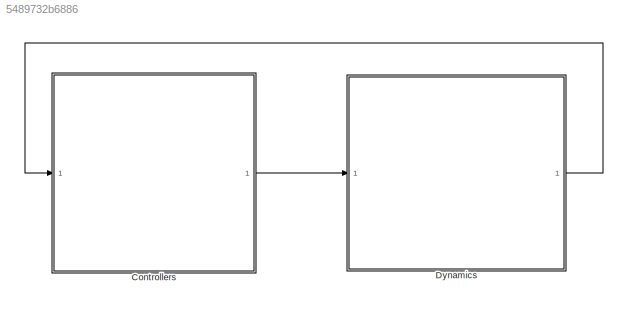
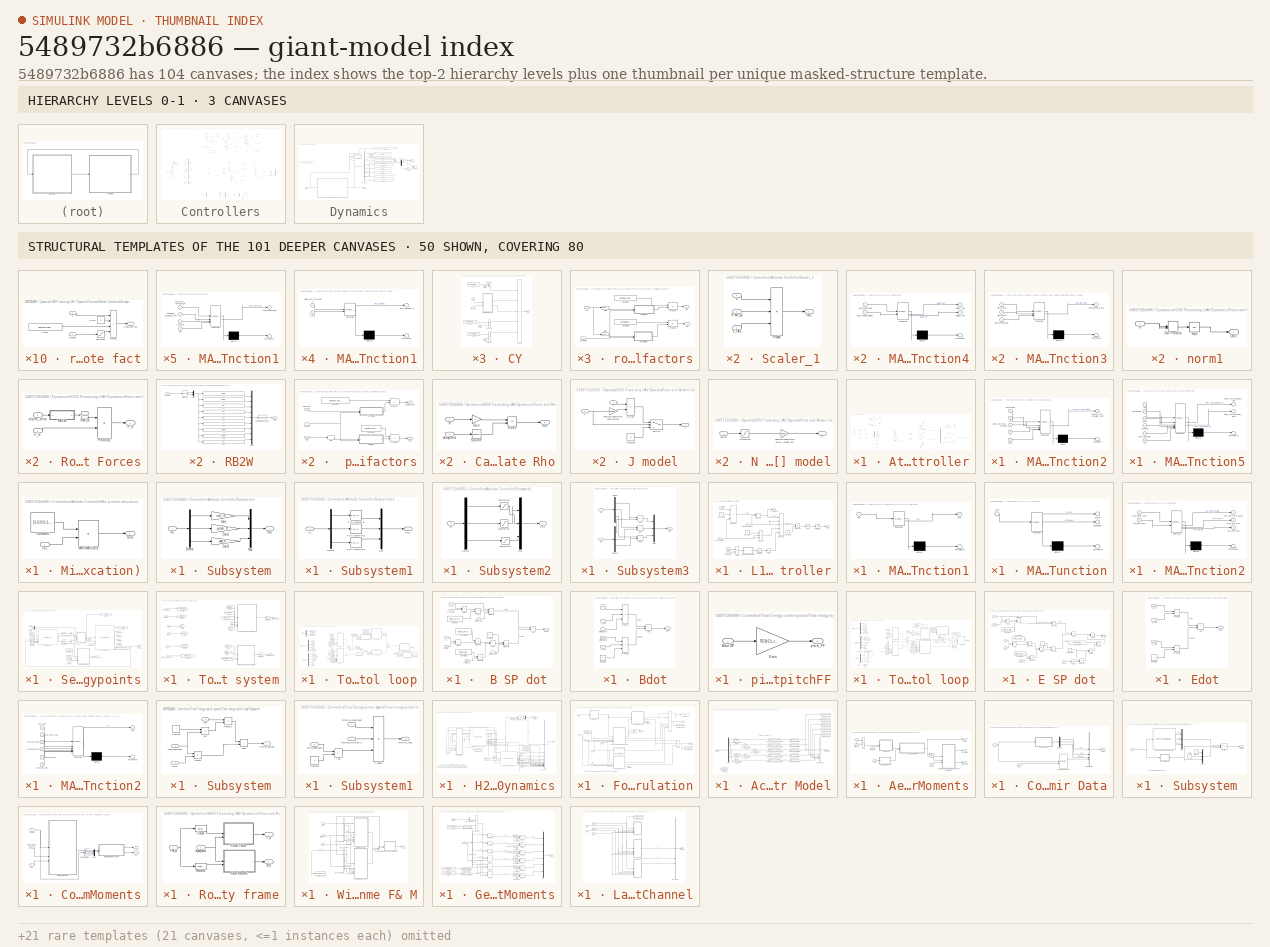
[diagram: thumbnail index - top-2 hierarchy levels (3 canvases) + 50 structural-template representatives of the remaining 101 canvases]
MODEL slx_5489732b6886
KIND model
CONFIG AbsTol = auto
CONFIG EnableMultiTasking = off
CONFIG FixedStep = 0.004
CONFIG MaxStep = auto
CONFIG MinStep = auto
CONFIG RelTol = 1e-3
CONFIG SampleTimeConstraint = Unconstrained
CONFIG SolverName = ode4
CONFIG StartTime = 0.0
CONFIG StopTime = timestop
WORKSPACE source: mxarray member
WORKSPACE sample_time = 0.004
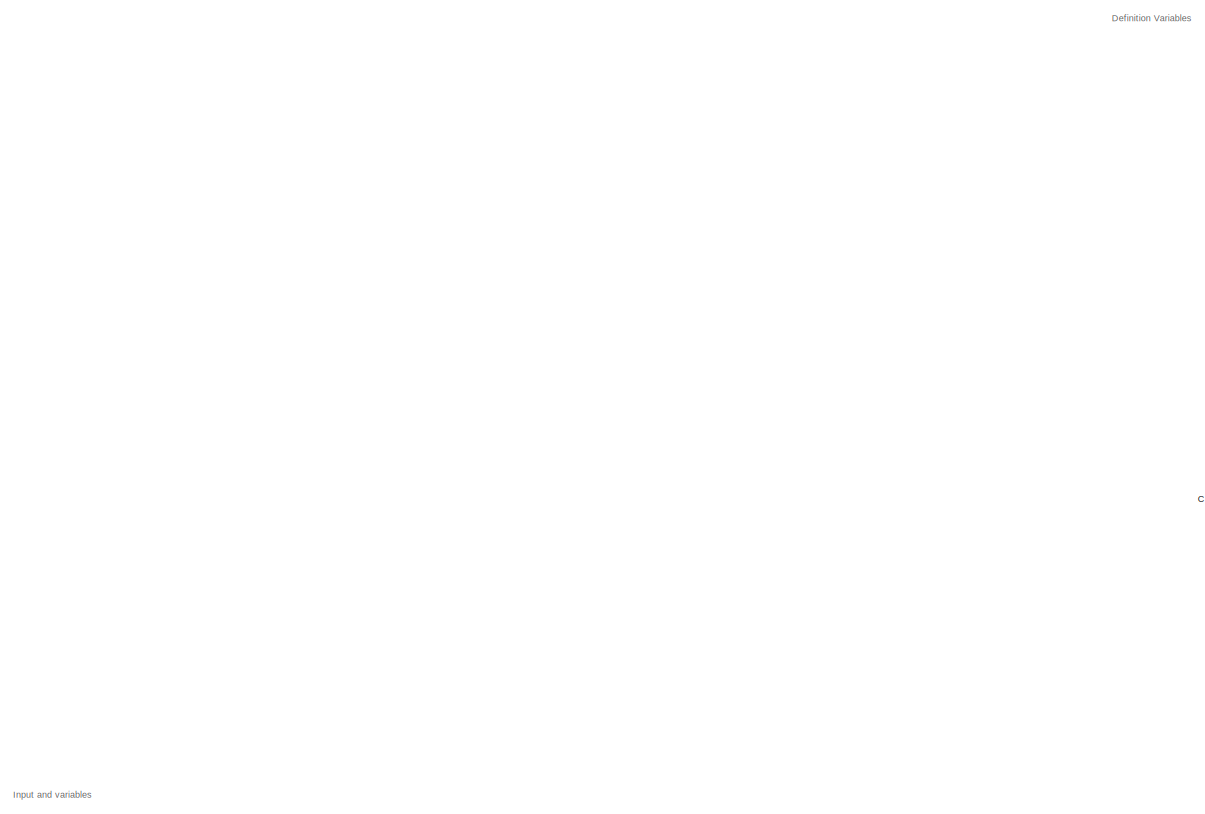
[diagram: Controllers - part 1/7, top left region]
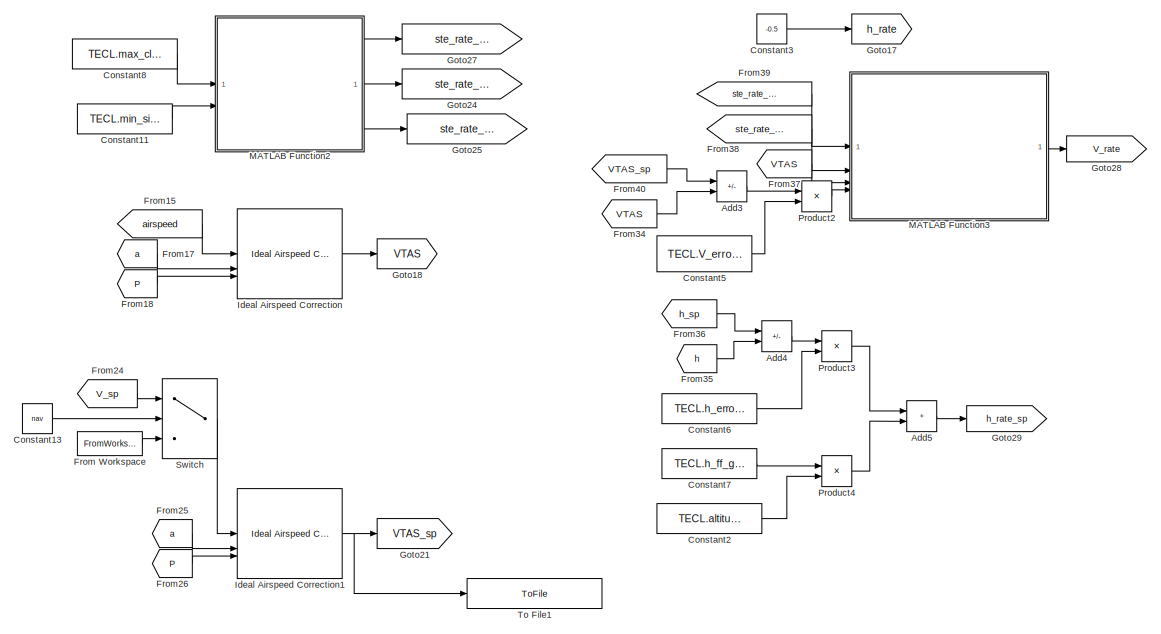
[diagram: Controllers - part 2/7, top center region]
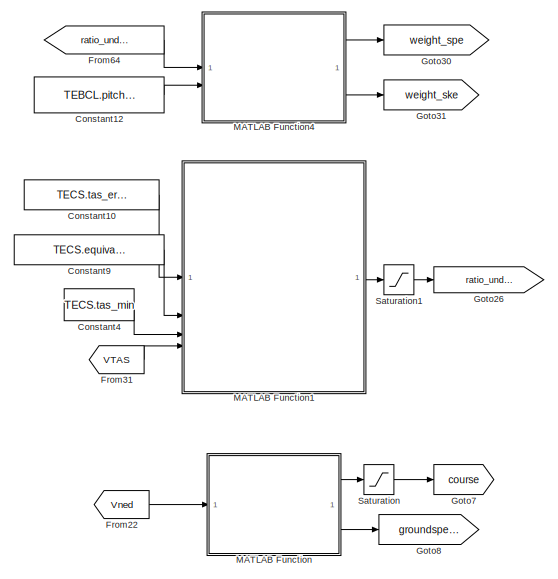
[diagram: Controllers - part 3/7, top right region]
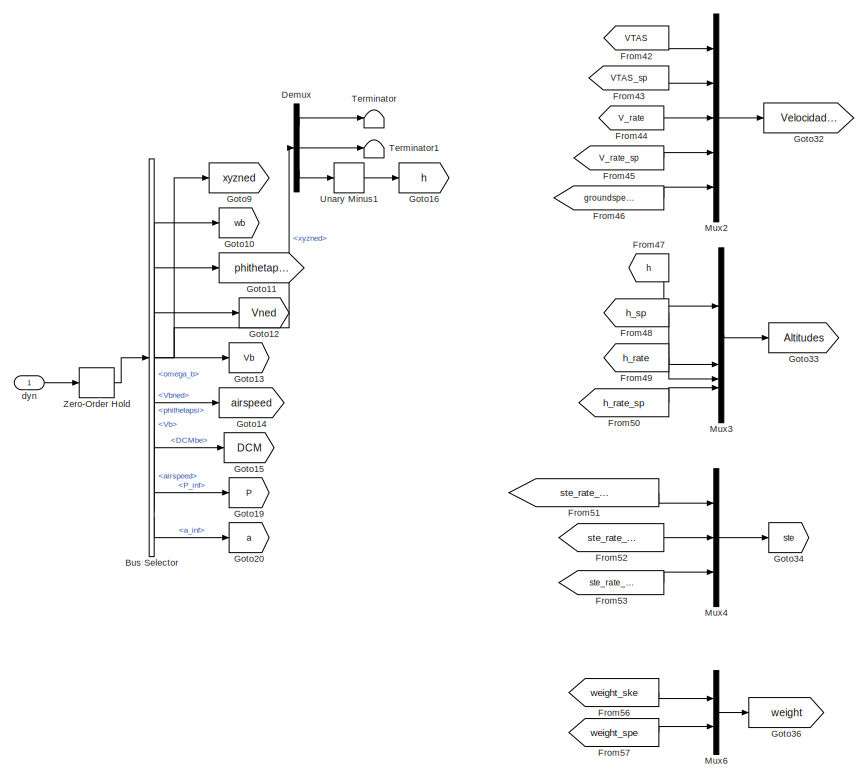
[diagram: Controllers - part 4/7, middle left region]
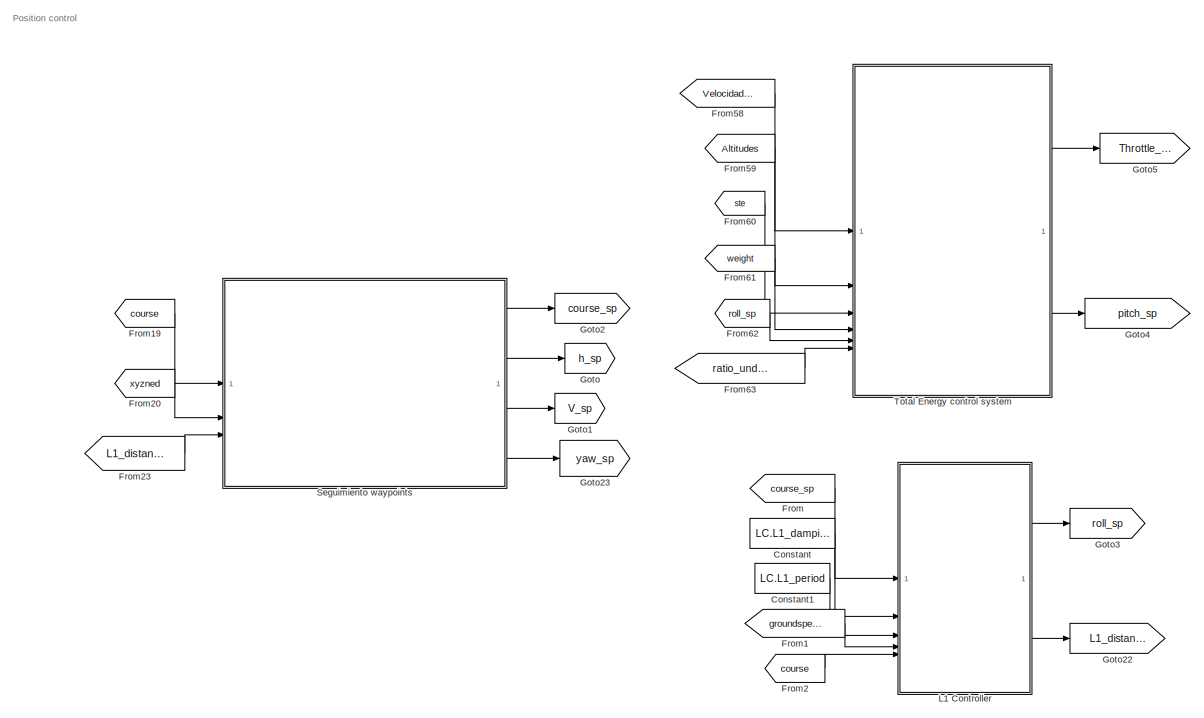
[diagram: Controllers - part 5/7, central region]
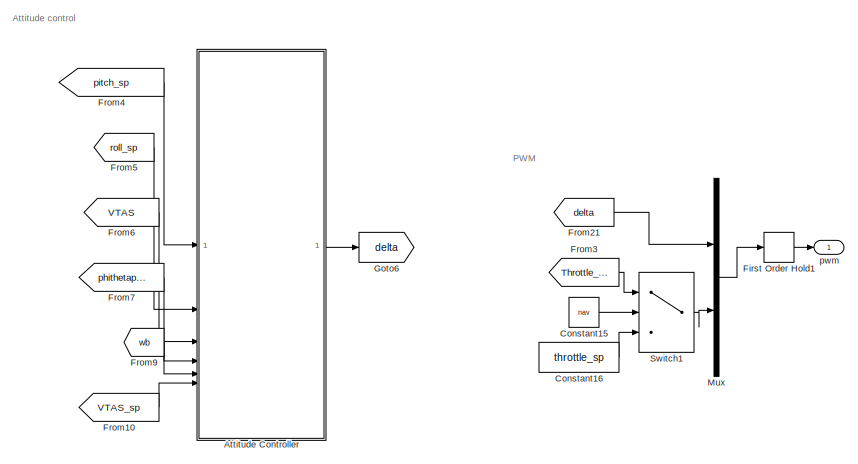
[diagram: Controllers - part 6/7, middle right region]
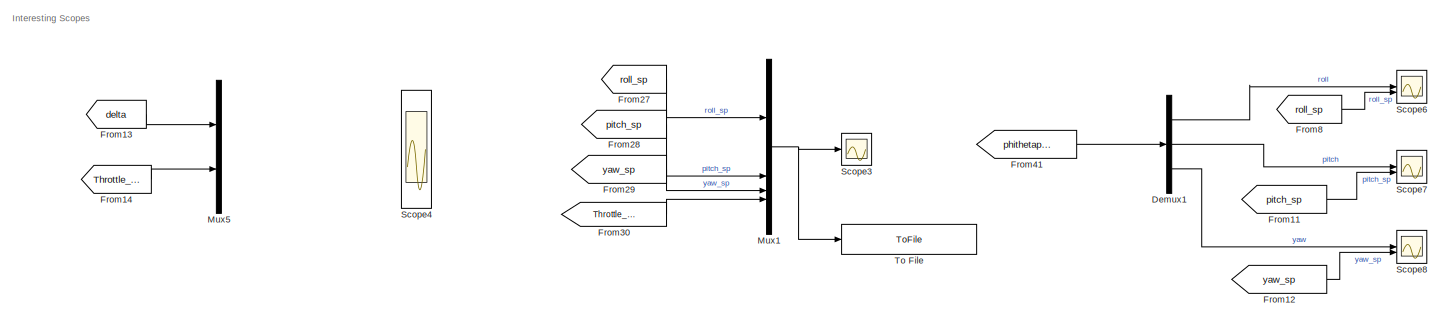
[diagram: Controllers - part 7/7, bottom center region]
BLOCK [SubSystem] Controllers
BLOCK [Sum] Controllers/Add3
  IconShape = rectangular
  Inputs = +-
BLOCK [Sum] Controllers/Add4
  IconShape = rectangular
  Inputs = +-
BLOCK [Sum] Controllers/Add5
  IconShape = rectangular
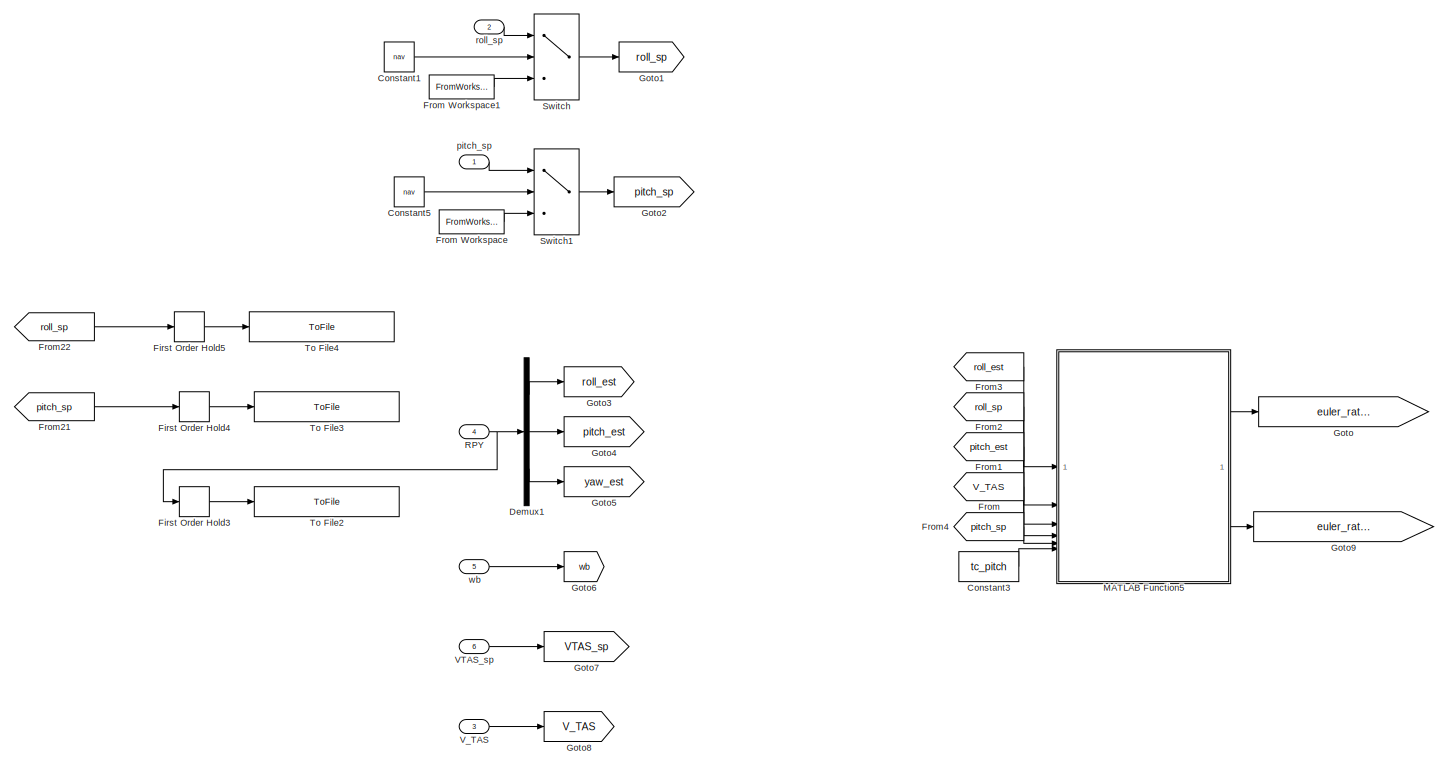
[diagram: Controllers/Attitude Controller - part 1/2, left side, full height]
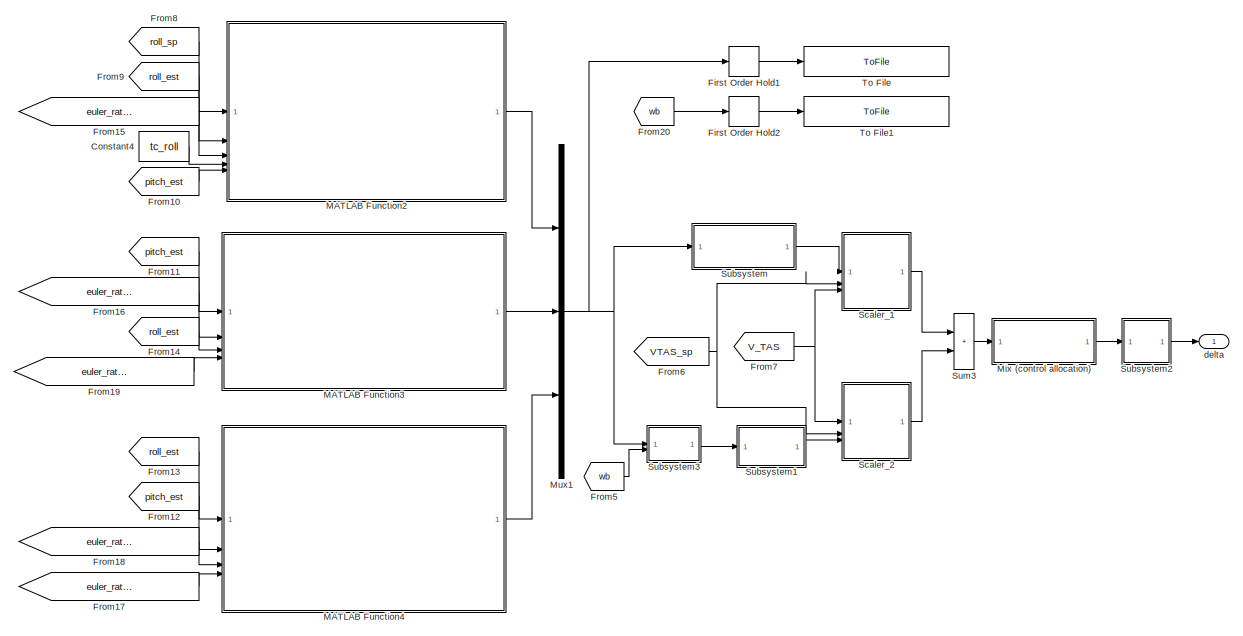
[diagram: Controllers/Attitude Controller - part 2/2, right side, full height]
BLOCK [SubSystem] Controllers/Attitude Controller
BLOCK [Constant] Controllers/Attitude Controller/Constant1
  SampleTime = frecuency
  Value = nav
BLOCK [Constant] Controllers/Attitude Controller/Constant3
  SampleTime = frecuency
  Value = tc_pitch
BLOCK [Constant] Controllers/Attitude Controller/Constant4
  SampleTime = frecuency
  Value = tc_roll
BLOCK [Constant] Controllers/Attitude Controller/Constant5
  SampleTime = frecuency
  Value = nav
BLOCK [Demux] Controllers/Attitude Controller/Demux1
  Outputs = 3
BLOCK [FirstOrderHold] Controllers/Attitude Controller/First Order Hold1
  AllowContinuousInput = on
  ErrorTolerance = inf
BLOCK [FirstOrderHold] Controllers/Attitude Controller/First Order Hold2
  AllowContinuousInput = on
  ErrorTolerance = inf
BLOCK [FirstOrderHold] Controllers/Attitude Controller/First Order Hold3
  AllowContinuousInput = on
  ErrorTolerance = inf
BLOCK [FirstOrderHold] Controllers/Attitude Controller/First Order Hold4
  AllowContinuousInput = on
  ErrorTolerance = inf
BLOCK [FirstOrderHold] Controllers/Attitude Controller/First Order Hold5
  AllowContinuousInput = on
  ErrorTolerance = inf
BLOCK [From] Controllers/Attitude Controller/From
  GotoTag = V_TAS
BLOCK [FromWorkspace] Controllers/Attitude Controller/From Workspace
  SampleTime = frecuency
  VariableName = pitch_sp
BLOCK [FromWorkspace] Controllers/Attitude Controller/From Workspace1
  SampleTime = frecuency
  VariableName = roll_sp
BLOCK [From] Controllers/Attitude Controller/From1
  GotoTag = pitch_est
BLOCK [From] Controllers/Attitude Controller/From10
  GotoTag = pitch_est
BLOCK [From] Controllers/Attitude Controller/From11
  GotoTag = pitch_est
BLOCK [From] Controllers/Attitude Controller/From12
  GotoTag = pitch_est
BLOCK [From] Controllers/Attitude Controller/From13
  GotoTag = roll_est
BLOCK [From] Controllers/Attitude Controller/From14
  GotoTag = roll_est
BLOCK [From] Controllers/Attitude Controller/From15
  GotoTag = euler_rate_setpoint_yaw
BLOCK [From] Controllers/Attitude Controller/From16
  GotoTag = euler_rate_setpoint_yaw
BLOCK [From] Controllers/Attitude Controller/From17
  GotoTag = euler_rate_setpoint_yaw
BLOCK [From] Controllers/Attitude Controller/From18
  GotoTag = euler_rate_setpoint_pitch
BLOCK [From] Controllers/Attitude Controller/From19
  GotoTag = euler_rate_setpoint_pitch
BLOCK [From] Controllers/Attitude Controller/From2
  GotoTag = roll_sp
BLOCK [From] Controllers/Attitude Controller/From20
  GotoTag = wb
BLOCK [From] Controllers/Attitude Controller/From21
  GotoTag = pitch_sp
BLOCK [From] Controllers/Attitude Controller/From22
  GotoTag = roll_sp
BLOCK [From] Controllers/Attitude Controller/From3
  GotoTag = roll_est
BLOCK [From] Controllers/Attitude Controller/From4
  GotoTag = pitch_sp
BLOCK [From] Controllers/Attitude Controller/From5
  GotoTag = wb
BLOCK [From] Controllers/Attitude Controller/From6
  GotoTag = VTAS_sp
BLOCK [From] Controllers/Attitude Controller/From7
  GotoTag = V_TAS
BLOCK [From] Controllers/Attitude Controller/From8
  GotoTag = roll_sp
BLOCK [From] Controllers/Attitude Controller/From9
  GotoTag = roll_est
BLOCK [Goto] Controllers/Attitude Controller/Goto
  GotoTag = euler_rate_setpoint_yaw
BLOCK [Goto] Controllers/Attitude Controller/Goto1
  GotoTag = roll_sp
BLOCK [Goto] Controllers/Attitude Controller/Goto2
  GotoTag = pitch_sp
BLOCK [Goto] Controllers/Attitude Controller/Goto3
  GotoTag = roll_est
BLOCK [Goto] Controllers/Attitude Controller/Goto4
  GotoTag = pitch_est
BLOCK [Goto] Controllers/Attitude Controller/Goto5
  GotoTag = yaw_est
BLOCK [Goto] Controllers/Attitude Controller/Goto6
  GotoTag = wb
BLOCK [Goto] Controllers/Attitude Controller/Goto7
  GotoTag = VTAS_sp
BLOCK [Goto] Controllers/Attitude Controller/Goto8
  GotoTag = V_TAS
BLOCK [Goto] Controllers/Attitude Controller/Goto9
  GotoTag = euler_rate_setpoint_pitch
BLOCK [SubSystem] Controllers/Attitude Controller/MATLAB Function2
  ErrorFcn = Stateflow.Translate.translate
  LibrarySourceBlock = simulink/User-Defined\nFunctions/MATLAB Function
  PermitHierarchicalResolution = ExplicitOnly
  SFBlockType = MATLAB Function
  SystemSampleTime = frecuency
  TreatAsAtomicUnit = on
BLOCK [Demux] Controllers/Attitude Controller/MATLAB Function2/ Demux 
  Outputs = 1
BLOCK [S-Function] Controllers/Attitude Controller/MATLAB Function2/ SFunction 
  EnableBusSupport = on
  FunctionName = sf_sfun
  PortCounts = [5 2]
  SFcnIsStateOwnerBlock = off
  SFunctionDeploymentMode = off
  Tag = Stateflow S-Function 15
BLOCK [Terminator] Controllers/Attitude Controller/MATLAB Function2/ Terminator 
BLOCK [Inport] Controllers/Attitude Controller/MATLAB Function2/euler_yaw_rate_setpoint
  Port = 3
BLOCK [Inport] Controllers/Attitude Controller/MATLAB Function2/pitch
  Port = 5
BLOCK [Inport] Controllers/Attitude Controller/MATLAB Function2/roll
  Port = 2
BLOCK [Outport] Controllers/Attitude Controller/MATLAB Function2/roll_body_rate_setpoint_raw
BLOCK [Inport] Controllers/Attitude Controller/MATLAB Function2/roll_setpoint
BLOCK [Inport] Controllers/Attitude Controller/MATLAB Function2/tc
  Port = 4
BLOCK [SubSystem] Controllers/Attitude Controller/MATLAB Function3
  ErrorFcn = Stateflow.Translate.translate
  LibrarySourceBlock = simulink/User-Defined\nFunctions/MATLAB Function
  PermitHierarchicalResolution = ExplicitOnly
  SFBlockType = MATLAB Function
  SystemSampleTime = frecuency
  TreatAsAtomicUnit = on
BLOCK [Demux] Controllers/Attitude Controller/MATLAB Function3/ Demux 
  Outputs = 1
BLOCK [S-Function] Controllers/Attitude Controller/MATLAB Function3/ SFunction 
  EnableBusSupport = on
  FunctionName = sf_sfun
  PortCounts = [4 2]
  SFcnIsStateOwnerBlock = off
  SFunctionDeploymentMode = off
  Tag = Stateflow S-Function 16
BLOCK [Terminator] Controllers/Attitude Controller/MATLAB Function3/ Terminator 
BLOCK [Inport] Controllers/Attitude Controller/MATLAB Function3/euler_rate_setpoint_pitch
  Port = 4
BLOCK [Inport] Controllers/Attitude Controller/MATLAB Function3/euler_yaw_rate_setpoint
  Port = 2
BLOCK [Inport] Controllers/Attitude Controller/MATLAB Function3/pitch
BLOCK [Outport] Controllers/Attitude Controller/MATLAB Function3/pitch_body_rate_setpoint_raw
BLOCK [Inport] Controllers/Attitude Controller/MATLAB Function3/roll
  Port = 3
BLOCK [SubSystem] Controllers/Attitude Controller/MATLAB Function4
  ErrorFcn = Stateflow.Translate.translate
  LibrarySourceBlock = simulink/User-Defined\nFunctions/MATLAB Function
  PermitHierarchicalResolution = ExplicitOnly
  SFBlockType = MATLAB Function
  SystemSampleTime = frecuency
  TreatAsAtomicUnit = on
BLOCK [Demux] Controllers/Attitude Controller/MATLAB Function4/ Demux 
  Outputs = 1
BLOCK [S-Function] Controllers/Attitude Controller/MATLAB Function4/ SFunction 
  EnableBusSupport = on
  FunctionName = sf_sfun
  PortCounts = [4 2]
  SFcnIsStateOwnerBlock = off
  SFunctionDeploymentMode = off
  Tag = Stateflow S-Function 17
BLOCK [Terminator] Controllers/Attitude Controller/MATLAB Function4/ Terminator 
BLOCK [Inport] Controllers/Attitude Controller/MATLAB Function4/euler_pitch_rate_setpoint
  Port = 3
BLOCK [Inport] Controllers/Attitude Controller/MATLAB Function4/euler_rate_setpoint_yaw
  Port = 4
BLOCK [Inport] Controllers/Attitude Controller/MATLAB Function4/pitch
  Port = 2
BLOCK [Inport] Controllers/Attitude Controller/MATLAB Function4/roll
BLOCK [Outport] Controllers/Attitude Controller/MATLAB Function4/yaw_body_rate_setpoint_raw
BLOCK [SubSystem] Controllers/Attitude Controller/MATLAB Function5
  ErrorFcn = Stateflow.Translate.translate
  LibrarySourceBlock = simulink/User-Defined\nFunctions/MATLAB Function
  PermitHierarchicalResolution = ExplicitOnly
  SFBlockType = MATLAB Function
  SystemSampleTime = frecuency
  TreatAsAtomicUnit = on
BLOCK [Demux] Controllers/Attitude Controller/MATLAB Function5/ Demux 
  Outputs = 1
BLOCK [S-Function] Controllers/Attitude Controller/MATLAB Function5/ SFunction 
  EnableBusSupport = on
  FunctionName = sf_sfun
  PortCounts = [6 3]
  SFcnIsStateOwnerBlock = off
  SFunctionDeploymentMode = off
  Tag = Stateflow S-Function 18
BLOCK [Terminator] Controllers/Attitude Controller/MATLAB Function5/ Terminator 
BLOCK [Inport] Controllers/Attitude Controller/MATLAB Function5/airspeed
  Port = 4
BLOCK [Outport] Controllers/Attitude Controller/MATLAB Function5/euler_rate_setpoint_pitch
  Port = 2
BLOCK [Outport] Controllers/Attitude Controller/MATLAB Function5/euler_rate_setpoint_yaw
BLOCK [Inport] Controllers/Attitude Controller/MATLAB Function5/pitch
  Port = 3
BLOCK [Inport] Controllers/Attitude Controller/MATLAB Function5/pitch_setpoint
  Port = 5
BLOCK [Inport] Controllers/Attitude Controller/MATLAB Function5/roll
BLOCK [Inport] Controllers/Attitude Controller/MATLAB Function5/roll_setpoint
  Port = 2
BLOCK [Inport] Controllers/Attitude Controller/MATLAB Function5/tc
  Port = 6
BLOCK [SubSystem] Controllers/Attitude Controller/Mix (control allocation)
BLOCK [Constant] Controllers/Attitude Controller/Mix (control allocation)/Constant
  SampleTime = frecuency
  Value = [1,0,0;0,1,0;0,0,1]
BLOCK [Inport] Controllers/Attitude Controller/Mix (control allocation)/In1
  SampleTime = frecuency
BLOCK [Product] Controllers/Attitude Controller/Mix (control allocation)/MatrixMultiply
  Multiplication = Matrix(*)
BLOCK [Outport] Controllers/Attitude Controller/Mix (control allocation)/Out1
  SampleTime = frecuency
BLOCK [Mux] Controllers/Attitude Controller/Mux1
  DisplayOption = bar
  Inputs = 3
BLOCK [Inport] Controllers/Attitude Controller/RPY 
  Port = 4
  SampleTime = frecuency
BLOCK [SubSystem] Controllers/Attitude Controller/Scaler_1
BLOCK [Outport] Controllers/Attitude Controller/Scaler_1/Out1
  SampleTime = frecuency
BLOCK [Product] Controllers/Attitude Controller/Scaler_1/Product
  Inputs = **/
BLOCK [Inport] Controllers/Attitude Controller/Scaler_1/VTAS_sp
  Port = 2
  SampleTime = frecuency
BLOCK [Inport] Controllers/Attitude Controller/Scaler_1/V_TAS
  Port = 3
  SampleTime = frecuency
BLOCK [Inport] Controllers/Attitude Controller/Scaler_1/ff
  SampleTime = frecuency
BLOCK [SubSystem] Controllers/Attitude Controller/Scaler_2
BLOCK [Outport] Controllers/Attitude Controller/Scaler_2/Out1
  SampleTime = frecuency
BLOCK [Inport] Controllers/Attitude Controller/Scaler_2/PI
  Port = 3
  SampleTime = frecuency
BLOCK [Product] Controllers/Attitude Controller/Scaler_2/Product
  Inputs = ***//
BLOCK [Inport] Controllers/Attitude Controller/Scaler_2/VTAS_sp
  Port = 2
  SampleTime = frecuency
BLOCK [Inport] Controllers/Attitude Controller/Scaler_2/V_TAS
  SampleTime = frecuency
BLOCK [SubSystem] Controllers/Attitude Controller/Subsystem
BLOCK [Demux] Controllers/Attitude Controller/Subsystem/Demux
  Outputs = 3
BLOCK [Gain] Controllers/Attitude Controller/Subsystem/Gain
  Gain = roll_ff
BLOCK [Gain] Controllers/Attitude Controller/Subsystem/Gain1
  Gain = pitch_ff
BLOCK [Gain] Controllers/Attitude Controller/Subsystem/Gain2
  Gain = yaw_ff
BLOCK [Inport] Controllers/Attitude Controller/Subsystem/In1
  SampleTime = frecuency
BLOCK [Mux] Controllers/Attitude Controller/Subsystem/Mux
  DisplayOption = bar
  Inputs = 3
BLOCK [Outport] Controllers/Attitude Controller/Subsystem/Out1
  SampleTime = frecuency
BLOCK [SubSystem] Controllers/Attitude Controller/Subsystem1
BLOCK [Demux] Controllers/Attitude Controller/Subsystem1/Demux
  Outputs = 3
BLOCK [Inport] Controllers/Attitude Controller/Subsystem1/In1
  SampleTime = frecuency
BLOCK [Mux] Controllers/Attitude Controller/Subsystem1/Mux
  DisplayOption = bar
  Inputs = 3
BLOCK [Outport] Controllers/Attitude Controller/Subsystem1/Out1
  SampleTime = frecuency
BLOCK [Reference] Controllers/Attitude Controller/Subsystem1/PID Controller  REF=slpidlib/PID Controller
  LibrarySourceBlock = simulink/Continuous/PID Controller
  SourceBlock = slpidlib/PID Controller
  SourceType = PID 1dof
BLOCK [Reference] Controllers/Attitude Controller/Subsystem1/PID Controller1  REF=slpidlib/PID Controller
  LibrarySourceBlock = simulink/Continuous/PID Controller
  SourceBlock = slpidlib/PID Controller
  SourceType = PID 1dof
BLOCK [Reference] Controllers/Attitude Controller/Subsystem1/PID Controller2  REF=slpidlib/PID Controller
  LibrarySourceBlock = simulink/Continuous/PID Controller
  SourceBlock = slpidlib/PID Controller
  SourceType = PID 1dof
BLOCK [SubSystem] Controllers/Attitude Controller/Subsystem2
BLOCK [Demux] Controllers/Attitude Controller/Subsystem2/Demux
  Outputs = 3
BLOCK [Inport] Controllers/Attitude Controller/Subsystem2/In1
BLOCK [Mux] Controllers/Attitude Controller/Subsystem2/Mux
  DisplayOption = bar
  Inputs = 3
BLOCK [Outport] Controllers/Attitude Controller/Subsystem2/Out1
BLOCK [Saturate] Controllers/Attitude Controller/Subsystem2/Saturation1
  LowerLimit = -1
  UpperLimit = 1
BLOCK [Saturate] Controllers/Attitude Controller/Subsystem2/Saturation2
  LowerLimit = -1
  UpperLimit = 1
BLOCK [Saturate] Controllers/Attitude Controller/Subsystem2/Saturation3
  LowerLimit = -1
  UpperLimit = 1
BLOCK [SubSystem] Controllers/Attitude Controller/Subsystem3
BLOCK [Sum] Controllers/Attitude Controller/Subsystem3/Add
  IconShape = rectangular
  Inputs = +-
BLOCK [Sum] Controllers/Attitude Controller/Subsystem3/Add1
  IconShape = rectangular
  Inputs = +-
BLOCK [Sum] Controllers/Attitude Controller/Subsystem3/Add2
  IconShape = rectangular
  Inputs = +-
BLOCK [Demux] Controllers/Attitude Controller/Subsystem3/Demux
  Outputs = 3
BLOCK [Demux] Controllers/Attitude Controller/Subsystem3/Demux1
  Outputs = 3
BLOCK [Inport] Controllers/Attitude Controller/Subsystem3/In1
  SampleTime = frecuency
BLOCK [Inport] Controllers/Attitude Controller/Subsystem3/In2
  Port = 2
  SampleTime = frecuency
BLOCK [Mux] Controllers/Attitude Controller/Subsystem3/Mux
  DisplayOption = bar
  Inputs = 3
BLOCK [Outport] Controllers/Attitude Controller/Subsystem3/Out1
  SampleTime = frecuency
BLOCK [Sum] Controllers/Attitude Controller/Sum3
  IconShape = rectangular
BLOCK [Switch] Controllers/Attitude Controller/Switch
  Criteria = u2 ~= 0
  InputSameDT = off
  SaturateOnIntegerOverflow = off
BLOCK [Switch] Controllers/Attitude Controller/Switch1
  Criteria = u2 ~= 0
  InputSameDT = off
  SaturateOnIntegerOverflow = off
BLOCK [ToFile] Controllers/Attitude Controller/To File
  Filename = simulacionSimulink_ratesRPY_sp
  SaveFormat = Timeseries
BLOCK [ToFile] Controllers/Attitude Controller/To File1
  Filename = simulacionSimulink_ratesRPY
  SaveFormat = Timeseries
BLOCK [ToFile] Controllers/Attitude Controller/To File2
  Filename = simulacionSimulink_RPY
  SaveFormat = Timeseries
BLOCK [ToFile] Controllers/Attitude Controller/To File3
  Filename = simulacionSimulink_pitch_sp
  SaveFormat = Timeseries
BLOCK [ToFile] Controllers/Attitude Controller/To File4
  Filename = simulacionSimulink_roll_sp
  SaveFormat = Timeseries
BLOCK [Inport] Controllers/Attitude Controller/VTAS_sp
  Port = 6
  SampleTime = frecuency
BLOCK [Inport] Controllers/Attitude Controller/V_TAS
  Port = 3
  SampleTime = frecuency
BLOCK [Outport] Controllers/Attitude Controller/delta
  SampleTime = frecuency
BLOCK [Inport] Controllers/Attitude Controller/pitch_sp
  SampleTime = frecuency
BLOCK [Inport] Controllers/Attitude Controller/roll_sp
  Port = 2
  SampleTime = frecuency
BLOCK [Inport] Controllers/Attitude Controller/wb
  Port = 5
  SampleTime = frecuency
BLOCK [BusSelector] Controllers/Bus Selector
  OutputSignals = xyzned,omega_b,phithetapsi,Vbned,Vb,airspeed,DCMbe,P_inf,a_inf
BLOCK [Constant] Controllers/Constant
  SampleTime = frecuency
  Value = LC.L1_damping
BLOCK [Constant] Controllers/Constant1
  SampleTime = frecuency
  Value = LC.L1_period
BLOCK [Constant] Controllers/Constant10
  SampleTime = frecuency
  Value = TECS.tas_error_percetange
BLOCK [Constant] Controllers/Constant11
  SampleTime = frecuency
  Value = TECL.min_sink_rate
BLOCK [Constant] Controllers/Constant12
  SampleTime = frecuency
  Value = TEBCL.pitch_speed_weight
BLOCK [Constant] Controllers/Constant13
  SampleTime = frecuency
  Value = nav
BLOCK [Constant] Controllers/Constant15
  SampleTime = frecuency
  Value = nav
BLOCK [Constant] Controllers/Constant16
  SampleTime = frecuency
  Value = throttle_sp
BLOCK [Constant] Controllers/Constant2
  SampleTime = frecuency
  Value = TECL.altitude_rate_sp
BLOCK [Constant] Controllers/Constant3
  SampleTime = frecuency
  Value = -0.5
BLOCK [Constant] Controllers/Constant4
  SampleTime = frecuency
  Value = TECS.tas_min
BLOCK [Constant] Controllers/Constant5
  SampleTime = frecuency
  Value = TECL.V_error_gain
BLOCK [Constant] Controllers/Constant6
  SampleTime = frecuency
  Value = TECL.h_error_gain
BLOCK [Constant] Controllers/Constant7
  SampleTime = frecuency
  Value = TECL.h_ff_gain
BLOCK [Constant] Controllers/Constant8
  SampleTime = frecuency
  Value = TECL.max_climb_rate
BLOCK [Constant] Controllers/Constant9
  SampleTime = frecuency
  Value = TECS.equivalent_airspeed_trim
BLOCK [Demux] Controllers/Demux
  Outputs = 3
BLOCK [Demux] Controllers/Demux1
  Outputs = 3
BLOCK [FirstOrderHold] Controllers/First Order Hold1
  AllowContinuousInput = on
  ErrorTolerance = inf
BLOCK [From] Controllers/From
  GotoTag = course_sp
BLOCK [FromWorkspace] Controllers/From Workspace
  SampleTime = frecuency
  VariableName = velocidad_sp
BLOCK [From] Controllers/From1
  GotoTag = groundspeed
BLOCK [From] Controllers/From10
  GotoTag = VTAS_sp
BLOCK [From] Controllers/From11
  GotoTag = pitch_sp
BLOCK [From] Controllers/From12
  GotoTag = yaw_sp
BLOCK [From] Controllers/From13
  GotoTag = delta
BLOCK [From] Controllers/From14
  GotoTag = Throttle_sp
BLOCK [From] Controllers/From15
  GotoTag = airspeed
BLOCK [From] Controllers/From17
  GotoTag = a
BLOCK [From] Controllers/From18
  GotoTag = P
BLOCK [From] Controllers/From19
  GotoTag = course
BLOCK [From] Controllers/From2
  GotoTag = course
BLOCK [From] Controllers/From20
  GotoTag = xyzned
BLOCK [From] Controllers/From21
  GotoTag = delta
BLOCK [From] Controllers/From22
  GotoTag = Vned
BLOCK [From] Controllers/From23
  GotoTag = L1_distance
BLOCK [From] Controllers/From24
  GotoTag = V_sp
BLOCK [From] Controllers/From25
  GotoTag = a
BLOCK [From] Controllers/From26
  GotoTag = P
BLOCK [From] Controllers/From27
  GotoTag = roll_sp
BLOCK [From] Controllers/From28
  GotoTag = pitch_sp
BLOCK [From] Controllers/From29
  GotoTag = yaw_sp
BLOCK [From] Controllers/From3
  GotoTag = Throttle_sp
BLOCK [From] Controllers/From30
  GotoTag = Throttle_sp
BLOCK [From] Controllers/From31
  GotoTag = VTAS
BLOCK [From] Controllers/From34
  GotoTag = VTAS
BLOCK [From] Controllers/From35
  GotoTag = h
BLOCK [From] Controllers/From36
  GotoTag = h_sp
BLOCK [From] Controllers/From37
  GotoTag = VTAS
BLOCK [From] Controllers/From38
  GotoTag = ste_rate_min
BLOCK [From] Controllers/From39
  GotoTag = ste_rate_max
BLOCK [From] Controllers/From4
  GotoTag = pitch_sp
BLOCK [From] Controllers/From40
  GotoTag = VTAS_sp
BLOCK [From] Controllers/From41
  GotoTag = phithetapsi
BLOCK [From] Controllers/From42
  GotoTag = VTAS
BLOCK [From] Controllers/From43
  GotoTag = VTAS_sp
BLOCK [From] Controllers/From44
  GotoTag = V_rate
BLOCK [From] Controllers/From45
  GotoTag = V_rate_sp
BLOCK [From] Controllers/From46
  GotoTag = groundspeed
BLOCK [From] Controllers/From47
  GotoTag = h
BLOCK [From] Controllers/From48
  GotoTag = h_sp
BLOCK [From] Controllers/From49
  GotoTag = h_rate
BLOCK [From] Controllers/From5
  GotoTag = roll_sp
BLOCK [From] Controllers/From50
  GotoTag = h_rate_sp
BLOCK [From] Controllers/From51
  GotoTag = ste_rate_to_throttle
BLOCK [From] Controllers/From52
  GotoTag = ste_rate_max
BLOCK [From] Controllers/From53
  GotoTag = ste_rate_min
BLOCK [From] Controllers/From56
  GotoTag = weight_ske
BLOCK [From] Controllers/From57
  GotoTag = weight_spe
BLOCK [From] Controllers/From58
  GotoTag = Velocidades
BLOCK [From] Controllers/From59
  GotoTag = Altitudes
BLOCK [From] Controllers/From6
  GotoTag = VTAS
BLOCK [From] Controllers/From60
  GotoTag = ste
BLOCK [From] Controllers/From61
  GotoTag = weight
BLOCK [From] Controllers/From62
  GotoTag = roll_sp
BLOCK [From] Controllers/From63
  GotoTag = ratio_underspeed
BLOCK [From] Controllers/From64
  GotoTag = ratio_underspeed
BLOCK [From] Controllers/From7
  GotoTag = phithetapsi
BLOCK [From] Controllers/From8
  GotoTag = roll_sp
BLOCK [From] Controllers/From9
  GotoTag = wb
BLOCK [Goto] Controllers/Goto
  GotoTag = h_sp
BLOCK [Goto] Controllers/Goto1
  GotoTag = V_sp
BLOCK [Goto] Controllers/Goto10
  GotoTag = wb
BLOCK [Goto] Controllers/Goto11
  GotoTag = phithetapsi
BLOCK [Goto] Controllers/Goto12
  GotoTag = Vned
BLOCK [Goto] Controllers/Goto13
  GotoTag = Vb
BLOCK [Goto] Controllers/Goto14
  GotoTag = airspeed
BLOCK [Goto] Controllers/Goto15
  GotoTag = DCM
BLOCK [Goto] Controllers/Goto16
  GotoTag = h
BLOCK [Goto] Controllers/Goto17
  GotoTag = h_rate
BLOCK [Goto] Controllers/Goto18
  GotoTag = VTAS
BLOCK [Goto] Controllers/Goto19
  GotoTag = P
BLOCK [Goto] Controllers/Goto2
  GotoTag = course_sp
BLOCK [Goto] Controllers/Goto20
  GotoTag = a
BLOCK [Goto] Controllers/Goto21
  GotoTag = VTAS_sp
BLOCK [Goto] Controllers/Goto22
  GotoTag = L1_distance
BLOCK [Goto] Controllers/Goto23
  GotoTag = yaw_sp
BLOCK [Goto] Controllers/Goto24
  GotoTag = ste_rate_max
BLOCK [Goto] Controllers/Goto25
  GotoTag = ste_rate_min
BLOCK [Goto] Controllers/Goto26
  GotoTag = ratio_underspeed
BLOCK [Goto] Controllers/Goto27
  GotoTag = ste_rate_to_throttle
BLOCK [Goto] Controllers/Goto28
  GotoTag = V_rate
BLOCK [Goto] Controllers/Goto29
  GotoTag = h_rate_sp
BLOCK [Goto] Controllers/Goto3
  GotoTag = roll_sp
BLOCK [Goto] Controllers/Goto30
  GotoTag = weight_spe
BLOCK [Goto] Controllers/Goto31
  GotoTag = weight_ske
BLOCK [Goto] Controllers/Goto32
  GotoTag = Velocidades
BLOCK [Goto] Controllers/Goto33
  GotoTag = Altitudes
BLOCK [Goto] Controllers/Goto34
  GotoTag = ste
BLOCK [Goto] Controllers/Goto36
  GotoTag = weight
BLOCK [Goto] Controllers/Goto4
  GotoTag = pitch_sp
BLOCK [Goto] Controllers/Goto5
  GotoTag = Throttle_sp
BLOCK [Goto] Controllers/Goto6
  GotoTag = delta
BLOCK [Goto] Controllers/Goto7
  GotoTag = course
BLOCK [Goto] Controllers/Goto8
  GotoTag = groundspeed
BLOCK [Goto] Controllers/Goto9
  GotoTag = xyzned
BLOCK [Reference] Controllers/Ideal Airspeed Correction  REF=aerolibasang/Ideal Airspeed Correction
  SourceBlock = aerolibasang/Ideal Airspeed Correction
  SourceType = Ideal Airspeed Correction
BLOCK [Reference] Controllers/Ideal Airspeed Correction1  REF=aerolibasang/Ideal Airspeed Correction
  SourceBlock = aerolibasang/Ideal Airspeed Correction
  SourceType = Ideal Airspeed Correction
BLOCK [SubSystem] Controllers/L1 Controller
BLOCK [Sum] Controllers/L1 Controller/Add
  IconShape = rectangular
  Inputs = -+
BLOCK [Trigonometry] Controllers/L1 Controller/Atan
  Operator = atan
BLOCK [Constant] Controllers/L1 Controller/Constant
  SampleTime = frecuency
  Value = 4
BLOCK [Constant] Controllers/L1 Controller/Constant1
  SampleTime = frecuency
  Value = g
BLOCK [Constant] Controllers/L1 Controller/Constant2
  SampleTime = frecuency
  Value = pi
BLOCK [Inport] Controllers/L1 Controller/L1_damping
  Port = 2
  SampleTime = frecuency
BLOCK [Outport] Controllers/L1 Controller/L1_distance
  Port = 2
  SampleTime = frecuency
BLOCK [Inport] Controllers/L1 Controller/L1_period
  Port = 3
  SampleTime = frecuency
BLOCK [SubSystem] Controllers/L1 Controller/MATLAB Function1
  ErrorFcn = Stateflow.Translate.translate
  LibrarySourceBlock = simulink/User-Defined\nFunctions/MATLAB Function
  PermitHierarchicalResolution = ExplicitOnly
  SFBlockType = MATLAB Function
  SystemSampleTime = frecuency
  TreatAsAtomicUnit = on
BLOCK [Demux] Controllers/L1 Controller/MATLAB Function1/ Demux 
  Outputs = 1
BLOCK [S-Function] Controllers/L1 Controller/MATLAB Function1/ SFunction 
  EnableBusSupport = on
  FunctionName = sf_sfun
  PortCounts = [1 2]
  SFcnIsStateOwnerBlock = off
  SFunctionDeploymentMode = off
  Tag = Stateflow S-Function 14
BLOCK [Terminator] Controllers/L1 Controller/MATLAB Function1/ Terminator 
BLOCK [Outport] Controllers/L1 Controller/MATLAB Function1/eta
BLOCK [Inport] Controllers/L1 Controller/MATLAB Function1/eta 
BLOCK [Product] Controllers/L1 Controller/Product
  Inputs = 3
BLOCK [Product] Controllers/L1 Controller/Product1
  Inputs = /****
BLOCK [Product] Controllers/L1 Controller/Product2
  Inputs = */
BLOCK [Product] Controllers/L1 Controller/Product3
BLOCK [Product] Controllers/L1 Controller/Product4
  Inputs = */*
BLOCK [Saturate] Controllers/L1 Controller/Saturation
  LowerLimit = -pi/2
  UpperLimit = pi/2
BLOCK [Saturate] Controllers/L1 Controller/Saturation2
  LowerLimit = LC.roll_min
  UpperLimit = LC.roll_max
BLOCK [Trigonometry] Controllers/L1 Controller/Sin
BLOCK [Inport] Controllers/L1 Controller/course
  Port = 5
  SampleTime = frecuency
BLOCK [Inport] Controllers/L1 Controller/course SP
  SampleTime = frecuency
BLOCK [Inport] Controllers/L1 Controller/groundSpeed
  Port = 4
  SampleTime = frecuency
BLOCK [Outport] Controllers/L1 Controller/roll SP
  SampleTime = frecuency
BLOCK [SubSystem] Controllers/MATLAB Function
  ErrorFcn = Stateflow.Translate.translate
  LibrarySourceBlock = simulink/User-Defined\nFunctions/MATLAB Function
  PermitHierarchicalResolution = ExplicitOnly
  SFBlockType = MATLAB Function
  SystemSampleTime = frecuency
  TreatAsAtomicUnit = on
BLOCK [Demux] Controllers/MATLAB Function/ Demux 
  Outputs = 1
BLOCK [S-Function] Controllers/MATLAB Function/ SFunction 
  EnableBusSupport = on
  FunctionName = sf_sfun
  PortCounts = [1 3]
  SFcnIsStateOwnerBlock = off
  SFunctionDeploymentMode = off
  Tag = Stateflow S-Function 7
BLOCK [Terminator] Controllers/MATLAB Function/ Terminator 
BLOCK [Outport] Controllers/MATLAB Function/course
BLOCK [Outport] Controllers/MATLAB Function/gndspeed
  Port = 2
BLOCK [Inport] Controllers/MATLAB Function/vxyz
BLOCK [SubSystem] Controllers/MATLAB Function1
  ErrorFcn = Stateflow.Translate.translate
  LibrarySourceBlock = simulink/User-Defined\nFunctions/MATLAB Function
  PermitHierarchicalResolution = ExplicitOnly
  SFBlockType = MATLAB Function
  SystemSampleTime = frecuency
  TreatAsAtomicUnit = on
BLOCK [Demux] Controllers/MATLAB Function1/ Demux 
  Outputs = 1
BLOCK [S-Function] Controllers/MATLAB Function1/ SFunction 
  EnableBusSupport = on
  FunctionName = sf_sfun
  PortCounts = [4 2]
  SFcnIsStateOwnerBlock = off
  SFunctionDeploymentMode = off
  Tag = Stateflow S-Function 1
BLOCK [Terminator] Controllers/MATLAB Function1/ Terminator 
BLOCK [Inport] Controllers/MATLAB Function1/equivalent_airspeed_trim
  Port = 2
BLOCK [Outport] Controllers/MATLAB Function1/ratio_undersped
BLOCK [Inport] Controllers/MATLAB Function1/tas
  Port = 4
BLOCK [Inport] Controllers/MATLAB Function1/tas_error_percentage
BLOCK [Inport] Controllers/MATLAB Function1/tas_min
  Port = 3
BLOCK [SubSystem] Controllers/MATLAB Function2
  ErrorFcn = Stateflow.Translate.translate
  LibrarySourceBlock = simulink/User-Defined\nFunctions/MATLAB Function
  PermitHierarchicalResolution = ExplicitOnly
  SFBlockType = MATLAB Function
  SystemSampleTime = frecuency
  TreatAsAtomicUnit = on
BLOCK [Demux] Controllers/MATLAB Function2/ Demux 
  Outputs = 1
BLOCK [S-Function] Controllers/MATLAB Function2/ SFunction 
  EnableBusSupport = on
  FunctionName = sf_sfun
  PortCounts = [2 4]
  SFcnIsStateOwnerBlock = off
  SFunctionDeploymentMode = off
  Tag = Stateflow S-Function 10
BLOCK [Terminator] Controllers/MATLAB Function2/ Terminator 
BLOCK [Inport] Controllers/MATLAB Function2/max_climb_rate
BLOCK [Inport] Controllers/MATLAB Function2/min_sink_rate
  Port = 2
BLOCK [Outport] Controllers/MATLAB Function2/ste_rate_max
  Port = 2
BLOCK [Outport] Controllers/MATLAB Function2/ste_rate_min
  Port = 3
BLOCK [Outport] Controllers/MATLAB Function2/ste_rate_to_throttle
BLOCK [SubSystem] Controllers/MATLAB Function3
  ErrorFcn = Stateflow.Translate.translate
  LibrarySourceBlock = simulink/User-Defined\nFunctions/MATLAB Function
  PermitHierarchicalResolution = ExplicitOnly
  SFBlockType = MATLAB Function
  SystemSampleTime = frecuency
  TreatAsAtomicUnit = on
BLOCK [Demux] Controllers/MATLAB Function3/ Demux 
  Outputs = 1
BLOCK [S-Function] Controllers/MATLAB Function3/ SFunction 
  EnableBusSupport = on
  FunctionName = sf_sfun
  PortCounts = [4 2]
  SFcnIsStateOwnerBlock = off
  SFunctionDeploymentMode = off
  Tag = Stateflow S-Function 11
BLOCK [Terminator] Controllers/MATLAB Function3/ Terminator 
BLOCK [Inport] Controllers/MATLAB Function3/V_TAS
  Port = 3
BLOCK [Inport] Controllers/MATLAB Function3/airspeed_rate
  Port = 4
BLOCK [Outport] Controllers/MATLAB Function3/airspeed_rate_output
BLOCK [Inport] Controllers/MATLAB Function3/ste_rate_max
BLOCK [Inport] Controllers/MATLAB Function3/ste_rate_min
  Port = 2
BLOCK [SubSystem] Controllers/MATLAB Function4
  ErrorFcn = Stateflow.Translate.translate
  LibrarySourceBlock = simulink/User-Defined\nFunctions/MATLAB Function
  PermitHierarchicalResolution = ExplicitOnly
  SFBlockType = MATLAB Function
  SystemSampleTime = frecuency
  TreatAsAtomicUnit = on
BLOCK [Demux] Controllers/MATLAB Function4/ Demux 
  Outputs = 1
BLOCK [S-Function] Controllers/MATLAB Function4/ SFunction 
  EnableBusSupport = on
  FunctionName = sf_sfun
  PortCounts = [2 3]
  SFcnIsStateOwnerBlock = off
  SFunctionDeploymentMode = off
  Tag = Stateflow S-Function 23
BLOCK [Terminator] Controllers/MATLAB Function4/ Terminator 
BLOCK [Inport] Controllers/MATLAB Function4/pitch_speed_weight
  Port = 2
BLOCK [Inport] Controllers/MATLAB Function4/ratio_undersped
BLOCK [Outport] Controllers/MATLAB Function4/weight_ske
  Port = 2
BLOCK [Outport] Controllers/MATLAB Function4/weight_spe
BLOCK [Mux] Controllers/Mux
  DisplayOption = bar
  Inputs = 2
BLOCK [Mux] Controllers/Mux1
  DisplayOption = bar
BLOCK [Mux] Controllers/Mux2
  DisplayOption = bar
  Inputs = 5
BLOCK [Mux] Controllers/Mux3
  DisplayOption = bar
BLOCK [Mux] Controllers/Mux4
  DisplayOption = bar
  Inputs = 3
BLOCK [Mux] Controllers/Mux5
  DisplayOption = bar
  Inputs = 2
BLOCK [Mux] Controllers/Mux6
  DisplayOption = bar
  Inputs = 2
BLOCK [Product] Controllers/Product2
BLOCK [Product] Controllers/Product3
BLOCK [Product] Controllers/Product4
BLOCK [Saturate] Controllers/Saturation
  LowerLimit = -pi
  UpperLimit = pi
BLOCK [Saturate] Controllers/Saturation1
  LowerLimit = 0
  UpperLimit = 1
BLOCK [Scope] Controllers/Scope3
  Floating = off
  NumInputPorts = 1
  ScopeSpecificationString = Simulink.scopes.TimeScopeBlockCfg('CurrentConfiguration', extmgr.ConfigurationSet(extmgr.Configuration('Core','General UI',true),extmgr.Configuration('Core','Source UI',true),extmgr.Configuration('Sources','WiredSimulink',true,'DataLoggingVariableName','ScopeData6'),extmgr.Configuration('Visuals','Time Domain',true,'SerializedDisplays',{struct('MinYLimReal','-0.86749','MaxYLimReal','1.31402','YLab...<+1505ch>
BLOCK [Scope] Controllers/Scope4
  Floating = off
  NumInputPorts = 4
  ScopeSpecificationString = Simulink.scopes.TimeScopeBlockCfg('CurrentConfiguration', extmgr.ConfigurationSet(extmgr.Configuration('Core','General UI',true),extmgr.Configuration('Core','Source UI',true),extmgr.Configuration('Sources','WiredSimulink',true,'DataLoggingVariableName','ScopeData1'),extmgr.Configuration('Visuals','Time Domain',true,'SerializedDisplays',{struct('MinYLimReal','-0.52959','MaxYLimReal','0.5435','YLabe...<+1939ch>
BLOCK [Scope] Controllers/Scope6
  Floating = off
  NumInputPorts = 2
  ScopeSpecificationString = Simulink.scopes.TimeScopeBlockCfg('CurrentConfiguration', extmgr.ConfigurationSet(extmgr.Configuration('Core','General UI',true),extmgr.Configuration('Core','Source UI',true),extmgr.Configuration('Sources','WiredSimulink',true,'DataLoggingVariableName','ScopeData1'),extmgr.Configuration('Visuals','Time Domain',true,'SerializedDisplays',{struct('MinYLimReal','-0.6605','MaxYLimReal','0.70853','YLabe...<+1445ch>
BLOCK [Scope] Controllers/Scope7
  Floating = off
  NumInputPorts = 2
  ScopeSpecificationString = Simulink.scopes.TimeScopeBlockCfg('CurrentConfiguration', extmgr.ConfigurationSet(extmgr.Configuration('Core','General UI',true),extmgr.Configuration('Core','Source UI',true),extmgr.Configuration('Sources','WiredSimulink',true,'DataLoggingVariableName','ScopeData2'),extmgr.Configuration('Visuals','Time Domain',true,'SerializedDisplays',{struct('MinYLimReal','-0.14536','MaxYLimReal','0.24034','YLab...<+1447ch>
BLOCK [Scope] Controllers/Scope8
  Floating = off
  NumInputPorts = 2
  ScopeSpecificationString = Simulink.scopes.TimeScopeBlockCfg('CurrentConfiguration', extmgr.ConfigurationSet(extmgr.Configuration('Core','General UI',true),extmgr.Configuration('Core','Source UI',true),extmgr.Configuration('Sources','WiredSimulink',true,'DataLoggingVariableName','ScopeData3'),extmgr.Configuration('Visuals','Time Domain',true,'SerializedDisplays',{struct('MinYLimReal','-3.92567','MaxYLimReal','3.92478','YLab...<+1444ch>
BLOCK [SubSystem] Controllers/Seguimiento waypoints
BLOCK [BusSelector] Controllers/Seguimiento waypoints/Bus Selector
  OutputSignals = position
BLOCK [BusSelector] Controllers/Seguimiento waypoints/Bus Selector1
  OutputSignals = position
BLOCK [Constant] Controllers/Seguimiento waypoints/Constant
  SampleTime = frecuency
  Value = poswp
BLOCK [Constant] Controllers/Seguimiento waypoints/Constant1
  SampleTime = frecuency
  Value = nwap
BLOCK [Constant] Controllers/Seguimiento waypoints/Constant10
  SampleTime = frecuency
  Value = [0,0,0]
BLOCK [Constant] Controllers/Seguimiento waypoints/Constant7
  SampleTime = frecuency
  Value = V_cruise
BLOCK [Constant] Controllers/Seguimiento waypoints/Constant8
  OutDataTypeStr = Bus: UAVPathManagerBus
  SampleTime = frecuency
  Value = mission
BLOCK [Constant] Controllers/Seguimiento waypoints/Constant9
  SampleTime = frecuency
  Value = uint8(0)
BLOCK [Outport] Controllers/Seguimiento waypoints/Course_sp
  SampleTime = frecuency
BLOCK [DataTypeConversion] Controllers/Seguimiento waypoints/Data Type Conversion
  OutDataTypeStr = boolean
  RndMeth = Floor
  SaturateOnIntegerOverflow = off
BLOCK [Delay] Controllers/Seguimiento waypoints/Delay
  DelayLength = 1
  InputPortMap = u0
  SampleTime = frecuency
BLOCK [Inport] Controllers/Seguimiento waypoints/L1_distance
  Port = 3
  SampleTime = frecuency
BLOCK [SubSystem] Controllers/Seguimiento waypoints/MATLAB Function2
  ErrorFcn = Stateflow.Translate.translate
  LibrarySourceBlock = simulink/User-Defined\nFunctions/MATLAB Function
  PermitHierarchicalResolution = ExplicitOnly
  SFBlockType = MATLAB Function
  SystemSampleTime = frecuency
  TreatAsAtomicUnit = on
BLOCK [Demux] Controllers/Seguimiento waypoints/MATLAB Function2/ Demux 
  Outputs = 1
BLOCK [S-Function] Controllers/Seguimiento waypoints/MATLAB Function2/ SFunction 
  EnableBusSupport = on
  FunctionName = sf_sfun
  PortCounts = [2 3]
  SFcnIsStateOwnerBlock = off
  SFunctionDeploymentMode = off
  Tag = Stateflow S-Function 9
BLOCK [Terminator] Controllers/Seguimiento waypoints/MATLAB Function2/ Terminator 
BLOCK [Outport] Controllers/Seguimiento waypoints/MATLAB Function2/alt
  Port = 2
BLOCK [Inport] Controllers/Seguimiento waypoints/MATLAB Function2/fromWP
  Port = 2
BLOCK [Inport] Controllers/Seguimiento waypoints/MATLAB Function2/toWP
BLOCK [Outport] Controllers/Seguimiento waypoints/MATLAB Function2/wps
BLOCK [SubSystem] Controllers/Seguimiento waypoints/MATLAB Function4
  ErrorFcn = Stateflow.Translate.translate
  LibrarySourceBlock = simulink/User-Defined\nFunctions/MATLAB Function
  PermitHierarchicalResolution = ExplicitOnly
  SFBlockType = MATLAB Function
  SystemSampleTime = frecuency
  TreatAsAtomicUnit = on
BLOCK [Demux] Controllers/Seguimiento waypoints/MATLAB Function4/ Demux 
  Outputs = 1
BLOCK [S-Function] Controllers/Seguimiento waypoints/MATLAB Function4/ SFunction 
  EnableBusSupport = on
  FunctionName = sf_sfun
  PortCounts = [4 2]
  SFcnIsStateOwnerBlock = off
  SFunctionDeploymentMode = off
  Tag = Stateflow S-Function 6
BLOCK [Terminator] Controllers/Seguimiento waypoints/MATLAB Function4/ Terminator 
BLOCK [Inport] Controllers/Seguimiento waypoints/MATLAB Function4/Vcruise
BLOCK [Inport] Controllers/Seguimiento waypoints/MATLAB Function4/current_wp
  Port = 2
BLOCK [Inport] Controllers/Seguimiento waypoints/MATLAB Function4/nwap
  Port = 4
BLOCK [Inport] Controllers/Seguimiento waypoints/MATLAB Function4/poswp
  Port = 3
BLOCK [Outport] Controllers/Seguimiento waypoints/MATLAB Function4/velocidad
BLOCK [Mux] Controllers/Seguimiento waypoints/Mux
  DisplayOption = bar
  Inputs = 2
BLOCK [Reference] Controllers/Seguimiento waypoints/Path Manager  REF=uavalgslib/Path Manager
  SourceBlock = uavalgslib/Path Manager
  SourceType = Path Manager
BLOCK [Scope] Controllers/Seguimiento waypoints/Scope
  Floating = off
  NumInputPorts = 1
  ScopeSpecificationString = Simulink.scopes.TimeScopeBlockCfg('CurrentConfiguration', extmgr.ConfigurationSet(extmgr.Configuration('Core','General UI',true),extmgr.Configuration('Core','Source UI',true),extmgr.Configuration('Sources','WiredSimulink',true,'DataLoggingVariableName','ScopeData1'),extmgr.Configuration('Visuals','Time Domain',true,'SerializedDisplays',{struct('MinYLimReal','-0.125','MaxYLimReal','1.125','YLabelRe...<+1352ch>
BLOCK [Selector] Controllers/Seguimiento waypoints/Selec "From" waypoint
  IndexOptions = Index vector (dialog)
  Indices = 2
  InputPortWidth = 2
  OutputSizes = 1
BLOCK [Selector] Controllers/Seguimiento waypoints/Selec "To" waypoint
  IndexOptions = Index vector (dialog)
  Indices = 1
  InputPortWidth = 2
  OutputSizes = 1
BLOCK [Terminator] Controllers/Seguimiento waypoints/Terminator2
BLOCK [Terminator] Controllers/Seguimiento waypoints/Terminator4
BLOCK [ToFile] Controllers/Seguimiento waypoints/To File
  Filename = simulacionSimulink_LAP
  SaveFormat = Timeseries
BLOCK [ToFile] Controllers/Seguimiento waypoints/To File1
  Filename = simulacionSimulink_hsp
  SaveFormat = Timeseries
BLOCK [Reference] Controllers/Seguimiento waypoints/Waypoint Follower  REF=uavalgslib/Waypoint Follower
  SourceBlock = uavalgslib/Waypoint Follower
  SourceType = uav.sluav.internal.system.WaypointFollower
BLOCK [Outport] Controllers/Seguimiento waypoints/alt_sp
  Port = 2
  SampleTime = frecuency
BLOCK [Inport] Controllers/Seguimiento waypoints/course
  SampleTime = frecuency
BLOCK [Outport] Controllers/Seguimiento waypoints/cruising_speed_sp
  Port = 3
  SampleTime = frecuency
BLOCK [Inport] Controllers/Seguimiento waypoints/xyzgnd
  Port = 2
  SampleTime = frecuency
BLOCK [Outport] Controllers/Seguimiento waypoints/yaw_sp
  Port = 4
  SampleTime = frecuency
BLOCK [Switch] Controllers/Switch
  Criteria = u2 ~= 0
  InputSameDT = off
  SaturateOnIntegerOverflow = off
BLOCK [Switch] Controllers/Switch1
  Criteria = u2 ~= 0
  InputSameDT = off
  SaturateOnIntegerOverflow = off
BLOCK [Terminator] Controllers/Terminator
BLOCK [Terminator] Controllers/Terminator1
BLOCK [ToFile] Controllers/To File
  Filename = simulacionSimulink_RPYest
  SaveFormat = Timeseries
BLOCK [ToFile] Controllers/To File1
  Filename = simulacionSimulink_VTAS_sp
  SaveFormat = Timeseries
BLOCK [SubSystem] Controllers/Total Energy control system
BLOCK [Inport] Controllers/Total Energy control system/Altitudes
  Port = 2
  SampleTime = frecuency
BLOCK [From] Controllers/Total Energy control system/From
  GotoTag = Altitudes
BLOCK [From] Controllers/Total Energy control system/From1
  GotoTag = Velocidades
BLOCK [From] Controllers/Total Energy control system/From2
  GotoTag = ratio_underspeed
BLOCK [From] Controllers/Total Energy control system/From3
  GotoTag = ste
BLOCK [From] Controllers/Total Energy control system/From4
  GotoTag = roll_sp
BLOCK [From] Controllers/Total Energy control system/From5
  GotoTag = weight
BLOCK [From] Controllers/Total Energy control system/From6
  GotoTag = Altitudes
BLOCK [From] Controllers/Total Energy control system/From7
  GotoTag = Velocidades
BLOCK [Goto] Controllers/Total Energy control system/Goto
  GotoTag = Velocidades
BLOCK [Goto] Controllers/Total Energy control system/Goto1
  GotoTag = Altitudes
BLOCK [Goto] Controllers/Total Energy control system/Goto6
  GotoTag = ste
BLOCK [Goto] Controllers/Total Energy control system/Goto7
  GotoTag = weight
BLOCK [Goto] Controllers/Total Energy control system/Goto8
  GotoTag = roll_sp
BLOCK [Goto] Controllers/Total Energy control system/Goto9
  GotoTag = ratio_underspeed
BLOCK [Outport] Controllers/Total Energy control system/Pitch setpoint
  Port = 2
  SampleTime = frecuency
BLOCK [Saturate] Controllers/Total Energy control system/Saturation2
  LowerLimit = TEBCL.pitch_min
  UpperLimit = TEBCL.pitch_max
BLOCK [Saturate] Controllers/Total Energy control system/Saturation3
  LowerLimit = TECL.T_min
  UpperLimit = TECL.T_max
BLOCK [Outport] Controllers/Total Energy control system/Throttle setpoint
  SampleTime = frecuency
BLOCK [SubSystem] Controllers/Total Energy control system/Total energy balance control loop
BLOCK [SubSystem] Controllers/Total Energy control system/Total energy balance control loop/ B SP dot
BLOCK [Sum] Controllers/Total Energy control system/Total energy balance control loop/ B SP dot/Add
  IconShape = rectangular
  Inputs = -+
BLOCK [Sum] Controllers/Total Energy control system/Total energy balance control loop/ B SP dot/Add1
  IconShape = rectangular
  Inputs = -+
BLOCK [Sum] Controllers/Total Energy control system/Total energy balance control loop/ B SP dot/Add2
  IconShape = rectangular
  Inputs = -+
BLOCK [Sum] Controllers/Total Energy control system/Total energy balance control loop/ B SP dot/Add3
  IconShape = rectangular
BLOCK [Outport] Controllers/Total Energy control system/Total energy balance control loop/ B SP dot/Bdot SP
  SampleTime = frecuency
BLOCK [Constant] Controllers/Total Energy control system/Total energy balance control loop/ B SP dot/Constant
  SampleTime = frecuency
  Value = TECL.V_error_gain
BLOCK [Constant] Controllers/Total Energy control system/Total energy balance control loop/ B SP dot/Constant1
  SampleTime = frecuency
  Value = TECL.h_error_gain
BLOCK [Constant] Controllers/Total Energy control system/Total energy balance control loop/ B SP dot/Constant2
  SampleTime = frecuency
  Value = TECL.h_ff_gain
BLOCK [Constant] Controllers/Total Energy control system/Total energy balance control loop/ B SP dot/Constant3
  SampleTime = frecuency
  Value = g
BLOCK [Product] Controllers/Total Energy control system/Total energy balance control loop/ B SP dot/Product1
BLOCK [Product] Controllers/Total Energy control system/Total energy balance control loop/ B SP dot/Product2
  Inputs = 3
BLOCK [Product] Controllers/Total Energy control system/Total energy balance control loop/ B SP dot/Product3
BLOCK [Product] Controllers/Total Energy control system/Total energy balance control loop/ B SP dot/Product4
BLOCK [Product] Controllers/Total Energy control system/Total energy balance control loop/ B SP dot/Product5
  Inputs = 3
BLOCK [Inport] Controllers/Total Energy control system/Total energy balance control loop/ B SP dot/V_TAS
  Port = 2
  SampleTime = frecuency
BLOCK [Inport] Controllers/Total Energy control system/Total energy balance control loop/ B SP dot/V_TAS_sp
  Port = 3
  SampleTime = frecuency
BLOCK [Inport] Controllers/Total Energy control system/Total energy balance control loop/ B SP dot/h
  SampleTime = frecuency
BLOCK [Inport] Controllers/Total Energy control system/Total energy balance control loop/ B SP dot/h_rate_sp
  Port = 5
  SampleTime = frecuency
BLOCK [Inport] Controllers/Total Energy control system/Total energy balance control loop/ B SP dot/h_sp
  Port = 4
  SampleTime = frecuency
BLOCK [Inport] Controllers/Total Energy control system/Total energy balance control loop/ B SP dot/weight_ske
  Port = 6
  SampleTime = frecuency
BLOCK [Inport] Controllers/Total Energy control system/Total energy balance control loop/ B SP dot/weight_spe
  Port = 7
  SampleTime = frecuency
BLOCK [Sum] Controllers/Total Energy control system/Total energy balance control loop/Add
  IconShape = rectangular
  Inputs = -+
BLOCK [Sum] Controllers/Total Energy control system/Total energy balance control loop/Add2
  IconShape = rectangular
BLOCK [Sum] Controllers/Total Energy control system/Total energy balance control loop/Add3
  IconShape = rectangular
BLOCK [Inport] Controllers/Total Energy control system/Total energy balance control loop/Altitudes
  Port = 2
  SampleTime = frecuency
BLOCK [SubSystem] Controllers/Total Energy control system/Total energy balance control loop/Bdot
BLOCK [Sum] Controllers/Total Energy control system/Total energy balance control loop/Bdot/Add
  IconShape = rectangular
  Inputs = -+
BLOCK [Outport] Controllers/Total Energy control system/Total energy balance control loop/Bdot/Bdot
  SampleTime = frecuency
BLOCK [Constant] Controllers/Total Energy control system/Total energy balance control loop/Bdot/Constant
  SampleTime = frecuency
  Value = g
BLOCK [Product] Controllers/Total Energy control system/Total energy balance control loop/Bdot/Product
  Inputs = 3
BLOCK [Product] Controllers/Total Energy control system/Total energy balance control loop/Bdot/Product1
  Inputs = 3
BLOCK [Inport] Controllers/Total Energy control system/Total energy balance control loop/Bdot/V_TAS
  SampleTime = frecuency
BLOCK [Inport] Controllers/Total Energy control system/Total energy balance control loop/Bdot/V_rate
  Port = 2
  SampleTime = frecuency
BLOCK [Inport] Controllers/Total Energy control system/Total energy balance control loop/Bdot/h_rate
  Port = 3
  SampleTime = frecuency
BLOCK [Inport] Controllers/Total Energy control system/Total energy balance control loop/Bdot/weight_ske
  Port = 4
  SampleTime = frecuency
BLOCK [Inport] Controllers/Total Energy control system/Total energy balance control loop/Bdot/weight_spe
  Port = 5
  SampleTime = frecuency
BLOCK [Constant] Controllers/Total Energy control system/Total energy balance control loop/Constant
  SampleTime = frecuency
  Value = TEBCL.pitch_max
BLOCK [Constant] Controllers/Total Energy control system/Total energy balance control loop/Constant1
  SampleTime = frecuency
  Value = TEBCL.KI
BLOCK [Constant] Controllers/Total Energy control system/Total energy balance control loop/Constant2
  SampleTime = frecuency
  Value = TEBCL.KD
BLOCK [Constant] Controllers/Total Energy control system/Total energy balance control loop/Constant4
  SampleTime = frecuency
  Value = TEBCL.pitch_min
BLOCK [Constant] Controllers/Total Energy control system/Total energy balance control loop/Constant5
  SampleTime = frecuency
  Value = TEBCL.vert_accel_limit
BLOCK [Demux] Controllers/Total Energy control system/Total energy balance control loop/Demux
BLOCK [Demux] Controllers/Total Energy control system/Total energy balance control loop/Demux1
  Outputs = 2
BLOCK [Demux] Controllers/Total Energy control system/Total energy balance control loop/Demux2
  Outputs = 5
BLOCK [DiscreteIntegrator] Controllers/Total Energy control system/Total energy balance control loop/Discrete-Time Integrator1
  ICPrevOutput = DiscIntNeverNeededParam
  ICPrevScaledInput = DiscIntNeverNeededParam
  InitialConditionSetting = Auto
  SampleTime = frecuency
BLOCK [DiscreteIntegrator] Controllers/Total Energy control system/Total energy balance control loop/Discrete-Time Integrator2
  ICPrevOutput = DiscIntNeverNeededParam
  ICPrevScaledInput = DiscIntNeverNeededParam
  InitialConditionSetting = Auto
  SampleTime = frecuency
BLOCK [From] Controllers/Total Energy control system/Total energy balance control loop/From
  GotoTag = weight_ske
BLOCK [From] Controllers/Total Energy control system/Total energy balance control loop/From1
  GotoTag = weight_spe
BLOCK [From] Controllers/Total Energy control system/Total energy balance control loop/From10
  GotoTag = weight_ske
BLOCK [From] Controllers/Total Energy control system/Total energy balance control loop/From11
  GotoTag = weight_spe
BLOCK [From] Controllers/Total Energy control system/Total energy balance control loop/From12
  GotoTag = h_rate_sp
BLOCK [From] Controllers/Total Energy control system/Total energy balance control loop/From13
  GotoTag = V_TAS
BLOCK [From] Controllers/Total Energy control system/Total energy balance control loop/From14
  GotoTag = V_TAS
BLOCK [From] Controllers/Total Energy control system/Total energy balance control loop/From2
  GotoTag = V_rate
BLOCK [From] Controllers/Total Energy control system/Total energy balance control loop/From3
  GotoTag = h_rate
BLOCK [From] Controllers/Total Energy control system/Total energy balance control loop/From4
  GotoTag = V_TAS
BLOCK [From] Controllers/Total Energy control system/Total energy balance control loop/From5
  GotoTag = V_TAS
BLOCK [From] Controllers/Total Energy control system/Total energy balance control loop/From6
  GotoTag = h
BLOCK [From] Controllers/Total Energy control system/Total energy balance control loop/From7
  GotoTag = V_TAS_sp
BLOCK [From] Controllers/Total Energy control system/Total energy balance control loop/From8
  GotoTag = h_sp
BLOCK [From] Controllers/Total Energy control system/Total energy balance control loop/From9
  GotoTag = V_TAS
BLOCK [Goto] Controllers/Total Energy control system/Total energy balance control loop/Goto10
  GotoTag = V_rate
BLOCK [Goto] Controllers/Total Energy control system/Total energy balance control loop/Goto12
  GotoTag = V_TAS_sp
BLOCK [Goto] Controllers/Total Energy control system/Total energy balance control loop/Goto18
  GotoTag = h
BLOCK [Goto] Controllers/Total Energy control system/Total energy balance control loop/Goto19
  GotoTag = h_sp
BLOCK [Goto] Controllers/Total Energy control system/Total energy balance control loop/Goto2
  GotoTag = weight_ske
BLOCK [Goto] Controllers/Total Energy control system/Total energy balance control loop/Goto20
  GotoTag = h_rate_sp
BLOCK [Goto] Controllers/Total Energy control system/Total energy balance control loop/Goto21
  GotoTag = h_rate
BLOCK [Goto] Controllers/Total Energy control system/Total energy balance control loop/Goto3
  GotoTag = weight_spe
BLOCK [Goto] Controllers/Total Energy control system/Total energy balance control loop/Goto9
  GotoTag = V_TAS
BLOCK [SubSystem] Controllers/Total Energy control system/Total energy balance control loop/MATLAB Function1
  ErrorFcn = Stateflow.Translate.translate
  LibrarySourceBlock = simulink/User-Defined\nFunctions/MATLAB Function
  PermitHierarchicalResolution = ExplicitOnly
  SFBlockType = MATLAB Function
  SystemSampleTime = frecuency
  TreatAsAtomicUnit = on
BLOCK [Demux] Controllers/Total Energy control system/Total energy balance control loop/MATLAB Function1/ Demux 
  Outputs = 1
BLOCK [S-Function] Controllers/Total Energy control system/Total energy balance control loop/MATLAB Function1/ SFunction 
  EnableBusSupport = on
  FunctionName = sf_sfun
  PortCounts = [2 2]
  SFcnIsStateOwnerBlock = off
  SFunctionDeploymentMode = off
  Tag = Stateflow S-Function 12
BLOCK [Terminator] Controllers/Total Energy control system/Total energy balance control loop/MATLAB Function1/ Terminator 
BLOCK [Inport] Controllers/Total Energy control system/Total energy balance control loop/MATLAB Function1/SEB_rate_correction
BLOCK [Inport] Controllers/Total Energy control system/Total energy balance control loop/MATLAB Function1/V_TAS
  Port = 2
BLOCK [Outport] Controllers/Total Energy control system/Total energy balance control loop/MATLAB Function1/pitch_setpoint_1
BLOCK [SubSystem] Controllers/Total Energy control system/Total energy balance control loop/MATLAB Function2
  ErrorFcn = Stateflow.Translate.translate
  LibrarySourceBlock = simulink/User-Defined\nFunctions/MATLAB Function
  PermitHierarchicalResolution = ExplicitOnly
  SFBlockType = MATLAB Function
  SystemSampleTime = frecuency
  TreatAsAtomicUnit = on
BLOCK [Demux] Controllers/Total Energy control system/Total energy balance control loop/MATLAB Function2/ Demux 
  Outputs = 1
BLOCK [S-Function] Controllers/Total Energy control system/Total energy balance control loop/MATLAB Function2/ SFunction 
  EnableBusSupport = on
  FunctionName = sf_sfun
  PortCounts = [2 2]
  SFcnIsStateOwnerBlock = off
  SFunctionDeploymentMode = off
  Tag = Stateflow S-Function 3
BLOCK [Terminator] Controllers/Total Energy control system/Total energy balance control loop/MATLAB Function2/ Terminator 
BLOCK [Inport] Controllers/Total Energy control system/Total energy balance control loop/MATLAB Function2/SEB_rate_correction
BLOCK [Inport] Controllers/Total Energy control system/Total energy balance control loop/MATLAB Function2/V_TAS
  Port = 2
BLOCK [Outport] Controllers/Total Energy control system/Total energy balance control loop/MATLAB Function2/pitch_setpoint_1
BLOCK [SubSystem] Controllers/Total Energy control system/Total energy balance control loop/MATLAB Function3
  ErrorFcn = Stateflow.Translate.translate
  LibrarySourceBlock = simulink/User-Defined\nFunctions/MATLAB Function
  PermitHierarchicalResolution = ExplicitOnly
  SFBlockType = MATLAB Function
  SystemSampleTime = frecuency
  TreatAsAtomicUnit = on
BLOCK [Demux] Controllers/Total Energy control system/Total energy balance control loop/MATLAB Function3/ Demux 
  Outputs = 1
BLOCK [S-Function] Controllers/Total Energy control system/Total energy balance control loop/MATLAB Function3/ SFunction 
  EnableBusSupport = on
  FunctionName = sf_sfun
  PortCounts = [3 2]
  SFcnIsStateOwnerBlock = off
  SFunctionDeploymentMode = off
  Tag = Stateflow S-Function 8
BLOCK [Terminator] Controllers/Total Energy control system/Total energy balance control loop/MATLAB Function3/ Terminator 
BLOCK [Inport] Controllers/Total Energy control system/Total energy balance control loop/MATLAB Function3/pitch_integ_input
  Port = 3
BLOCK [Outport] Controllers/Total Energy control system/Total energy balance control loop/MATLAB Function3/pitch_integ_state
BLOCK [Inport] Controllers/Total Energy control system/Total energy balance control loop/MATLAB Function3/pitch_max
BLOCK [Inport] Controllers/Total Energy control system/Total energy balance control loop/MATLAB Function3/pitch_min
  Port = 2
BLOCK [SubSystem] Controllers/Total Energy control system/Total energy balance control loop/MATLAB Function4
  ErrorFcn = Stateflow.Translate.translate
  LibrarySourceBlock = simulink/User-Defined\nFunctions/MATLAB Function
  PermitHierarchicalResolution = ExplicitOnly
  SFBlockType = MATLAB Function
  SystemSampleTime = frecuency
  TreatAsAtomicUnit = on
BLOCK [Demux] Controllers/Total Energy control system/Total energy balance control loop/MATLAB Function4/ Demux 
  Outputs = 1
BLOCK [S-Function] Controllers/Total Energy control system/Total energy balance control loop/MATLAB Function4/ SFunction 
  EnableBusSupport = on
  FunctionName = sf_sfun
  PortCounts = [2 2]
  SFcnIsStateOwnerBlock = off
  SFunctionDeploymentMode = off
  Tag = Stateflow S-Function 21
BLOCK [Terminator] Controllers/Total Energy control system/Total energy balance control loop/MATLAB Function4/ Terminator 
BLOCK [Inport] Controllers/Total Energy control system/Total energy balance control loop/MATLAB Function4/V_TAS
  Port = 2
BLOCK [Outport] Controllers/Total Energy control system/Total energy balance control loop/MATLAB Function4/pitch_increment
BLOCK [Inport] Controllers/Total Energy control system/Total energy balance control loop/MATLAB Function4/vert_accel_limit
BLOCK [SubSystem] Controllers/Total Energy control system/Total energy balance control loop/MATLAB Function5
  ErrorFcn = Stateflow.Translate.translate
  LibrarySourceBlock = simulink/User-Defined\nFunctions/MATLAB Function
  PermitHierarchicalResolution = ExplicitOnly
  SFBlockType = MATLAB Function
  SystemSampleTime = frecuency
  TreatAsAtomicUnit = on
BLOCK [Demux] Controllers/Total Energy control system/Total energy balance control loop/MATLAB Function5/ Demux 
  Outputs = 1
BLOCK [S-Function] Controllers/Total Energy control system/Total energy balance control loop/MATLAB Function5/ SFunction 
  EnableBusSupport = on
  FunctionName = sf_sfun
  PortCounts = [2 2]
  SFcnIsStateOwnerBlock = off
  SFunctionDeploymentMode = off
  Tag = Stateflow S-Function 22
BLOCK [Terminator] Controllers/Total Energy control system/Total energy balance control loop/MATLAB Function5/ Terminator 
BLOCK [Inport] Controllers/Total Energy control system/Total energy balance control loop/MATLAB Function5/pitch_increment
  Port = 2
BLOCK [Outport] Controllers/Total Energy control system/Total energy balance control loop/MATLAB Function5/pitch_setpoint
BLOCK [Inport] Controllers/Total Energy control system/Total energy balance control loop/MATLAB Function5/pitch_setpoint 
BLOCK [Outport] Controllers/Total Energy control system/Total energy balance control loop/Pitch setpoint
  SampleTime = frecuency
BLOCK [Product] Controllers/Total Energy control system/Total energy balance control loop/Product
BLOCK [Product] Controllers/Total Energy control system/Total energy balance control loop/Product1
BLOCK [Terminator] Controllers/Total Energy control system/Total energy balance control loop/Terminator
BLOCK [Terminator] Controllers/Total Energy control system/Total energy balance control loop/Terminator1
BLOCK [Inport] Controllers/Total Energy control system/Total energy balance control loop/Velocidades
  Port = 3
  SampleTime = frecuency
BLOCK [SubSystem] Controllers/Total Energy control system/Total energy balance control loop/pitchdotsp - pitchFF
BLOCK [Inport] Controllers/Total Energy control system/Total energy balance control loop/pitchdotsp - pitchFF/Bdot SP
  SampleTime = frecuency
BLOCK [Gain] Controllers/Total Energy control system/Total energy balance control loop/pitchdotsp - pitchFF/Gain
  Gain = TEBCL.rate_ff
BLOCK [Outport] Controllers/Total Energy control system/Total energy balance control loop/pitchdotsp - pitchFF/pitch_FF
  SampleTime = frecuency
BLOCK [Inport] Controllers/Total Energy control system/Total energy balance control loop/weight
  SampleTime = frecuency
BLOCK [SubSystem] Controllers/Total Energy control system/Total energy control loop
BLOCK [Sum] Controllers/Total Energy control system/Total energy control loop/Add1
  IconShape = rectangular
  Inputs = -+
BLOCK [Sum] Controllers/Total Energy control system/Total energy control loop/Add2
  IconShape = rectangular
  Inputs = +++
BLOCK [Inport] Controllers/Total Energy control system/Total energy control loop/Altitudes
  SampleTime = frecuency
BLOCK [Constant] Controllers/Total Energy control system/Total energy control loop/Constant
  SampleTime = frecuency
  Value = TECL.T_min
BLOCK [Constant] Controllers/Total Energy control system/Total energy control loop/Constant1
  SampleTime = frecuency
  Value = TECL.KI
BLOCK [Constant] Controllers/Total Energy control system/Total energy control loop/Constant12
  SampleTime = frecuency
  Value = TECL.T_max
BLOCK [Constant] Controllers/Total Energy control system/Total energy control loop/Constant13
  SampleTime = frecuency
  Value = TECL.T_cruise
BLOCK [Constant] Controllers/Total Energy control system/Total energy control loop/Constant14
  SampleTime = frecuency
  Value = TECL.T_min
BLOCK [Constant] Controllers/Total Energy control system/Total energy control loop/Constant15
  SampleTime = frecuency
  Value = TECL.T_max
BLOCK [Constant] Controllers/Total Energy control system/Total energy control loop/Constant2
  SampleTime = frecuency
  Value = TECL.KD
BLOCK [Constant] Controllers/Total Energy control system/Total energy control loop/Constant3
  SampleTime = frecuency
  Value = TECL.T_max
BLOCK [Demux] Controllers/Total Energy control system/Total energy control loop/Demux
BLOCK [Demux] Controllers/Total Energy control system/Total energy control loop/Demux1
  Outputs = 3
BLOCK [Demux] Controllers/Total Energy control system/Total energy control loop/Demux2
  Outputs = 5
BLOCK [DiscreteIntegrator] Controllers/Total Energy control system/Total energy control loop/Discrete-Time Integrator
  ICPrevOutput = DiscIntNeverNeededParam
  ICPrevScaledInput = DiscIntNeverNeededParam
  InitialConditionSetting = Auto
  SampleTime = frecuency
BLOCK [SubSystem] Controllers/Total Energy control system/Total energy control loop/E SP dot
BLOCK [Sum] Controllers/Total Energy control system/Total energy control loop/E SP dot/Add
  IconShape = rectangular
BLOCK [Sum] Controllers/Total Energy control system/Total energy control loop/E SP dot/Add1
  IconShape = rectangular
  Inputs = -+
BLOCK [Sum] Controllers/Total Energy control system/Total energy control loop/E SP dot/Add2
  IconShape = rectangular
  Inputs = -+
BLOCK [Sum] Controllers/Total Energy control system/Total energy control loop/E SP dot/Add3
  IconShape = rectangular
BLOCK [Sum] Controllers/Total Energy control system/Total energy control loop/E SP dot/Add4
  IconShape = rectangular
BLOCK [Sum] Controllers/Total Energy control system/Total energy control loop/E SP dot/Add5
  IconShape = rectangular
  Inputs = -+
BLOCK [Constant] Controllers/Total Energy control system/Total energy control loop/E SP dot/Constant
  SampleTime = frecuency
  Value = TECL.V_error_gain
BLOCK [Constant] Controllers/Total Energy control system/Total energy control loop/E SP dot/Constant1
  SampleTime = frecuency
  Value = TECL.h_error_gain
BLOCK [Constant] Controllers/Total Energy control system/Total energy control loop/E SP dot/Constant2
  SampleTime = frecuency
  Value = TECL.h_ff_gain
BLOCK [Constant] Controllers/Total Energy control system/Total energy control loop/E SP dot/Constant3
  Value = g
BLOCK [Constant] Controllers/Total Energy control system/Total energy control loop/E SP dot/Constant4
  SampleTime = frecuency
  Value = TECL.load_factor_correction
BLOCK [Constant] Controllers/Total Energy control system/Total energy control loop/E SP dot/Constant5
BLOCK [Trigonometry] Controllers/Total Energy control system/Total energy control loop/E SP dot/Cos
  Operator = cos
BLOCK [Outport] Controllers/Total Energy control system/Total energy control loop/E SP dot/Edot SP
  SampleTime = frecuency
BLOCK [Product] Controllers/Total Energy control system/Total energy control loop/E SP dot/Product
BLOCK [Product] Controllers/Total Energy control system/Total energy control loop/E SP dot/Product1
BLOCK [Product] Controllers/Total Energy control system/Total energy control loop/E SP dot/Product2
BLOCK [Product] Controllers/Total Energy control system/Total energy control loop/E SP dot/Product3
BLOCK [Product] Controllers/Total Energy control system/Total energy control loop/E SP dot/Product4
BLOCK [Product] Controllers/Total Energy control system/Total energy control loop/E SP dot/Product5
BLOCK [Product] Controllers/Total Energy control system/Total energy control loop/E SP dot/Product6
  Inputs = */
BLOCK [Inport] Controllers/Total Energy control system/Total energy control loop/E SP dot/VTAS_sp
  Port = 3
  SampleTime = frecuency
BLOCK [Inport] Controllers/Total Energy control system/Total energy control loop/E SP dot/V_TAS
  Port = 2
  SampleTime = frecuency
BLOCK [Inport] Controllers/Total Energy control system/Total energy control loop/E SP dot/h
  SampleTime = frecuency
BLOCK [Inport] Controllers/Total Energy control system/Total energy control loop/E SP dot/h_rate_sp
  Port = 5
  SampleTime = frecuency
BLOCK [Inport] Controllers/Total Energy control system/Total energy control loop/E SP dot/h_sp
  Port = 4
  SampleTime = frecuency
BLOCK [Inport] Controllers/Total Energy control system/Total energy control loop/E SP dot/roll_sp
  Port = 6
  SampleTime = frecuency
BLOCK [SubSystem] Controllers/Total Energy control system/Total energy control loop/Edot
BLOCK [Sum] Controllers/Total Energy control system/Total energy control loop/Edot/Add
  IconShape = rectangular
BLOCK [Constant] Controllers/Total Energy control system/Total energy control loop/Edot/Constant
  SampleTime = frecuency
  Value = g
BLOCK [Outport] Controllers/Total Energy control system/Total energy control loop/Edot/Edot
  SampleTime = frecuency
BLOCK [Product] Controllers/Total Energy control system/Total energy control loop/Edot/Product
BLOCK [Product] Controllers/Total Energy control system/Total energy control loop/Edot/Product1
BLOCK [Inport] Controllers/Total Energy control system/Total energy control loop/Edot/V_TAS
  SampleTime = frecuency
BLOCK [Inport] Controllers/Total Energy control system/Total energy control loop/Edot/V_rate
  Port = 2
  SampleTime = frecuency
BLOCK [Inport] Controllers/Total Energy control system/Total energy control loop/Edot/h_rate
  Port = 3
  SampleTime = frecuency
BLOCK [From] Controllers/Total Energy control system/Total energy control loop/From
  GotoTag = VTAS_sp
BLOCK [From] Controllers/Total Energy control system/Total energy control loop/From1
  GotoTag = ratio_underspeed
BLOCK [From] Controllers/Total Energy control system/Total energy control loop/From13
  GotoTag = V_rate
BLOCK [From] Controllers/Total Energy control system/Total energy control loop/From14
  GotoTag = h_rate_sp
BLOCK [From] Controllers/Total Energy control system/Total energy control loop/From15
  GotoTag = h_rate
BLOCK [From] Controllers/Total Energy control system/Total energy control loop/From17
  GotoTag = ste_rate_to_throttle
BLOCK [From] Controllers/Total Energy control system/Total energy control loop/From18
  GotoTag = ratio_underspeed
BLOCK [From] Controllers/Total Energy control system/Total energy control loop/From2
  GotoTag = V_TAS
BLOCK [From] Controllers/Total Energy control system/Total energy control loop/From21
  GotoTag = ste_rate_min
BLOCK [From] Controllers/Total Energy control system/Total energy control loop/From22
  GotoTag = ste_rate_max
BLOCK [From] Controllers/Total Energy control system/Total energy control loop/From23
  GotoTag = roll_sp
BLOCK [From] Controllers/Total Energy control system/Total energy control loop/From3
  GotoTag = h
BLOCK [From] Controllers/Total Energy control system/Total energy control loop/From4
  GotoTag = ste_rate_to_throttle
BLOCK [From] Controllers/Total Energy control system/Total energy control loop/From7
  GotoTag = h_sp
BLOCK [From] Controllers/Total Energy control system/Total energy control loop/From8
  GotoTag = V_TAS
BLOCK [Goto] Controllers/Total Energy control system/Total energy control loop/Goto
  GotoTag = VTAS_sp
BLOCK [Goto] Controllers/Total Energy control system/Total energy control loop/Goto10
  GotoTag = ste_rate_to_throttle
BLOCK [Goto] Controllers/Total Energy control system/Total energy control loop/Goto14
  GotoTag = ste_rate_max
BLOCK [Goto] Controllers/Total Energy control system/Total energy control loop/Goto15
  GotoTag = roll_sp
BLOCK [Goto] Controllers/Total Energy control system/Total energy control loop/Goto18
  GotoTag = h
BLOCK [Goto] Controllers/Total Energy control system/Total energy control loop/Goto19
  GotoTag = h_sp
BLOCK [Goto] Controllers/Total Energy control system/Total energy control loop/Goto2
  GotoTag = V_TAS
BLOCK [Goto] Controllers/Total Energy control system/Total energy control loop/Goto20
  GotoTag = h_rate_sp
BLOCK [Goto] Controllers/Total Energy control system/Total energy control loop/Goto21
  GotoTag = h_rate
BLOCK [Goto] Controllers/Total Energy control system/Total energy control loop/Goto22
  GotoTag = ste_rate_min
BLOCK [Goto] Controllers/Total Energy control system/Total energy control loop/Goto3
  GotoTag = V_rate
BLOCK [Goto] Controllers/Total Energy control system/Total energy control loop/Goto4
  GotoTag = ratio_underspeed
BLOCK [SubSystem] Controllers/Total Energy control system/Total energy control loop/MATLAB Function2
  ErrorFcn = Stateflow.Translate.translate
  LibrarySourceBlock = simulink/User-Defined\nFunctions/MATLAB Function
  PermitHierarchicalResolution = ExplicitOnly
  SFBlockType = MATLAB Function
  SystemSampleTime = frecuency
  TreatAsAtomicUnit = on
BLOCK [Demux] Controllers/Total Energy control system/Total energy control loop/MATLAB Function2/ Demux 
  Outputs = 1
BLOCK [S-Function] Controllers/Total Energy control system/Total energy control loop/MATLAB Function2/ SFunction 
  EnableBusSupport = on
  FunctionName = sf_sfun
  PortCounts = [6 2]
  SFcnIsStateOwnerBlock = off
  SFunctionDeploymentMode = off
  Tag = Stateflow S-Function 2
BLOCK [Terminator] Controllers/Total Energy control system/Total energy control loop/MATLAB Function2/ Terminator 
BLOCK [Outport] Controllers/Total Energy control system/Total energy control loop/MATLAB Function2/T_FF
BLOCK [Inport] Controllers/Total Energy control system/Total energy control loop/MATLAB Function2/ste_rate
BLOCK [Inport] Controllers/Total Energy control system/Total energy control loop/MATLAB Function2/ste_rate_max
  Port = 2
BLOCK [Inport] Controllers/Total Energy control system/Total energy control loop/MATLAB Function2/ste_rate_min
  Port = 3
BLOCK [Inport] Controllers/Total Energy control system/Total energy control loop/MATLAB Function2/throttle_max
  Port = 4
BLOCK [Inport] Controllers/Total Energy control system/Total energy control loop/MATLAB Function2/throttle_min
  Port = 5
BLOCK [Inport] Controllers/Total Energy control system/Total energy control loop/MATLAB Function2/throttle_trim
  Port = 6
BLOCK [SubSystem] Controllers/Total Energy control system/Total energy control loop/MATLAB Function4
  ErrorFcn = Stateflow.Translate.translate
  LibrarySourceBlock = simulink/User-Defined\nFunctions/MATLAB Function
  PermitHierarchicalResolution = ExplicitOnly
  SFBlockType = MATLAB Function
  SystemSampleTime = frecuency
  TreatAsAtomicUnit = on
BLOCK [Demux] Controllers/Total Energy control system/Total energy control loop/MATLAB Function4/ Demux 
  Outputs = 1
BLOCK [S-Function] Controllers/Total Energy control system/Total energy control loop/MATLAB Function4/ SFunction 
  EnableBusSupport = on
  FunctionName = sf_sfun
  PortCounts = [3 2]
  SFcnIsStateOwnerBlock = off
  SFunctionDeploymentMode = off
  Tag = Stateflow S-Function 20
BLOCK [Terminator] Controllers/Total Energy control system/Total energy control loop/MATLAB Function4/ Terminator 
BLOCK [Inport] Controllers/Total Energy control system/Total energy control loop/MATLAB Function4/throttle_integ_input
  Port = 3
BLOCK [Outport] Controllers/Total Energy control system/Total energy control loop/MATLAB Function4/throttle_integ_state
BLOCK [Inport] Controllers/Total Energy control system/Total energy control loop/MATLAB Function4/throttle_max
BLOCK [Inport] Controllers/Total Energy control system/Total energy control loop/MATLAB Function4/throttle_min
  Port = 2
BLOCK [Product] Controllers/Total Energy control system/Total energy control loop/Product
BLOCK [Product] Controllers/Total Energy control system/Total energy control loop/Product1
  Inputs = 3
BLOCK [SubSystem] Controllers/Total Energy control system/Total energy control loop/Subsystem
BLOCK [Sum] Controllers/Total Energy control system/Total energy control loop/Subsystem/Add
  IconShape = rectangular
  Inputs = +-
BLOCK [Sum] Controllers/Total Energy control system/Total energy control loop/Subsystem/Add1
  IconShape = rectangular
BLOCK [Constant] Controllers/Total Energy control system/Total energy control loop/Subsystem/Constant
  SampleTime = frecuency
BLOCK [Product] Controllers/Total Energy control system/Total energy control loop/Subsystem/Product
BLOCK [Product] Controllers/Total Energy control system/Total energy control loop/Subsystem/Product1
BLOCK [Inport] Controllers/Total Energy control system/Total energy control loop/Subsystem/T_sp
  Port = 2
  SampleTime = frecuency
BLOCK [Inport] Controllers/Total Energy control system/Total energy control loop/Subsystem/Tmax
  Port = 3
  SampleTime = frecuency
BLOCK [Inport] Controllers/Total Energy control system/Total energy control loop/Subsystem/ratio_undersped
  SampleTime = frecuency
BLOCK [Outport] Controllers/Total Energy control system/Total energy control loop/Subsystem/throttle_setpoint
  SampleTime = frecuency
BLOCK [SubSystem] Controllers/Total Energy control system/Total energy control loop/Subsystem1
  PortSchema = {"entries":[{"content":{"sides":[{"content":{"connectorIds":["In1"]},"type":"ConnectorPlacement.EquallySpacedRectSide","uuid":"8f476f2b-42c4-4c31-a01a-bfa667bd9319"},{"content":{"connectorIds":["Out1"],"side":"RIGHT"},"type":"ConnectorPlacement.EquallySpacedRectSide","uuid":"2fff1517-9f9f-4683-9018-db017efa4723"},{"content":{"connectorIds":["In2","In3"],"side":"TOP"},"type":"ConnectorPlacement.Equ...<+251ch>
BLOCK [Sum] Controllers/Total Energy control system/Total energy control loop/Subsystem1/Add
  IconShape = rectangular
  Inputs = -+
BLOCK [Constant] Controllers/Total Energy control system/Total energy control loop/Subsystem1/Constant
  SampleTime = frecuency
BLOCK [Product] Controllers/Total Energy control system/Total energy control loop/Subsystem1/Product
  Inputs = 3
BLOCK [Inport] Controllers/Total Energy control system/Total energy control loop/Subsystem1/ratio_undersped
  Port = 3
  SampleTime = frecuency
BLOCK [Inport] Controllers/Total Energy control system/Total energy control loop/Subsystem1/ste_rate_to_throttle
  Port = 2
  SampleTime = frecuency
BLOCK [Outport] Controllers/Total Energy control system/Total energy control loop/Subsystem1/throttle_integ
  SampleTime = frecuency
BLOCK [Inport] Controllers/Total Energy control system/Total energy control loop/Subsystem1/throttle_integ_input
  SampleTime = frecuency
BLOCK [Terminator] Controllers/Total Energy control system/Total energy control loop/Terminator
BLOCK [Terminator] Controllers/Total Energy control system/Total energy control loop/Terminator1
BLOCK [Outport] Controllers/Total Energy control system/Total energy control loop/Throttle_sp
BLOCK [Inport] Controllers/Total Energy control system/Total energy control loop/Velocidades
  Port = 2
  SampleTime = frecuency
BLOCK [Inport] Controllers/Total Energy control system/Total energy control loop/ratio_underspeed
  Port = 3
  SampleTime = frecuency
BLOCK [Inport] Controllers/Total Energy control system/Total energy control loop/roll_sp
  Port = 5
  SampleTime = frecuency
BLOCK [Inport] Controllers/Total Energy control system/Total energy control loop/ste
  Port = 4
  SampleTime = frecuency
BLOCK [Inport] Controllers/Total Energy control system/Velocidades
  SampleTime = frecuency
BLOCK [Inport] Controllers/Total Energy control system/ratio_underspeed
  Port = 6
  SampleTime = frecuency
BLOCK [Inport] Controllers/Total Energy control system/roll_sp
  Port = 5
  SampleTime = frecuency
BLOCK [Inport] Controllers/Total Energy control system/ste
  Port = 3
  SampleTime = frecuency
BLOCK [Inport] Controllers/Total Energy control system/weight
  Port = 4
  SampleTime = frecuency
BLOCK [UnaryMinus] Controllers/Unary Minus1
BLOCK [ZeroOrderHold] Controllers/Zero-Order Hold
  SampleTime = frecuency
BLOCK [Inport] Controllers/dyn
BLOCK [Outport] Controllers/pwm
BLOCK [SubSystem] Dynamics
BLOCK [BusSelector] Dynamics/Bus Selector
  OutputSignals = mulh,phithetapsi,Vbned,xyzned,Vb,omega_b,g,B
BLOCK [Demux] Dynamics/Demux
  Outputs = 3
BLOCK [Display] Dynamics/Display
  Decimation = 1
BLOCK [Display] Dynamics/Display1
  Decimation = 1
BLOCK [Display] Dynamics/Display10
  Decimation = 1
BLOCK [Display] Dynamics/Display11
  Decimation = 1
BLOCK [Display] Dynamics/Display13
  Decimation = 1
BLOCK [Display] Dynamics/Display2
  Decimation = 1
BLOCK [Display] Dynamics/Display3
  Decimation = 1
BLOCK [Display] Dynamics/Display4
  Decimation = 1
BLOCK [Display] Dynamics/Display5
  Decimation = 1
BLOCK [SubSystem] Dynamics/H200 Fixed-wing UAV Dynamics
BLOCK [Reference] Dynamics/H200 Fixed-wing UAV Dynamics/6DOF Rigid body dynamics   REF=shared6dof/6DOF (Euler Angles)
  SourceBlock = shared6dof/6DOF (Euler Angles)
  SourceType = 6DOF EoM (Body Axis)
BLOCK [BusCreator] Dynamics/H200 Fixed-wing UAV Dynamics/Bus Creator
  DisplayOption = bar
  InheritFromInputs = on
  Inputs = 16
BLOCK [Constant] Dynamics/H200 Fixed-wing UAV Dynamics/Constant
  Value = - ref_height
BLOCK [Constant] Dynamics/H200 Fixed-wing UAV Dynamics/Constant1
  Value = [0 0 env.ISA_g]'
BLOCK [Constant] Dynamics/H200 Fixed-wing UAV Dynamics/Constant2
  Value = [21.5 1.16 43.1]
BLOCK [Constant] Dynamics/H200 Fixed-wing UAV Dynamics/Constant3
  Value = env.windVector
BLOCK [Reference] Dynamics/H200 Fixed-wing UAV Dynamics/Flat Earth to LLA  REF=aerolibtransform2/Flat Earth to LLA
  SourceBlock = aerolibtransform2/Flat Earth to LLA
  SourceType = Flat Earth to LLA
BLOCK [SubSystem] Dynamics/H200 Fixed-wing UAV Dynamics/Force and Moment Calculation
BLOCK [SubSystem] Dynamics/H200 Fixed-wing UAV Dynamics/Force and Moment Calculation/Actuator Model
BLOCK [BusCreator] Dynamics/H200 Fixed-wing UAV Dynamics/Force and Moment Calculation/Actuator Model/Bus Creator1
  DisplayOption = bar
  InheritFromInputs = on
  Inputs = 5
BLOCK [Constant] Dynamics/H200 Fixed-wing UAV Dynamics/Force and Moment Calculation/Actuator Model/Constant
  Value = 0*pi/180
BLOCK [Inport] Dynamics/H200 Fixed-wing UAV Dynamics/Force and Moment Calculation/Actuator Model/CtrlCmds
BLOCK [Demux] Dynamics/H200 Fixed-wing UAV Dynamics/Force and Moment Calculation/Actuator Model/Demux
BLOCK [Reference] Dynamics/H200 Fixed-wing UAV Dynamics/Force and Moment Calculation/Actuator Model/Linear Second Order Actuators  REF=aerolibactuator/Linear Second-Order Actuator
  AttributesFormatString = Nat Freq => %<wn_fin>\nDamping => %<z_fin>
  SourceBlock = aerolibactuator/Linear Second-Order Actuator
  SourceType = LinearSecondOrderActuator
BLOCK [Reference] Dynamics/H200 Fixed-wing UAV Dynamics/Force and Moment Calculation/Actuator Model/Linear Second-Order Actuator1  REF=aerolibactuator/Linear Second-Order Actuator
  SourceBlock = aerolibactuator/Linear Second-Order Actuator
  SourceType = LinearSecondOrderActuator
BLOCK [Reference] Dynamics/H200 Fixed-wing UAV Dynamics/Force and Moment Calculation/Actuator Model/Linear Second-Order Actuator2  REF=aerolibactuator/Linear Second-Order Actuator
  SourceBlock = aerolibactuator/Linear Second-Order Actuator
  SourceType = LinearSecondOrderActuator
BLOCK [Reference] Dynamics/H200 Fixed-wing UAV Dynamics/Force and Moment Calculation/Actuator Model/Linear Second-Order Actuator3  REF=aerolibactuator/Linear Second-Order Actuator
  SourceBlock = aerolibactuator/Linear Second-Order Actuator
  SourceType = LinearSecondOrderActuator
BLOCK [Reference] Dynamics/H200 Fixed-wing UAV Dynamics/Force and Moment Calculation/Actuator Model/Linear Second-Order Actuator4  REF=aerolibactuator/Linear Second-Order Actuator
  SourceBlock = aerolibactuator/Linear Second-Order Actuator
  SourceType = LinearSecondOrderActuator
BLOCK [SignalSpecification] Dynamics/H200 Fixed-wing UAV Dynamics/Force and Moment Calculation/Actuator Model/Signal Specification
  Unit = rad
BLOCK [SignalSpecification] Dynamics/H200 Fixed-wing UAV Dynamics/Force and Moment Calculation/Actuator Model/Signal Specification1
  Unit = rad
BLOCK [SignalSpecification] Dynamics/H200 Fixed-wing UAV Dynamics/Force and Moment Calculation/Actuator Model/Signal Specification2
  Unit = rad
BLOCK [SignalSpecification] Dynamics/H200 Fixed-wing UAV Dynamics/Force and Moment Calculation/Actuator Model/Signal Specification3
  Unit = rad
BLOCK [SignalSpecification] Dynamics/H200 Fixed-wing UAV Dynamics/Force and Moment Calculation/Actuator Model/Signal Specification4
  Unit = %
BLOCK [ToWorkspace] Dynamics/H200 Fixed-wing UAV Dynamics/Force and Moment Calculation/Actuator Model/To Workspace
  FixptAsFi = on
  MaxDataPoints = inf
  SampleTime = -1
  SaveFormat = Timeseries
  VariableName = elevador
BLOCK [ToWorkspace] Dynamics/H200 Fixed-wing UAV Dynamics/Force and Moment Calculation/Actuator Model/To Workspace1
  FixptAsFi = on
  MaxDataPoints = inf
  SampleTime = -1
  SaveFormat = Timeseries
  VariableName = aleron
BLOCK [ToWorkspace] Dynamics/H200 Fixed-wing UAV Dynamics/Force and Moment Calculation/Actuator Model/To Workspace2
  FixptAsFi = on
  MaxDataPoints = inf
  SampleTime = -1
  SaveFormat = Timeseries
  VariableName = Rudder
BLOCK [ToWorkspace] Dynamics/H200 Fixed-wing UAV Dynamics/Force and Moment Calculation/Actuator Model/To Workspace3
  FixptAsFi = on
  MaxDataPoints = inf
  SampleTime = -1
  SaveFormat = Timeseries
  VariableName = dF
BLOCK [ToWorkspace] Dynamics/H200 Fixed-wing UAV Dynamics/Force and Moment Calculation/Actuator Model/To Workspace4
  FixptAsFi = on
  MaxDataPoints = inf
  SampleTime = -1
  SaveFormat = Timeseries
  VariableName = dT
BLOCK [Outport] Dynamics/H200 Fixed-wing UAV Dynamics/Force and Moment Calculation/Actuator Model/ctrlSurfaces
  VectorParamsAs1DForOutWhenUnconnected = off
BLOCK [Gain] Dynamics/H200 Fixed-wing UAV Dynamics/Force and Moment Calculation/Actuator Model/uavData.cntrl.aileronGain
  Gain = uavData.cntrl.aileronGain
BLOCK [Gain] Dynamics/H200 Fixed-wing UAV Dynamics/Force and Moment Calculation/Actuator Model/uavData.cntrl.elevatorGain
  Gain = uavData.cntrl.elevatorGain
BLOCK [Gain] Dynamics/H200 Fixed-wing UAV Dynamics/Force and Moment Calculation/Actuator Model/uavData.cntrl.flapsGain
  Gain = uavData.cntrl.flapsGain
BLOCK [Gain] Dynamics/H200 Fixed-wing UAV Dynamics/Force and Moment Calculation/Actuator Model/uavData.cntrl.rudderGain
  Gain = uavData.cntrl.rudderGain
BLOCK [Gain] Dynamics/H200 Fixed-wing UAV Dynamics/Force and Moment Calculation/Actuator Model/uavData.cntrl.throttleGain
  Gain = uavData.cntrl.throttleGain
BLOCK [Sum] Dynamics/H200 Fixed-wing UAV Dynamics/Force and Moment Calculation/Add
  IconShape = rectangular
  Inputs = 4
BLOCK [Sum] Dynamics/H200 Fixed-wing UAV Dynamics/Force and Moment Calculation/Add1
  IconShape = rectangular
  Inputs = +++
BLOCK [SubSystem] Dynamics/H200 Fixed-wing UAV Dynamics/Force and Moment Calculation/Aerodynamic Forces and Moments
BLOCK [Outport] Dynamics/H200 Fixed-wing UAV Dynamics/Force and Moment Calculation/Aerodynamic Forces and Moments/AirData
  NameLocation = top
  VectorParamsAs1DForOutWhenUnconnected = off
BLOCK [SubSystem] Dynamics/H200 Fixed-wing UAV Dynamics/Force and Moment Calculation/Aerodynamic Forces and Moments/Compute Air Data
  TreatAsAtomicUnit = on
  VariantControl = use_aerospace_blocks == 1
BLOCK [Outport] Dynamics/H200 Fixed-wing UAV Dynamics/Force and Moment Calculation/Aerodynamic Forces and Moments/Compute Air Data/AirData
  VectorParamsAs1DForOutWhenUnconnected = off
BLOCK [BusCreator] Dynamics/H200 Fixed-wing UAV Dynamics/Force and Moment Calculation/Aerodynamic Forces and Moments/Compute Air Data/Bus Creator
  DisplayOption = bar
  InheritFromInputs = on
  Inputs = 4
BLOCK [Demux] Dynamics/H200 Fixed-wing UAV Dynamics/Force and Moment Calculation/Aerodynamic Forces and Moments/Compute Air Data/Demux
  Outputs = 3
BLOCK [Reference] Dynamics/H200 Fixed-wing UAV Dynamics/Force and Moment Calculation/Aerodynamic Forces and Moments/Compute Air Data/Dynamic Pressure  REF=aerolibasang/Dynamic Pressure
  SourceBlock = aerolibasang/Dynamic Pressure
  SourceType = Dynamic Pressure
BLOCK [Inport] Dynamics/H200 Fixed-wing UAV Dynamics/Force and Moment Calculation/Aerodynamic Forces and Moments/Compute Air Data/Rho
  Port = 2
BLOCK [SubSystem] Dynamics/H200 Fixed-wing UAV Dynamics/Force and Moment Calculation/Aerodynamic Forces and Moments/Compute Air Data/Subsystem
BLOCK [Reference] Dynamics/H200 Fixed-wing UAV Dynamics/Force and Moment Calculation/Aerodynamic Forces and Moments/Compute Air Data/Subsystem/Incidence, Sideslip, & Airspeed  REF=aerolibasang/Incidence, Sideslip,
& Airspeed
  SourceBlock = aerolibasang/Incidence, Sideslip,\n& Airspeed
  SourceType = Incidence,Sideslip,&Airspeed
BLOCK [Mux] Dynamics/H200 Fixed-wing UAV Dynamics/Force and Moment Calculation/Aerodynamic Forces and Moments/Compute Air Data/Subsystem/Mux
  DisplayOption = bar
  Inputs = 3
BLOCK [Mux] Dynamics/H200 Fixed-wing UAV Dynamics/Force and Moment Calculation/Aerodynamic Forces and Moments/Compute Air Data/Subsystem/Mux1
  DisplayOption = bar
  Inputs = 3
BLOCK [Switch] Dynamics/H200 Fixed-wing UAV Dynamics/Force and Moment Calculation/Aerodynamic Forces and Moments/Compute Air Data/Subsystem/Switch
  Criteria = u2 > Threshold
  InputSameDT = off
  SaturateOnIntegerOverflow = off
  Threshold = 0.1
BLOCK [Inport] Dynamics/H200 Fixed-wing UAV Dynamics/Force and Moment Calculation/Aerodynamic Forces and Moments/Compute Air Data/Subsystem/Vb
BLOCK [Outport] Dynamics/H200 Fixed-wing UAV Dynamics/Force and Moment Calculation/Aerodynamic Forces and Moments/Compute Air Data/Subsystem/airData
BLOCK [Constant] Dynamics/H200 Fixed-wing UAV Dynamics/Force and Moment Calculation/Aerodynamic Forces and Moments/Compute Air Data/Subsystem/alpha
  Value = 0
BLOCK [Constant] Dynamics/H200 Fixed-wing UAV Dynamics/Force and Moment Calculation/Aerodynamic Forces and Moments/Compute Air Data/Subsystem/beta
  Value = 0
BLOCK [SubSystem] Dynamics/H200 Fixed-wing UAV Dynamics/Force and Moment Calculation/Aerodynamic Forces and Moments/Compute Air Data/Subsystem/norm
BLOCK [DotProduct] Dynamics/H200 Fixed-wing UAV Dynamics/Force and Moment Calculation/Aerodynamic Forces and Moments/Compute Air Data/Subsystem/norm/Dot Product
  OutDataTypeStr = Inherit: Inherit via internal rule
BLOCK [Inport] Dynamics/H200 Fixed-wing UAV Dynamics/Force and Moment Calculation/Aerodynamic Forces and Moments/Compute Air Data/Subsystem/norm/In1
BLOCK [Outport] Dynamics/H200 Fixed-wing UAV Dynamics/Force and Moment Calculation/Aerodynamic Forces and Moments/Compute Air Data/Subsystem/norm/Out1
BLOCK [Sqrt] Dynamics/H200 Fixed-wing UAV Dynamics/Force and Moment Calculation/Aerodynamic Forces and Moments/Compute Air Data/Subsystem/norm/Sqrt
BLOCK [Inport] Dynamics/H200 Fixed-wing UAV Dynamics/Force and Moment Calculation/Aerodynamic Forces and Moments/Compute Air Data/Vb
  PortDimensions = 3
  VarSizeSig = No
BLOCK [SubSystem] Dynamics/H200 Fixed-wing UAV Dynamics/Force and Moment Calculation/Aerodynamic Forces and Moments/Compute Body Frame Forces and Moments
BLOCK [Inport] Dynamics/H200 Fixed-wing UAV Dynamics/Force and Moment Calculation/Aerodynamic Forces and Moments/Compute Body Frame Forces and Moments/AirData
BLOCK [BusSelector] Dynamics/H200 Fixed-wing UAV Dynamics/Force and Moment Calculation/Aerodynamic Forces and Moments/Compute Body Frame Forces and Moments/Bus Selector
  OutputSignals = alpha,beta
BLOCK [Inport] Dynamics/H200 Fixed-wing UAV Dynamics/Force and Moment Calculation/Aerodynamic Forces and Moments/Compute Body Frame Forces and Moments/CtrlSurfaces
  Port = 2
BLOCK [Outport] Dynamics/H200 Fixed-wing UAV Dynamics/Force and Moment Calculation/Aerodynamic Forces and Moments/Compute Body Frame Forces and Moments/F_b
  Unit = kg*m/s^2
  VectorParamsAs1DForOutWhenUnconnected = off
BLOCK [Outport] Dynamics/H200 Fixed-wing UAV Dynamics/Force and Moment Calculation/Aerodynamic Forces and Moments/Compute Body Frame Forces and Moments/M_b
  Port = 2
  Unit = N*m
  VectorParamsAs1DForOutWhenUnconnected = off
BLOCK [Mux] Dynamics/H200 Fixed-wing UAV Dynamics/Force and Moment Calculation/Aerodynamic Forces and Moments/Compute Body Frame Forces and Moments/Mux
  DisplayOption = bar
  Inputs = 2
BLOCK [SubSystem] Dynamics/H200 Fixed-wing UAV Dynamics/Force and Moment Calculation/Aerodynamic Forces and Moments/Compute Body Frame Forces and Moments/Rotate FM to body frame
BLOCK [Inport] Dynamics/H200 Fixed-wing UAV Dynamics/Force and Moment Calculation/Aerodynamic Forces and Moments/Compute Body Frame Forces and Moments/Rotate FM to body frame/FM_w
  NameLocation = top
BLOCK [Outport] Dynamics/H200 Fixed-wing UAV Dynamics/Force and Moment Calculation/Aerodynamic Forces and Moments/Compute Body Frame Forces and Moments/Rotate FM to body frame/F_b
  VectorParamsAs1DForOutWhenUnconnected = off
BLOCK [Selector] Dynamics/H200 Fixed-wing UAV Dynamics/Force and Moment Calculation/Aerodynamic Forces and Moments/Compute Body Frame Forces and Moments/Rotate FM to body frame/Forces
  AttributesFormatString = %<Indices>
  IndexOptions = Index vector (dialog)
  Indices = [1 2 3]
  InputPortWidth = 6
  OutputSizes = [(-2)]
BLOCK [Outport] Dynamics/H200 Fixed-wing UAV Dynamics/Force and Moment Calculation/Aerodynamic Forces and Moments/Compute Body Frame Forces and Moments/Rotate FM to body frame/M_b
  Port = 2
  VectorParamsAs1DForOutWhenUnconnected = off
BLOCK [Selector] Dynamics/H200 Fixed-wing UAV Dynamics/Force and Moment Calculation/Aerodynamic Forces and Moments/Compute Body Frame Forces and Moments/Rotate FM to body frame/Moments
  AttributesFormatString = %<Indices>
  IndexOptions = Index vector (dialog)
  Indices = [4 5 6]
  InputPortWidth = 6
  OutputSizes = [(-2)]
BLOCK [SubSystem] Dynamics/H200 Fixed-wing UAV Dynamics/Force and Moment Calculation/Aerodynamic Forces and Moments/Compute Body Frame Forces and Moments/Rotate FM to body frame/Rotate Forces
BLOCK [Outport] Dynamics/H200 Fixed-wing UAV Dynamics/Force and Moment Calculation/Aerodynamic Forces and Moments/Compute Body Frame Forces and Moments/Rotate FM to body frame/Rotate Forces/F_b
  PortDimensions = 3
  VectorParamsAs1DForOutWhenUnconnected = off
BLOCK [Inport] Dynamics/H200 Fixed-wing UAV Dynamics/Force and Moment Calculation/Aerodynamic Forces and Moments/Compute Body Frame Forces and Moments/Rotate FM to body frame/Rotate Forces/F_w
BLOCK [Product] Dynamics/H200 Fixed-wing UAV Dynamics/Force and Moment Calculation/Aerodynamic Forces and Moments/Compute Body Frame Forces and Moments/Rotate FM to body frame/Rotate Forces/Product2
  Multiplication = Matrix(*)
  OutDataTypeStr = Inherit: Same as first input
  SaturateOnIntegerOverflow = on
BLOCK [SubSystem] Dynamics/H200 Fixed-wing UAV Dynamics/Force and Moment Calculation/Aerodynamic Forces and Moments/Compute Body Frame Forces and Moments/Rotate FM to body frame/Rotate Forces/RB2W
BLOCK [Fcn] Dynamics/H200 Fixed-wing UAV Dynamics/Force and Moment Calculation/Aerodynamic Forces and Moments/Compute Body Frame Forces and Moments/Rotate FM to body frame/Rotate Forces/RB2W/11
  Expr = u[3]*u[4]
BLOCK [Fcn] Dynamics/H200 Fixed-wing UAV Dynamics/Force and Moment Calculation/Aerodynamic Forces and Moments/Compute Body Frame Forces and Moments/Rotate FM to body frame/Rotate Forces/RB2W/12
  Expr = u[2]
BLOCK [Fcn] Dynamics/H200 Fixed-wing UAV Dynamics/Force and Moment Calculation/Aerodynamic Forces and Moments/Compute Body Frame Forces and Moments/Rotate FM to body frame/Rotate Forces/RB2W/13
  Expr = u[1]*u[4]
BLOCK [Fcn] Dynamics/H200 Fixed-wing UAV Dynamics/Force and Moment Calculation/Aerodynamic Forces and Moments/Compute Body Frame Forces and Moments/Rotate FM to body frame/Rotate Forces/RB2W/21
  Expr = -u[3]*u[2]
BLOCK [Fcn] Dynamics/H200 Fixed-wing UAV Dynamics/Force and Moment Calculation/Aerodynamic Forces and Moments/Compute Body Frame Forces and Moments/Rotate FM to body frame/Rotate Forces/RB2W/22
  Expr = u[4]
BLOCK [Fcn] Dynamics/H200 Fixed-wing UAV Dynamics/Force and Moment Calculation/Aerodynamic Forces and Moments/Compute Body Frame Forces and Moments/Rotate FM to body frame/Rotate Forces/RB2W/23
  Expr = -u[1]*u[2]
BLOCK [Fcn] Dynamics/H200 Fixed-wing UAV Dynamics/Force and Moment Calculation/Aerodynamic Forces and Moments/Compute Body Frame Forces and Moments/Rotate FM to body frame/Rotate Forces/RB2W/31
  Expr = -u[1]
BLOCK [Fcn] Dynamics/H200 Fixed-wing UAV Dynamics/Force and Moment Calculation/Aerodynamic Forces and Moments/Compute Body Frame Forces and Moments/Rotate FM to body frame/Rotate Forces/RB2W/32
  Expr = 0
BLOCK [Fcn] Dynamics/H200 Fixed-wing UAV Dynamics/Force and Moment Calculation/Aerodynamic Forces and Moments/Compute Body Frame Forces and Moments/Rotate FM to body frame/Rotate Forces/RB2W/33
  Expr = u[3]
BLOCK [Mux] Dynamics/H200 Fixed-wing UAV Dynamics/Force and Moment Calculation/Aerodynamic Forces and Moments/Compute Body Frame Forces and Moments/Rotate FM to body frame/Rotate Forces/RB2W/Mux
  DisplayOption = bar
  Inputs = 2
BLOCK [Mux] Dynamics/H200 Fixed-wing UAV Dynamics/Force and Moment Calculation/Aerodynamic Forces and Moments/Compute Body Frame Forces and Moments/Rotate FM to body frame/Rotate Forces/RB2W/Mux3
  DisplayOption = bar
  Inputs = 9
BLOCK [Reshape] Dynamics/H200 Fixed-wing UAV Dynamics/Force and Moment Calculation/Aerodynamic Forces and Moments/Compute Body Frame Forces and Moments/Rotate FM to body frame/Rotate Forces/RB2W/Reshape 9x1->3x3
  OutputDimensionality = Customize
  OutputDimensions = [3,3]
BLOCK [Outport] Dynamics/H200 Fixed-wing UAV Dynamics/Force and Moment Calculation/Aerodynamic Forces and Moments/Compute Body Frame Forces and Moments/Rotate FM to body frame/Rotate Forces/RB2W/Rw2b
  VectorParamsAs1DForOutWhenUnconnected = off
BLOCK [Inport] Dynamics/H200 Fixed-wing UAV Dynamics/Force and Moment Calculation/Aerodynamic Forces and Moments/Compute Body Frame Forces and Moments/Rotate FM to body frame/Rotate Forces/RB2W/aoa beta
BLOCK [Trigonometry] Dynamics/H200 Fixed-wing UAV Dynamics/Force and Moment Calculation/Aerodynamic Forces and Moments/Compute Body Frame Forces and Moments/Rotate FM to body frame/Rotate Forces/RB2W/sincos
  Operator = sincos
BLOCK [Math] Dynamics/H200 Fixed-wing UAV Dynamics/Force and Moment Calculation/Aerodynamic Forces and Moments/Compute Body Frame Forces and Moments/Rotate FM to body frame/Rotate Forces/RW2B
  Operator = transpose
  SignedPower = on
BLOCK [Inport] Dynamics/H200 Fixed-wing UAV Dynamics/Force and Moment Calculation/Aerodynamic Forces and Moments/Compute Body Frame Forces and Moments/Rotate FM to body frame/Rotate Forces/alpha_beta
  Port = 2
BLOCK [SubSystem] Dynamics/H200 Fixed-wing UAV Dynamics/Force and Moment Calculation/Aerodynamic Forces and Moments/Compute Body Frame Forces and Moments/Rotate FM to body frame/Rotate Moments
BLOCK [Outport] Dynamics/H200 Fixed-wing UAV Dynamics/Force and Moment Calculation/Aerodynamic Forces and Moments/Compute Body Frame Forces and Moments/Rotate FM to body frame/Rotate Moments/M_b
  PortDimensions = 3
  VectorParamsAs1DForOutWhenUnconnected = off
BLOCK [Inport] Dynamics/H200 Fixed-wing UAV Dynamics/Force and Moment Calculation/Aerodynamic Forces and Moments/Compute Body Frame Forces and Moments/Rotate FM to body frame/Rotate Moments/M_w
  Port = 2
BLOCK [Product] Dynamics/H200 Fixed-wing UAV Dynamics/Force and Moment Calculation/Aerodynamic Forces and Moments/Compute Body Frame Forces and Moments/Rotate FM to body frame/Rotate Moments/Matrix Multiply
  Multiplication = Matrix(*)
BLOCK [SubSystem] Dynamics/H200 Fixed-wing UAV Dynamics/Force and Moment Calculation/Aerodynamic Forces and Moments/Compute Body Frame Forces and Moments/Rotate FM to body frame/Rotate Moments/RB2W
BLOCK [Fcn] Dynamics/H200 Fixed-wing UAV Dynamics/Force and Moment Calculation/Aerodynamic Forces and Moments/Compute Body Frame Forces and Moments/Rotate FM to body frame/Rotate Moments/RB2W/11
  Expr = u[3]*u[4]
BLOCK [Fcn] Dynamics/H200 Fixed-wing UAV Dynamics/Force and Moment Calculation/Aerodynamic Forces and Moments/Compute Body Frame Forces and Moments/Rotate FM to body frame/Rotate Moments/RB2W/12
  Expr = u[2]
BLOCK [Fcn] Dynamics/H200 Fixed-wing UAV Dynamics/Force and Moment Calculation/Aerodynamic Forces and Moments/Compute Body Frame Forces and Moments/Rotate FM to body frame/Rotate Moments/RB2W/13
  Expr = u[1]*u[4]
BLOCK [Fcn] Dynamics/H200 Fixed-wing UAV Dynamics/Force and Moment Calculation/Aerodynamic Forces and Moments/Compute Body Frame Forces and Moments/Rotate FM to body frame/Rotate Moments/RB2W/21
  Expr = -u[3]*u[2]
BLOCK [Fcn] Dynamics/H200 Fixed-wing UAV Dynamics/Force and Moment Calculation/Aerodynamic Forces and Moments/Compute Body Frame Forces and Moments/Rotate FM to body frame/Rotate Moments/RB2W/22
  Expr = u[4]
BLOCK [Fcn] Dynamics/H200 Fixed-wing UAV Dynamics/Force and Moment Calculation/Aerodynamic Forces and Moments/Compute Body Frame Forces and Moments/Rotate FM to body frame/Rotate Moments/RB2W/23
  Expr = -u[1]*u[2]
BLOCK [Fcn] Dynamics/H200 Fixed-wing UAV Dynamics/Force and Moment Calculation/Aerodynamic Forces and Moments/Compute Body Frame Forces and Moments/Rotate FM to body frame/Rotate Moments/RB2W/31
  Expr = -u[1]
BLOCK [Fcn] Dynamics/H200 Fixed-wing UAV Dynamics/Force and Moment Calculation/Aerodynamic Forces and Moments/Compute Body Frame Forces and Moments/Rotate FM to body frame/Rotate Moments/RB2W/32
  Expr = 0
BLOCK [Fcn] Dynamics/H200 Fixed-wing UAV Dynamics/Force and Moment Calculation/Aerodynamic Forces and Moments/Compute Body Frame Forces and Moments/Rotate FM to body frame/Rotate Moments/RB2W/33
  Expr = u[3]
BLOCK [Mux] Dynamics/H200 Fixed-wing UAV Dynamics/Force and Moment Calculation/Aerodynamic Forces and Moments/Compute Body Frame Forces and Moments/Rotate FM to body frame/Rotate Moments/RB2W/Mux
  DisplayOption = bar
  Inputs = 2
BLOCK [Mux] Dynamics/H200 Fixed-wing UAV Dynamics/Force and Moment Calculation/Aerodynamic Forces and Moments/Compute Body Frame Forces and Moments/Rotate FM to body frame/Rotate Moments/RB2W/Mux3
  DisplayOption = bar
  Inputs = 9
BLOCK [Reshape] Dynamics/H200 Fixed-wing UAV Dynamics/Force and Moment Calculation/Aerodynamic Forces and Moments/Compute Body Frame Forces and Moments/Rotate FM to body frame/Rotate Moments/RB2W/Reshape 9x1->3x3
  OutputDimensionality = Customize
  OutputDimensions = [3,3]
BLOCK [Outport] Dynamics/H200 Fixed-wing UAV Dynamics/Force and Moment Calculation/Aerodynamic Forces and Moments/Compute Body Frame Forces and Moments/Rotate FM to body frame/Rotate Moments/RB2W/Rw2b
  VectorParamsAs1DForOutWhenUnconnected = off
BLOCK [Inport] Dynamics/H200 Fixed-wing UAV Dynamics/Force and Moment Calculation/Aerodynamic Forces and Moments/Compute Body Frame Forces and Moments/Rotate FM to body frame/Rotate Moments/RB2W/aoa beta
BLOCK [Trigonometry] Dynamics/H200 Fixed-wing UAV Dynamics/Force and Moment Calculation/Aerodynamic Forces and Moments/Compute Body Frame Forces and Moments/Rotate FM to body frame/Rotate Moments/RB2W/sincos
  Operator = sincos
BLOCK [Math] Dynamics/H200 Fixed-wing UAV Dynamics/Force and Moment Calculation/Aerodynamic Forces and Moments/Compute Body Frame Forces and Moments/Rotate FM to body frame/Rotate Moments/RW2B
  Operator = transpose
  SignedPower = on
BLOCK [Inport] Dynamics/H200 Fixed-wing UAV Dynamics/Force and Moment Calculation/Aerodynamic Forces and Moments/Compute Body Frame Forces and Moments/Rotate FM to body frame/Rotate Moments/alpha_beta
BLOCK [Inport] Dynamics/H200 Fixed-wing UAV Dynamics/Force and Moment Calculation/Aerodynamic Forces and Moments/Compute Body Frame Forces and Moments/Rotate FM to body frame/alpha_beta
  Port = 2
BLOCK [SubSystem] Dynamics/H200 Fixed-wing UAV Dynamics/Force and Moment Calculation/Aerodynamic Forces and Moments/Compute Body Frame Forces and Moments/Wind frame F& M
BLOCK [Inport] Dynamics/H200 Fixed-wing UAV Dynamics/Force and Moment Calculation/Aerodynamic Forces and Moments/Compute Body Frame Forces and Moments/Wind frame F& M/Airdata
BLOCK [BusCreator] Dynamics/H200 Fixed-wing UAV Dynamics/Force and Moment Calculation/Aerodynamic Forces and Moments/Compute Body Frame Forces and Moments/Wind frame F& M/Bus Creator1
  DisplayOption = bar
  InheritFromInputs = on
  Inputs = 2
BLOCK [BusSelector] Dynamics/H200 Fixed-wing UAV Dynamics/Force and Moment Calculation/Aerodynamic Forces and Moments/Compute Body Frame Forces and Moments/Wind frame F& M/Bus Selector1
  OutputSignals = dA,dR
BLOCK [BusSelector] Dynamics/H200 Fixed-wing UAV Dynamics/Force and Moment Calculation/Aerodynamic Forces and Moments/Compute Body Frame Forces and Moments/Wind frame F& M/Bus Selector2
  OutputSignals = dE,dF
BLOCK [BusSelector] Dynamics/H200 Fixed-wing UAV Dynamics/Force and Moment Calculation/Aerodynamic Forces and Moments/Compute Body Frame Forces and Moments/Wind frame F& M/Bus Selector6
  OutputSignals = beta,airspeed
BLOCK [BusSelector] Dynamics/H200 Fixed-wing UAV Dynamics/Force and Moment Calculation/Aerodynamic Forces and Moments/Compute Body Frame Forces and Moments/Wind frame F& M/Bus Selector7
  OutputSignals = alpha,airspeed
BLOCK [Inport] Dynamics/H200 Fixed-wing UAV Dynamics/Force and Moment Calculation/Aerodynamic Forces and Moments/Compute Body Frame Forces and Moments/Wind frame F& M/CtrlSurfaces
  Port = 2
BLOCK [Outport] Dynamics/H200 Fixed-wing UAV Dynamics/Force and Moment Calculation/Aerodynamic Forces and Moments/Compute Body Frame Forces and Moments/Wind frame F& M/FM_w
  PortDimensions = 6
  VectorParamsAs1DForOutWhenUnconnected = off
BLOCK [SubSystem] Dynamics/H200 Fixed-wing UAV Dynamics/Force and Moment Calculation/Aerodynamic Forces and Moments/Compute Body Frame Forces and Moments/Wind frame F& M/Get Forces and Moments
BLOCK [Inport] Dynamics/H200 Fixed-wing UAV Dynamics/Force and Moment Calculation/Aerodynamic Forces and Moments/Compute Body Frame Forces and Moments/Wind frame F& M/Get Forces and Moments/AeroCoeffs
  Port = 2
BLOCK [Inport] Dynamics/H200 Fixed-wing UAV Dynamics/Force and Moment Calculation/Aerodynamic Forces and Moments/Compute Body Frame Forces and Moments/Wind frame F& M/Get Forces and Moments/Airdata
BLOCK [BusSelector] Dynamics/H200 Fixed-wing UAV Dynamics/Force and Moment Calculation/Aerodynamic Forces and Moments/Compute Body Frame Forces and Moments/Wind frame F& M/Get Forces and Moments/Bus Selector
  OutputSignals = signal2.CD,signal1.CY,signal2.CL
BLOCK [BusSelector] Dynamics/H200 Fixed-wing UAV Dynamics/Force and Moment Calculation/Aerodynamic Forces and Moments/Compute Body Frame Forces and Moments/Wind frame F& M/Get Forces and Moments/Bus Selector3
  OutputSignals = signal1.Cl,signal1.Cn,signal2.Cm
BLOCK [BusSelector] Dynamics/H200 Fixed-wing UAV Dynamics/Force and Moment Calculation/Aerodynamic Forces and Moments/Compute Body Frame Forces and Moments/Wind frame F& M/Get Forces and Moments/Bus Selector5
  OutputSignals = q
BLOCK [Constant] Dynamics/H200 Fixed-wing UAV Dynamics/Force and Moment Calculation/Aerodynamic Forces and Moments/Compute Body Frame Forces and Moments/Wind frame F& M/Get Forces and Moments/Constant
  Value = 0
BLOCK [Constant] Dynamics/H200 Fixed-wing UAV Dynamics/Force and Moment Calculation/Aerodynamic Forces and Moments/Compute Body Frame Forces and Moments/Wind frame F& M/Get Forces and Moments/Constant1
  Value = F_lat
BLOCK [Constant] Dynamics/H200 Fixed-wing UAV Dynamics/Force and Moment Calculation/Aerodynamic Forces and Moments/Compute Body Frame Forces and Moments/Wind frame F& M/Get Forces and Moments/Constant10
  Value = 0
BLOCK [Constant] Dynamics/H200 Fixed-wing UAV Dynamics/Force and Moment Calculation/Aerodynamic Forces and Moments/Compute Body Frame Forces and Moments/Wind frame F& M/Get Forces and Moments/Constant12
  Value = F_lon
BLOCK [Constant] Dynamics/H200 Fixed-wing UAV Dynamics/Force and Moment Calculation/Aerodynamic Forces and Moments/Compute Body Frame Forces and Moments/Wind frame F& M/Get Forces and Moments/Constant2
  Value = 0
BLOCK [Constant] Dynamics/H200 Fixed-wing UAV Dynamics/Force and Moment Calculation/Aerodynamic Forces and Moments/Compute Body Frame Forces and Moments/Wind frame F& M/Get Forces and Moments/Constant3
  Value = F_lon
BLOCK [Constant] Dynamics/H200 Fixed-wing UAV Dynamics/Force and Moment Calculation/Aerodynamic Forces and Moments/Compute Body Frame Forces and Moments/Wind frame F& M/Get Forces and Moments/Constant4
  Value = F_lon
BLOCK [Constant] Dynamics/H200 Fixed-wing UAV Dynamics/Force and Moment Calculation/Aerodynamic Forces and Moments/Compute Body Frame Forces and Moments/Wind frame F& M/Get Forces and Moments/Constant5
  Value = 0
BLOCK [Constant] Dynamics/H200 Fixed-wing UAV Dynamics/Force and Moment Calculation/Aerodynamic Forces and Moments/Compute Body Frame Forces and Moments/Wind frame F& M/Get Forces and Moments/Constant6
  Value = F_lat
BLOCK [Constant] Dynamics/H200 Fixed-wing UAV Dynamics/Force and Moment Calculation/Aerodynamic Forces and Moments/Compute Body Frame Forces and Moments/Wind frame F& M/Get Forces and Moments/Constant7
  Value = 0
BLOCK [Constant] Dynamics/H200 Fixed-wing UAV Dynamics/Force and Moment Calculation/Aerodynamic Forces and Moments/Compute Body Frame Forces and Moments/Wind frame F& M/Get Forces and Moments/Constant8
  Value = F_lat
BLOCK [Constant] Dynamics/H200 Fixed-wing UAV Dynamics/Force and Moment Calculation/Aerodynamic Forces and Moments/Compute Body Frame Forces and Moments/Wind frame F& M/Get Forces and Moments/Constant9
  Value = 0
BLOCK [Outport] Dynamics/H200 Fixed-wing UAV Dynamics/Force and Moment Calculation/Aerodynamic Forces and Moments/Compute Body Frame Forces and Moments/Wind frame F& M/Get Forces and Moments/FM_w
  VectorParamsAs1DForOutWhenUnconnected = off
BLOCK [Product] Dynamics/H200 Fixed-wing UAV Dynamics/Force and Moment Calculation/Aerodynamic Forces and Moments/Compute Body Frame Forces and Moments/Wind frame F& M/Get Forces and Moments/Fx_a(Drag)
  Inputs = **
  OutDataTypeStr = Inherit: Same as first input
  SaturateOnIntegerOverflow = on
BLOCK [Product] Dynamics/H200 Fixed-wing UAV Dynamics/Force and Moment Calculation/Aerodynamic Forces and Moments/Compute Body Frame Forces and Moments/Wind frame F& M/Get Forces and Moments/Fy_a(Side)
  OutDataTypeStr = Inherit: Same as first input
  SaturateOnIntegerOverflow = on
BLOCK [Product] Dynamics/H200 Fixed-wing UAV Dynamics/Force and Moment Calculation/Aerodynamic Forces and Moments/Compute Body Frame Forces and Moments/Wind frame F& M/Get Forces and Moments/Fz_a(Lift)
  OutDataTypeStr = Inherit: Same as first input
  SaturateOnIntegerOverflow = on
BLOCK [Mux] Dynamics/H200 Fixed-wing UAV Dynamics/Force and Moment Calculation/Aerodynamic Forces and Moments/Compute Body Frame Forces and Moments/Wind frame F& M/Get Forces and Moments/Mux
  DisplayOption = bar
  Inputs = 6
BLOCK [Product] Dynamics/H200 Fixed-wing UAV Dynamics/Force and Moment Calculation/Aerodynamic Forces and Moments/Compute Body Frame Forces and Moments/Wind frame F& M/Get Forces and Moments/Mx_a
  Inputs = 3
  OutDataTypeStr = Inherit: Same as first input
  SaturateOnIntegerOverflow = on
BLOCK [Product] Dynamics/H200 Fixed-wing UAV Dynamics/Force and Moment Calculation/Aerodynamic Forces and Moments/Compute Body Frame Forces and Moments/Wind frame F& M/Get Forces and Moments/My_a
  Inputs = 3
  OutDataTypeStr = Inherit: Same as first input
  SaturateOnIntegerOverflow = on
BLOCK [Product] Dynamics/H200 Fixed-wing UAV Dynamics/Force and Moment Calculation/Aerodynamic Forces and Moments/Compute Body Frame Forces and Moments/Wind frame F& M/Get Forces and Moments/Mz_a
  Inputs = 3
  OutDataTypeStr = Inherit: Same as first input
  SaturateOnIntegerOverflow = on
BLOCK [Product] Dynamics/H200 Fixed-wing UAV Dynamics/Force and Moment Calculation/Aerodynamic Forces and Moments/Compute Body Frame Forces and Moments/Wind frame F& M/Get Forces and Moments/Product1
  OutDataTypeStr = Inherit: Same as first input
  SaturateOnIntegerOverflow = on
BLOCK [SignalSpecification] Dynamics/H200 Fixed-wing UAV Dynamics/Force and Moment Calculation/Aerodynamic Forces and Moments/Compute Body Frame Forces and Moments/Wind frame F& M/Get Forces and Moments/Signal Specification
  Unit = m
BLOCK [SignalSpecification] Dynamics/H200 Fixed-wing UAV Dynamics/Force and Moment Calculation/Aerodynamic Forces and Moments/Compute Body Frame Forces and Moments/Wind frame F& M/Get Forces and Moments/Signal Specification1
  Unit = m
BLOCK [SignalSpecification] Dynamics/H200 Fixed-wing UAV Dynamics/Force and Moment Calculation/Aerodynamic Forces and Moments/Compute Body Frame Forces and Moments/Wind frame F& M/Get Forces and Moments/Signal Specification2
  Unit = m^2
BLOCK [Switch] Dynamics/H200 Fixed-wing UAV Dynamics/Force and Moment Calculation/Aerodynamic Forces and Moments/Compute Body Frame Forces and Moments/Wind frame F& M/Get Forces and Moments/Switch
  Criteria = u2 ~= 0
  InputSameDT = off
  SaturateOnIntegerOverflow = off
BLOCK [Switch] Dynamics/H200 Fixed-wing UAV Dynamics/Force and Moment Calculation/Aerodynamic Forces and Moments/Compute Body Frame Forces and Moments/Wind frame F& M/Get Forces and Moments/Switch1
  Criteria = u2 ~= 0
  InputSameDT = off
  SaturateOnIntegerOverflow = off
BLOCK [Switch] Dynamics/H200 Fixed-wing UAV Dynamics/Force and Moment Calculation/Aerodynamic Forces and Moments/Compute Body Frame Forces and Moments/Wind frame F& M/Get Forces and Moments/Switch2
  Criteria = u2 ~= 0
  InputSameDT = off
  SaturateOnIntegerOverflow = off
BLOCK [Switch] Dynamics/H200 Fixed-wing UAV Dynamics/Force and Moment Calculation/Aerodynamic Forces and Moments/Compute Body Frame Forces and Moments/Wind frame F& M/Get Forces and Moments/Switch3
  Criteria = u2 ~= 0
  InputSameDT = off
  SaturateOnIntegerOverflow = off
BLOCK [Switch] Dynamics/H200 Fixed-wing UAV Dynamics/Force and Moment Calculation/Aerodynamic Forces and Moments/Compute Body Frame Forces and Moments/Wind frame F& M/Get Forces and Moments/Switch4
  Criteria = u2 ~= 0
  InputSameDT = off
  SaturateOnIntegerOverflow = off
BLOCK [Switch] Dynamics/H200 Fixed-wing UAV Dynamics/Force and Moment Calculation/Aerodynamic Forces and Moments/Compute Body Frame Forces and Moments/Wind frame F& M/Get Forces and Moments/Switch5
  Criteria = u2 ~= 0
  InputSameDT = off
  SaturateOnIntegerOverflow = off
BLOCK [Constant] Dynamics/H200 Fixed-wing UAV Dynamics/Force and Moment Calculation/Aerodynamic Forces and Moments/Compute Body Frame Forces and Moments/Wind frame F& M/Get Forces and Moments/chord
  AttributesFormatString = %<Value>
  Value = uavData.geometry.cw
  VectorParams1D = off
BLOCK [Constant] Dynamics/H200 Fixed-wing UAV Dynamics/Force and Moment Calculation/Aerodynamic Forces and Moments/Compute Body Frame Forces and Moments/Wind frame F& M/Get Forces and Moments/span
  AttributesFormatString = %<Value>
  Value = uavData.geometry.bw
  VectorParams1D = off
BLOCK [Constant] Dynamics/H200 Fixed-wing UAV Dynamics/Force and Moment Calculation/Aerodynamic Forces and Moments/Compute Body Frame Forces and Moments/Wind frame F& M/Get Forces and Moments/span1
  AttributesFormatString = %<Value>
  Value = uavData.geometry.Sw
  VectorParams1D = off
BLOCK [SubSystem] Dynamics/H200 Fixed-wing UAV Dynamics/Force and Moment Calculation/Aerodynamic Forces and Moments/Compute Body Frame Forces and Moments/Wind frame F& M/Lateral Channel
BLOCK [Inport] Dynamics/H200 Fixed-wing UAV Dynamics/Force and Moment Calculation/Aerodynamic Forces and Moments/Compute Body Frame Forces and Moments/Wind frame F& M/Lateral Channel/Airspeed
  Port = 3
BLOCK [BusCreator] Dynamics/H200 Fixed-wing UAV Dynamics/Force and Moment Calculation/Aerodynamic Forces and Moments/Compute Body Frame Forces and Moments/Wind frame F& M/Lateral Channel/Bus Creator
  DisplayOption = bar
  InheritFromInputs = on
  Inputs = 3
BLOCK [SubSystem] Dynamics/H200 Fixed-wing UAV Dynamics/Force and Moment Calculation/Aerodynamic Forces and Moments/Compute Body Frame Forces and Moments/Wind frame F& M/Lateral Channel/CY
BLOCK [Inport] Dynamics/H200 Fixed-wing UAV Dynamics/Force and Moment Calculation/Aerodynamic Forces and Moments/Compute Body Frame Forces and Moments/Wind frame F& M/Lateral Channel/CY/Airspeed
  Port = 3
BLOCK [Outport] Dynamics/H200 Fixed-wing UAV Dynamics/Force and Moment Calculation/Aerodynamic Forces and Moments/Compute Body Frame Forces and Moments/Wind frame F& M/Lateral Channel/CY/CY
  VectorParamsAs1DForOutWhenUnconnected = off
BLOCK [Constant] Dynamics/H200 Fixed-wing UAV Dynamics/Force and Moment Calculation/Aerodynamic Forces and Moments/Compute Body Frame Forces and Moments/Wind frame F& M/Lateral Channel/CY/CYDr
  AttributesFormatString = %<Value>
  Value = uavData.aero.CYdeltaR
BLOCK [Constant] Dynamics/H200 Fixed-wing UAV Dynamics/Force and Moment Calculation/Aerodynamic Forces and Moments/Compute Body Frame Forces and Moments/Wind frame F& M/Lateral Channel/CY/CYDr1
  AttributesFormatString = %<Value>
  Value = uavData.aero.CYdeltaA
BLOCK [Constant] Dynamics/H200 Fixed-wing UAV Dynamics/Force and Moment Calculation/Aerodynamic Forces and Moments/Compute Body Frame Forces and Moments/Wind frame F& M/Lateral Channel/CY/CYb
  AttributesFormatString = %<Value>
  Value = uavData.aero.CYbeta
BLOCK [Product] Dynamics/H200 Fixed-wing UAV Dynamics/Force and Moment Calculation/Aerodynamic Forces and Moments/Compute Body Frame Forces and Moments/Wind frame F& M/Lateral Channel/CY/Product
  OutDataTypeStr = Inherit: Same as first input
  SaturateOnIntegerOverflow = on
BLOCK [Product] Dynamics/H200 Fixed-wing UAV Dynamics/Force and Moment Calculation/Aerodynamic Forces and Moments/Compute Body Frame Forces and Moments/Wind frame F& M/Lateral Channel/CY/Product1
  OutDataTypeStr = Inherit: Same as first input
  SaturateOnIntegerOverflow = on
BLOCK [Product] Dynamics/H200 Fixed-wing UAV Dynamics/Force and Moment Calculation/Aerodynamic Forces and Moments/Compute Body Frame Forces and Moments/Wind frame F& M/Lateral Channel/CY/Product2
  OutDataTypeStr = Inherit: Same as first input
  SaturateOnIntegerOverflow = on
BLOCK [Sum] Dynamics/H200 Fixed-wing UAV Dynamics/Force and Moment Calculation/Aerodynamic Forces and Moments/Compute Body Frame Forces and Moments/Wind frame F& M/Lateral Channel/CY/Sum2
  IconShape = rectangular
  Inputs = +++++
  SaturateOnIntegerOverflow = on
BLOCK [Inport] Dynamics/H200 Fixed-wing UAV Dynamics/Force and Moment Calculation/Aerodynamic Forces and Moments/Compute Body Frame Forces and Moments/Wind frame F& M/Lateral Channel/CY/beta
BLOCK [Inport] Dynamics/H200 Fixed-wing UAV Dynamics/Force and Moment Calculation/Aerodynamic Forces and Moments/Compute Body Frame Forces and Moments/Wind frame F& M/Lateral Channel/CY/deltaA
  Port = 5
BLOCK [Inport] Dynamics/H200 Fixed-wing UAV Dynamics/Force and Moment Calculation/Aerodynamic Forces and Moments/Compute Body Frame Forces and Moments/Wind frame F& M/Lateral Channel/CY/deltaR
  Port = 4
BLOCK [Inport] Dynamics/H200 Fixed-wing UAV Dynamics/Force and Moment Calculation/Aerodynamic Forces and Moments/Compute Body Frame Forces and Moments/Wind frame F& M/Lateral Channel/CY/p,q,r
  Port = 2
BLOCK [SubSystem] Dynamics/H200 Fixed-wing UAV Dynamics/Force and Moment Calculation/Aerodynamic Forces and Moments/Compute Body Frame Forces and Moments/Wind frame F& M/Lateral Channel/CY/roll // yaw rate factors
BLOCK [Inport] Dynamics/H200 Fixed-wing UAV Dynamics/Force and Moment Calculation/Aerodynamic Forces and Moments/Compute Body Frame Forces and Moments/Wind frame F& M/Lateral Channel/CY/roll // yaw rate factors/Airspeed
  Port = 2
BLOCK [Outport] Dynamics/H200 Fixed-wing UAV Dynamics/Force and Moment Calculation/Aerodynamic Forces and Moments/Compute Body Frame Forces and Moments/Wind frame F& M/Lateral Channel/CY/roll // yaw rate factors/CYp
  VectorParamsAs1DForOutWhenUnconnected = off
BLOCK [Outport] Dynamics/H200 Fixed-wing UAV Dynamics/Force and Moment Calculation/Aerodynamic Forces and Moments/Compute Body Frame Forces and Moments/Wind frame F& M/Lateral Channel/CY/roll // yaw rate factors/CYr
  Port = 2
  VectorParamsAs1DForOutWhenUnconnected = off
BLOCK [Constant] Dynamics/H200 Fixed-wing UAV Dynamics/Force and Moment Calculation/Aerodynamic Forces and Moments/Compute Body Frame Forces and Moments/Wind frame F& M/Lateral Channel/CY/roll // yaw rate factors/Constant
  AttributesFormatString = %<Value>
  Value = uavData.aero.CYp
BLOCK [Constant] Dynamics/H200 Fixed-wing UAV Dynamics/Force and Moment Calculation/Aerodynamic Forces and Moments/Compute Body Frame Forces and Moments/Wind frame F& M/Lateral Channel/CY/roll // yaw rate factors/Constant1
  AttributesFormatString = %<Value>
  Value = uavData.aero.CYr
BLOCK [Selector] Dynamics/H200 Fixed-wing UAV Dynamics/Force and Moment Calculation/Aerodynamic Forces and Moments/Compute Body Frame Forces and Moments/Wind frame F& M/Lateral Channel/CY/roll // yaw rate factors/Get p
  AttributesFormatString = %<Indices>
  IndexMode = Zero-based
  IndexOptions = Index vector (dialog)
  Indices = 0
  InputPortWidth = 3
  NameLocation = top
  OutputSizes = [(-2)]
BLOCK [Selector] Dynamics/H200 Fixed-wing UAV Dynamics/Force and Moment Calculation/Aerodynamic Forces and Moments/Compute Body Frame Forces and Moments/Wind frame F& M/Lateral Channel/CY/roll // yaw rate factors/Get r
  AttributesFormatString = %<Indices>
  IndexMode = Zero-based
  IndexOptions = Index vector (dialog)
  Indices = 2
  InputPortWidth = 3
  NameLocation = top
  OutputSizes = [(-2)]
BLOCK [Product] Dynamics/H200 Fixed-wing UAV Dynamics/Force and Moment Calculation/Aerodynamic Forces and Moments/Compute Body Frame Forces and Moments/Wind frame F& M/Lateral Channel/CY/roll // yaw rate factors/Product
  NameLocation = top
  OutDataTypeStr = Inherit: Same as first input
  SaturateOnIntegerOverflow = on
BLOCK [Product] Dynamics/H200 Fixed-wing UAV Dynamics/Force and Moment Calculation/Aerodynamic Forces and Moments/Compute Body Frame Forces and Moments/Wind frame F& M/Lateral Channel/CY/roll // yaw rate factors/Product1
  NameLocation = top
  OutDataTypeStr = Inherit: Same as first input
  SaturateOnIntegerOverflow = on
BLOCK [Inport] Dynamics/H200 Fixed-wing UAV Dynamics/Force and Moment Calculation/Aerodynamic Forces and Moments/Compute Body Frame Forces and Moments/Wind frame F& M/Lateral Channel/CY/roll // yaw rate factors/p,q,r
BLOCK [SubSystem] Dynamics/H200 Fixed-wing UAV Dynamics/Force and Moment Calculation/Aerodynamic Forces and Moments/Compute Body Frame Forces and Moments/Wind frame F& M/Lateral Channel/CY/roll // yaw rate factors/roll rate fact
BLOCK [Inport] Dynamics/H200 Fixed-wing UAV Dynamics/Force and Moment Calculation/Aerodynamic Forces and Moments/Compute Body Frame Forces and Moments/Wind frame F& M/Lateral Channel/CY/roll // yaw rate factors/roll rate fact/Airspeed
  Port = 2
BLOCK [Constant] Dynamics/H200 Fixed-wing UAV Dynamics/Force and Moment Calculation/Aerodynamic Forces and Moments/Compute Body Frame Forces and Moments/Wind frame F& M/Lateral Channel/CY/roll // yaw rate factors/roll rate fact/Cmq1
  AttributesFormatString = %<Value>
  NameLocation = top
  Value = .5
BLOCK [Constant] Dynamics/H200 Fixed-wing UAV Dynamics/Force and Moment Calculation/Aerodynamic Forces and Moments/Compute Body Frame Forces and Moments/Wind frame F& M/Lateral Channel/CY/roll // yaw rate factors/roll rate fact/Cmq2
  AttributesFormatString = %<Value>
  Value = uavData.geometry.bw
BLOCK [Product] Dynamics/H200 Fixed-wing UAV Dynamics/Force and Moment Calculation/Aerodynamic Forces and Moments/Compute Body Frame Forces and Moments/Wind frame F& M/Lateral Channel/CY/roll // yaw rate factors/roll rate fact/Product
  Inputs = ***/
  OutDataTypeStr = Inherit: Same as first input
  SaturateOnIntegerOverflow = on
BLOCK [Outport] Dynamics/H200 Fixed-wing UAV Dynamics/Force and Moment Calculation/Aerodynamic Forces and Moments/Compute Body Frame Forces and Moments/Wind frame F& M/Lateral Channel/CY/roll // yaw rate factors/roll rate fact/Roll Rate Fac
  VectorParamsAs1DForOutWhenUnconnected = off
BLOCK [Saturate] Dynamics/H200 Fixed-wing UAV Dynamics/Force and Moment Calculation/Aerodynamic Forces and Moments/Compute Body Frame Forces and Moments/Wind frame F& M/Lateral Channel/CY/roll // yaw rate factors/roll rate fact/Saturation
  AttributesFormatString = [%<LowerLimit>  %<UpperLimit>]
  LowerLimit = 0.1
  UpperLimit = inf
BLOCK [Inport] Dynamics/H200 Fixed-wing UAV Dynamics/Force and Moment Calculation/Aerodynamic Forces and Moments/Compute Body Frame Forces and Moments/Wind frame F& M/Lateral Channel/CY/roll // yaw rate factors/roll rate fact/p
BLOCK [SubSystem] Dynamics/H200 Fixed-wing UAV Dynamics/Force and Moment Calculation/Aerodynamic Forces and Moments/Compute Body Frame Forces and Moments/Wind frame F& M/Lateral Channel/CY/roll // yaw rate factors/yaw rate fact
BLOCK [Inport] Dynamics/H200 Fixed-wing UAV Dynamics/Force and Moment Calculation/Aerodynamic Forces and Moments/Compute Body Frame Forces and Moments/Wind frame F& M/Lateral Channel/CY/roll // yaw rate factors/yaw rate fact/Airspeed
  Port = 2
BLOCK [Constant] Dynamics/H200 Fixed-wing UAV Dynamics/Force and Moment Calculation/Aerodynamic Forces and Moments/Compute Body Frame Forces and Moments/Wind frame F& M/Lateral Channel/CY/roll // yaw rate factors/yaw rate fact/Cmq3
  AttributesFormatString = %<Value>
  NameLocation = top
  Value = .5
BLOCK [Constant] Dynamics/H200 Fixed-wing UAV Dynamics/Force and Moment Calculation/Aerodynamic Forces and Moments/Compute Body Frame Forces and Moments/Wind frame F& M/Lateral Channel/CY/roll // yaw rate factors/yaw rate fact/Cmq4
  AttributesFormatString = %<Value>
  Value = uavData.geometry.bw
BLOCK [Product] Dynamics/H200 Fixed-wing UAV Dynamics/Force and Moment Calculation/Aerodynamic Forces and Moments/Compute Body Frame Forces and Moments/Wind frame F& M/Lateral Channel/CY/roll // yaw rate factors/yaw rate fact/Product1
  Inputs = ***/
  OutDataTypeStr = Inherit: Same as first input
  SaturateOnIntegerOverflow = on
BLOCK [Saturate] Dynamics/H200 Fixed-wing UAV Dynamics/Force and Moment Calculation/Aerodynamic Forces and Moments/Compute Body Frame Forces and Moments/Wind frame F& M/Lateral Channel/CY/roll // yaw rate factors/yaw rate fact/Saturation
  AttributesFormatString = [%<LowerLimit>  %<UpperLimit>]
  LowerLimit = 0.1
  UpperLimit = inf
BLOCK [Outport] Dynamics/H200 Fixed-wing UAV Dynamics/Force and Moment Calculation/Aerodynamic Forces and Moments/Compute Body Frame Forces and Moments/Wind frame F& M/Lateral Channel/CY/roll // yaw rate factors/yaw rate fact/Yaw Rate Fac
  VectorParamsAs1DForOutWhenUnconnected = off
BLOCK [Inport] Dynamics/H200 Fixed-wing UAV Dynamics/Force and Moment Calculation/Aerodynamic Forces and Moments/Compute Body Frame Forces and Moments/Wind frame F& M/Lateral Channel/CY/roll // yaw rate factors/yaw rate fact/r
BLOCK [SubSystem] Dynamics/H200 Fixed-wing UAV Dynamics/Force and Moment Calculation/Aerodynamic Forces and Moments/Compute Body Frame Forces and Moments/Wind frame F& M/Lateral Channel/Cl
BLOCK [Inport] Dynamics/H200 Fixed-wing UAV Dynamics/Force and Moment Calculation/Aerodynamic Forces and Moments/Compute Body Frame Forces and Moments/Wind frame F& M/Lateral Channel/Cl/Airspeed
  Port = 3
BLOCK [Constant] Dynamics/H200 Fixed-wing UAV Dynamics/Force and Moment Calculation/Aerodynamic Forces and Moments/Compute Body Frame Forces and Moments/Wind frame F& M/Lateral Channel/Cl/CYDr
  AttributesFormatString = %<Value>
  Value = uavData.aero.CldeltaR
BLOCK [Constant] Dynamics/H200 Fixed-wing UAV Dynamics/Force and Moment Calculation/Aerodynamic Forces and Moments/Compute Body Frame Forces and Moments/Wind frame F& M/Lateral Channel/Cl/CYDr1
  AttributesFormatString = %<Value>
  Value = uavData.aero.CldeltaA
BLOCK [Outport] Dynamics/H200 Fixed-wing UAV Dynamics/Force and Moment Calculation/Aerodynamic Forces and Moments/Compute Body Frame Forces and Moments/Wind frame F& M/Lateral Channel/Cl/Cl
  VectorParamsAs1DForOutWhenUnconnected = off
BLOCK [Constant] Dynamics/H200 Fixed-wing UAV Dynamics/Force and Moment Calculation/Aerodynamic Forces and Moments/Compute Body Frame Forces and Moments/Wind frame F& M/Lateral Channel/Cl/Clb
  AttributesFormatString = %<Value>
  Value = uavData.aero.Clbeta
BLOCK [Product] Dynamics/H200 Fixed-wing UAV Dynamics/Force and Moment Calculation/Aerodynamic Forces and Moments/Compute Body Frame Forces and Moments/Wind frame F& M/Lateral Channel/Cl/Product2
  OutDataTypeStr = Inherit: Same as first input
  SaturateOnIntegerOverflow = on
BLOCK [Product] Dynamics/H200 Fixed-wing UAV Dynamics/Force and Moment Calculation/Aerodynamic Forces and Moments/Compute Body Frame Forces and Moments/Wind frame F& M/Lateral Channel/Cl/Product3
  OutDataTypeStr = Inherit: Same as first input
  SaturateOnIntegerOverflow = on
BLOCK [Product] Dynamics/H200 Fixed-wing UAV Dynamics/Force and Moment Calculation/Aerodynamic Forces and Moments/Compute Body Frame Forces and Moments/Wind frame F& M/Lateral Channel/Cl/Product4
  OutDataTypeStr = Inherit: Same as first input
  SaturateOnIntegerOverflow = on
BLOCK [Sum] Dynamics/H200 Fixed-wing UAV Dynamics/Force and Moment Calculation/Aerodynamic Forces and Moments/Compute Body Frame Forces and Moments/Wind frame F& M/Lateral Channel/Cl/Sum
  IconShape = rectangular
  Inputs = +++++
  SaturateOnIntegerOverflow = on
BLOCK [Inport] Dynamics/H200 Fixed-wing UAV Dynamics/Force and Moment Calculation/Aerodynamic Forces and Moments/Compute Body Frame Forces and Moments/Wind frame F& M/Lateral Channel/Cl/beta
BLOCK [Inport] Dynamics/H200 Fixed-wing UAV Dynamics/Force and Moment Calculation/Aerodynamic Forces and Moments/Compute Body Frame Forces and Moments/Wind frame F& M/Lateral Channel/Cl/deltaA
  Port = 5
BLOCK [Inport] Dynamics/H200 Fixed-wing UAV Dynamics/Force and Moment Calculation/Aerodynamic Forces and Moments/Compute Body Frame Forces and Moments/Wind frame F& M/Lateral Channel/Cl/deltaR
  Port = 4
BLOCK [Inport] Dynamics/H200 Fixed-wing UAV Dynamics/Force and Moment Calculation/Aerodynamic Forces and Moments/Compute Body Frame Forces and Moments/Wind frame F& M/Lateral Channel/Cl/p,q,r
  Port = 2
BLOCK [SubSystem] Dynamics/H200 Fixed-wing UAV Dynamics/Force and Moment Calculation/Aerodynamic Forces and Moments/Compute Body Frame Forces and Moments/Wind frame F& M/Lateral Channel/Cl/roll factors
BLOCK [Inport] Dynamics/H200 Fixed-wing UAV Dynamics/Force and Moment Calculation/Aerodynamic Forces and Moments/Compute Body Frame Forces and Moments/Wind frame F& M/Lateral Channel/Cl/roll factors/Airspeed
  Port = 2
BLOCK [Outport] Dynamics/H200 Fixed-wing UAV Dynamics/Force and Moment Calculation/Aerodynamic Forces and Moments/Compute Body Frame Forces and Moments/Wind frame F& M/Lateral Channel/Cl/roll factors/Clp
  VectorParamsAs1DForOutWhenUnconnected = off
BLOCK [Outport] Dynamics/H200 Fixed-wing UAV Dynamics/Force and Moment Calculation/Aerodynamic Forces and Moments/Compute Body Frame Forces and Moments/Wind frame F& M/Lateral Channel/Cl/roll factors/Clr
  Port = 2
  VectorParamsAs1DForOutWhenUnconnected = off
BLOCK [Constant] Dynamics/H200 Fixed-wing UAV Dynamics/Force and Moment Calculation/Aerodynamic Forces and Moments/Compute Body Frame Forces and Moments/Wind frame F& M/Lateral Channel/Cl/roll factors/Constant
  AttributesFormatString = %<Value>
  Value = uavData.aero.Clp
BLOCK [Constant] Dynamics/H200 Fixed-wing UAV Dynamics/Force and Moment Calculation/Aerodynamic Forces and Moments/Compute Body Frame Forces and Moments/Wind frame F& M/Lateral Channel/Cl/roll factors/Constant1
  AttributesFormatString = %<Value>
  Value = uavData.aero.Clr
BLOCK [Selector] Dynamics/H200 Fixed-wing UAV Dynamics/Force and Moment Calculation/Aerodynamic Forces and Moments/Compute Body Frame Forces and Moments/Wind frame F& M/Lateral Channel/Cl/roll factors/Get p
  AttributesFormatString = %<Indices>
  IndexMode = Zero-based
  IndexOptions = Index vector (dialog)
  Indices = 0
  InputPortWidth = 3
  OutputSizes = [(-2)]
BLOCK [Selector] Dynamics/H200 Fixed-wing UAV Dynamics/Force and Moment Calculation/Aerodynamic Forces and Moments/Compute Body Frame Forces and Moments/Wind frame F& M/Lateral Channel/Cl/roll factors/Get r
  AttributesFormatString = %<Indices>
  IndexMode = Zero-based
  IndexOptions = Index vector (dialog)
  Indices = 2
  InputPortWidth = 3
  OutputSizes = [(-2)]
BLOCK [Product] Dynamics/H200 Fixed-wing UAV Dynamics/Force and Moment Calculation/Aerodynamic Forces and Moments/Compute Body Frame Forces and Moments/Wind frame F& M/Lateral Channel/Cl/roll factors/Product
  NameLocation = top
  OutDataTypeStr = Inherit: Same as first input
  SaturateOnIntegerOverflow = on
BLOCK [Product] Dynamics/H200 Fixed-wing UAV Dynamics/Force and Moment Calculation/Aerodynamic Forces and Moments/Compute Body Frame Forces and Moments/Wind frame F& M/Lateral Channel/Cl/roll factors/Product1
  NameLocation = top
  OutDataTypeStr = Inherit: Same as first input
  SaturateOnIntegerOverflow = on
BLOCK [Inport] Dynamics/H200 Fixed-wing UAV Dynamics/Force and Moment Calculation/Aerodynamic Forces and Moments/Compute Body Frame Forces and Moments/Wind frame F& M/Lateral Channel/Cl/roll factors/p,q,r
BLOCK [SubSystem] Dynamics/H200 Fixed-wing UAV Dynamics/Force and Moment Calculation/Aerodynamic Forces and Moments/Compute Body Frame Forces and Moments/Wind frame F& M/Lateral Channel/Cl/roll factors/roll rate fact
BLOCK [Inport] Dynamics/H200 Fixed-wing UAV Dynamics/Force and Moment Calculation/Aerodynamic Forces and Moments/Compute Body Frame Forces and Moments/Wind frame F& M/Lateral Channel/Cl/roll factors/roll rate fact/Airspeed
  Port = 2
BLOCK [Constant] Dynamics/H200 Fixed-wing UAV Dynamics/Force and Moment Calculation/Aerodynamic Forces and Moments/Compute Body Frame Forces and Moments/Wind frame F& M/Lateral Channel/Cl/roll factors/roll rate fact/Cmq1
  AttributesFormatString = %<Value>
  NameLocation = top
  Value = .5
BLOCK [Constant] Dynamics/H200 Fixed-wing UAV Dynamics/Force and Moment Calculation/Aerodynamic Forces and Moments/Compute Body Frame Forces and Moments/Wind frame F& M/Lateral Channel/Cl/roll factors/roll rate fact/Cmq2
  AttributesFormatString = %<Value>
  Value = uavData.geometry.bw
BLOCK [Product] Dynamics/H200 Fixed-wing UAV Dynamics/Force and Moment Calculation/Aerodynamic Forces and Moments/Compute Body Frame Forces and Moments/Wind frame F& M/Lateral Channel/Cl/roll factors/roll rate fact/Product
  Inputs = ***/
  NameLocation = top
  OutDataTypeStr = Inherit: Same as first input
  SaturateOnIntegerOverflow = on
BLOCK [Outport] Dynamics/H200 Fixed-wing UAV Dynamics/Force and Moment Calculation/Aerodynamic Forces and Moments/Compute Body Frame Forces and Moments/Wind frame F& M/Lateral Channel/Cl/roll factors/roll rate fact/Roll Rate Fac
  VectorParamsAs1DForOutWhenUnconnected = off
BLOCK [Saturate] Dynamics/H200 Fixed-wing UAV Dynamics/Force and Moment Calculation/Aerodynamic Forces and Moments/Compute Body Frame Forces and Moments/Wind frame F& M/Lateral Channel/Cl/roll factors/roll rate fact/Saturation
  AttributesFormatString = [%<LowerLimit>  %<UpperLimit>]
  LowerLimit = 0.1
  UpperLimit = inf
BLOCK [Inport] Dynamics/H200 Fixed-wing UAV Dynamics/Force and Moment Calculation/Aerodynamic Forces and Moments/Compute Body Frame Forces and Moments/Wind frame F& M/Lateral Channel/Cl/roll factors/roll rate fact/p
BLOCK [SubSystem] Dynamics/H200 Fixed-wing UAV Dynamics/Force and Moment Calculation/Aerodynamic Forces and Moments/Compute Body Frame Forces and Moments/Wind frame F& M/Lateral Channel/Cl/roll factors/yaw rate fact
BLOCK [Inport] Dynamics/H200 Fixed-wing UAV Dynamics/Force and Moment Calculation/Aerodynamic Forces and Moments/Compute Body Frame Forces and Moments/Wind frame F& M/Lateral Channel/Cl/roll factors/yaw rate fact/Airspeed
  Port = 2
BLOCK [Constant] Dynamics/H200 Fixed-wing UAV Dynamics/Force and Moment Calculation/Aerodynamic Forces and Moments/Compute Body Frame Forces and Moments/Wind frame F& M/Lateral Channel/Cl/roll factors/yaw rate fact/Cmq3
  AttributesFormatString = %<Value>
  NameLocation = top
  Value = .5
BLOCK [Constant] Dynamics/H200 Fixed-wing UAV Dynamics/Force and Moment Calculation/Aerodynamic Forces and Moments/Compute Body Frame Forces and Moments/Wind frame F& M/Lateral Channel/Cl/roll factors/yaw rate fact/Cmq4
  AttributesFormatString = %<Value>
  Value = uavData.geometry.bw
BLOCK [Product] Dynamics/H200 Fixed-wing UAV Dynamics/Force and Moment Calculation/Aerodynamic Forces and Moments/Compute Body Frame Forces and Moments/Wind frame F& M/Lateral Channel/Cl/roll factors/yaw rate fact/Product1
  Inputs = ***/
  OutDataTypeStr = Inherit: Same as first input
  SaturateOnIntegerOverflow = on
BLOCK [Saturate] Dynamics/H200 Fixed-wing UAV Dynamics/Force and Moment Calculation/Aerodynamic Forces and Moments/Compute Body Frame Forces and Moments/Wind frame F& M/Lateral Channel/Cl/roll factors/yaw rate fact/Saturation
  AttributesFormatString = [%<LowerLimit>  %<UpperLimit>]
  LowerLimit = 0.1
  UpperLimit = inf
BLOCK [Outport] Dynamics/H200 Fixed-wing UAV Dynamics/Force and Moment Calculation/Aerodynamic Forces and Moments/Compute Body Frame Forces and Moments/Wind frame F& M/Lateral Channel/Cl/roll factors/yaw rate fact/Yaw Rate Fac
  VectorParamsAs1DForOutWhenUnconnected = off
BLOCK [Inport] Dynamics/H200 Fixed-wing UAV Dynamics/Force and Moment Calculation/Aerodynamic Forces and Moments/Compute Body Frame Forces and Moments/Wind frame F& M/Lateral Channel/Cl/roll factors/yaw rate fact/r
BLOCK [SubSystem] Dynamics/H200 Fixed-wing UAV Dynamics/Force and Moment Calculation/Aerodynamic Forces and Moments/Compute Body Frame Forces and Moments/Wind frame F& M/Lateral Channel/Cn
BLOCK [Inport] Dynamics/H200 Fixed-wing UAV Dynamics/Force and Moment Calculation/Aerodynamic Forces and Moments/Compute Body Frame Forces and Moments/Wind frame F& M/Lateral Channel/Cn/Airspeed
  Port = 3
BLOCK [Outport] Dynamics/H200 Fixed-wing UAV Dynamics/Force and Moment Calculation/Aerodynamic Forces and Moments/Compute Body Frame Forces and Moments/Wind frame F& M/Lateral Channel/Cn/Cn
  VectorParamsAs1DForOutWhenUnconnected = off
BLOCK [Constant] Dynamics/H200 Fixed-wing UAV Dynamics/Force and Moment Calculation/Aerodynamic Forces and Moments/Compute Body Frame Forces and Moments/Wind frame F& M/Lateral Channel/Cn/CnDa
  AttributesFormatString = %<Value>
  Value = uavData.aero.CndeltaA
BLOCK [Constant] Dynamics/H200 Fixed-wing UAV Dynamics/Force and Moment Calculation/Aerodynamic Forces and Moments/Compute Body Frame Forces and Moments/Wind frame F& M/Lateral Channel/Cn/CnDr
  AttributesFormatString = %<Value>
  Value = uavData.aero.CndeltaR
BLOCK [Constant] Dynamics/H200 Fixed-wing UAV Dynamics/Force and Moment Calculation/Aerodynamic Forces and Moments/Compute Body Frame Forces and Moments/Wind frame F& M/Lateral Channel/Cn/Cnb
  AttributesFormatString = %<Value>
  Value = uavData.aero.Cnbeta
BLOCK [Product] Dynamics/H200 Fixed-wing UAV Dynamics/Force and Moment Calculation/Aerodynamic Forces and Moments/Compute Body Frame Forces and Moments/Wind frame F& M/Lateral Channel/Cn/Product2
  OutDataTypeStr = Inherit: Same as first input
  SaturateOnIntegerOverflow = on
BLOCK [Product] Dynamics/H200 Fixed-wing UAV Dynamics/Force and Moment Calculation/Aerodynamic Forces and Moments/Compute Body Frame Forces and Moments/Wind frame F& M/Lateral Channel/Cn/Product3
  OutDataTypeStr = Inherit: Same as first input
  SaturateOnIntegerOverflow = on
BLOCK [Product] Dynamics/H200 Fixed-wing UAV Dynamics/Force and Moment Calculation/Aerodynamic Forces and Moments/Compute Body Frame Forces and Moments/Wind frame F& M/Lateral Channel/Cn/Product4
  OutDataTypeStr = Inherit: Same as first input
  SaturateOnIntegerOverflow = on
BLOCK [Sum] Dynamics/H200 Fixed-wing UAV Dynamics/Force and Moment Calculation/Aerodynamic Forces and Moments/Compute Body Frame Forces and Moments/Wind frame F& M/Lateral Channel/Cn/Sum
  IconShape = rectangular
  Inputs = +++++
  SaturateOnIntegerOverflow = on
BLOCK [Inport] Dynamics/H200 Fixed-wing UAV Dynamics/Force and Moment Calculation/Aerodynamic Forces and Moments/Compute Body Frame Forces and Moments/Wind frame F& M/Lateral Channel/Cn/beta
BLOCK [Inport] Dynamics/H200 Fixed-wing UAV Dynamics/Force and Moment Calculation/Aerodynamic Forces and Moments/Compute Body Frame Forces and Moments/Wind frame F& M/Lateral Channel/Cn/deltaA
  Port = 5
BLOCK [Inport] Dynamics/H200 Fixed-wing UAV Dynamics/Force and Moment Calculation/Aerodynamic Forces and Moments/Compute Body Frame Forces and Moments/Wind frame F& M/Lateral Channel/Cn/deltaR
  Port = 4
BLOCK [Inport] Dynamics/H200 Fixed-wing UAV Dynamics/Force and Moment Calculation/Aerodynamic Forces and Moments/Compute Body Frame Forces and Moments/Wind frame F& M/Lateral Channel/Cn/p,q,r
  Port = 2
BLOCK [SubSystem] Dynamics/H200 Fixed-wing UAV Dynamics/Force and Moment Calculation/Aerodynamic Forces and Moments/Compute Body Frame Forces and Moments/Wind frame F& M/Lateral Channel/Cn/roll // yaw rate factors
BLOCK [Inport] Dynamics/H200 Fixed-wing UAV Dynamics/Force and Moment Calculation/Aerodynamic Forces and Moments/Compute Body Frame Forces and Moments/Wind frame F& M/Lateral Channel/Cn/roll // yaw rate factors/Airspeed
  Port = 2
BLOCK [Outport] Dynamics/H200 Fixed-wing UAV Dynamics/Force and Moment Calculation/Aerodynamic Forces and Moments/Compute Body Frame Forces and Moments/Wind frame F& M/Lateral Channel/Cn/roll // yaw rate factors/Cnp
  VectorParamsAs1DForOutWhenUnconnected = off
BLOCK [Outport] Dynamics/H200 Fixed-wing UAV Dynamics/Force and Moment Calculation/Aerodynamic Forces and Moments/Compute Body Frame Forces and Moments/Wind frame F& M/Lateral Channel/Cn/roll // yaw rate factors/Cnr
  Port = 2
  VectorParamsAs1DForOutWhenUnconnected = off
BLOCK [Constant] Dynamics/H200 Fixed-wing UAV Dynamics/Force and Moment Calculation/Aerodynamic Forces and Moments/Compute Body Frame Forces and Moments/Wind frame F& M/Lateral Channel/Cn/roll // yaw rate factors/Constant
  AttributesFormatString = %<Value>
  Value = uavData.aero.Cnp
BLOCK [Constant] Dynamics/H200 Fixed-wing UAV Dynamics/Force and Moment Calculation/Aerodynamic Forces and Moments/Compute Body Frame Forces and Moments/Wind frame F& M/Lateral Channel/Cn/roll // yaw rate factors/Constant1
  AttributesFormatString = %<Value>
  Value = uavData.aero.Cnr
BLOCK [Selector] Dynamics/H200 Fixed-wing UAV Dynamics/Force and Moment Calculation/Aerodynamic Forces and Moments/Compute Body Frame Forces and Moments/Wind frame F& M/Lateral Channel/Cn/roll // yaw rate factors/Get p
  AttributesFormatString = %<Indices>
  IndexMode = Zero-based
  IndexOptions = Index vector (dialog)
  Indices = 0
  InputPortWidth = 3
  NameLocation = top
  OutputSizes = [(-2)]
BLOCK [Selector] Dynamics/H200 Fixed-wing UAV Dynamics/Force and Moment Calculation/Aerodynamic Forces and Moments/Compute Body Frame Forces and Moments/Wind frame F& M/Lateral Channel/Cn/roll // yaw rate factors/Get r
  AttributesFormatString = %<Indices>
  IndexMode = Zero-based
  IndexOptions = Index vector (dialog)
  Indices = 2
  InputPortWidth = 3
  NameLocation = top
  OutputSizes = [(-2)]
BLOCK [Product] Dynamics/H200 Fixed-wing UAV Dynamics/Force and Moment Calculation/Aerodynamic Forces and Moments/Compute Body Frame Forces and Moments/Wind frame F& M/Lateral Channel/Cn/roll // yaw rate factors/Product
  NameLocation = top
  OutDataTypeStr = Inherit: Same as first input
  SaturateOnIntegerOverflow = on
BLOCK [Product] Dynamics/H200 Fixed-wing UAV Dynamics/Force and Moment Calculation/Aerodynamic Forces and Moments/Compute Body Frame Forces and Moments/Wind frame F& M/Lateral Channel/Cn/roll // yaw rate factors/Product1
  NameLocation = top
  OutDataTypeStr = Inherit: Same as first input
  SaturateOnIntegerOverflow = on
BLOCK [Inport] Dynamics/H200 Fixed-wing UAV Dynamics/Force and Moment Calculation/Aerodynamic Forces and Moments/Compute Body Frame Forces and Moments/Wind frame F& M/Lateral Channel/Cn/roll // yaw rate factors/p,q,r
BLOCK [SubSystem] Dynamics/H200 Fixed-wing UAV Dynamics/Force and Moment Calculation/Aerodynamic Forces and Moments/Compute Body Frame Forces and Moments/Wind frame F& M/Lateral Channel/Cn/roll // yaw rate factors/roll rate fact
BLOCK [Inport] Dynamics/H200 Fixed-wing UAV Dynamics/Force and Moment Calculation/Aerodynamic Forces and Moments/Compute Body Frame Forces and Moments/Wind frame F& M/Lateral Channel/Cn/roll // yaw rate factors/roll rate fact/Airspeed
  Port = 2
BLOCK [Constant] Dynamics/H200 Fixed-wing UAV Dynamics/Force and Moment Calculation/Aerodynamic Forces and Moments/Compute Body Frame Forces and Moments/Wind frame F& M/Lateral Channel/Cn/roll // yaw rate factors/roll rate fact/Cmq1
  AttributesFormatString = %<Value>
  NameLocation = top
  Value = .5
BLOCK [Constant] Dynamics/H200 Fixed-wing UAV Dynamics/Force and Moment Calculation/Aerodynamic Forces and Moments/Compute Body Frame Forces and Moments/Wind frame F& M/Lateral Channel/Cn/roll // yaw rate factors/roll rate fact/Cmq2
  AttributesFormatString = %<Value>
  Value = uavData.geometry.bw
BLOCK [Product] Dynamics/H200 Fixed-wing UAV Dynamics/Force and Moment Calculation/Aerodynamic Forces and Moments/Compute Body Frame Forces and Moments/Wind frame F& M/Lateral Channel/Cn/roll // yaw rate factors/roll rate fact/Product
  Inputs = ***/
  OutDataTypeStr = Inherit: Same as first input
  SaturateOnIntegerOverflow = on
BLOCK [Outport] Dynamics/H200 Fixed-wing UAV Dynamics/Force and Moment Calculation/Aerodynamic Forces and Moments/Compute Body Frame Forces and Moments/Wind frame F& M/Lateral Channel/Cn/roll // yaw rate factors/roll rate fact/Roll Rate Fac
  VectorParamsAs1DForOutWhenUnconnected = off
BLOCK [Saturate] Dynamics/H200 Fixed-wing UAV Dynamics/Force and Moment Calculation/Aerodynamic Forces and Moments/Compute Body Frame Forces and Moments/Wind frame F& M/Lateral Channel/Cn/roll // yaw rate factors/roll rate fact/Saturation
  AttributesFormatString = [%<LowerLimit>  %<UpperLimit>]
  LowerLimit = 0.1
  UpperLimit = inf
BLOCK [Inport] Dynamics/H200 Fixed-wing UAV Dynamics/Force and Moment Calculation/Aerodynamic Forces and Moments/Compute Body Frame Forces and Moments/Wind frame F& M/Lateral Channel/Cn/roll // yaw rate factors/roll rate fact/p
BLOCK [SubSystem] Dynamics/H200 Fixed-wing UAV Dynamics/Force and Moment Calculation/Aerodynamic Forces and Moments/Compute Body Frame Forces and Moments/Wind frame F& M/Lateral Channel/Cn/roll // yaw rate factors/yaw rate fact
BLOCK [Inport] Dynamics/H200 Fixed-wing UAV Dynamics/Force and Moment Calculation/Aerodynamic Forces and Moments/Compute Body Frame Forces and Moments/Wind frame F& M/Lateral Channel/Cn/roll // yaw rate factors/yaw rate fact/Airspeed
  Port = 2
BLOCK [Constant] Dynamics/H200 Fixed-wing UAV Dynamics/Force and Moment Calculation/Aerodynamic Forces and Moments/Compute Body Frame Forces and Moments/Wind frame F& M/Lateral Channel/Cn/roll // yaw rate factors/yaw rate fact/Cmq3
  AttributesFormatString = %<Value>
  NameLocation = top
  Value = .5
BLOCK [Constant] Dynamics/H200 Fixed-wing UAV Dynamics/Force and Moment Calculation/Aerodynamic Forces and Moments/Compute Body Frame Forces and Moments/Wind frame F& M/Lateral Channel/Cn/roll // yaw rate factors/yaw rate fact/Cmq4
  AttributesFormatString = %<Value>
  Value = uavData.geometry.bw
BLOCK [Product] Dynamics/H200 Fixed-wing UAV Dynamics/Force and Moment Calculation/Aerodynamic Forces and Moments/Compute Body Frame Forces and Moments/Wind frame F& M/Lateral Channel/Cn/roll // yaw rate factors/yaw rate fact/Product1
  Inputs = ***/
  OutDataTypeStr = Inherit: Same as first input
  SaturateOnIntegerOverflow = on
BLOCK [Saturate] Dynamics/H200 Fixed-wing UAV Dynamics/Force and Moment Calculation/Aerodynamic Forces and Moments/Compute Body Frame Forces and Moments/Wind frame F& M/Lateral Channel/Cn/roll // yaw rate factors/yaw rate fact/Saturation
  AttributesFormatString = [%<LowerLimit>  %<UpperLimit>]
  LowerLimit = 0.1
  UpperLimit = inf
BLOCK [Outport] Dynamics/H200 Fixed-wing UAV Dynamics/Force and Moment Calculation/Aerodynamic Forces and Moments/Compute Body Frame Forces and Moments/Wind frame F& M/Lateral Channel/Cn/roll // yaw rate factors/yaw rate fact/Yaw Rate Fac
  VectorParamsAs1DForOutWhenUnconnected = off
BLOCK [Inport] Dynamics/H200 Fixed-wing UAV Dynamics/Force and Moment Calculation/Aerodynamic Forces and Moments/Compute Body Frame Forces and Moments/Wind frame F& M/Lateral Channel/Cn/roll // yaw rate factors/yaw rate fact/r
BLOCK [Outport] Dynamics/H200 Fixed-wing UAV Dynamics/Force and Moment Calculation/Aerodynamic Forces and Moments/Compute Body Frame Forces and Moments/Wind frame F& M/Lateral Channel/Lateral
  VectorParamsAs1DForOutWhenUnconnected = off
BLOCK [ToWorkspace] Dynamics/H200 Fixed-wing UAV Dynamics/Force and Moment Calculation/Aerodynamic Forces and Moments/Compute Body Frame Forces and Moments/Wind frame F& M/Lateral Channel/To Workspace
  FixptAsFi = on
  MaxDataPoints = inf
  SampleTime = -1
  SaveFormat = Timeseries
  VariableName = beta
BLOCK [Inport] Dynamics/H200 Fixed-wing UAV Dynamics/Force and Moment Calculation/Aerodynamic Forces and Moments/Compute Body Frame Forces and Moments/Wind frame F& M/Lateral Channel/beta
BLOCK [Inport] Dynamics/H200 Fixed-wing UAV Dynamics/Force and Moment Calculation/Aerodynamic Forces and Moments/Compute Body Frame Forces and Moments/Wind frame F& M/Lateral Channel/dR
  Port = 4
BLOCK [Inport] Dynamics/H200 Fixed-wing UAV Dynamics/Force and Moment Calculation/Aerodynamic Forces and Moments/Compute Body Frame Forces and Moments/Wind frame F& M/Lateral Channel/deltaA
  Port = 5
BLOCK [Inport] Dynamics/H200 Fixed-wing UAV Dynamics/Force and Moment Calculation/Aerodynamic Forces and Moments/Compute Body Frame Forces and Moments/Wind frame F& M/Lateral Channel/p,q,r
  Port = 2
BLOCK [SubSystem] Dynamics/H200 Fixed-wing UAV Dynamics/Force and Moment Calculation/Aerodynamic Forces and Moments/Compute Body Frame Forces and Moments/Wind frame F& M/Longitudinal Channel
BLOCK [Inport] Dynamics/H200 Fixed-wing UAV Dynamics/Force and Moment Calculation/Aerodynamic Forces and Moments/Compute Body Frame Forces and Moments/Wind frame F& M/Longitudinal Channel/Airpseed
  Port = 2
BLOCK [BusCreator] Dynamics/H200 Fixed-wing UAV Dynamics/Force and Moment Calculation/Aerodynamic Forces and Moments/Compute Body Frame Forces and Moments/Wind frame F& M/Longitudinal Channel/Bus Creator
  DisplayOption = bar
  InheritFromInputs = on
  Inputs = 3
BLOCK [SubSystem] Dynamics/H200 Fixed-wing UAV Dynamics/Force and Moment Calculation/Aerodynamic Forces and Moments/Compute Body Frame Forces and Moments/Wind frame F& M/Longitudinal Channel/CD
BLOCK [Constant] Dynamics/H200 Fixed-wing UAV Dynamics/Force and Moment Calculation/Aerodynamic Forces and Moments/Compute Body Frame Forces and Moments/Wind frame F& M/Longitudinal Channel/CD/Apolar
  AttributesFormatString = %<Value>
  Value = uavData.aero.A1
BLOCK [Constant] Dynamics/H200 Fixed-wing UAV Dynamics/Force and Moment Calculation/Aerodynamic Forces and Moments/Compute Body Frame Forces and Moments/Wind frame F& M/Longitudinal Channel/CD/Apolar (A2)
  AttributesFormatString = %<Value>
  Value = uavData.aero.Apolar
BLOCK [Outport] Dynamics/H200 Fixed-wing UAV Dynamics/Force and Moment Calculation/Aerodynamic Forces and Moments/Compute Body Frame Forces and Moments/Wind frame F& M/Longitudinal Channel/CD/CD
  VectorParamsAs1DForOutWhenUnconnected = off
BLOCK [Constant] Dynamics/H200 Fixed-wing UAV Dynamics/Force and Moment Calculation/Aerodynamic Forces and Moments/Compute Body Frame Forces and Moments/Wind frame F& M/Longitudinal Channel/CD/CD0
  AttributesFormatString = %<Value>
  Value = uavData.aero.CD0
BLOCK [Inport] Dynamics/H200 Fixed-wing UAV Dynamics/Force and Moment Calculation/Aerodynamic Forces and Moments/Compute Body Frame Forces and Moments/Wind frame F& M/Longitudinal Channel/CD/CL
BLOCK [Math] Dynamics/H200 Fixed-wing UAV Dynamics/Force and Moment Calculation/Aerodynamic Forces and Moments/Compute Body Frame Forces and Moments/Wind frame F& M/Longitudinal Channel/CD/Math Function
  Operator = square
  SignedPower = on
BLOCK [Product] Dynamics/H200 Fixed-wing UAV Dynamics/Force and Moment Calculation/Aerodynamic Forces and Moments/Compute Body Frame Forces and Moments/Wind frame F& M/Longitudinal Channel/CD/Product
  OutDataTypeStr = Inherit: Same as first input
  SaturateOnIntegerOverflow = on
BLOCK [Product] Dynamics/H200 Fixed-wing UAV Dynamics/Force and Moment Calculation/Aerodynamic Forces and Moments/Compute Body Frame Forces and Moments/Wind frame F& M/Longitudinal Channel/CD/Product1
  OutDataTypeStr = Inherit: Same as first input
  SaturateOnIntegerOverflow = on
BLOCK [Sum] Dynamics/H200 Fixed-wing UAV Dynamics/Force and Moment Calculation/Aerodynamic Forces and Moments/Compute Body Frame Forces and Moments/Wind frame F& M/Longitudinal Channel/CD/Sum1
  Inputs = +++
  SaturateOnIntegerOverflow = on
BLOCK [SubSystem] Dynamics/H200 Fixed-wing UAV Dynamics/Force and Moment Calculation/Aerodynamic Forces and Moments/Compute Body Frame Forces and Moments/Wind frame F& M/Longitudinal Channel/CL
BLOCK [Inport] Dynamics/H200 Fixed-wing UAV Dynamics/Force and Moment Calculation/Aerodynamic Forces and Moments/Compute Body Frame Forces and Moments/Wind frame F& M/Longitudinal Channel/CL/Airspeed
  Port = 4
BLOCK [SubSystem] Dynamics/H200 Fixed-wing UAV Dynamics/Force and Moment Calculation/Aerodynamic Forces and Moments/Compute Body Frame Forces and Moments/Wind frame F& M/Longitudinal Channel/CL/AoA rate // pitch rate factors
BLOCK [Inport] Dynamics/H200 Fixed-wing UAV Dynamics/Force and Moment Calculation/Aerodynamic Forces and Moments/Compute Body Frame Forces and Moments/Wind frame F& M/Longitudinal Channel/CL/AoA rate // pitch rate factors/Airspeed
  Port = 3
BLOCK [SubSystem] Dynamics/H200 Fixed-wing UAV Dynamics/Force and Moment Calculation/Aerodynamic Forces and Moments/Compute Body Frame Forces and Moments/Wind frame F& M/Longitudinal Channel/CL/AoA rate // pitch rate factors/AoA rate fact
BLOCK [Inport] Dynamics/H200 Fixed-wing UAV Dynamics/Force and Moment Calculation/Aerodynamic Forces and Moments/Compute Body Frame Forces and Moments/Wind frame F& M/Longitudinal Channel/CL/AoA rate // pitch rate factors/AoA rate fact/Airspeed
  Port = 2
BLOCK [Outport] Dynamics/H200 Fixed-wing UAV Dynamics/Force and Moment Calculation/Aerodynamic Forces and Moments/Compute Body Frame Forces and Moments/Wind frame F& M/Longitudinal Channel/CL/AoA rate // pitch rate factors/AoA rate fact/AoA Rate Fac
  VectorParamsAs1DForOutWhenUnconnected = off
BLOCK [Constant] Dynamics/H200 Fixed-wing UAV Dynamics/Force and Moment Calculation/Aerodynamic Forces and Moments/Compute Body Frame Forces and Moments/Wind frame F& M/Longitudinal Channel/CL/AoA rate // pitch rate factors/AoA rate fact/Cmq1
  AttributesFormatString = %<Value>
  NameLocation = top
  Value = .5
BLOCK [Constant] Dynamics/H200 Fixed-wing UAV Dynamics/Force and Moment Calculation/Aerodynamic Forces and Moments/Compute Body Frame Forces and Moments/Wind frame F& M/Longitudinal Channel/CL/AoA rate // pitch rate factors/AoA rate fact/Cmq2
  AttributesFormatString = %<Value>
  Value = uavData.geometry.cw
BLOCK [Product] Dynamics/H200 Fixed-wing UAV Dynamics/Force and Moment Calculation/Aerodynamic Forces and Moments/Compute Body Frame Forces and Moments/Wind frame F& M/Longitudinal Channel/CL/AoA rate // pitch rate factors/AoA rate fact/Product
  Inputs = ***/
  OutDataTypeStr = Inherit: Same as first input
  SaturateOnIntegerOverflow = on
BLOCK [Saturate] Dynamics/H200 Fixed-wing UAV Dynamics/Force and Moment Calculation/Aerodynamic Forces and Moments/Compute Body Frame Forces and Moments/Wind frame F& M/Longitudinal Channel/CL/AoA rate // pitch rate factors/AoA rate fact/Saturation
  AttributesFormatString = [%<LowerLimit>  %<UpperLimit>]
  LowerLimit = 0.1
  UpperLimit = inf
BLOCK [Inport] Dynamics/H200 Fixed-wing UAV Dynamics/Force and Moment Calculation/Aerodynamic Forces and Moments/Compute Body Frame Forces and Moments/Wind frame F& M/Longitudinal Channel/CL/AoA rate // pitch rate factors/AoA rate fact/alpha_dot
BLOCK [Outport] Dynamics/H200 Fixed-wing UAV Dynamics/Force and Moment Calculation/Aerodynamic Forces and Moments/Compute Body Frame Forces and Moments/Wind frame F& M/Longitudinal Channel/CL/AoA rate // pitch rate factors/CLalpha_dot
  VectorParamsAs1DForOutWhenUnconnected = off
BLOCK [Outport] Dynamics/H200 Fixed-wing UAV Dynamics/Force and Moment Calculation/Aerodynamic Forces and Moments/Compute Body Frame Forces and Moments/Wind frame F& M/Longitudinal Channel/CL/AoA rate // pitch rate factors/CLq
  Port = 2
  VectorParamsAs1DForOutWhenUnconnected = off
BLOCK [Constant] Dynamics/H200 Fixed-wing UAV Dynamics/Force and Moment Calculation/Aerodynamic Forces and Moments/Compute Body Frame Forces and Moments/Wind frame F& M/Longitudinal Channel/CL/AoA rate // pitch rate factors/Constant
  AttributesFormatString = %<Value>
  Value = uavData.aero.CLalpha_dot
BLOCK [Constant] Dynamics/H200 Fixed-wing UAV Dynamics/Force and Moment Calculation/Aerodynamic Forces and Moments/Compute Body Frame Forces and Moments/Wind frame F& M/Longitudinal Channel/CL/AoA rate // pitch rate factors/Constant1
  AttributesFormatString = %<Value>
  Value = uavData.aero.CLq
BLOCK [Selector] Dynamics/H200 Fixed-wing UAV Dynamics/Force and Moment Calculation/Aerodynamic Forces and Moments/Compute Body Frame Forces and Moments/Wind frame F& M/Longitudinal Channel/CL/AoA rate // pitch rate factors/Get r
  AttributesFormatString = %<Indices>
  IndexMode = Zero-based
  IndexOptions = Index vector (dialog)
  Indices = 1
  InputPortWidth = 3
  NameLocation = top
  OutputSizes = [(-2)]
BLOCK [Product] Dynamics/H200 Fixed-wing UAV Dynamics/Force and Moment Calculation/Aerodynamic Forces and Moments/Compute Body Frame Forces and Moments/Wind frame F& M/Longitudinal Channel/CL/AoA rate // pitch rate factors/Product
  NameLocation = top
  OutDataTypeStr = Inherit: Same as first input
  SaturateOnIntegerOverflow = on
BLOCK [Product] Dynamics/H200 Fixed-wing UAV Dynamics/Force and Moment Calculation/Aerodynamic Forces and Moments/Compute Body Frame Forces and Moments/Wind frame F& M/Longitudinal Channel/CL/AoA rate // pitch rate factors/Product1
  NameLocation = top
  OutDataTypeStr = Inherit: Same as first input
  SaturateOnIntegerOverflow = on
BLOCK [Inport] Dynamics/H200 Fixed-wing UAV Dynamics/Force and Moment Calculation/Aerodynamic Forces and Moments/Compute Body Frame Forces and Moments/Wind frame F& M/Longitudinal Channel/CL/AoA rate // pitch rate factors/alpha_dot
BLOCK [Inport] Dynamics/H200 Fixed-wing UAV Dynamics/Force and Moment Calculation/Aerodynamic Forces and Moments/Compute Body Frame Forces and Moments/Wind frame F& M/Longitudinal Channel/CL/AoA rate // pitch rate factors/p,q,r
  Port = 2
BLOCK [SubSystem] Dynamics/H200 Fixed-wing UAV Dynamics/Force and Moment Calculation/Aerodynamic Forces and Moments/Compute Body Frame Forces and Moments/Wind frame F& M/Longitudinal Channel/CL/AoA rate // pitch rate factors/roll rate fact
BLOCK [Inport] Dynamics/H200 Fixed-wing UAV Dynamics/Force and Moment Calculation/Aerodynamic Forces and Moments/Compute Body Frame Forces and Moments/Wind frame F& M/Longitudinal Channel/CL/AoA rate // pitch rate factors/roll rate fact/Airspeed
  Port = 2
BLOCK [Constant] Dynamics/H200 Fixed-wing UAV Dynamics/Force and Moment Calculation/Aerodynamic Forces and Moments/Compute Body Frame Forces and Moments/Wind frame F& M/Longitudinal Channel/CL/AoA rate // pitch rate factors/roll rate fact/Cmq3
  AttributesFormatString = %<Value>
  NameLocation = top
  Value = .5
BLOCK [Constant] Dynamics/H200 Fixed-wing UAV Dynamics/Force and Moment Calculation/Aerodynamic Forces and Moments/Compute Body Frame Forces and Moments/Wind frame F& M/Longitudinal Channel/CL/AoA rate // pitch rate factors/roll rate fact/Cmq4
  AttributesFormatString = %<Value>
  Value = uavData.geometry.cw
BLOCK [Product] Dynamics/H200 Fixed-wing UAV Dynamics/Force and Moment Calculation/Aerodynamic Forces and Moments/Compute Body Frame Forces and Moments/Wind frame F& M/Longitudinal Channel/CL/AoA rate // pitch rate factors/roll rate fact/Product1
  Inputs = ***/
  OutDataTypeStr = Inherit: Same as first input
  SaturateOnIntegerOverflow = on
BLOCK [Outport] Dynamics/H200 Fixed-wing UAV Dynamics/Force and Moment Calculation/Aerodynamic Forces and Moments/Compute Body Frame Forces and Moments/Wind frame F& M/Longitudinal Channel/CL/AoA rate // pitch rate factors/roll rate fact/Roll Rate Fac
  VectorParamsAs1DForOutWhenUnconnected = off
BLOCK [Saturate] Dynamics/H200 Fixed-wing UAV Dynamics/Force and Moment Calculation/Aerodynamic Forces and Moments/Compute Body Frame Forces and Moments/Wind frame F& M/Longitudinal Channel/CL/AoA rate // pitch rate factors/roll rate fact/Saturation
  AttributesFormatString = [%<LowerLimit>  %<UpperLimit>]
  LowerLimit = 0.1
  UpperLimit = inf
BLOCK [Inport] Dynamics/H200 Fixed-wing UAV Dynamics/Force and Moment Calculation/Aerodynamic Forces and Moments/Compute Body Frame Forces and Moments/Wind frame F& M/Longitudinal Channel/CL/AoA rate // pitch rate factors/roll rate fact/q
BLOCK [Outport] Dynamics/H200 Fixed-wing UAV Dynamics/Force and Moment Calculation/Aerodynamic Forces and Moments/Compute Body Frame Forces and Moments/Wind frame F& M/Longitudinal Channel/CL/CL
  VectorParamsAs1DForOutWhenUnconnected = off
BLOCK [Constant] Dynamics/H200 Fixed-wing UAV Dynamics/Force and Moment Calculation/Aerodynamic Forces and Moments/Compute Body Frame Forces and Moments/Wind frame F& M/Longitudinal Channel/CL/CL0
  AttributesFormatString = %<Value>
  Value = uavData.aero.CL0
BLOCK [Constant] Dynamics/H200 Fixed-wing UAV Dynamics/Force and Moment Calculation/Aerodynamic Forces and Moments/Compute Body Frame Forces and Moments/Wind frame F& M/Longitudinal Channel/CL/CLDe
  AttributesFormatString = %<Value>
  Value = uavData.aero.CLdeltaE
BLOCK [Constant] Dynamics/H200 Fixed-wing UAV Dynamics/Force and Moment Calculation/Aerodynamic Forces and Moments/Compute Body Frame Forces and Moments/Wind frame F& M/Longitudinal Channel/CL/CLa
  AttributesFormatString = %<Value>
  Value = uavData.aero.CLalpha
BLOCK [Constant] Dynamics/H200 Fixed-wing UAV Dynamics/Force and Moment Calculation/Aerodynamic Forces and Moments/Compute Body Frame Forces and Moments/Wind frame F& M/Longitudinal Channel/CL/CmDe1
  AttributesFormatString = %<Value>
  Value = uavData.aero.CLdeltaF
BLOCK [Product] Dynamics/H200 Fixed-wing UAV Dynamics/Force and Moment Calculation/Aerodynamic Forces and Moments/Compute Body Frame Forces and Moments/Wind frame F& M/Longitudinal Channel/CL/Product1
  OutDataTypeStr = Inherit: Same as first input
  SaturateOnIntegerOverflow = on
BLOCK [Product] Dynamics/H200 Fixed-wing UAV Dynamics/Force and Moment Calculation/Aerodynamic Forces and Moments/Compute Body Frame Forces and Moments/Wind frame F& M/Longitudinal Channel/CL/Product3
  OutDataTypeStr = Inherit: Same as first input
  SaturateOnIntegerOverflow = on
BLOCK [Product] Dynamics/H200 Fixed-wing UAV Dynamics/Force and Moment Calculation/Aerodynamic Forces and Moments/Compute Body Frame Forces and Moments/Wind frame F& M/Longitudinal Channel/CL/Product4
  OutDataTypeStr = Inherit: Same as first input
  SaturateOnIntegerOverflow = on
BLOCK [Sum] Dynamics/H200 Fixed-wing UAV Dynamics/Force and Moment Calculation/Aerodynamic Forces and Moments/Compute Body Frame Forces and Moments/Wind frame F& M/Longitudinal Channel/CL/Sum
  IconShape = rectangular
  Inputs = ++++++
  SaturateOnIntegerOverflow = on
BLOCK [Inport] Dynamics/H200 Fixed-wing UAV Dynamics/Force and Moment Calculation/Aerodynamic Forces and Moments/Compute Body Frame Forces and Moments/Wind frame F& M/Longitudinal Channel/CL/alpha
BLOCK [Inport] Dynamics/H200 Fixed-wing UAV Dynamics/Force and Moment Calculation/Aerodynamic Forces and Moments/Compute Body Frame Forces and Moments/Wind frame F& M/Longitudinal Channel/CL/alpha_dot
  Port = 2
BLOCK [Inport] Dynamics/H200 Fixed-wing UAV Dynamics/Force and Moment Calculation/Aerodynamic Forces and Moments/Compute Body Frame Forces and Moments/Wind frame F& M/Longitudinal Channel/CL/deltaE
  Port = 5
BLOCK [Inport] Dynamics/H200 Fixed-wing UAV Dynamics/Force and Moment Calculation/Aerodynamic Forces and Moments/Compute Body Frame Forces and Moments/Wind frame F& M/Longitudinal Channel/CL/deltaF
  Port = 6
BLOCK [Inport] Dynamics/H200 Fixed-wing UAV Dynamics/Force and Moment Calculation/Aerodynamic Forces and Moments/Compute Body Frame Forces and Moments/Wind frame F& M/Longitudinal Channel/CL/p,q,r
  Port = 3
BLOCK [SubSystem] Dynamics/H200 Fixed-wing UAV Dynamics/Force and Moment Calculation/Aerodynamic Forces and Moments/Compute Body Frame Forces and Moments/Wind frame F& M/Longitudinal Channel/Cm
BLOCK [Inport] Dynamics/H200 Fixed-wing UAV Dynamics/Force and Moment Calculation/Aerodynamic Forces and Moments/Compute Body Frame Forces and Moments/Wind frame F& M/Longitudinal Channel/Cm/Airpseed
  Port = 4
BLOCK [SubSystem] Dynamics/H200 Fixed-wing UAV Dynamics/Force and Moment Calculation/Aerodynamic Forces and Moments/Compute Body Frame Forces and Moments/Wind frame F& M/Longitudinal Channel/Cm/AoA rate // pitch rate factors
BLOCK [Inport] Dynamics/H200 Fixed-wing UAV Dynamics/Force and Moment Calculation/Aerodynamic Forces and Moments/Compute Body Frame Forces and Moments/Wind frame F& M/Longitudinal Channel/Cm/AoA rate // pitch rate factors/Airspeed
  Port = 3
BLOCK [SubSystem] Dynamics/H200 Fixed-wing UAV Dynamics/Force and Moment Calculation/Aerodynamic Forces and Moments/Compute Body Frame Forces and Moments/Wind frame F& M/Longitudinal Channel/Cm/AoA rate // pitch rate factors/AoA rate fact
BLOCK [Inport] Dynamics/H200 Fixed-wing UAV Dynamics/Force and Moment Calculation/Aerodynamic Forces and Moments/Compute Body Frame Forces and Moments/Wind frame F& M/Longitudinal Channel/Cm/AoA rate // pitch rate factors/AoA rate fact/Airspeed
  Port = 2
BLOCK [Outport] Dynamics/H200 Fixed-wing UAV Dynamics/Force and Moment Calculation/Aerodynamic Forces and Moments/Compute Body Frame Forces and Moments/Wind frame F& M/Longitudinal Channel/Cm/AoA rate // pitch rate factors/AoA rate fact/AoA Rate Fac
  VectorParamsAs1DForOutWhenUnconnected = off
BLOCK [Constant] Dynamics/H200 Fixed-wing UAV Dynamics/Force and Moment Calculation/Aerodynamic Forces and Moments/Compute Body Frame Forces and Moments/Wind frame F& M/Longitudinal Channel/Cm/AoA rate // pitch rate factors/AoA rate fact/Cmq1
  AttributesFormatString = %<Value>
  NameLocation = top
  Value = .5
BLOCK [Constant] Dynamics/H200 Fixed-wing UAV Dynamics/Force and Moment Calculation/Aerodynamic Forces and Moments/Compute Body Frame Forces and Moments/Wind frame F& M/Longitudinal Channel/Cm/AoA rate // pitch rate factors/AoA rate fact/Cmq2
  AttributesFormatString = %<Value>
  Value = uavData.geometry.cw
BLOCK [Product] Dynamics/H200 Fixed-wing UAV Dynamics/Force and Moment Calculation/Aerodynamic Forces and Moments/Compute Body Frame Forces and Moments/Wind frame F& M/Longitudinal Channel/Cm/AoA rate // pitch rate factors/AoA rate fact/Product
  Inputs = ***/
  OutDataTypeStr = Inherit: Same as first input
  SaturateOnIntegerOverflow = on
BLOCK [Saturate] Dynamics/H200 Fixed-wing UAV Dynamics/Force and Moment Calculation/Aerodynamic Forces and Moments/Compute Body Frame Forces and Moments/Wind frame F& M/Longitudinal Channel/Cm/AoA rate // pitch rate factors/AoA rate fact/Saturation
  AttributesFormatString = [%<LowerLimit>  %<UpperLimit>]
  LowerLimit = 0.1
  UpperLimit = inf
BLOCK [Inport] Dynamics/H200 Fixed-wing UAV Dynamics/Force and Moment Calculation/Aerodynamic Forces and Moments/Compute Body Frame Forces and Moments/Wind frame F& M/Longitudinal Channel/Cm/AoA rate // pitch rate factors/AoA rate fact/alpha_dot
BLOCK [Outport] Dynamics/H200 Fixed-wing UAV Dynamics/Force and Moment Calculation/Aerodynamic Forces and Moments/Compute Body Frame Forces and Moments/Wind frame F& M/Longitudinal Channel/Cm/AoA rate // pitch rate factors/Cmalpha_dot
  VectorParamsAs1DForOutWhenUnconnected = off
BLOCK [Outport] Dynamics/H200 Fixed-wing UAV Dynamics/Force and Moment Calculation/Aerodynamic Forces and Moments/Compute Body Frame Forces and Moments/Wind frame F& M/Longitudinal Channel/Cm/AoA rate // pitch rate factors/Cmq
  Port = 2
  VectorParamsAs1DForOutWhenUnconnected = off
BLOCK [Constant] Dynamics/H200 Fixed-wing UAV Dynamics/Force and Moment Calculation/Aerodynamic Forces and Moments/Compute Body Frame Forces and Moments/Wind frame F& M/Longitudinal Channel/Cm/AoA rate // pitch rate factors/Constant
  AttributesFormatString = %<Value>
  Value = uavData.aero.Cmalpha_dot
BLOCK [Constant] Dynamics/H200 Fixed-wing UAV Dynamics/Force and Moment Calculation/Aerodynamic Forces and Moments/Compute Body Frame Forces and Moments/Wind frame F& M/Longitudinal Channel/Cm/AoA rate // pitch rate factors/Constant1
  AttributesFormatString = %<Value>
  Value = uavData.aero.Cmq
BLOCK [Selector] Dynamics/H200 Fixed-wing UAV Dynamics/Force and Moment Calculation/Aerodynamic Forces and Moments/Compute Body Frame Forces and Moments/Wind frame F& M/Longitudinal Channel/Cm/AoA rate // pitch rate factors/Get r
  AttributesFormatString = %<Indices>
  IndexMode = Zero-based
  IndexOptions = Index vector (dialog)
  Indices = 1
  InputPortWidth = 3
  NameLocation = top
  OutputSizes = [(-2)]
BLOCK [Product] Dynamics/H200 Fixed-wing UAV Dynamics/Force and Moment Calculation/Aerodynamic Forces and Moments/Compute Body Frame Forces and Moments/Wind frame F& M/Longitudinal Channel/Cm/AoA rate // pitch rate factors/Product
  NameLocation = top
  OutDataTypeStr = Inherit: Same as first input
  SaturateOnIntegerOverflow = on
BLOCK [Product] Dynamics/H200 Fixed-wing UAV Dynamics/Force and Moment Calculation/Aerodynamic Forces and Moments/Compute Body Frame Forces and Moments/Wind frame F& M/Longitudinal Channel/Cm/AoA rate // pitch rate factors/Product1
  NameLocation = top
  OutDataTypeStr = Inherit: Same as first input
  SaturateOnIntegerOverflow = on
BLOCK [Inport] Dynamics/H200 Fixed-wing UAV Dynamics/Force and Moment Calculation/Aerodynamic Forces and Moments/Compute Body Frame Forces and Moments/Wind frame F& M/Longitudinal Channel/Cm/AoA rate // pitch rate factors/alpha_dot
BLOCK [Inport] Dynamics/H200 Fixed-wing UAV Dynamics/Force and Moment Calculation/Aerodynamic Forces and Moments/Compute Body Frame Forces and Moments/Wind frame F& M/Longitudinal Channel/Cm/AoA rate // pitch rate factors/p,q,r
  Port = 2
BLOCK [SubSystem] Dynamics/H200 Fixed-wing UAV Dynamics/Force and Moment Calculation/Aerodynamic Forces and Moments/Compute Body Frame Forces and Moments/Wind frame F& M/Longitudinal Channel/Cm/AoA rate // pitch rate factors/pitch rate fact
BLOCK [Inport] Dynamics/H200 Fixed-wing UAV Dynamics/Force and Moment Calculation/Aerodynamic Forces and Moments/Compute Body Frame Forces and Moments/Wind frame F& M/Longitudinal Channel/Cm/AoA rate // pitch rate factors/pitch rate fact/Airspeed
  Port = 2
BLOCK [Constant] Dynamics/H200 Fixed-wing UAV Dynamics/Force and Moment Calculation/Aerodynamic Forces and Moments/Compute Body Frame Forces and Moments/Wind frame F& M/Longitudinal Channel/Cm/AoA rate // pitch rate factors/pitch rate fact/Cmq3
  AttributesFormatString = %<Value>
  NameLocation = top
  Value = .5
BLOCK [Constant] Dynamics/H200 Fixed-wing UAV Dynamics/Force and Moment Calculation/Aerodynamic Forces and Moments/Compute Body Frame Forces and Moments/Wind frame F& M/Longitudinal Channel/Cm/AoA rate // pitch rate factors/pitch rate fact/Cmq4
  AttributesFormatString = %<Value>
  Value = uavData.geometry.cw
BLOCK [Outport] Dynamics/H200 Fixed-wing UAV Dynamics/Force and Moment Calculation/Aerodynamic Forces and Moments/Compute Body Frame Forces and Moments/Wind frame F& M/Longitudinal Channel/Cm/AoA rate // pitch rate factors/pitch rate fact/Pitch Rate Fac
  VectorParamsAs1DForOutWhenUnconnected = off
BLOCK [Product] Dynamics/H200 Fixed-wing UAV Dynamics/Force and Moment Calculation/Aerodynamic Forces and Moments/Compute Body Frame Forces and Moments/Wind frame F& M/Longitudinal Channel/Cm/AoA rate // pitch rate factors/pitch rate fact/Product1
  Inputs = ***/
  OutDataTypeStr = Inherit: Same as first input
  SaturateOnIntegerOverflow = on
BLOCK [Saturate] Dynamics/H200 Fixed-wing UAV Dynamics/Force and Moment Calculation/Aerodynamic Forces and Moments/Compute Body Frame Forces and Moments/Wind frame F& M/Longitudinal Channel/Cm/AoA rate // pitch rate factors/pitch rate fact/Saturation
  AttributesFormatString = [%<LowerLimit>  %<UpperLimit>]
  LowerLimit = 0.1
  UpperLimit = inf
BLOCK [Inport] Dynamics/H200 Fixed-wing UAV Dynamics/Force and Moment Calculation/Aerodynamic Forces and Moments/Compute Body Frame Forces and Moments/Wind frame F& M/Longitudinal Channel/Cm/AoA rate // pitch rate factors/pitch rate fact/q
BLOCK [Outport] Dynamics/H200 Fixed-wing UAV Dynamics/Force and Moment Calculation/Aerodynamic Forces and Moments/Compute Body Frame Forces and Moments/Wind frame F& M/Longitudinal Channel/Cm/Cm
  VectorParamsAs1DForOutWhenUnconnected = off
BLOCK [Constant] Dynamics/H200 Fixed-wing UAV Dynamics/Force and Moment Calculation/Aerodynamic Forces and Moments/Compute Body Frame Forces and Moments/Wind frame F& M/Longitudinal Channel/Cm/Cm0
  AttributesFormatString = %<Value>
  Value = uavData.aero.Cm0
BLOCK [Constant] Dynamics/H200 Fixed-wing UAV Dynamics/Force and Moment Calculation/Aerodynamic Forces and Moments/Compute Body Frame Forces and Moments/Wind frame F& M/Longitudinal Channel/Cm/CmDe
  AttributesFormatString = %<Value>
  Value = uavData.aero.CmdeltaE
BLOCK [Constant] Dynamics/H200 Fixed-wing UAV Dynamics/Force and Moment Calculation/Aerodynamic Forces and Moments/Compute Body Frame Forces and Moments/Wind frame F& M/Longitudinal Channel/Cm/CmDf
  AttributesFormatString = %<Value>
  Value = uavData.aero.CmdeltaF
BLOCK [Constant] Dynamics/H200 Fixed-wing UAV Dynamics/Force and Moment Calculation/Aerodynamic Forces and Moments/Compute Body Frame Forces and Moments/Wind frame F& M/Longitudinal Channel/Cm/Cma
  AttributesFormatString = %<Value>
  Value = uavData.aero.Cmalpha
BLOCK [Product] Dynamics/H200 Fixed-wing UAV Dynamics/Force and Moment Calculation/Aerodynamic Forces and Moments/Compute Body Frame Forces and Moments/Wind frame F& M/Longitudinal Channel/Cm/Product1
  Inputs = ***/
  OutDataTypeStr = Inherit: Same as first input
  SaturateOnIntegerOverflow = on
BLOCK [Product] Dynamics/H200 Fixed-wing UAV Dynamics/Force and Moment Calculation/Aerodynamic Forces and Moments/Compute Body Frame Forces and Moments/Wind frame F& M/Longitudinal Channel/Cm/Product2
  OutDataTypeStr = Inherit: Same as first input
  SaturateOnIntegerOverflow = on
BLOCK [Product] Dynamics/H200 Fixed-wing UAV Dynamics/Force and Moment Calculation/Aerodynamic Forces and Moments/Compute Body Frame Forces and Moments/Wind frame F& M/Longitudinal Channel/Cm/Product4
  OutDataTypeStr = Inherit: Same as first input
  SaturateOnIntegerOverflow = on
BLOCK [Sum] Dynamics/H200 Fixed-wing UAV Dynamics/Force and Moment Calculation/Aerodynamic Forces and Moments/Compute Body Frame Forces and Moments/Wind frame F& M/Longitudinal Channel/Cm/Sum
  IconShape = rectangular
  Inputs = ++++++
  SaturateOnIntegerOverflow = on
BLOCK [Inport] Dynamics/H200 Fixed-wing UAV Dynamics/Force and Moment Calculation/Aerodynamic Forces and Moments/Compute Body Frame Forces and Moments/Wind frame F& M/Longitudinal Channel/Cm/alpha
BLOCK [Inport] Dynamics/H200 Fixed-wing UAV Dynamics/Force and Moment Calculation/Aerodynamic Forces and Moments/Compute Body Frame Forces and Moments/Wind frame F& M/Longitudinal Channel/Cm/alpha_dot
  Port = 2
BLOCK [Constant] Dynamics/H200 Fixed-wing UAV Dynamics/Force and Moment Calculation/Aerodynamic Forces and Moments/Compute Body Frame Forces and Moments/Wind frame F& M/Longitudinal Channel/Cm/chord
  AttributesFormatString = %<Value>
  Value = uavData.geometry.cw
BLOCK [Inport] Dynamics/H200 Fixed-wing UAV Dynamics/Force and Moment Calculation/Aerodynamic Forces and Moments/Compute Body Frame Forces and Moments/Wind frame F& M/Longitudinal Channel/Cm/deltaE
  Port = 5
BLOCK [Inport] Dynamics/H200 Fixed-wing UAV Dynamics/Force and Moment Calculation/Aerodynamic Forces and Moments/Compute Body Frame Forces and Moments/Wind frame F& M/Longitudinal Channel/Cm/deltaF
  Port = 6
BLOCK [Constant] Dynamics/H200 Fixed-wing UAV Dynamics/Force and Moment Calculation/Aerodynamic Forces and Moments/Compute Body Frame Forces and Moments/Wind frame F& M/Longitudinal Channel/Cm/elarm
  AttributesFormatString = %<Value>
  Value = uavData.geometry.LElev
BLOCK [Inport] Dynamics/H200 Fixed-wing UAV Dynamics/Force and Moment Calculation/Aerodynamic Forces and Moments/Compute Body Frame Forces and Moments/Wind frame F& M/Longitudinal Channel/Cm/p,q,r
  Port = 3
BLOCK [Outport] Dynamics/H200 Fixed-wing UAV Dynamics/Force and Moment Calculation/Aerodynamic Forces and Moments/Compute Body Frame Forces and Moments/Wind frame F& M/Longitudinal Channel/Longitudinal
  VectorParamsAs1DForOutWhenUnconnected = off
BLOCK [TransferFcn] Dynamics/H200 Fixed-wing UAV Dynamics/Force and Moment Calculation/Aerodynamic Forces and Moments/Compute Body Frame Forces and Moments/Wind frame F& M/Longitudinal Channel/Transfer Fcn
  Denominator = [0.1 1]
  Numerator = [1 0]
BLOCK [Gain] Dynamics/H200 Fixed-wing UAV Dynamics/Force and Moment Calculation/Aerodynamic Forces and Moments/Compute Body Frame Forces and Moments/Wind frame F& M/Longitudinal Channel/Y-down
  AttributesFormatString = %<Gain>
  Gain = -1
  OutDataTypeStr = Inherit: Same as input
  ParamDataTypeStr = Inherit: Same as input
  SaturateOnIntegerOverflow = on
BLOCK [Gain] Dynamics/H200 Fixed-wing UAV Dynamics/Force and Moment Calculation/Aerodynamic Forces and Moments/Compute Body Frame Forces and Moments/Wind frame F& M/Longitudinal Channel/Y-down1
  AttributesFormatString = %<Gain>
  Gain = -1
  OutDataTypeStr = Inherit: Same as input
  ParamDataTypeStr = Inherit: Same as input
  SaturateOnIntegerOverflow = on
BLOCK [Inport] Dynamics/H200 Fixed-wing UAV Dynamics/Force and Moment Calculation/Aerodynamic Forces and Moments/Compute Body Frame Forces and Moments/Wind frame F& M/Longitudinal Channel/alpha
BLOCK [Inport] Dynamics/H200 Fixed-wing UAV Dynamics/Force and Moment Calculation/Aerodynamic Forces and Moments/Compute Body Frame Forces and Moments/Wind frame F& M/Longitudinal Channel/dE
  Port = 4
BLOCK [Inport] Dynamics/H200 Fixed-wing UAV Dynamics/Force and Moment Calculation/Aerodynamic Forces and Moments/Compute Body Frame Forces and Moments/Wind frame F& M/Longitudinal Channel/dF
  Port = 5
BLOCK [Inport] Dynamics/H200 Fixed-wing UAV Dynamics/Force and Moment Calculation/Aerodynamic Forces and Moments/Compute Body Frame Forces and Moments/Wind frame F& M/Longitudinal Channel/p,q,r
  Port = 3
BLOCK [ToWorkspace] Dynamics/H200 Fixed-wing UAV Dynamics/Force and Moment Calculation/Aerodynamic Forces and Moments/Compute Body Frame Forces and Moments/Wind frame F& M/To Workspace
  FixptAsFi = on
  MaxDataPoints = inf
  SampleTime = -1
  SaveFormat = Timeseries
  VariableName = alpha
BLOCK [Inport] Dynamics/H200 Fixed-wing UAV Dynamics/Force and Moment Calculation/Aerodynamic Forces and Moments/Compute Body Frame Forces and Moments/Wind frame F& M/p,q,r
  Port = 3
BLOCK [Inport] Dynamics/H200 Fixed-wing UAV Dynamics/Force and Moment Calculation/Aerodynamic Forces and Moments/Compute Body Frame Forces and Moments/p,q,r
  Port = 3
BLOCK [SubSystem] Dynamics/H200 Fixed-wing UAV Dynamics/Force and Moment Calculation/Aerodynamic Forces and Moments/Compute Rho
BLOCK [Gain] Dynamics/H200 Fixed-wing UAV Dynamics/Force and Moment Calculation/Aerodynamic Forces and Moments/Compute Rho/Gain
  AttributesFormatString = Z to Alt
  Gain = -1
BLOCK [Selector] Dynamics/H200 Fixed-wing UAV Dynamics/Force and Moment Calculation/Aerodynamic Forces and Moments/Compute Rho/Get Z
  AttributesFormatString = %<Indices>
  IndexOptions = Index vector (dialog)
  Indices = [3]
  InputPortWidth = 3
  OutputSizes = [(-2)]
BLOCK [Reference] Dynamics/H200 Fixed-wing UAV Dynamics/Force and Moment Calculation/Aerodynamic Forces and Moments/Compute Rho/ISA Atmosphere Model1  REF=aerolibatmos2/ISA Atmosphere Model
  SourceBlock = aerolibatmos2/ISA Atmosphere Model
  SourceType = International Standard Atmosphere Model
BLOCK [Outport] Dynamics/H200 Fixed-wing UAV Dynamics/Force and Moment Calculation/Aerodynamic Forces and Moments/Compute Rho/Rho
  VectorParamsAs1DForOutWhenUnconnected = off
BLOCK [Terminator] Dynamics/H200 Fixed-wing UAV Dynamics/Force and Moment Calculation/Aerodynamic Forces and Moments/Compute Rho/Terminator
BLOCK [Terminator] Dynamics/H200 Fixed-wing UAV Dynamics/Force and Moment Calculation/Aerodynamic Forces and Moments/Compute Rho/Terminator1
BLOCK [Terminator] Dynamics/H200 Fixed-wing UAV Dynamics/Force and Moment Calculation/Aerodynamic Forces and Moments/Compute Rho/Terminator2
BLOCK [TransferFcn] Dynamics/H200 Fixed-wing UAV Dynamics/Force and Moment Calculation/Aerodynamic Forces and Moments/Compute Rho/Transfer Fcn
  Denominator = [.01 1]
BLOCK [Inport] Dynamics/H200 Fixed-wing UAV Dynamics/Force and Moment Calculation/Aerodynamic Forces and Moments/Compute Rho/Xe
BLOCK [Inport] Dynamics/H200 Fixed-wing UAV Dynamics/Force and Moment Calculation/Aerodynamic Forces and Moments/CtrlSurfaces
BLOCK [Inport] Dynamics/H200 Fixed-wing UAV Dynamics/Force and Moment Calculation/Aerodynamic Forces and Moments/DCM_be
  Port = 4
BLOCK [Outport] Dynamics/H200 Fixed-wing UAV Dynamics/Force and Moment Calculation/Aerodynamic Forces and Moments/Fb_aero
  Port = 2
BLOCK [Outport] Dynamics/H200 Fixed-wing UAV Dynamics/Force and Moment Calculation/Aerodynamic Forces and Moments/Mb_aero
  Port = 3
BLOCK [SubSystem] Dynamics/H200 Fixed-wing UAV Dynamics/Force and Moment Calculation/Aerodynamic Forces and Moments/Rotate Vw
BLOCK [Inport] Dynamics/H200 Fixed-wing UAV Dynamics/Force and Moment Calculation/Aerodynamic Forces and Moments/Rotate Vw/DCM_be
  Port = 2
BLOCK [Product] Dynamics/H200 Fixed-wing UAV Dynamics/Force and Moment Calculation/Aerodynamic Forces and Moments/Rotate Vw/RL2B * Vw
  InputSameDT = on
  Multiplication = Matrix(*)
  OutDataTypeStr = Inherit: Same as first input
  SaturateOnIntegerOverflow = on
BLOCK [Outport] Dynamics/H200 Fixed-wing UAV Dynamics/Force and Moment Calculation/Aerodynamic Forces and Moments/Rotate Vw/Vb
  Unit = m/s
  VectorParamsAs1DForOutWhenUnconnected = off
BLOCK [Inport] Dynamics/H200 Fixed-wing UAV Dynamics/Force and Moment Calculation/Aerodynamic Forces and Moments/Rotate Vw/Vw
BLOCK [Sum] Dynamics/H200 Fixed-wing UAV Dynamics/Force and Moment Calculation/Aerodynamic Forces and Moments/Vair
  IconShape = rectangular
  InputSameDT = on
  Inputs = +-
  OutDataTypeStr = Inherit: Same as first input
  SaturateOnIntegerOverflow = on
BLOCK [Inport] Dynamics/H200 Fixed-wing UAV Dynamics/Force and Moment Calculation/Aerodynamic Forces and Moments/Ve
  Port = 3
BLOCK [Inport] Dynamics/H200 Fixed-wing UAV Dynamics/Force and Moment Calculation/Aerodynamic Forces and Moments/Wind_e
  Port = 2
BLOCK [Inport] Dynamics/H200 Fixed-wing UAV Dynamics/Force and Moment Calculation/Aerodynamic Forces and Moments/Xe
  Port = 5
BLOCK [Inport] Dynamics/H200 Fixed-wing UAV Dynamics/Force and Moment Calculation/Aerodynamic Forces and Moments/pqr_b
  Port = 6
BLOCK [Outport] Dynamics/H200 Fixed-wing UAV Dynamics/Force and Moment Calculation/Airspeed
  Port = 3
BLOCK [BusSelector] Dynamics/H200 Fixed-wing UAV Dynamics/Force and Moment Calculation/Bus Selector
  OutputSignals = airspeed
BLOCK [Constant] Dynamics/H200 Fixed-wing UAV Dynamics/Force and Moment Calculation/Constant
  Value = env.windVector
BLOCK [Inport] Dynamics/H200 Fixed-wing UAV Dynamics/Force and Moment Calculation/DCMbe
BLOCK [Display] Dynamics/H200 Fixed-wing UAV Dynamics/Force and Moment Calculation/Display
  Decimation = 1
BLOCK [Outport] Dynamics/H200 Fixed-wing UAV Dynamics/Force and Moment Calculation/F_xyz
BLOCK [SubSystem] Dynamics/H200 Fixed-wing UAV Dynamics/Force and Moment Calculation/Gravity
BLOCK [Constant] Dynamics/H200 Fixed-wing UAV Dynamics/Force and Moment Calculation/Gravity/Constant
  Value = [0 0 env.ISA_g]'
BLOCK [Inport] Dynamics/H200 Fixed-wing UAV Dynamics/Force and Moment Calculation/Gravity/DCM_be
BLOCK [Outport] Dynamics/H200 Fixed-wing UAV Dynamics/Force and Moment Calculation/Gravity/Fb_g
BLOCK [Gain] Dynamics/H200 Fixed-wing UAV Dynamics/Force and Moment Calculation/Gravity/Gain
  Gain = uavData.geometry.m
BLOCK [Product] Dynamics/H200 Fixed-wing UAV Dynamics/Force and Moment Calculation/Gravity/Matrix Multiply
  Multiplication = Matrix(*)
BLOCK [SubSystem] Dynamics/H200 Fixed-wing UAV Dynamics/Force and Moment Calculation/Ground Model
BLOCK [Constant] Dynamics/H200 Fixed-wing UAV Dynamics/Force and Moment Calculation/Ground Model/Constant
  Value = [0 0 0]
BLOCK [SubSystem] Dynamics/H200 Fixed-wing UAV Dynamics/Force and Moment Calculation/Ground Model/Crash Detector
BLOCK [Constant] Dynamics/H200 Fixed-wing UAV Dynamics/Force and Moment Calculation/Ground Model/Crash Detector/Constant
  Value = true
BLOCK [Constant] Dynamics/H200 Fixed-wing UAV Dynamics/Force and Moment Calculation/Ground Model/Crash Detector/Constant1
  Value = false
BLOCK [Inport] Dynamics/H200 Fixed-wing UAV Dynamics/Force and Moment Calculation/Ground Model/Crash Detector/F
BLOCK [Gain] Dynamics/H200 Fixed-wing UAV Dynamics/Force and Moment Calculation/Ground Model/Crash Detector/Gain
  Gain = 1/(env.ISA_g*uavData.geometry.m)
BLOCK [Switch] Dynamics/H200 Fixed-wing UAV Dynamics/Force and Moment Calculation/Ground Model/Crash Detector/Switch
  Criteria = u2 > Threshold
  InputSameDT = off
  SaturateOnIntegerOverflow = off
  Threshold = uavData.contact.gLimit
BLOCK [Outport] Dynamics/H200 Fixed-wing UAV Dynamics/Force and Moment Calculation/Ground Model/Crash Detector/crashFlag
BLOCK [SubSystem] Dynamics/H200 Fixed-wing UAV Dynamics/Force and Moment Calculation/Ground Model/Crash Detector/norm1
BLOCK [DotProduct] Dynamics/H200 Fixed-wing UAV Dynamics/Force and Moment Calculation/Ground Model/Crash Detector/norm1/Dot Product
  OutDataTypeStr = Inherit: Inherit via internal rule
BLOCK [Inport] Dynamics/H200 Fixed-wing UAV Dynamics/Force and Moment Calculation/Ground Model/Crash Detector/norm1/F
BLOCK [Outport] Dynamics/H200 Fixed-wing UAV Dynamics/Force and Moment Calculation/Ground Model/Crash Detector/norm1/Out1
BLOCK [Sqrt] Dynamics/H200 Fixed-wing UAV Dynamics/Force and Moment Calculation/Ground Model/Crash Detector/norm1/Sqrt
BLOCK [Outport] Dynamics/H200 Fixed-wing UAV Dynamics/Force and Moment Calculation/Ground Model/Crash_flag
  Port = 3
BLOCK [Inport] Dynamics/H200 Fixed-wing UAV Dynamics/Force and Moment Calculation/Ground Model/DCMbe
BLOCK [Outport] Dynamics/H200 Fixed-wing UAV Dynamics/Force and Moment Calculation/Ground Model/Fb_contact
BLOCK [SubSystem] Dynamics/H200 Fixed-wing UAV Dynamics/Force and Moment Calculation/Ground Model/Friction Force
BLOCK [Inport] Dynamics/H200 Fixed-wing UAV Dynamics/Force and Moment Calculation/Ground Model/Friction Force/Fn
  Port = 2
BLOCK [Outport] Dynamics/H200 Fixed-wing UAV Dynamics/Force and Moment Calculation/Ground Model/Friction Force/Friction
BLOCK [Product] Dynamics/H200 Fixed-wing UAV Dynamics/Force and Moment Calculation/Ground Model/Friction Force/Product
BLOCK [SubSystem] Dynamics/H200 Fixed-wing UAV Dynamics/Force and Moment Calculation/Ground Model/Friction Force/Soft Coulomb Friction
BLOCK [Outport] Dynamics/H200 Fixed-wing UAV Dynamics/Force and Moment Calculation/Ground Model/Friction Force/Soft Coulomb Friction/Out1
BLOCK [Trigonometry] Dynamics/H200 Fixed-wing UAV Dynamics/Force and Moment Calculation/Ground Model/Friction Force/Soft Coulomb Friction/Tanh
  Operator = tanh
BLOCK [Inport] Dynamics/H200 Fixed-wing UAV Dynamics/Force and Moment Calculation/Ground Model/Friction Force/Soft Coulomb Friction/V
BLOCK [Gain] Dynamics/H200 Fixed-wing UAV Dynamics/Force and Moment Calculation/Ground Model/Friction Force/Soft Coulomb Friction/friction coefficient
  Gain = uavData.contact.rollingFriction
BLOCK [Gain] Dynamics/H200 Fixed-wing UAV Dynamics/Force and Moment Calculation/Ground Model/Friction Force/Soft Coulomb Friction/vd
  Gain = 1/uavData.contact.vd
BLOCK [UnaryMinus] Dynamics/H200 Fixed-wing UAV Dynamics/Force and Moment Calculation/Ground Model/Friction Force/Unary Minus
BLOCK [Inport] Dynamics/H200 Fixed-wing UAV Dynamics/Force and Moment Calculation/Ground Model/Friction Force/V
BLOCK [Product] Dynamics/H200 Fixed-wing UAV Dynamics/Force and Moment Calculation/Ground Model/Matrix Multiply
  Multiplication = Matrix(*)
BLOCK [Outport] Dynamics/H200 Fixed-wing UAV Dynamics/Force and Moment Calculation/Ground Model/Mb_contact
  Port = 2
BLOCK [Mux] Dynamics/H200 Fixed-wing UAV Dynamics/Force and Moment Calculation/Ground Model/Mux1
  DisplayOption = bar
  Inputs = 2
BLOCK [SubSystem] Dynamics/H200 Fixed-wing UAV Dynamics/Force and Moment Calculation/Ground Model/Normal Force
BLOCK [Sum] Dynamics/H200 Fixed-wing UAV Dynamics/Force and Moment Calculation/Ground Model/Normal Force/Add
  IconShape = rectangular
BLOCK [Constant] Dynamics/H200 Fixed-wing UAV Dynamics/Force and Moment Calculation/Ground Model/Normal Force/Constant
  Value = 0
BLOCK [Gain] Dynamics/H200 Fixed-wing UAV Dynamics/Force and Moment Calculation/Ground Model/Normal Force/Damper
  Gain = -uavData.contact.damper
BLOCK [Outport] Dynamics/H200 Fixed-wing UAV Dynamics/Force and Moment Calculation/Ground Model/Normal Force/Normal
BLOCK [Saturate] Dynamics/H200 Fixed-wing UAV Dynamics/Force and Moment Calculation/Ground Model/Normal Force/Saturation
  LowerLimit = 0
  UpperLimit = inf
BLOCK [Gain] Dynamics/H200 Fixed-wing UAV Dynamics/Force and Moment Calculation/Ground Model/Normal Force/Spring Kp
  Gain = -uavData.contact.spring
BLOCK [Switch] Dynamics/H200 Fixed-wing UAV Dynamics/Force and Moment Calculation/Ground Model/Normal Force/Switch
  Criteria = u2 > Threshold
  InputSameDT = off
  SaturateOnIntegerOverflow = off
BLOCK [UnaryMinus] Dynamics/H200 Fixed-wing UAV Dynamics/Force and Moment Calculation/Ground Model/Normal Force/Unary Minus
BLOCK [UnaryMinus] Dynamics/H200 Fixed-wing UAV Dynamics/Force and Moment Calculation/Ground Model/Normal Force/Unary Minus1
BLOCK [Inport] Dynamics/H200 Fixed-wing UAV Dynamics/Force and Moment Calculation/Ground Model/Normal Force/Vz
BLOCK [Inport] Dynamics/H200 Fixed-wing UAV Dynamics/Force and Moment Calculation/Ground Model/Normal Force/Z
  Port = 2
BLOCK [Selector] Dynamics/H200 Fixed-wing UAV Dynamics/Force and Moment Calculation/Ground Model/Selector
  IndexOptions = Index vector (dialog)
  Indices = [3]
  InputPortWidth = 3
  OutputSizes = 1
BLOCK [Selector] Dynamics/H200 Fixed-wing UAV Dynamics/Force and Moment Calculation/Ground Model/Selector1
  IndexOptions = Index vector (dialog)
  Indices = [3]
  InputPortWidth = 3
  OutputSizes = 1
BLOCK [Selector] Dynamics/H200 Fixed-wing UAV Dynamics/Force and Moment Calculation/Ground Model/Selector2
  IndexOptions = Index vector (dialog)
  Indices = [1,2]
  InputPortWidth = 3
  OutputSizes = 1
BLOCK [Terminator] Dynamics/H200 Fixed-wing UAV Dynamics/Force and Moment Calculation/Ground Model/Terminator
BLOCK [Terminator] Dynamics/H200 Fixed-wing UAV Dynamics/Force and Moment Calculation/Ground Model/Terminator1
BLOCK [UnaryMinus] Dynamics/H200 Fixed-wing UAV Dynamics/Force and Moment Calculation/Ground Model/Unary Minus1
BLOCK [Inport] Dynamics/H200 Fixed-wing UAV Dynamics/Force and Moment Calculation/Ground Model/Ve
  Port = 3
BLOCK [Inport] Dynamics/H200 Fixed-wing UAV Dynamics/Force and Moment Calculation/Ground Model/Xe
  Port = 2
BLOCK [Inport] Dynamics/H200 Fixed-wing UAV Dynamics/Force and Moment Calculation/Ground Model/pqr_b
  Port = 5
BLOCK [Inport] Dynamics/H200 Fixed-wing UAV Dynamics/Force and Moment Calculation/Ground Model/rpy
  Port = 4
BLOCK [Inport] Dynamics/H200 Fixed-wing UAV Dynamics/Force and Moment Calculation/Inputs
  Port = 6
BLOCK [Outport] Dynamics/H200 Fixed-wing UAV Dynamics/Force and Moment Calculation/M_xyz
  Port = 2
BLOCK [SubSystem] Dynamics/H200 Fixed-wing UAV Dynamics/Force and Moment Calculation/Motor Model
BLOCK [Inport] Dynamics/H200 Fixed-wing UAV Dynamics/Force and Moment Calculation/Motor Model/AirData
  Port = 2
BLOCK [BusSelector] Dynamics/H200 Fixed-wing UAV Dynamics/Force and Moment Calculation/Motor Model/Bus Selector
  OutputSignals = dT
BLOCK [Constant] Dynamics/H200 Fixed-wing UAV Dynamics/Force and Moment Calculation/Motor Model/Constant2
  Value = uavData.geometry.LProp
BLOCK [Inport] Dynamics/H200 Fixed-wing UAV Dynamics/Force and Moment Calculation/Motor Model/Ctrl Surfaces
BLOCK [SubSystem] Dynamics/H200 Fixed-wing UAV Dynamics/Force and Moment Calculation/Motor Model/Engine Model
BLOCK [Inport] Dynamics/H200 Fixed-wing UAV Dynamics/Force and Moment Calculation/Motor Model/Engine Model/AirData
  Port = 2
BLOCK [Constant] Dynamics/H200 Fixed-wing UAV Dynamics/Force and Moment Calculation/Motor Model/Engine Model/Constant4
  AttributesFormatString = %<Value>
  Value = 0
BLOCK [Mux] Dynamics/H200 Fixed-wing UAV Dynamics/Force and Moment Calculation/Motor Model/Engine Model/Mux1
  DisplayOption = bar
  Inputs = 3
BLOCK [Outport] Dynamics/H200 Fixed-wing UAV Dynamics/Force and Moment Calculation/Motor Model/Engine Model/Power
  Port = 2
  Unit = kg*m/s^2
  VectorParamsAs1DForOutWhenUnconnected = off
BLOCK [SubSystem] Dynamics/H200 Fixed-wing UAV Dynamics/Force and Moment Calculation/Motor Model/Engine Model/Power Model
BLOCK [Inport] Dynamics/H200 Fixed-wing UAV Dynamics/Force and Moment Calculation/Motor Model/Engine Model/Power Model/AirData
  Port = 2
BLOCK [BusSelector] Dynamics/H200 Fixed-wing UAV Dynamics/Force and Moment Calculation/Motor Model/Engine Model/Power Model/Bus Selector
  OutputSignals = airspeed,q
BLOCK [SubSystem] Dynamics/H200 Fixed-wing UAV Dynamics/Force and Moment Calculation/Motor Model/Engine Model/Power Model/CP Model
BLOCK [Outport] Dynamics/H200 Fixed-wing UAV Dynamics/Force and Moment Calculation/Motor Model/Engine Model/Power Model/CP Model/CP
BLOCK [Constant] Dynamics/H200 Fixed-wing UAV Dynamics/Force and Moment Calculation/Motor Model/Engine Model/Power Model/CP Model/Constant
  Value = uavData.engine.propellerModel.CPModel.pCP0
BLOCK [Constant] Dynamics/H200 Fixed-wing UAV Dynamics/Force and Moment Calculation/Motor Model/Engine Model/Power Model/CP Model/Constant1
  Value = 3
BLOCK [Constant] Dynamics/H200 Fixed-wing UAV Dynamics/Force and Moment Calculation/Motor Model/Engine Model/Power Model/CP Model/Constant2
  Value = 4
BLOCK [Constant] Dynamics/H200 Fixed-wing UAV Dynamics/Force and Moment Calculation/Motor Model/Engine Model/Power Model/CP Model/Constant3
  Value = 5
BLOCK [Constant] Dynamics/H200 Fixed-wing UAV Dynamics/Force and Moment Calculation/Motor Model/Engine Model/Power Model/CP Model/Constant4
  Value = 6
BLOCK [Gain] Dynamics/H200 Fixed-wing UAV Dynamics/Force and Moment Calculation/Motor Model/Engine Model/Power Model/CP Model/Gain
  Gain = uavData.engine.propellerModel.CPModel.pCP2
BLOCK [Gain] Dynamics/H200 Fixed-wing UAV Dynamics/Force and Moment Calculation/Motor Model/Engine Model/Power Model/CP Model/Gain1
  Gain = uavData.engine.propellerModel.CPModel.pCP1
BLOCK [Gain] Dynamics/H200 Fixed-wing UAV Dynamics/Force and Moment Calculation/Motor Model/Engine Model/Power Model/CP Model/Gain2
  Gain = uavData.engine.propellerModel.CPModel.pCP3
BLOCK [Gain] Dynamics/H200 Fixed-wing UAV Dynamics/Force and Moment Calculation/Motor Model/Engine Model/Power Model/CP Model/Gain3
  Gain = uavData.engine.propellerModel.CPModel.pCP4
BLOCK [Gain] Dynamics/H200 Fixed-wing UAV Dynamics/Force and Moment Calculation/Motor Model/Engine Model/Power Model/CP Model/Gain4
  Gain = uavData.engine.propellerModel.CPModel.pCP5
BLOCK [Gain] Dynamics/H200 Fixed-wing UAV Dynamics/Force and Moment Calculation/Motor Model/Engine Model/Power Model/CP Model/Gain5
  Gain = uavData.engine.propellerModel.CPModel.pCP6
BLOCK [Inport] Dynamics/H200 Fixed-wing UAV Dynamics/Force and Moment Calculation/Motor Model/Engine Model/Power Model/CP Model/J
BLOCK [Math] Dynamics/H200 Fixed-wing UAV Dynamics/Force and Moment Calculation/Motor Model/Engine Model/Power Model/CP Model/Power
  Operator = pow
BLOCK [Math] Dynamics/H200 Fixed-wing UAV Dynamics/Force and Moment Calculation/Motor Model/Engine Model/Power Model/CP Model/Power1
  Operator = pow
BLOCK [Math] Dynamics/H200 Fixed-wing UAV Dynamics/Force and Moment Calculation/Motor Model/Engine Model/Power Model/CP Model/Power2
  Operator = pow
BLOCK [Math] Dynamics/H200 Fixed-wing UAV Dynamics/Force and Moment Calculation/Motor Model/Engine Model/Power Model/CP Model/Power3
  Operator = pow
BLOCK [Saturate] Dynamics/H200 Fixed-wing UAV Dynamics/Force and Moment Calculation/Motor Model/Engine Model/Power Model/CP Model/Saturation
  LowerLimit = 0
  UpperLimit = 1
BLOCK [Math] Dynamics/H200 Fixed-wing UAV Dynamics/Force and Moment Calculation/Motor Model/Engine Model/Power Model/CP Model/Square
  Operator = square
BLOCK [Sum] Dynamics/H200 Fixed-wing UAV Dynamics/Force and Moment Calculation/Motor Model/Engine Model/Power Model/CP Model/Sum
  IconShape = rectangular
  Inputs = +++++++
BLOCK [SubSystem] Dynamics/H200 Fixed-wing UAV Dynamics/Force and Moment Calculation/Motor Model/Engine Model/Power Model/Calculate Rho
BLOCK [Inport] Dynamics/H200 Fixed-wing UAV Dynamics/Force and Moment Calculation/Motor Model/Engine Model/Power Model/Calculate Rho/Airspeed
BLOCK [Product] Dynamics/H200 Fixed-wing UAV Dynamics/Force and Moment Calculation/Motor Model/Engine Model/Power Model/Calculate Rho/Divide
  Inputs = */
BLOCK [Gain] Dynamics/H200 Fixed-wing UAV Dynamics/Force and Moment Calculation/Motor Model/Engine Model/Power Model/Calculate Rho/Gain
  Gain = 2
BLOCK [Math] Dynamics/H200 Fixed-wing UAV Dynamics/Force and Moment Calculation/Motor Model/Engine Model/Power Model/Calculate Rho/Square
  Operator = square
BLOCK [Inport] Dynamics/H200 Fixed-wing UAV Dynamics/Force and Moment Calculation/Motor Model/Engine Model/Power Model/Calculate Rho/q
  Port = 2
BLOCK [Outport] Dynamics/H200 Fixed-wing UAV Dynamics/Force and Moment Calculation/Motor Model/Engine Model/Power Model/Calculate Rho/rho
BLOCK [Gain] Dynamics/H200 Fixed-wing UAV Dynamics/Force and Moment Calculation/Motor Model/Engine Model/Power Model/Gain
  Gain = uavData.engine.NMotors
BLOCK [SubSystem] Dynamics/H200 Fixed-wing UAV Dynamics/Force and Moment Calculation/Motor Model/Engine Model/Power Model/J model
BLOCK [Constant] Dynamics/H200 Fixed-wing UAV Dynamics/Force and Moment Calculation/Motor Model/Engine Model/Power Model/J model/Constant
  Value = 0
BLOCK [Product] Dynamics/H200 Fixed-wing UAV Dynamics/Force and Moment Calculation/Motor Model/Engine Model/Power Model/J model/Divide
  Inputs = */
BLOCK [Outport] Dynamics/H200 Fixed-wing UAV Dynamics/Force and Moment Calculation/Motor Model/Engine Model/Power Model/J model/J
BLOCK [Switch] Dynamics/H200 Fixed-wing UAV Dynamics/Force and Moment Calculation/Motor Model/Engine Model/Power Model/J model/Switch
  Criteria = u2 > Threshold
  InputSameDT = off
  SaturateOnIntegerOverflow = off
BLOCK [Inport] Dynamics/H200 Fixed-wing UAV Dynamics/Force and Moment Calculation/Motor Model/Engine Model/Power Model/J model/V
  Port = 2
BLOCK [Inport] Dynamics/H200 Fixed-wing UAV Dynamics/Force and Moment Calculation/Motor Model/Engine Model/Power Model/J model/n
BLOCK [Gain] Dynamics/H200 Fixed-wing UAV Dynamics/Force and Moment Calculation/Motor Model/Engine Model/Power Model/J model/uavData.engine.bladeDiameter
  Gain = uavData.engine.bladeDiameter
BLOCK [SubSystem] Dynamics/H200 Fixed-wing UAV Dynamics/Force and Moment Calculation/Motor Model/Engine Model/Power Model/N [Hz] model
BLOCK [Saturate] Dynamics/H200 Fixed-wing UAV Dynamics/Force and Moment Calculation/Motor Model/Engine Model/Power Model/N [Hz] model/Saturation
  LowerLimit = 0
  UpperLimit = 1
BLOCK [Inport] Dynamics/H200 Fixed-wing UAV Dynamics/Force and Moment Calculation/Motor Model/Engine Model/Power Model/N [Hz] model/deltaP
BLOCK [Outport] Dynamics/H200 Fixed-wing UAV Dynamics/Force and Moment Calculation/Motor Model/Engine Model/Power Model/N [Hz] model/n
BLOCK [Gain] Dynamics/H200 Fixed-wing UAV Dynamics/Force and Moment Calculation/Motor Model/Engine Model/Power Model/N [Hz] model/uavData.engine.propellerModel.RPMModel.pn1
  Gain = uavData.engine.propellerModel.RPMModel.pn1
BLOCK [Outport] Dynamics/H200 Fixed-wing UAV Dynamics/Force and Moment Calculation/Motor Model/Engine Model/Power Model/P_Total
  VectorParamsAs1DForOutWhenUnconnected = off
BLOCK [SubSystem] Dynamics/H200 Fixed-wing UAV Dynamics/Force and Moment Calculation/Motor Model/Engine Model/Power Model/Power
BLOCK [Inport] Dynamics/H200 Fixed-wing UAV Dynamics/Force and Moment Calculation/Motor Model/Engine Model/Power Model/Power/CP
  Port = 2
BLOCK [Constant] Dynamics/H200 Fixed-wing UAV Dynamics/Force and Moment Calculation/Motor Model/Engine Model/Power Model/Power/Constant
  Value = uavData.engine.bladeDiameter
BLOCK [Constant] Dynamics/H200 Fixed-wing UAV Dynamics/Force and Moment Calculation/Motor Model/Engine Model/Power Model/Power/Constant1
  Value = 5
BLOCK [Constant] Dynamics/H200 Fixed-wing UAV Dynamics/Force and Moment Calculation/Motor Model/Engine Model/Power Model/Power/Constant2
  Value = 3
BLOCK [Outport] Dynamics/H200 Fixed-wing UAV Dynamics/Force and Moment Calculation/Motor Model/Engine Model/Power Model/Power/P
BLOCK [Math] Dynamics/H200 Fixed-wing UAV Dynamics/Force and Moment Calculation/Motor Model/Engine Model/Power Model/Power/Power
  Operator = pow
BLOCK [Math] Dynamics/H200 Fixed-wing UAV Dynamics/Force and Moment Calculation/Motor Model/Engine Model/Power Model/Power/Power1
  Operator = pow
BLOCK [Product] Dynamics/H200 Fixed-wing UAV Dynamics/Force and Moment Calculation/Motor Model/Engine Model/Power Model/Power/Product
  Inputs = 4
BLOCK [Inport] Dynamics/H200 Fixed-wing UAV Dynamics/Force and Moment Calculation/Motor Model/Engine Model/Power Model/Power/n
BLOCK [Inport] Dynamics/H200 Fixed-wing UAV Dynamics/Force and Moment Calculation/Motor Model/Engine Model/Power Model/Power/rho
  Port = 3
BLOCK [Inport] Dynamics/H200 Fixed-wing UAV Dynamics/Force and Moment Calculation/Motor Model/Engine Model/Power Model/dt
BLOCK [Outport] Dynamics/H200 Fixed-wing UAV Dynamics/Force and Moment Calculation/Motor Model/Engine Model/Thrust_b
  Unit = kg*m/s^2
  VectorParamsAs1DForOutWhenUnconnected = off
BLOCK [SubSystem] Dynamics/H200 Fixed-wing UAV Dynamics/Force and Moment Calculation/Motor Model/Engine Model/Thurst Model
BLOCK [Inport] Dynamics/H200 Fixed-wing UAV Dynamics/Force and Moment Calculation/Motor Model/Engine Model/Thurst Model/AirData
  Port = 2
BLOCK [BusSelector] Dynamics/H200 Fixed-wing UAV Dynamics/Force and Moment Calculation/Motor Model/Engine Model/Thurst Model/Bus Selector
  OutputSignals = airspeed,q
BLOCK [SubSystem] Dynamics/H200 Fixed-wing UAV Dynamics/Force and Moment Calculation/Motor Model/Engine Model/Thurst Model/CT Model
BLOCK [Outport] Dynamics/H200 Fixed-wing UAV Dynamics/Force and Moment Calculation/Motor Model/Engine Model/Thurst Model/CT Model/CT
BLOCK [Constant] Dynamics/H200 Fixed-wing UAV Dynamics/Force and Moment Calculation/Motor Model/Engine Model/Thurst Model/CT Model/Constant
  Value = uavData.engine.propellerModel.CTModel.pCT0
BLOCK [Constant] Dynamics/H200 Fixed-wing UAV Dynamics/Force and Moment Calculation/Motor Model/Engine Model/Thurst Model/CT Model/Constant1
  Value = 3
BLOCK [Gain] Dynamics/H200 Fixed-wing UAV Dynamics/Force and Moment Calculation/Motor Model/Engine Model/Thurst Model/CT Model/Gain
  Gain = uavData.engine.propellerModel.CTModel.pCT2
BLOCK [Gain] Dynamics/H200 Fixed-wing UAV Dynamics/Force and Moment Calculation/Motor Model/Engine Model/Thurst Model/CT Model/Gain1
  Gain = uavData.engine.propellerModel.CTModel.pCT1
BLOCK [Gain] Dynamics/H200 Fixed-wing UAV Dynamics/Force and Moment Calculation/Motor Model/Engine Model/Thurst Model/CT Model/Gain2
  Gain = uavData.engine.propellerModel.CTModel.pCT3
BLOCK [Inport] Dynamics/H200 Fixed-wing UAV Dynamics/Force and Moment Calculation/Motor Model/Engine Model/Thurst Model/CT Model/J
BLOCK [Math] Dynamics/H200 Fixed-wing UAV Dynamics/Force and Moment Calculation/Motor Model/Engine Model/Thurst Model/CT Model/Power
  Operator = pow
BLOCK [Saturate] Dynamics/H200 Fixed-wing UAV Dynamics/Force and Moment Calculation/Motor Model/Engine Model/Thurst Model/CT Model/Saturation
  LowerLimit = 0
  UpperLimit = 1
BLOCK [Math] Dynamics/H200 Fixed-wing UAV Dynamics/Force and Moment Calculation/Motor Model/Engine Model/Thurst Model/CT Model/Square
  Operator = square
BLOCK [Sum] Dynamics/H200 Fixed-wing UAV Dynamics/Force and Moment Calculation/Motor Model/Engine Model/Thurst Model/CT Model/Sum
  IconShape = rectangular
  Inputs = ++++
BLOCK [SubSystem] Dynamics/H200 Fixed-wing UAV Dynamics/Force and Moment Calculation/Motor Model/Engine Model/Thurst Model/Calculate Rho
BLOCK [Inport] Dynamics/H200 Fixed-wing UAV Dynamics/Force and Moment Calculation/Motor Model/Engine Model/Thurst Model/Calculate Rho/Airspeed
BLOCK [Product] Dynamics/H200 Fixed-wing UAV Dynamics/Force and Moment Calculation/Motor Model/Engine Model/Thurst Model/Calculate Rho/Divide
  Inputs = */
BLOCK [Gain] Dynamics/H200 Fixed-wing UAV Dynamics/Force and Moment Calculation/Motor Model/Engine Model/Thurst Model/Calculate Rho/Gain
  Gain = 2
BLOCK [Math] Dynamics/H200 Fixed-wing UAV Dynamics/Force and Moment Calculation/Motor Model/Engine Model/Thurst Model/Calculate Rho/Square
  Operator = square
BLOCK [Inport] Dynamics/H200 Fixed-wing UAV Dynamics/Force and Moment Calculation/Motor Model/Engine Model/Thurst Model/Calculate Rho/q
  Port = 2
BLOCK [Outport] Dynamics/H200 Fixed-wing UAV Dynamics/Force and Moment Calculation/Motor Model/Engine Model/Thurst Model/Calculate Rho/rho
BLOCK [Constant] Dynamics/H200 Fixed-wing UAV Dynamics/Force and Moment Calculation/Motor Model/Engine Model/Thurst Model/Constant
  Value = env.ISA_rho0
BLOCK [Gain] Dynamics/H200 Fixed-wing UAV Dynamics/Force and Moment Calculation/Motor Model/Engine Model/Thurst Model/Gain1
  Gain = uavData.engine.NMotors
BLOCK [SubSystem] Dynamics/H200 Fixed-wing UAV Dynamics/Force and Moment Calculation/Motor Model/Engine Model/Thurst Model/J model
BLOCK [Constant] Dynamics/H200 Fixed-wing UAV Dynamics/Force and Moment Calculation/Motor Model/Engine Model/Thurst Model/J model/Constant
  Value = 0
BLOCK [Product] Dynamics/H200 Fixed-wing UAV Dynamics/Force and Moment Calculation/Motor Model/Engine Model/Thurst Model/J model/Divide
  Inputs = */
BLOCK [Outport] Dynamics/H200 Fixed-wing UAV Dynamics/Force and Moment Calculation/Motor Model/Engine Model/Thurst Model/J model/J
BLOCK [Switch] Dynamics/H200 Fixed-wing UAV Dynamics/Force and Moment Calculation/Motor Model/Engine Model/Thurst Model/J model/Switch
  Criteria = u2 > Threshold
  InputSameDT = off
  SaturateOnIntegerOverflow = off
BLOCK [Inport] Dynamics/H200 Fixed-wing UAV Dynamics/Force and Moment Calculation/Motor Model/Engine Model/Thurst Model/J model/V
  Port = 2
BLOCK [Inport] Dynamics/H200 Fixed-wing UAV Dynamics/Force and Moment Calculation/Motor Model/Engine Model/Thurst Model/J model/n
BLOCK [Gain] Dynamics/H200 Fixed-wing UAV Dynamics/Force and Moment Calculation/Motor Model/Engine Model/Thurst Model/J model/uavData.engine.bladeDiameter
  Gain = uavData.engine.bladeDiameter
BLOCK [SubSystem] Dynamics/H200 Fixed-wing UAV Dynamics/Force and Moment Calculation/Motor Model/Engine Model/Thurst Model/N [Hz] model
BLOCK [Gain] Dynamics/H200 Fixed-wing UAV Dynamics/Force and Moment Calculation/Motor Model/Engine Model/Thurst Model/N [Hz] model/ 
  Gain = uavData.engine.propellerModel.RPMModel.pn1
BLOCK [Saturate] Dynamics/H200 Fixed-wing UAV Dynamics/Force and Moment Calculation/Motor Model/Engine Model/Thurst Model/N [Hz] model/Saturation
  LowerLimit = 0
  UpperLimit = 1
BLOCK [Inport] Dynamics/H200 Fixed-wing UAV Dynamics/Force and Moment Calculation/Motor Model/Engine Model/Thurst Model/N [Hz] model/deltaP
BLOCK [Outport] Dynamics/H200 Fixed-wing UAV Dynamics/Force and Moment Calculation/Motor Model/Engine Model/Thurst Model/N [Hz] model/n
BLOCK [Outport] Dynamics/H200 Fixed-wing UAV Dynamics/Force and Moment Calculation/Motor Model/Engine Model/Thurst Model/T_Total
  VectorParamsAs1DForOutWhenUnconnected = off
BLOCK [SubSystem] Dynamics/H200 Fixed-wing UAV Dynamics/Force and Moment Calculation/Motor Model/Engine Model/Thurst Model/Thrust Force
BLOCK [Inport] Dynamics/H200 Fixed-wing UAV Dynamics/Force and Moment Calculation/Motor Model/Engine Model/Thurst Model/Thrust Force/CT
  Port = 2
BLOCK [Constant] Dynamics/H200 Fixed-wing UAV Dynamics/Force and Moment Calculation/Motor Model/Engine Model/Thurst Model/Thrust Force/Constant
  Value = uavData.engine.bladeDiameter
BLOCK [Constant] Dynamics/H200 Fixed-wing UAV Dynamics/Force and Moment Calculation/Motor Model/Engine Model/Thurst Model/Thrust Force/Constant1
  Value = 4
BLOCK [Math] Dynamics/H200 Fixed-wing UAV Dynamics/Force and Moment Calculation/Motor Model/Engine Model/Thurst Model/Thrust Force/Power
  Operator = pow
BLOCK [Product] Dynamics/H200 Fixed-wing UAV Dynamics/Force and Moment Calculation/Motor Model/Engine Model/Thurst Model/Thrust Force/Product
  Inputs = 4
BLOCK [Math] Dynamics/H200 Fixed-wing UAV Dynamics/Force and Moment Calculation/Motor Model/Engine Model/Thurst Model/Thrust Force/Square
  Operator = square
BLOCK [Outport] Dynamics/H200 Fixed-wing UAV Dynamics/Force and Moment Calculation/Motor Model/Engine Model/Thurst Model/Thrust Force/T
BLOCK [Inport] Dynamics/H200 Fixed-wing UAV Dynamics/Force and Moment Calculation/Motor Model/Engine Model/Thurst Model/Thrust Force/n
BLOCK [Inport] Dynamics/H200 Fixed-wing UAV Dynamics/Force and Moment Calculation/Motor Model/Engine Model/Thurst Model/Thrust Force/rho
  Port = 3
BLOCK [Inport] Dynamics/H200 Fixed-wing UAV Dynamics/Force and Moment Calculation/Motor Model/Engine Model/Thurst Model/dt
BLOCK [ToWorkspace] Dynamics/H200 Fixed-wing UAV Dynamics/Force and Moment Calculation/Motor Model/Engine Model/To Workspace1
  FixptAsFi = on
  MaxDataPoints = inf
  SampleTime = -1
  SaveFormat = Timeseries
  VariableName = thrustMotor
BLOCK [ToWorkspace] Dynamics/H200 Fixed-wing UAV Dynamics/Force and Moment Calculation/Motor Model/Engine Model/To Workspace2
  FixptAsFi = on
  MaxDataPoints = inf
  SampleTime = -1
  SaveFormat = Timeseries
  VariableName = powerMotor
BLOCK [Inport] Dynamics/H200 Fixed-wing UAV Dynamics/Force and Moment Calculation/Motor Model/Engine Model/dt
BLOCK [Outport] Dynamics/H200 Fixed-wing UAV Dynamics/Force and Moment Calculation/Motor Model/Fb_motor
  VectorParamsAs1DForOutWhenUnconnected = off
BLOCK [Gain] Dynamics/H200 Fixed-wing UAV Dynamics/Force and Moment Calculation/Motor Model/Gain1
  Gain = -1
BLOCK [Outport] Dynamics/H200 Fixed-wing UAV Dynamics/Force and Moment Calculation/Motor Model/Mb_motor
  Port = 2
  VectorParamsAs1DForOutWhenUnconnected = off
BLOCK [Outport] Dynamics/H200 Fixed-wing UAV Dynamics/Force and Moment Calculation/Motor Model/P_motor
  Port = 3
  VectorParamsAs1DForOutWhenUnconnected = off
BLOCK [Product] Dynamics/H200 Fixed-wing UAV Dynamics/Force and Moment Calculation/Motor Model/Product1
  Inputs = **
BLOCK [Terminator] Dynamics/H200 Fixed-wing UAV Dynamics/Force and Moment Calculation/Terminator
BLOCK [Terminator] Dynamics/H200 Fixed-wing UAV Dynamics/Force and Moment Calculation/Terminator1
BLOCK [ToWorkspace] Dynamics/H200 Fixed-wing UAV Dynamics/Force and Moment Calculation/To Workspace
  FixptAsFi = on
  MaxDataPoints = inf
  SampleTime = -1
  SaveFormat = Timeseries
  VariableName = moments
BLOCK [ToWorkspace] Dynamics/H200 Fixed-wing UAV Dynamics/Force and Moment Calculation/To Workspace1
  FixptAsFi = on
  MaxDataPoints = inf
  SampleTime = -1
  SaveFormat = Timeseries
  VariableName = forces
BLOCK [Inport] Dynamics/H200 Fixed-wing UAV Dynamics/Force and Moment Calculation/Ve
  Port = 2
BLOCK [Inport] Dynamics/H200 Fixed-wing UAV Dynamics/Force and Moment Calculation/Xe
  Port = 3
BLOCK [Inport] Dynamics/H200 Fixed-wing UAV Dynamics/Force and Moment Calculation/pqr_b
  Port = 4
BLOCK [Inport] Dynamics/H200 Fixed-wing UAV Dynamics/Force and Moment Calculation/rpy
  Port = 5
BLOCK [From] Dynamics/H200 Fixed-wing UAV Dynamics/From
  GotoTag = mulh
BLOCK [Goto] Dynamics/H200 Fixed-wing UAV Dynamics/Goto
  GotoTag = mulh
BLOCK [Reference] Dynamics/H200 Fixed-wing UAV Dynamics/ISA Atmosphere Model  REF=aerolibatmos2/ISA Atmosphere Model
  SourceBlock = aerolibatmos2/ISA Atmosphere Model
  SourceType = International Standard Atmosphere Model
BLOCK [Mux] Dynamics/H200 Fixed-wing UAV Dynamics/Mux
  DisplayOption = bar
  Inputs = 2
BLOCK [Selector] Dynamics/H200 Fixed-wing UAV Dynamics/Selector
  IndexMode = Zero-based
  IndexOptions = Index vector (dialog)
  Indices = 2
  InputPortWidth = 3
  OutputSizes = 1
BLOCK [Terminator] Dynamics/H200 Fixed-wing UAV Dynamics/Terminator
BLOCK [Terminator] Dynamics/H200 Fixed-wing UAV Dynamics/Terminator2
BLOCK [Terminator] Dynamics/H200 Fixed-wing UAV Dynamics/Terminator3
BLOCK [Terminator] Dynamics/H200 Fixed-wing UAV Dynamics/Terminator4
BLOCK [Terminator] Dynamics/H200 Fixed-wing UAV Dynamics/Terminator5
BLOCK [ToWorkspace] Dynamics/H200 Fixed-wing UAV Dynamics/To Workspace
  FixptAsFi = on
  MaxDataPoints = inf
  SampleTime = -1
  SaveFormat = Timeseries
  VariableName = airspeed
BLOCK [Outport] Dynamics/H200 Fixed-wing UAV Dynamics/out
BLOCK [Inport] Dynamics/H200 Fixed-wing UAV Dynamics/pwm
BLOCK [Reference] Dynamics/Radians to Degrees2  REF=simulink_extras/Transformations/Radians
to Degrees
  SourceBlock = simulink_extras/Transformations/Radians\nto Degrees
  SourceType = RadiansToDegrees
BLOCK [Scope] Dynamics/Scope2
  Floating = off
  NumInputPorts = 1
  ScopeSpecificationString = Simulink.scopes.TimeScopeBlockCfg('CurrentConfiguration', extmgr.ConfigurationSet(extmgr.Configuration('Core','General UI',true),extmgr.Configuration('Core','Source UI',true),extmgr.Configuration('Sources','WiredSimulink',true,'DataLoggingVariableName','ScopeData3'),extmgr.Configuration('Visuals','Time Domain',true,'SerializedDisplays',{struct('MinYLimReal','-7.91623','MaxYLimReal','58.06495','YLa...<+1457ch>
BLOCK [UnaryMinus] Dynamics/Unary Minus
BLOCK [Record] Dynamics/XY Graph
  CompatibilityTag = XY
  FileSettingsInternal = {"entries":[{"content":{"excelSettings":{"content":{},"type":"Streamout.ExcelSettings"}},"type":"Streamout.FileSettingStorage","uuid":""}],"packageUris":["http:\/\/schema.mathworks.com\/mf0\/streamout_blocks\/R2020a"],"version":"1.0"}
  Layout = [1 1]
  SignalsInternal = {"entries":[{"content":{"signals":[{"content":{"blockPath":[],"dimensions":[1],"domain":"","lineColor":"#a2142f","plots":[1],"port":1,"signalID":86,"signalName":"Demux:2"},"type":"RecordBlkView.Signal","uuid":""},{"content":{"blockPath":[],"dimensions":[1],"domain":"","lineColor":"#139fff","plots":[1],"port":2,"signalID":89,"signalName":"Demux:1"},"type":"RecordBlkView.Signal","uuid":""}]},"type":...<+136ch>
  VisualizationBindings = {"xyplotplugin":{"info":[{"series":[{"bindingParametersList":[{"parameter":"X-Axis","signalID":86,"signalName":"Demux:2"},{"parameter":"Y-Axis","signalID":89,"signalName":"Demux:1"}],"seriesID":12918}],"subplotID":1}]}}
BLOCK [Record] Dynamics/XY Graph1
  CompatibilityTag = XY
  FileSettingsInternal = {"entries":[{"content":{"excelSettings":{"content":{},"type":"Streamout.ExcelSettings"}},"type":"Streamout.FileSettingStorage","uuid":""}],"packageUris":["http:\/\/schema.mathworks.com\/mf0\/streamout_blocks\/R2020a"],"version":"1.0"}
  Layout = [1 1]
  SignalsInternal = {"entries":[{"content":{"signals":[{"content":{"blockPath":[],"dimensions":[1],"domain":"","lineColor":"#a2142f","plots":[1],"port":1,"signalID":78,"signalName":"Demux:1"},"type":"RecordBlkView.Signal","uuid":""},{"content":{"blockPath":[],"dimensions":[1],"domain":"","lineColor":"#139fff","plots":[1],"port":2,"signalID":81,"signalName":"Unary Minus"},"type":"RecordBlkView.Signal","uuid":""}]},"ty...<+140ch>
  VisualizationBindings = {"xyplotplugin":{"info":[{"series":[{"bindingParametersList":[{"parameter":"X-Axis","signalID":78,"signalName":"Demux:1"},{"parameter":"Y-Axis","signalID":81,"signalName":"Unary Minus"}],"seriesID":30530}],"subplotID":1}]}}
BLOCK [Outport] Dynamics/out_dyn
BLOCK [Inport] Dynamics/pwm
BLOCK [SubSystem] Dynamics/save to file
BLOCK [ToFile] Dynamics/save to file/To File
  Filename = simulacionSimulink_out
  SaveFormat = Timeseries
BLOCK [ToFile] Dynamics/save to file/To File1
  Filename = simulacionSimulink_PWM
  SaveFormat = Timeseries
BLOCK [Inport] Dynamics/save to file/out
  Port = 2
BLOCK [Inport] Dynamics/save to file/pwm
ANNOTATION Controllers: Attitude control
ANNOTATION Controllers: Definition Variables
ANNOTATION Controllers: Input and variables
ANNOTATION Controllers: Interesting Scopes
ANNOTATION Controllers: PWM
ANNOTATION Controllers: Position control
ANNOTATION Dynamics: Pixhawk SIL Connector for Simulink Fixed-Wing Dynamics
ANNOTATION Dynamics/H200 Fixed-wing UAV Dynamics: Note: DCM_be converts a vector written in earth frame to body frame Abe is acceleration of body written in body frame, but measured relative to earth. To get acceleration of body written in earth frame (NED fixed on takeoff location), we need to convert the frame. IMU block's angular velocity and acceleration inputs are written in earth frame (NED)
ANNOTATION Dynamics/H200 Fixed-wing UAV Dynamics/Force and Moment Calculation: M. Lizarraga. Design, Implementation and Flight Verification of a Versatile and Rapidly Reconfigurable UAV GNC Research Platform. PhD Dissertation, UC, Santa Cruz, Santa Cruz, CA, USA, 2009
ANNOTATION Dynamics/H200 Fixed-wing UAV Dynamics/Force and Moment Calculation/Actuator Model: MAIN1 : aileron MAIN2 : elevator MAIN3 : rudder MAIN4 : flaps MAIN5 : throttle
ANNOTATION Dynamics/H200 Fixed-wing UAV Dynamics/Force and Moment Calculation/Actuator Model: Simple Actuator Model
ANNOTATION Dynamics/H200 Fixed-wing UAV Dynamics/Force and Moment Calculation/Aerodynamic Forces and Moments/Compute Air Data/Subsystem: Avoid singularity at low speeds
ANNOTATION Dynamics/H200 Fixed-wing UAV Dynamics/Force and Moment Calculation/Ground Model: Body is assumed to be a rigid point mass on ground for contact force calculations. Normal force is modelled as a spring mass damper. Friction is modelled using Soft Coulomb model.
ANNOTATION Dynamics/H200 Fixed-wing UAV Dynamics/Force and Moment Calculation/Ground Model/Friction Force/Soft Coulomb Friction: Pennestrì, E., Rossi, V., Salvini, P. et al. Review and comparison of dry friction force models. Nonlinear Dyn 83, 1785–1801 (2016). https://doi.org/10.1007/s11071-015-2485-3
LINE Controllers/Add3:1 -> Controllers/Product2:1
LINE Controllers/Add4:1 -> Controllers/Product3:1
LINE Controllers/Add5:1 -> Controllers/Goto29:1
LINE Controllers/Attitude Controller/Constant1:1 -> Controllers/Attitude Controller/Switch:2
LINE Controllers/Attitude Controller/Constant3:1 -> Controllers/Attitude Controller/MATLAB Function5:6
LINE Controllers/Attitude Controller/Constant4:1 -> Controllers/Attitude Controller/MATLAB Function2:4
LINE Controllers/Attitude Controller/Constant5:1 -> Controllers/Attitude Controller/Switch1:2
LINE Controllers/Attitude Controller/Demux1:1 -> Controllers/Attitude Controller/Goto3:1
LINE Controllers/Attitude Controller/Demux1:2 -> Controllers/Attitude Controller/Goto4:1
LINE Controllers/Attitude Controller/Demux1:3 -> Controllers/Attitude Controller/Goto5:1
LINE Controllers/Attitude Controller/First Order Hold1:1 -> Controllers/Attitude Controller/To File:1
LINE Controllers/Attitude Controller/First Order Hold2:1 -> Controllers/Attitude Controller/To File1:1
LINE Controllers/Attitude Controller/First Order Hold3:1 -> Controllers/Attitude Controller/To File2:1
LINE Controllers/Attitude Controller/First Order Hold4:1 -> Controllers/Attitude Controller/To File3:1
LINE Controllers/Attitude Controller/First Order Hold5:1 -> Controllers/Attitude Controller/To File4:1
LINE Controllers/Attitude Controller/From Workspace1:1 -> Controllers/Attitude Controller/Switch:3
LINE Controllers/Attitude Controller/From Workspace:1 -> Controllers/Attitude Controller/Switch1:3
LINE Controllers/Attitude Controller/From10:1 -> Controllers/Attitude Controller/MATLAB Function2:5
LINE Controllers/Attitude Controller/From11:1 -> Controllers/Attitude Controller/MATLAB Function3:1
LINE Controllers/Attitude Controller/From12:1 -> Controllers/Attitude Controller/MATLAB Function4:2
LINE Controllers/Attitude Controller/From13:1 -> Controllers/Attitude Controller/MATLAB Function4:1
LINE Controllers/Attitude Controller/From14:1 -> Controllers/Attitude Controller/MATLAB Function3:3
LINE Controllers/Attitude Controller/From15:1 -> Controllers/Attitude Controller/MATLAB Function2:3
LINE Controllers/Attitude Controller/From16:1 -> Controllers/Attitude Controller/MATLAB Function3:2
LINE Controllers/Attitude Controller/From17:1 -> Controllers/Attitude Controller/MATLAB Function4:4
LINE Controllers/Attitude Controller/From18:1 -> Controllers/Attitude Controller/MATLAB Function4:3
LINE Controllers/Attitude Controller/From19:1 -> Controllers/Attitude Controller/MATLAB Function3:4
LINE Controllers/Attitude Controller/From1:1 -> Controllers/Attitude Controller/MATLAB Function5:3
LINE Controllers/Attitude Controller/From20:1 -> Controllers/Attitude Controller/First Order Hold2:1
LINE Controllers/Attitude Controller/From21:1 -> Controllers/Attitude Controller/First Order Hold4:1
LINE Controllers/Attitude Controller/From22:1 -> Controllers/Attitude Controller/First Order Hold5:1
LINE Controllers/Attitude Controller/From2:1 -> Controllers/Attitude Controller/MATLAB Function5:2
LINE Controllers/Attitude Controller/From3:1 -> Controllers/Attitude Controller/MATLAB Function5:1
LINE Controllers/Attitude Controller/From4:1 -> Controllers/Attitude Controller/MATLAB Function5:5
LINE Controllers/Attitude Controller/From5:1 -> Controllers/Attitude Controller/Subsystem3:2
NET Controllers/Attitude Controller/From6:1 -> Controllers/Attitude Controller/Scaler_1:2, Controllers/Attitude Controller/Scaler_2:2
NET Controllers/Attitude Controller/From7:1 -> Controllers/Attitude Controller/Scaler_1:3, Controllers/Attitude Controller/Scaler_2:1
LINE Controllers/Attitude Controller/From8:1 -> Controllers/Attitude Controller/MATLAB Function2:1
LINE Controllers/Attitude Controller/From9:1 -> Controllers/Attitude Controller/MATLAB Function2:2
LINE Controllers/Attitude Controller/From:1 -> Controllers/Attitude Controller/MATLAB Function5:4
LINE Controllers/Attitude Controller/MATLAB Function2:1 -> Controllers/Attitude Controller/Mux1:1
LINE Controllers/Attitude Controller/MATLAB Function3:1 -> Controllers/Attitude Controller/Mux1:2
LINE Controllers/Attitude Controller/MATLAB Function4:1 -> Controllers/Attitude Controller/Mux1:3
LINE Controllers/Attitude Controller/MATLAB Function5:1 -> Controllers/Attitude Controller/Goto:1
LINE Controllers/Attitude Controller/MATLAB Function5:2 -> Controllers/Attitude Controller/Goto9:1
LINE Controllers/Attitude Controller/Mix (control allocation)/Constant:1 -> Controllers/Attitude Controller/Mix (control allocation)/MatrixMultiply:1
LINE Controllers/Attitude Controller/Mix (control allocation)/In1:1 -> Controllers/Attitude Controller/Mix (control allocation)/MatrixMultiply:2
LINE Controllers/Attitude Controller/Mix (control allocation)/MatrixMultiply:1 -> Controllers/Attitude Controller/Mix (control allocation)/Out1:1
LINE Controllers/Attitude Controller/Mix (control allocation):1 -> Controllers/Attitude Controller/Subsystem2:1
NET Controllers/Attitude Controller/Mux1:1 -> Controllers/Attitude Controller/First Order Hold1:1, Controllers/Attitude Controller/Subsystem3:1, Controllers/Attitude Controller/Subsystem:1
NET Controllers/Attitude Controller/RPY :1 -> Controllers/Attitude Controller/Demux1:1, Controllers/Attitude Controller/First Order Hold3:1
LINE Controllers/Attitude Controller/Scaler_1/Product:1 -> Controllers/Attitude Controller/Scaler_1/Out1:1
LINE Controllers/Attitude Controller/Scaler_1/VTAS_sp:1 -> Controllers/Attitude Controller/Scaler_1/Product:2
LINE Controllers/Attitude Controller/Scaler_1/V_TAS:1 -> Controllers/Attitude Controller/Scaler_1/Product:3
LINE Controllers/Attitude Controller/Scaler_1/ff:1 -> Controllers/Attitude Controller/Scaler_1/Product:1
LINE Controllers/Attitude Controller/Scaler_1:1 -> Controllers/Attitude Controller/Sum3:1
LINE Controllers/Attitude Controller/Scaler_2/PI:1 -> Controllers/Attitude Controller/Scaler_2/Product:1
LINE Controllers/Attitude Controller/Scaler_2/Product:1 -> Controllers/Attitude Controller/Scaler_2/Out1:1
NET Controllers/Attitude Controller/Scaler_2/VTAS_sp:1 -> Controllers/Attitude Controller/Scaler_2/Product:2, Controllers/Attitude Controller/Scaler_2/Product:3
NET Controllers/Attitude Controller/Scaler_2/V_TAS:1 -> Controllers/Attitude Controller/Scaler_2/Product:4, Controllers/Attitude Controller/Scaler_2/Product:5
LINE Controllers/Attitude Controller/Scaler_2:1 -> Controllers/Attitude Controller/Sum3:2
LINE Controllers/Attitude Controller/Subsystem/Demux:1 -> Controllers/Attitude Controller/Subsystem/Gain:1
LINE Controllers/Attitude Controller/Subsystem/Demux:2 -> Controllers/Attitude Controller/Subsystem/Gain1:1
LINE Controllers/Attitude Controller/Subsystem/Demux:3 -> Controllers/Attitude Controller/Subsystem/Gain2:1
LINE Controllers/Attitude Controller/Subsystem/Gain1:1 -> Controllers/Attitude Controller/Subsystem/Mux:2
LINE Controllers/Attitude Controller/Subsystem/Gain2:1 -> Controllers/Attitude Controller/Subsystem/Mux:3
LINE Controllers/Attitude Controller/Subsystem/Gain:1 -> Controllers/Attitude Controller/Subsystem/Mux:1
LINE Controllers/Attitude Controller/Subsystem/In1:1 -> Controllers/Attitude Controller/Subsystem/Demux:1
LINE Controllers/Attitude Controller/Subsystem/Mux:1 -> Controllers/Attitude Controller/Subsystem/Out1:1
LINE Controllers/Attitude Controller/Subsystem1/Demux:1 -> Controllers/Attitude Controller/Subsystem1/PID Controller:1
LINE Controllers/Attitude Controller/Subsystem1/Demux:2 -> Controllers/Attitude Controller/Subsystem1/PID Controller1:1
LINE Controllers/Attitude Controller/Subsystem1/Demux:3 -> Controllers/Attitude Controller/Subsystem1/PID Controller2:1
LINE Controllers/Attitude Controller/Subsystem1/In1:1 -> Controllers/Attitude Controller/Subsystem1/Demux:1
LINE Controllers/Attitude Controller/Subsystem1/Mux:1 -> Controllers/Attitude Controller/Subsystem1/Out1:1
LINE Controllers/Attitude Controller/Subsystem1/PID Controller1:1 -> Controllers/Attitude Controller/Subsystem1/Mux:2
LINE Controllers/Attitude Controller/Subsystem1/PID Controller2:1 -> Controllers/Attitude Controller/Subsystem1/Mux:3
LINE Controllers/Attitude Controller/Subsystem1/PID Controller:1 -> Controllers/Attitude Controller/Subsystem1/Mux:1
LINE Controllers/Attitude Controller/Subsystem1:1 -> Controllers/Attitude Controller/Scaler_2:3
LINE Controllers/Attitude Controller/Subsystem2/Demux:1 -> Controllers/Attitude Controller/Subsystem2/Saturation3:1
LINE Controllers/Attitude Controller/Subsystem2/Demux:2 -> Controllers/Attitude Controller/Subsystem2/Saturation2:1
LINE Controllers/Attitude Controller/Subsystem2/Demux:3 -> Controllers/Attitude Controller/Subsystem2/Saturation1:1
LINE Controllers/Attitude Controller/Subsystem2/In1:1 -> Controllers/Attitude Controller/Subsystem2/Demux:1
LINE Controllers/Attitude Controller/Subsystem2/Mux:1 -> Controllers/Attitude Controller/Subsystem2/Out1:1
LINE Controllers/Attitude Controller/Subsystem2/Saturation1:1 -> Controllers/Attitude Controller/Subsystem2/Mux:3
LINE Controllers/Attitude Controller/Subsystem2/Saturation2:1 -> Controllers/Attitude Controller/Subsystem2/Mux:1
LINE Controllers/Attitude Controller/Subsystem2/Saturation3:1 -> Controllers/Attitude Controller/Subsystem2/Mux:2
LINE Controllers/Attitude Controller/Subsystem2:1 -> Controllers/Attitude Controller/delta:1
LINE Controllers/Attitude Controller/Subsystem3/Add1:1 -> Controllers/Attitude Controller/Subsystem3/Mux:2
LINE Controllers/Attitude Controller/Subsystem3/Add2:1 -> Controllers/Attitude Controller/Subsystem3/Mux:3
LINE Controllers/Attitude Controller/Subsystem3/Add:1 -> Controllers/Attitude Controller/Subsystem3/Mux:1
LINE Controllers/Attitude Controller/Subsystem3/Demux1:1 -> Controllers/Attitude Controller/Subsystem3/Add:2
LINE Controllers/Attitude Controller/Subsystem3/Demux1:2 -> Controllers/Attitude Controller/Subsystem3/Add1:2
LINE Controllers/Attitude Controller/Subsystem3/Demux1:3 -> Controllers/Attitude Controller/Subsystem3/Add2:2
LINE Controllers/Attitude Controller/Subsystem3/Demux:1 -> Controllers/Attitude Controller/Subsystem3/Add:1
LINE Controllers/Attitude Controller/Subsystem3/Demux:2 -> Controllers/Attitude Controller/Subsystem3/Add1:1
LINE Controllers/Attitude Controller/Subsystem3/Demux:3 -> Controllers/Attitude Controller/Subsystem3/Add2:1
LINE Controllers/Attitude Controller/Subsystem3/In1:1 -> Controllers/Attitude Controller/Subsystem3/Demux:1
LINE Controllers/Attitude Controller/Subsystem3/In2:1 -> Controllers/Attitude Controller/Subsystem3/Demux1:1
LINE Controllers/Attitude Controller/Subsystem3/Mux:1 -> Controllers/Attitude Controller/Subsystem3/Out1:1
LINE Controllers/Attitude Controller/Subsystem3:1 -> Controllers/Attitude Controller/Subsystem1:1
LINE Controllers/Attitude Controller/Subsystem:1 -> Controllers/Attitude Controller/Scaler_1:1
LINE Controllers/Attitude Controller/Sum3:1 -> Controllers/Attitude Controller/Mix (control allocation):1
LINE Controllers/Attitude Controller/Switch1:1 -> Controllers/Attitude Controller/Goto2:1
LINE Controllers/Attitude Controller/Switch:1 -> Controllers/Attitude Controller/Goto1:1
LINE Controllers/Attitude Controller/VTAS_sp:1 -> Controllers/Attitude Controller/Goto7:1
LINE Controllers/Attitude Controller/V_TAS:1 -> Controllers/Attitude Controller/Goto8:1
LINE Controllers/Attitude Controller/pitch_sp:1 -> Controllers/Attitude Controller/Switch1:1
LINE Controllers/Attitude Controller/roll_sp:1 -> Controllers/Attitude Controller/Switch:1
LINE Controllers/Attitude Controller/wb:1 -> Controllers/Attitude Controller/Goto6:1
LINE Controllers/Attitude Controller:1 -> Controllers/Goto6:1
NET Controllers/Bus Selector:1 -> Controllers/Demux:1, Controllers/Goto9:1
LINE Controllers/Bus Selector:2 -> Controllers/Goto10:1
LINE Controllers/Bus Selector:3 -> Controllers/Goto11:1
LINE Controllers/Bus Selector:4 -> Controllers/Goto12:1
LINE Controllers/Bus Selector:5 -> Controllers/Goto13:1
LINE Controllers/Bus Selector:6 -> Controllers/Goto14:1
LINE Controllers/Bus Selector:7 -> Controllers/Goto15:1
LINE Controllers/Bus Selector:8 -> Controllers/Goto19:1
LINE Controllers/Bus Selector:9 -> Controllers/Goto20:1
LINE Controllers/Constant10:1 -> Controllers/MATLAB Function1:1
LINE Controllers/Constant11:1 -> Controllers/MATLAB Function2:2
LINE Controllers/Constant12:1 -> Controllers/MATLAB Function4:2
LINE Controllers/Constant13:1 -> Controllers/Switch:2
LINE Controllers/Constant15:1 -> Controllers/Switch1:2
LINE Controllers/Constant16:1 -> Controllers/Switch1:3
LINE Controllers/Constant1:1 -> Controllers/L1 Controller:3
LINE Controllers/Constant2:1 -> Controllers/Product4:2
LINE Controllers/Constant3:1 -> Controllers/Goto17:1
LINE Controllers/Constant4:1 -> Controllers/MATLAB Function1:3
LINE Controllers/Constant5:1 -> Controllers/Product2:2
LINE Controllers/Constant6:1 -> Controllers/Product3:2
LINE Controllers/Constant7:1 -> Controllers/Product4:1
LINE Controllers/Constant8:1 -> Controllers/MATLAB Function2:1
LINE Controllers/Constant9:1 -> Controllers/MATLAB Function1:2
LINE Controllers/Constant:1 -> Controllers/L1 Controller:2
LINE Controllers/Demux1:1 -> Controllers/Scope6:1
LINE Controllers/Demux1:2 -> Controllers/Scope7:1
LINE Controllers/Demux1:3 -> Controllers/Scope8:1
LINE Controllers/Demux:1 -> Controllers/Terminator:1
LINE Controllers/Demux:2 -> Controllers/Terminator1:1
LINE Controllers/Demux:3 -> Controllers/Unary Minus1:1
LINE Controllers/First Order Hold1:1 -> Controllers/pwm:1
LINE Controllers/From Workspace:1 -> Controllers/Switch:3
LINE Controllers/From10:1 -> Controllers/Attitude Controller:6
LINE Controllers/From11:1 -> Controllers/Scope7:2
LINE Controllers/From12:1 -> Controllers/Scope8:2
LINE Controllers/From13:1 -> Controllers/Mux5:1
LINE Controllers/From14:1 -> Controllers/Mux5:2
LINE Controllers/From15:1 -> Controllers/Ideal Airspeed Correction:1
LINE Controllers/From17:1 -> Controllers/Ideal Airspeed Correction:2
LINE Controllers/From18:1 -> Controllers/Ideal Airspeed Correction:3
LINE Controllers/From19:1 -> Controllers/Seguimiento waypoints:1
LINE Controllers/From1:1 -> Controllers/L1 Controller:4
LINE Controllers/From20:1 -> Controllers/Seguimiento waypoints:2
LINE Controllers/From21:1 -> Controllers/Mux:1
LINE Controllers/From22:1 -> Controllers/MATLAB Function:1
LINE Controllers/From23:1 -> Controllers/Seguimiento waypoints:3
LINE Controllers/From24:1 -> Controllers/Switch:1
LINE Controllers/From25:1 -> Controllers/Ideal Airspeed Correction1:2
LINE Controllers/From26:1 -> Controllers/Ideal Airspeed Correction1:3
LINE Controllers/From27:1 -> Controllers/Mux1:1
LINE Controllers/From28:1 -> Controllers/Mux1:2
LINE Controllers/From29:1 -> Controllers/Mux1:3
LINE Controllers/From2:1 -> Controllers/L1 Controller:5
LINE Controllers/From30:1 -> Controllers/Mux1:4
LINE Controllers/From31:1 -> Controllers/MATLAB Function1:4
LINE Controllers/From34:1 -> Controllers/Add3:2
LINE Controllers/From35:1 -> Controllers/Add4:2
LINE Controllers/From36:1 -> Controllers/Add4:1
LINE Controllers/From37:1 -> Controllers/MATLAB Function3:3
LINE Controllers/From38:1 -> Controllers/MATLAB Function3:2
LINE Controllers/From39:1 -> Controllers/MATLAB Function3:1
LINE Controllers/From3:1 -> Controllers/Switch1:1
LINE Controllers/From40:1 -> Controllers/Add3:1
LINE Controllers/From41:1 -> Controllers/Demux1:1
LINE Controllers/From42:1 -> Controllers/Mux2:1
LINE Controllers/From43:1 -> Controllers/Mux2:2
LINE Controllers/From44:1 -> Controllers/Mux2:3
LINE Controllers/From45:1 -> Controllers/Mux2:4
LINE Controllers/From46:1 -> Controllers/Mux2:5
LINE Controllers/From47:1 -> Controllers/Mux3:1
LINE Controllers/From48:1 -> Controllers/Mux3:2
LINE Controllers/From49:1 -> Controllers/Mux3:3
LINE Controllers/From4:1 -> Controllers/Attitude Controller:1
LINE Controllers/From50:1 -> Controllers/Mux3:4
LINE Controllers/From51:1 -> Controllers/Mux4:1
LINE Controllers/From52:1 -> Controllers/Mux4:2
LINE Controllers/From53:1 -> Controllers/Mux4:3
LINE Controllers/From56:1 -> Controllers/Mux6:1
LINE Controllers/From57:1 -> Controllers/Mux6:2
LINE Controllers/From58:1 -> Controllers/Total Energy control system:1
LINE Controllers/From59:1 -> Controllers/Total Energy control system:2
LINE Controllers/From5:1 -> Controllers/Attitude Controller:2
LINE Controllers/From60:1 -> Controllers/Total Energy control system:3
LINE Controllers/From61:1 -> Controllers/Total Energy control system:4
LINE Controllers/From62:1 -> Controllers/Total Energy control system:5
LINE Controllers/From63:1 -> Controllers/Total Energy control system:6
LINE Controllers/From64:1 -> Controllers/MATLAB Function4:1
LINE Controllers/From6:1 -> Controllers/Attitude Controller:3
LINE Controllers/From7:1 -> Controllers/Attitude Controller:4
LINE Controllers/From8:1 -> Controllers/Scope6:2
LINE Controllers/From9:1 -> Controllers/Attitude Controller:5
LINE Controllers/From:1 -> Controllers/L1 Controller:1
NET Controllers/Ideal Airspeed Correction1:1 -> Controllers/Goto21:1, Controllers/To File1:1
LINE Controllers/Ideal Airspeed Correction:1 -> Controllers/Goto18:1
LINE Controllers/L1 Controller/Add:1 -> Controllers/L1 Controller/MATLAB Function1:1
LINE Controllers/L1 Controller/Atan:1 -> Controllers/L1 Controller/Saturation2:1
LINE Controllers/L1 Controller/Constant1:1 -> Controllers/L1 Controller/Product2:2
LINE Controllers/L1 Controller/Constant2:1 -> Controllers/L1 Controller/Product4:2
LINE Controllers/L1 Controller/Constant:1 -> Controllers/L1 Controller/Product:1
NET Controllers/L1 Controller/L1_damping:1 -> Controllers/L1 Controller/Product4:3, Controllers/L1 Controller/Product:2, Controllers/L1 Controller/Product:3
LINE Controllers/L1 Controller/L1_period:1 -> Controllers/L1 Controller/Product4:1
LINE Controllers/L1 Controller/MATLAB Function1:1 -> Controllers/L1 Controller/Saturation:1
LINE Controllers/L1 Controller/Product1:1 -> Controllers/L1 Controller/Product2:1
LINE Controllers/L1 Controller/Product2:1 -> Controllers/L1 Controller/Atan:1
NET Controllers/L1 Controller/Product3:1 -> Controllers/L1 Controller/L1_distance:1, Controllers/L1 Controller/Product1:1
LINE Controllers/L1 Controller/Product4:1 -> Controllers/L1 Controller/Product3:1
LINE Controllers/L1 Controller/Product:1 -> Controllers/L1 Controller/Product1:4
LINE Controllers/L1 Controller/Saturation2:1 -> Controllers/L1 Controller/roll SP:1
LINE Controllers/L1 Controller/Saturation:1 -> Controllers/L1 Controller/Sin:1
LINE Controllers/L1 Controller/Sin:1 -> Controllers/L1 Controller/Product1:5
LINE Controllers/L1 Controller/course SP:1 -> Controllers/L1 Controller/Add:2
LINE Controllers/L1 Controller/course:1 -> Controllers/L1 Controller/Add:1
NET Controllers/L1 Controller/groundSpeed:1 -> Controllers/L1 Controller/Product1:2, Controllers/L1 Controller/Product1:3, Controllers/L1 Controller/Product3:2
LINE Controllers/L1 Controller:1 -> Controllers/Goto3:1
LINE Controllers/L1 Controller:2 -> Controllers/Goto22:1
LINE Controllers/MATLAB Function1:1 -> Controllers/Saturation1:1
LINE Controllers/MATLAB Function2:1 -> Controllers/Goto27:1
LINE Controllers/MATLAB Function2:2 -> Controllers/Goto24:1
LINE Controllers/MATLAB Function2:3 -> Controllers/Goto25:1
LINE Controllers/MATLAB Function3:1 -> Controllers/Goto28:1
LINE Controllers/MATLAB Function4:1 -> Controllers/Goto30:1
LINE Controllers/MATLAB Function4:2 -> Controllers/Goto31:1
LINE Controllers/MATLAB Function:1 -> Controllers/Saturation:1
LINE Controllers/MATLAB Function:2 -> Controllers/Goto8:1
NET Controllers/Mux1:1 -> Controllers/Scope3:1, Controllers/To File:1
LINE Controllers/Mux2:1 -> Controllers/Goto32:1
LINE Controllers/Mux3:1 -> Controllers/Goto33:1
LINE Controllers/Mux4:1 -> Controllers/Goto34:1
LINE Controllers/Mux6:1 -> Controllers/Goto36:1
LINE Controllers/Mux:1 -> Controllers/First Order Hold1:1
LINE Controllers/Product2:1 -> Controllers/MATLAB Function3:4
LINE Controllers/Product3:1 -> Controllers/Add5:1
LINE Controllers/Product4:1 -> Controllers/Add5:2
LINE Controllers/Saturation1:1 -> Controllers/Goto26:1
LINE Controllers/Saturation:1 -> Controllers/Goto7:1
LINE Controllers/Seguimiento waypoints/Bus Selector1:1 -> Controllers/Seguimiento waypoints/MATLAB Function2:2
NET Controllers/Seguimiento waypoints/Bus Selector:1 -> Controllers/Seguimiento waypoints/MATLAB Function2:1, Controllers/Seguimiento waypoints/MATLAB Function4:2
LINE Controllers/Seguimiento waypoints/Constant10:1 -> Controllers/Seguimiento waypoints/Path Manager:5
LINE Controllers/Seguimiento waypoints/Constant1:1 -> Controllers/Seguimiento waypoints/MATLAB Function4:4
LINE Controllers/Seguimiento waypoints/Constant7:1 -> Controllers/Seguimiento waypoints/MATLAB Function4:1
LINE Controllers/Seguimiento waypoints/Constant8:1 -> Controllers/Seguimiento waypoints/Path Manager:2
LINE Controllers/Seguimiento waypoints/Constant9:1 -> Controllers/Seguimiento waypoints/Path Manager:4
LINE Controllers/Seguimiento waypoints/Constant:1 -> Controllers/Seguimiento waypoints/MATLAB Function4:3
LINE Controllers/Seguimiento waypoints/Data Type Conversion:1 -> Controllers/Seguimiento waypoints/Delay:1
NET Controllers/Seguimiento waypoints/Delay:1 -> Controllers/Seguimiento waypoints/Path Manager:3, Controllers/Seguimiento waypoints/Scope:1
LINE Controllers/Seguimiento waypoints/L1_distance:1 -> Controllers/Seguimiento waypoints/Waypoint Follower:3
LINE Controllers/Seguimiento waypoints/MATLAB Function2:1 -> Controllers/Seguimiento waypoints/Waypoint Follower:2
NET Controllers/Seguimiento waypoints/MATLAB Function2:2 -> Controllers/Seguimiento waypoints/To File1:1, Controllers/Seguimiento waypoints/alt_sp:1
LINE Controllers/Seguimiento waypoints/MATLAB Function4:1 -> Controllers/Seguimiento waypoints/cruising_speed_sp:1
NET Controllers/Seguimiento waypoints/Mux:1 -> Controllers/Seguimiento waypoints/Path Manager:1, Controllers/Seguimiento waypoints/Waypoint Follower:1
NET Controllers/Seguimiento waypoints/Path Manager:1 -> Controllers/Seguimiento waypoints/Selec "From" waypoint:1, Controllers/Seguimiento waypoints/Selec "To" waypoint:1
LINE Controllers/Seguimiento waypoints/Selec "From" waypoint:1 -> Controllers/Seguimiento waypoints/Bus Selector1:1
LINE Controllers/Seguimiento waypoints/Selec "To" waypoint:1 -> Controllers/Seguimiento waypoints/Bus Selector:1
LINE Controllers/Seguimiento waypoints/Waypoint Follower:1 -> Controllers/Seguimiento waypoints/To File:1
LINE Controllers/Seguimiento waypoints/Waypoint Follower:2 -> Controllers/Seguimiento waypoints/Course_sp:1
LINE Controllers/Seguimiento waypoints/Waypoint Follower:3 -> Controllers/Seguimiento waypoints/yaw_sp:1
LINE Controllers/Seguimiento waypoints/Waypoint Follower:4 -> Controllers/Seguimiento waypoints/Terminator2:1
LINE Controllers/Seguimiento waypoints/Waypoint Follower:5 -> Controllers/Seguimiento waypoints/Terminator4:1
LINE Controllers/Seguimiento waypoints/Waypoint Follower:6 -> Controllers/Seguimiento waypoints/Data Type Conversion:1
LINE Controllers/Seguimiento waypoints/course:1 -> Controllers/Seguimiento waypoints/Mux:2
LINE Controllers/Seguimiento waypoints/xyzgnd:1 -> Controllers/Seguimiento waypoints/Mux:1
LINE Controllers/Seguimiento waypoints:1 -> Controllers/Goto2:1
LINE Controllers/Seguimiento waypoints:2 -> Controllers/Goto:1
LINE Controllers/Seguimiento waypoints:3 -> Controllers/Goto1:1
LINE Controllers/Seguimiento waypoints:4 -> Controllers/Goto23:1
LINE Controllers/Switch1:1 -> Controllers/Mux:2
LINE Controllers/Switch:1 -> Controllers/Ideal Airspeed Correction1:1
LINE Controllers/Total Energy control system/Altitudes:1 -> Controllers/Total Energy control system/Goto1:1
LINE Controllers/Total Energy control system/From1:1 -> Controllers/Total Energy control system/Total energy control loop:2
LINE Controllers/Total Energy control system/From2:1 -> Controllers/Total Energy control system/Total energy control loop:3
LINE Controllers/Total Energy control system/From3:1 -> Controllers/Total Energy control system/Total energy control loop:4
LINE Controllers/Total Energy control system/From4:1 -> Controllers/Total Energy control system/Total energy control loop:5
LINE Controllers/Total Energy control system/From5:1 -> Controllers/Total Energy control system/Total energy balance control loop:1
LINE Controllers/Total Energy control system/From6:1 -> Controllers/Total Energy control system/Total energy balance control loop:2
LINE Controllers/Total Energy control system/From7:1 -> Controllers/Total Energy control system/Total energy balance control loop:3
LINE Controllers/Total Energy control system/From:1 -> Controllers/Total Energy control system/Total energy control loop:1
LINE Controllers/Total Energy control system/Saturation2:1 -> Controllers/Total Energy control system/Pitch setpoint:1
LINE Controllers/Total Energy control system/Saturation3:1 -> Controllers/Total Energy control system/Throttle setpoint:1
LINE Controllers/Total Energy control system/Total energy balance control loop/ B SP dot/Add1:1 -> Controllers/Total Energy control system/Total energy balance control loop/ B SP dot/Product1:1
LINE Controllers/Total Energy control system/Total energy balance control loop/ B SP dot/Add2:1 -> Controllers/Total Energy control system/Total energy balance control loop/ B SP dot/Product4:2
LINE Controllers/Total Energy control system/Total energy balance control loop/ B SP dot/Add3:1 -> Controllers/Total Energy control system/Total energy balance control loop/ B SP dot/Product5:2
LINE Controllers/Total Energy control system/Total energy balance control loop/ B SP dot/Add:1 -> Controllers/Total Energy control system/Total energy balance control loop/ B SP dot/Bdot SP:1
LINE Controllers/Total Energy control system/Total energy balance control loop/ B SP dot/Constant1:1 -> Controllers/Total Energy control system/Total energy balance control loop/ B SP dot/Product4:1
LINE Controllers/Total Energy control system/Total energy balance control loop/ B SP dot/Constant2:1 -> Controllers/Total Energy control system/Total energy balance control loop/ B SP dot/Product3:1
LINE Controllers/Total Energy control system/Total energy balance control loop/ B SP dot/Constant3:1 -> Controllers/Total Energy control system/Total energy balance control loop/ B SP dot/Product5:1
LINE Controllers/Total Energy control system/Total energy balance control loop/ B SP dot/Constant:1 -> Controllers/Total Energy control system/Total energy balance control loop/ B SP dot/Product1:2
LINE Controllers/Total Energy control system/Total energy balance control loop/ B SP dot/Product1:1 -> Controllers/Total Energy control system/Total energy balance control loop/ B SP dot/Product2:2
LINE Controllers/Total Energy control system/Total energy balance control loop/ B SP dot/Product2:1 -> Controllers/Total Energy control system/Total energy balance control loop/ B SP dot/Add:1
LINE Controllers/Total Energy control system/Total energy balance control loop/ B SP dot/Product3:1 -> Controllers/Total Energy control system/Total energy balance control loop/ B SP dot/Add3:2
LINE Controllers/Total Energy control system/Total energy balance control loop/ B SP dot/Product4:1 -> Controllers/Total Energy control system/Total energy balance control loop/ B SP dot/Add3:1
LINE Controllers/Total Energy control system/Total energy balance control loop/ B SP dot/Product5:1 -> Controllers/Total Energy control system/Total energy balance control loop/ B SP dot/Add:2
NET Controllers/Total Energy control system/Total energy balance control loop/ B SP dot/V_TAS:1 -> Controllers/Total Energy control system/Total energy balance control loop/ B SP dot/Add1:1, Controllers/Total Energy control system/Total energy balance control loop/ B SP dot/Product2:1
LINE Controllers/Total Energy control system/Total energy balance control loop/ B SP dot/V_TAS_sp:1 -> Controllers/Total Energy control system/Total energy balance control loop/ B SP dot/Add1:2
LINE Controllers/Total Energy control system/Total energy balance control loop/ B SP dot/h:1 -> Controllers/Total Energy control system/Total energy balance control loop/ B SP dot/Add2:1
LINE Controllers/Total Energy control system/Total energy balance control loop/ B SP dot/h_rate_sp:1 -> Controllers/Total Energy control system/Total energy balance control loop/ B SP dot/Product3:2
LINE Controllers/Total Energy control system/Total energy balance control loop/ B SP dot/h_sp:1 -> Controllers/Total Energy control system/Total energy balance control loop/ B SP dot/Add2:2
LINE Controllers/Total Energy control system/Total energy balance control loop/ B SP dot/weight_ske:1 -> Controllers/Total Energy control system/Total energy balance control loop/ B SP dot/Product2:3
LINE Controllers/Total Energy control system/Total energy balance control loop/ B SP dot/weight_spe:1 -> Controllers/Total Energy control system/Total energy balance control loop/ B SP dot/Product5:3
NET Controllers/Total Energy control system/Total energy balance control loop/ B SP dot:1 -> Controllers/Total Energy control system/Total energy balance control loop/Add:2, Controllers/Total Energy control system/Total energy balance control loop/pitchdotsp - pitchFF:1
LINE Controllers/Total Energy control system/Total energy balance control loop/Add2:1 -> Controllers/Total Energy control system/Total energy balance control loop/MATLAB Function1:1
LINE Controllers/Total Energy control system/Total energy balance control loop/Add3:1 -> Controllers/Total Energy control system/Total energy balance control loop/MATLAB Function5:1
NET Controllers/Total Energy control system/Total energy balance control loop/Add:1 -> Controllers/Total Energy control system/Total energy balance control loop/Product1:2, Controllers/Total Energy control system/Total energy balance control loop/Product:2
LINE Controllers/Total Energy control system/Total energy balance control loop/Altitudes:1 -> Controllers/Total Energy control system/Total energy balance control loop/Demux:1
LINE Controllers/Total Energy control system/Total energy balance control loop/Bdot/Add:1 -> Controllers/Total Energy control system/Total energy balance control loop/Bdot/Bdot:1
LINE Controllers/Total Energy control system/Total energy balance control loop/Bdot/Constant:1 -> Controllers/Total Energy control system/Total energy balance control loop/Bdot/Product1:3
LINE Controllers/Total Energy control system/Total energy balance control loop/Bdot/Product1:1 -> Controllers/Total Energy control system/Total energy balance control loop/Bdot/Add:2
LINE Controllers/Total Energy control system/Total energy balance control loop/Bdot/Product:1 -> Controllers/Total Energy control system/Total energy balance control loop/Bdot/Add:1
LINE Controllers/Total Energy control system/Total energy balance control loop/Bdot/V_TAS:1 -> Controllers/Total Energy control system/Total energy balance control loop/Bdot/Product:1
LINE Controllers/Total Energy control system/Total energy balance control loop/Bdot/V_rate:1 -> Controllers/Total Energy control system/Total energy balance control loop/Bdot/Product:2
LINE Controllers/Total Energy control system/Total energy balance control loop/Bdot/h_rate:1 -> Controllers/Total Energy control system/Total energy balance control loop/Bdot/Product1:2
LINE Controllers/Total Energy control system/Total energy balance control loop/Bdot/weight_ske:1 -> Controllers/Total Energy control system/Total energy balance control loop/Bdot/Product:3
LINE Controllers/Total Energy control system/Total energy balance control loop/Bdot/weight_spe:1 -> Controllers/Total Energy control system/Total energy balance control loop/Bdot/Product1:1
LINE Controllers/Total Energy control system/Total energy balance control loop/Bdot:1 -> Controllers/Total Energy control system/Total energy balance control loop/Add:1
LINE Controllers/Total Energy control system/Total energy balance control loop/Constant1:1 -> Controllers/Total Energy control system/Total energy balance control loop/Product:1
LINE Controllers/Total Energy control system/Total energy balance control loop/Constant2:1 -> Controllers/Total Energy control system/Total energy balance control loop/Product1:1
LINE Controllers/Total Energy control system/Total energy balance control loop/Constant4:1 -> Controllers/Total Energy control system/Total energy balance control loop/MATLAB Function3:2
LINE Controllers/Total Energy control system/Total energy balance control loop/Constant5:1 -> Controllers/Total Energy control system/Total energy balance control loop/MATLAB Function4:1
LINE Controllers/Total Energy control system/Total energy balance control loop/Constant:1 -> Controllers/Total Energy control system/Total energy balance control loop/MATLAB Function3:1
LINE Controllers/Total Energy control system/Total energy balance control loop/Demux1:1 -> Controllers/Total Energy control system/Total energy balance control loop/Goto2:1
LINE Controllers/Total Energy control system/Total energy balance control loop/Demux1:2 -> Controllers/Total Energy control system/Total energy balance control loop/Goto3:1
LINE Controllers/Total Energy control system/Total energy balance control loop/Demux2:1 -> Controllers/Total Energy control system/Total energy balance control loop/Goto9:1
LINE Controllers/Total Energy control system/Total energy balance control loop/Demux2:2 -> Controllers/Total Energy control system/Total energy balance control loop/Goto12:1
LINE Controllers/Total Energy control system/Total energy balance control loop/Demux2:3 -> Controllers/Total Energy control system/Total energy balance control loop/Goto10:1
LINE Controllers/Total Energy control system/Total energy balance control loop/Demux2:4 -> Controllers/Total Energy control system/Total energy balance control loop/Terminator:1
LINE Controllers/Total Energy control system/Total energy balance control loop/Demux2:5 -> Controllers/Total Energy control system/Total energy balance control loop/Terminator1:1
LINE Controllers/Total Energy control system/Total energy balance control loop/Demux:1 -> Controllers/Total Energy control system/Total energy balance control loop/Goto18:1
LINE Controllers/Total Energy control system/Total energy balance control loop/Demux:2 -> Controllers/Total Energy control system/Total energy balance control loop/Goto19:1
LINE Controllers/Total Energy control system/Total energy balance control loop/Demux:3 -> Controllers/Total Energy control system/Total energy balance control loop/Goto21:1
LINE Controllers/Total Energy control system/Total energy balance control loop/Demux:4 -> Controllers/Total Energy control system/Total energy balance control loop/Goto20:1
LINE Controllers/Total Energy control system/Total energy balance control loop/Discrete-Time Integrator1:1 -> Controllers/Total Energy control system/Total energy balance control loop/Add3:1
LINE Controllers/Total Energy control system/Total energy balance control loop/Discrete-Time Integrator2:1 -> Controllers/Total Energy control system/Total energy balance control loop/MATLAB Function5:2
LINE Controllers/Total Energy control system/Total energy balance control loop/From10:1 -> Controllers/Total Energy control system/Total energy balance control loop/Bdot:4
LINE Controllers/Total Energy control system/Total energy balance control loop/From11:1 -> Controllers/Total Energy control system/Total energy balance control loop/Bdot:5
LINE Controllers/Total Energy control system/Total energy balance control loop/From12:1 -> Controllers/Total Energy control system/Total energy balance control loop/ B SP dot:5
LINE Controllers/Total Energy control system/Total energy balance control loop/From13:1 -> Controllers/Total Energy control system/Total energy balance control loop/MATLAB Function2:2
LINE Controllers/Total Energy control system/Total energy balance control loop/From14:1 -> Controllers/Total Energy control system/Total energy balance control loop/MATLAB Function1:2
LINE Controllers/Total Energy control system/Total energy balance control loop/From1:1 -> Controllers/Total Energy control system/Total energy balance control loop/ B SP dot:7
LINE Controllers/Total Energy control system/Total energy balance control loop/From2:1 -> Controllers/Total Energy control system/Total energy balance control loop/Bdot:2
LINE Controllers/Total Energy control system/Total energy balance control loop/From3:1 -> Controllers/Total Energy control system/Total energy balance control loop/Bdot:3
LINE Controllers/Total Energy control system/Total energy balance control loop/From4:1 -> Controllers/Total Energy control system/Total energy balance control loop/MATLAB Function4:2
LINE Controllers/Total Energy control system/Total energy balance control loop/From5:1 -> Controllers/Total Energy control system/Total energy balance control loop/ B SP dot:2
LINE Controllers/Total Energy control system/Total energy balance control loop/From6:1 -> Controllers/Total Energy control system/Total energy balance control loop/ B SP dot:1
LINE Controllers/Total Energy control system/Total energy balance control loop/From7:1 -> Controllers/Total Energy control system/Total energy balance control loop/ B SP dot:3
LINE Controllers/Total Energy control system/Total energy balance control loop/From8:1 -> Controllers/Total Energy control system/Total energy balance control loop/ B SP dot:4
LINE Controllers/Total Energy control system/Total energy balance control loop/From9:1 -> Controllers/Total Energy control system/Total energy balance control loop/Bdot:1
LINE Controllers/Total Energy control system/Total energy balance control loop/From:1 -> Controllers/Total Energy control system/Total energy balance control loop/ B SP dot:6
LINE Controllers/Total Energy control system/Total energy balance control loop/MATLAB Function1:1 -> Controllers/Total Energy control system/Total energy balance control loop/Add3:2
LINE Controllers/Total Energy control system/Total energy balance control loop/MATLAB Function2:1 -> Controllers/Total Energy control system/Total energy balance control loop/MATLAB Function3:3
LINE Controllers/Total Energy control system/Total energy balance control loop/MATLAB Function3:1 -> Controllers/Total Energy control system/Total energy balance control loop/Discrete-Time Integrator1:1
LINE Controllers/Total Energy control system/Total energy balance control loop/MATLAB Function4:1 -> Controllers/Total Energy control system/Total energy balance control loop/Discrete-Time Integrator2:1
LINE Controllers/Total Energy control system/Total energy balance control loop/MATLAB Function5:1 -> Controllers/Total Energy control system/Total energy balance control loop/Pitch setpoint:1
LINE Controllers/Total Energy control system/Total energy balance control loop/Product1:1 -> Controllers/Total Energy control system/Total energy balance control loop/Add2:1
LINE Controllers/Total Energy control system/Total energy balance control loop/Product:1 -> Controllers/Total Energy control system/Total energy balance control loop/MATLAB Function2:1
LINE Controllers/Total Energy control system/Total energy balance control loop/Velocidades:1 -> Controllers/Total Energy control system/Total energy balance control loop/Demux2:1
LINE Controllers/Total Energy control system/Total energy balance control loop/pitchdotsp - pitchFF/Bdot SP:1 -> Controllers/Total Energy control system/Total energy balance control loop/pitchdotsp - pitchFF/Gain:1
LINE Controllers/Total Energy control system/Total energy balance control loop/pitchdotsp - pitchFF/Gain:1 -> Controllers/Total Energy control system/Total energy balance control loop/pitchdotsp - pitchFF/pitch_FF:1
LINE Controllers/Total Energy control system/Total energy balance control loop/pitchdotsp - pitchFF:1 -> Controllers/Total Energy control system/Total energy balance control loop/Add2:2
LINE Controllers/Total Energy control system/Total energy balance control loop/weight:1 -> Controllers/Total Energy control system/Total energy balance control loop/Demux1:1
LINE Controllers/Total Energy control system/Total energy balance control loop:1 -> Controllers/Total Energy control system/Saturation2:1
NET Controllers/Total Energy control system/Total energy control loop/Add1:1 -> Controllers/Total Energy control system/Total energy control loop/Product1:2, Controllers/Total Energy control system/Total energy control loop/Product:2
LINE Controllers/Total Energy control system/Total energy control loop/Add2:1 -> Controllers/Total Energy control system/Total energy control loop/Subsystem:2
LINE Controllers/Total Energy control system/Total energy control loop/Altitudes:1 -> Controllers/Total Energy control system/Total energy control loop/Demux:1
LINE Controllers/Total Energy control system/Total energy control loop/Constant12:1 -> Controllers/Total Energy control system/Total energy control loop/MATLAB Function2:4
LINE Controllers/Total Energy control system/Total energy control loop/Constant13:1 -> Controllers/Total Energy control system/Total energy control loop/MATLAB Function2:6
LINE Controllers/Total Energy control system/Total energy control loop/Constant14:1 -> Controllers/Total Energy control system/Total energy control loop/MATLAB Function4:2
LINE Controllers/Total Energy control system/Total energy control loop/Constant15:1 -> Controllers/Total Energy control system/Total energy control loop/MATLAB Function4:1
LINE Controllers/Total Energy control system/Total energy control loop/Constant1:1 -> Controllers/Total Energy control system/Total energy control loop/Product:1
LINE Controllers/Total Energy control system/Total energy control loop/Constant2:1 -> Controllers/Total Energy control system/Total energy control loop/Product1:1
LINE Controllers/Total Energy control system/Total energy control loop/Constant3:1 -> Controllers/Total Energy control system/Total energy control loop/Subsystem:3
LINE Controllers/Total Energy control system/Total energy control loop/Constant:1 -> Controllers/Total Energy control system/Total energy control loop/MATLAB Function2:5
LINE Controllers/Total Energy control system/Total energy control loop/Demux1:1 -> Controllers/Total Energy control system/Total energy control loop/Goto10:1
LINE Controllers/Total Energy control system/Total energy control loop/Demux1:2 -> Controllers/Total Energy control system/Total energy control loop/Goto14:1
LINE Controllers/Total Energy control system/Total energy control loop/Demux1:3 -> Controllers/Total Energy control system/Total energy control loop/Goto22:1
LINE Controllers/Total Energy control system/Total energy control loop/Demux2:1 -> Controllers/Total Energy control system/Total energy control loop/Goto2:1
LINE Controllers/Total Energy control system/Total energy control loop/Demux2:2 -> Controllers/Total Energy control system/Total energy control loop/Goto:1
LINE Controllers/Total Energy control system/Total energy control loop/Demux2:3 -> Controllers/Total Energy control system/Total energy control loop/Goto3:1
LINE Controllers/Total Energy control system/Total energy control loop/Demux2:4 -> Controllers/Total Energy control system/Total energy control loop/Terminator:1
LINE Controllers/Total Energy control system/Total energy control loop/Demux2:5 -> Controllers/Total Energy control system/Total energy control loop/Terminator1:1
LINE Controllers/Total Energy control system/Total energy control loop/Demux:1 -> Controllers/Total Energy control system/Total energy control loop/Goto18:1
LINE Controllers/Total Energy control system/Total energy control loop/Demux:2 -> Controllers/Total Energy control system/Total energy control loop/Goto19:1
LINE Controllers/Total Energy control system/Total energy control loop/Demux:3 -> Controllers/Total Energy control system/Total energy control loop/Goto21:1
LINE Controllers/Total Energy control system/Total energy control loop/Demux:4 -> Controllers/Total Energy control system/Total energy control loop/Goto20:1
LINE Controllers/Total Energy control system/Total energy control loop/Discrete-Time Integrator:1 -> Controllers/Total Energy control system/Total energy control loop/Subsystem1:1
LINE Controllers/Total Energy control system/Total energy control loop/E SP dot/Add1:1 -> Controllers/Total Energy control system/Total energy control loop/E SP dot/Product1:1
LINE Controllers/Total Energy control system/Total energy control loop/E SP dot/Add2:1 -> Controllers/Total Energy control system/Total energy control loop/E SP dot/Product4:2
LINE Controllers/Total Energy control system/Total energy control loop/E SP dot/Add3:1 -> Controllers/Total Energy control system/Total energy control loop/E SP dot/Product5:2
LINE Controllers/Total Energy control system/Total energy control loop/E SP dot/Add4:1 -> Controllers/Total Energy control system/Total energy control loop/E SP dot/Edot SP:1
LINE Controllers/Total Energy control system/Total energy control loop/E SP dot/Add5:1 -> Controllers/Total Energy control system/Total energy control loop/E SP dot/Product:2
LINE Controllers/Total Energy control system/Total energy control loop/E SP dot/Add:1 -> Controllers/Total Energy control system/Total energy control loop/E SP dot/Add4:1
LINE Controllers/Total Energy control system/Total energy control loop/E SP dot/Constant1:1 -> Controllers/Total Energy control system/Total energy control loop/E SP dot/Product4:1
LINE Controllers/Total Energy control system/Total energy control loop/E SP dot/Constant2:1 -> Controllers/Total Energy control system/Total energy control loop/E SP dot/Product3:1
LINE Controllers/Total Energy control system/Total energy control loop/E SP dot/Constant3:1 -> Controllers/Total Energy control system/Total energy control loop/E SP dot/Product5:1
LINE Controllers/Total Energy control system/Total energy control loop/E SP dot/Constant4:1 -> Controllers/Total Energy control system/Total energy control loop/E SP dot/Product:1
NET Controllers/Total Energy control system/Total energy control loop/E SP dot/Constant5:1 -> Controllers/Total Energy control system/Total energy control loop/E SP dot/Add5:1, Controllers/Total Energy control system/Total energy control loop/E SP dot/Product6:1
LINE Controllers/Total Energy control system/Total energy control loop/E SP dot/Constant:1 -> Controllers/Total Energy control system/Total energy control loop/E SP dot/Product1:2
LINE Controllers/Total Energy control system/Total energy control loop/E SP dot/Cos:1 -> Controllers/Total Energy control system/Total energy control loop/E SP dot/Product6:2
LINE Controllers/Total Energy control system/Total energy control loop/E SP dot/Product1:1 -> Controllers/Total Energy control system/Total energy control loop/E SP dot/Product2:2
LINE Controllers/Total Energy control system/Total energy control loop/E SP dot/Product2:1 -> Controllers/Total Energy control system/Total energy control loop/E SP dot/Add:1
LINE Controllers/Total Energy control system/Total energy control loop/E SP dot/Product3:1 -> Controllers/Total Energy control system/Total energy control loop/E SP dot/Add3:2
LINE Controllers/Total Energy control system/Total energy control loop/E SP dot/Product4:1 -> Controllers/Total Energy control system/Total energy control loop/E SP dot/Add3:1
LINE Controllers/Total Energy control system/Total energy control loop/E SP dot/Product5:1 -> Controllers/Total Energy control system/Total energy control loop/E SP dot/Add:2
LINE Controllers/Total Energy control system/Total energy control loop/E SP dot/Product6:1 -> Controllers/Total Energy control system/Total energy control loop/E SP dot/Add5:2
LINE Controllers/Total Energy control system/Total energy control loop/E SP dot/Product:1 -> Controllers/Total Energy control system/Total energy control loop/E SP dot/Add4:2
LINE Controllers/Total Energy control system/Total energy control loop/E SP dot/VTAS_sp:1 -> Controllers/Total Energy control system/Total energy control loop/E SP dot/Add1:2
NET Controllers/Total Energy control system/Total energy control loop/E SP dot/V_TAS:1 -> Controllers/Total Energy control system/Total energy control loop/E SP dot/Add1:1, Controllers/Total Energy control system/Total energy control loop/E SP dot/Product2:1
LINE Controllers/Total Energy control system/Total energy control loop/E SP dot/h:1 -> Controllers/Total Energy control system/Total energy control loop/E SP dot/Add2:1
LINE Controllers/Total Energy control system/Total energy control loop/E SP dot/h_rate_sp:1 -> Controllers/Total Energy control system/Total energy control loop/E SP dot/Product3:2
LINE Controllers/Total Energy control system/Total energy control loop/E SP dot/h_sp:1 -> Controllers/Total Energy control system/Total energy control loop/E SP dot/Add2:2
LINE Controllers/Total Energy control system/Total energy control loop/E SP dot/roll_sp:1 -> Controllers/Total Energy control system/Total energy control loop/E SP dot/Cos:1
NET Controllers/Total Energy control system/Total energy control loop/E SP dot:1 -> Controllers/Total Energy control system/Total energy control loop/Add1:2, Controllers/Total Energy control system/Total energy control loop/MATLAB Function2:1
LINE Controllers/Total Energy control system/Total energy control loop/Edot/Add:1 -> Controllers/Total Energy control system/Total energy control loop/Edot/Edot:1
LINE Controllers/Total Energy control system/Total energy control loop/Edot/Constant:1 -> Controllers/Total Energy control system/Total energy control loop/Edot/Product1:2
LINE Controllers/Total Energy control system/Total energy control loop/Edot/Product1:1 -> Controllers/Total Energy control system/Total energy control loop/Edot/Add:2
LINE Controllers/Total Energy control system/Total energy control loop/Edot/Product:1 -> Controllers/Total Energy control system/Total energy control loop/Edot/Add:1
LINE Controllers/Total Energy control system/Total energy control loop/Edot/V_TAS:1 -> Controllers/Total Energy control system/Total energy control loop/Edot/Product:1
LINE Controllers/Total Energy control system/Total energy control loop/Edot/V_rate:1 -> Controllers/Total Energy control system/Total energy control loop/Edot/Product:2
LINE Controllers/Total Energy control system/Total energy control loop/Edot/h_rate:1 -> Controllers/Total Energy control system/Total energy control loop/Edot/Product1:1
LINE Controllers/Total Energy control system/Total energy control loop/Edot:1 -> Controllers/Total Energy control system/Total energy control loop/Add1:1
LINE Controllers/Total Energy control system/Total energy control loop/From13:1 -> Controllers/Total Energy control system/Total energy control loop/Edot:2
LINE Controllers/Total Energy control system/Total energy control loop/From14:1 -> Controllers/Total Energy control system/Total energy control loop/E SP dot:5
LINE Controllers/Total Energy control system/Total energy control loop/From15:1 -> Controllers/Total Energy control system/Total energy control loop/Edot:3
LINE Controllers/Total Energy control system/Total energy control loop/From17:1 -> Controllers/Total Energy control system/Total energy control loop/Subsystem1:2
LINE Controllers/Total Energy control system/Total energy control loop/From18:1 -> Controllers/Total Energy control system/Total energy control loop/Subsystem1:3
LINE Controllers/Total Energy control system/Total energy control loop/From1:1 -> Controllers/Total Energy control system/Total energy control loop/Subsystem:1
LINE Controllers/Total Energy control system/Total energy control loop/From21:1 -> Controllers/Total Energy control system/Total energy control loop/MATLAB Function2:3
LINE Controllers/Total Energy control system/Total energy control loop/From22:1 -> Controllers/Total Energy control system/Total energy control loop/MATLAB Function2:2
LINE Controllers/Total Energy control system/Total energy control loop/From23:1 -> Controllers/Total Energy control system/Total energy control loop/E SP dot:6
LINE Controllers/Total Energy control system/Total energy control loop/From2:1 -> Controllers/Total Energy control system/Total energy control loop/E SP dot:2
LINE Controllers/Total Energy control system/Total energy control loop/From3:1 -> Controllers/Total Energy control system/Total energy control loop/E SP dot:1
LINE Controllers/Total Energy control system/Total energy control loop/From4:1 -> Controllers/Total Energy control system/Total energy control loop/Product1:3
LINE Controllers/Total Energy control system/Total energy control loop/From7:1 -> Controllers/Total Energy control system/Total energy control loop/E SP dot:4
LINE Controllers/Total Energy control system/Total energy control loop/From8:1 -> Controllers/Total Energy control system/Total energy control loop/Edot:1
LINE Controllers/Total Energy control system/Total energy control loop/From:1 -> Controllers/Total Energy control system/Total energy control loop/E SP dot:3
LINE Controllers/Total Energy control system/Total energy control loop/MATLAB Function2:1 -> Controllers/Total Energy control system/Total energy control loop/Add2:3
LINE Controllers/Total Energy control system/Total energy control loop/MATLAB Function4:1 -> Controllers/Total Energy control system/Total energy control loop/Add2:1
LINE Controllers/Total Energy control system/Total energy control loop/Product1:1 -> Controllers/Total Energy control system/Total energy control loop/Add2:2
LINE Controllers/Total Energy control system/Total energy control loop/Product:1 -> Controllers/Total Energy control system/Total energy control loop/Discrete-Time Integrator:1
LINE Controllers/Total Energy control system/Total energy control loop/Subsystem/Add1:1 -> Controllers/Total Energy control system/Total energy control loop/Subsystem/throttle_setpoint:1
LINE Controllers/Total Energy control system/Total energy control loop/Subsystem/Add:1 -> Controllers/Total Energy control system/Total energy control loop/Subsystem/Product1:2
LINE Controllers/Total Energy control system/Total energy control loop/Subsystem/Constant:1 -> Controllers/Total Energy control system/Total energy control loop/Subsystem/Add:1
LINE Controllers/Total Energy control system/Total energy control loop/Subsystem/Product1:1 -> Controllers/Total Energy control system/Total energy control loop/Subsystem/Add1:1
LINE Controllers/Total Energy control system/Total energy control loop/Subsystem/Product:1 -> Controllers/Total Energy control system/Total energy control loop/Subsystem/Add1:2
LINE Controllers/Total Energy control system/Total energy control loop/Subsystem/T_sp:1 -> Controllers/Total Energy control system/Total energy control loop/Subsystem/Product1:1
LINE Controllers/Total Energy control system/Total energy control loop/Subsystem/Tmax:1 -> Controllers/Total Energy control system/Total energy control loop/Subsystem/Product:2
NET Controllers/Total Energy control system/Total energy control loop/Subsystem/ratio_undersped:1 -> Controllers/Total Energy control system/Total energy control loop/Subsystem/Add:2, Controllers/Total Energy control system/Total energy control loop/Subsystem/Product:1
LINE Controllers/Total Energy control system/Total energy control loop/Subsystem1/Add:1 -> Controllers/Total Energy control system/Total energy control loop/Subsystem1/Product:3
LINE Controllers/Total Energy control system/Total energy control loop/Subsystem1/Constant:1 -> Controllers/Total Energy control system/Total energy control loop/Subsystem1/Add:2
LINE Controllers/Total Energy control system/Total energy control loop/Subsystem1/Product:1 -> Controllers/Total Energy control system/Total energy control loop/Subsystem1/throttle_integ:1
LINE Controllers/Total Energy control system/Total energy control loop/Subsystem1/ratio_undersped:1 -> Controllers/Total Energy control system/Total energy control loop/Subsystem1/Add:1
LINE Controllers/Total Energy control system/Total energy control loop/Subsystem1/ste_rate_to_throttle:1 -> Controllers/Total Energy control system/Total energy control loop/Subsystem1/Product:2
LINE Controllers/Total Energy control system/Total energy control loop/Subsystem1/throttle_integ_input:1 -> Controllers/Total Energy control system/Total energy control loop/Subsystem1/Product:1
LINE Controllers/Total Energy control system/Total energy control loop/Subsystem1:1 -> Controllers/Total Energy control system/Total energy control loop/MATLAB Function4:3
LINE Controllers/Total Energy control system/Total energy control loop/Subsystem:1 -> Controllers/Total Energy control system/Total energy control loop/Throttle_sp:1
LINE Controllers/Total Energy control system/Total energy control loop/Velocidades:1 -> Controllers/Total Energy control system/Total energy control loop/Demux2:1
LINE Controllers/Total Energy control system/Total energy control loop/ratio_underspeed:1 -> Controllers/Total Energy control system/Total energy control loop/Goto4:1
LINE Controllers/Total Energy control system/Total energy control loop/roll_sp:1 -> Controllers/Total Energy control system/Total energy control loop/Goto15:1
LINE Controllers/Total Energy control system/Total energy control loop/ste:1 -> Controllers/Total Energy control system/Total energy control loop/Demux1:1
LINE Controllers/Total Energy control system/Total energy control loop:1 -> Controllers/Total Energy control system/Saturation3:1
LINE Controllers/Total Energy control system/Velocidades:1 -> Controllers/Total Energy control system/Goto:1
LINE Controllers/Total Energy control system/ratio_underspeed:1 -> Controllers/Total Energy control system/Goto9:1
LINE Controllers/Total Energy control system/roll_sp:1 -> Controllers/Total Energy control system/Goto8:1
LINE Controllers/Total Energy control system/ste:1 -> Controllers/Total Energy control system/Goto6:1
LINE Controllers/Total Energy control system/weight:1 -> Controllers/Total Energy control system/Goto7:1
LINE Controllers/Total Energy control system:1 -> Controllers/Goto5:1
LINE Controllers/Total Energy control system:2 -> Controllers/Goto4:1
LINE Controllers/Unary Minus1:1 -> Controllers/Goto16:1
LINE Controllers/Zero-Order Hold:1 -> Controllers/Bus Selector:1
LINE Controllers/dyn:1 -> Controllers/Zero-Order Hold:1
LINE Controllers:1 -> Dynamics:1
LINE Dynamics/Bus Selector:1 -> Dynamics/Display:1
LINE Dynamics/Bus Selector:2 -> Dynamics/Radians to Degrees2:1
LINE Dynamics/Bus Selector:3 -> Dynamics/Display2:1
NET Dynamics/Bus Selector:4 -> Dynamics/Demux:1, Dynamics/Display10:1
LINE Dynamics/Bus Selector:5 -> Dynamics/Display3:1
LINE Dynamics/Bus Selector:6 -> Dynamics/Display4:1
LINE Dynamics/Bus Selector:7 -> Dynamics/Display13:1
LINE Dynamics/Bus Selector:8 -> Dynamics/Display11:1
NET Dynamics/Demux:1 -> Dynamics/XY Graph1:1, Dynamics/XY Graph:2
LINE Dynamics/Demux:2 -> Dynamics/XY Graph:1
LINE Dynamics/Demux:3 -> Dynamics/Unary Minus:1
NET Dynamics/H200 Fixed-wing UAV Dynamics/6DOF Rigid body dynamics :1 -> Dynamics/H200 Fixed-wing UAV Dynamics/Bus Creator:2, Dynamics/H200 Fixed-wing UAV Dynamics/Force and Moment Calculation:2
NET Dynamics/H200 Fixed-wing UAV Dynamics/6DOF Rigid body dynamics :2 -> Dynamics/H200 Fixed-wing UAV Dynamics/Bus Creator:3, Dynamics/H200 Fixed-wing UAV Dynamics/Flat Earth to LLA:1, Dynamics/H200 Fixed-wing UAV Dynamics/Force and Moment Calculation:3
NET Dynamics/H200 Fixed-wing UAV Dynamics/6DOF Rigid body dynamics :3 -> Dynamics/H200 Fixed-wing UAV Dynamics/Bus Creator:4, Dynamics/H200 Fixed-wing UAV Dynamics/Force and Moment Calculation:5
NET Dynamics/H200 Fixed-wing UAV Dynamics/6DOF Rigid body dynamics :4 -> Dynamics/H200 Fixed-wing UAV Dynamics/Bus Creator:5, Dynamics/H200 Fixed-wing UAV Dynamics/Force and Moment Calculation:1
LINE Dynamics/H200 Fixed-wing UAV Dynamics/6DOF Rigid body dynamics :5 -> Dynamics/H200 Fixed-wing UAV Dynamics/Bus Creator:6
NET Dynamics/H200 Fixed-wing UAV Dynamics/6DOF Rigid body dynamics :6 -> Dynamics/H200 Fixed-wing UAV Dynamics/Bus Creator:7, Dynamics/H200 Fixed-wing UAV Dynamics/Force and Moment Calculation:4
LINE Dynamics/H200 Fixed-wing UAV Dynamics/6DOF Rigid body dynamics :7 -> Dynamics/H200 Fixed-wing UAV Dynamics/Terminator3:1
LINE Dynamics/H200 Fixed-wing UAV Dynamics/6DOF Rigid body dynamics :8 -> Dynamics/H200 Fixed-wing UAV Dynamics/Terminator5:1
LINE Dynamics/H200 Fixed-wing UAV Dynamics/6DOF Rigid body dynamics :9 -> Dynamics/H200 Fixed-wing UAV Dynamics/Bus Creator:8
LINE Dynamics/H200 Fixed-wing UAV Dynamics/Bus Creator:1 -> Dynamics/H200 Fixed-wing UAV Dynamics/out:1
LINE Dynamics/H200 Fixed-wing UAV Dynamics/Constant1:1 -> Dynamics/H200 Fixed-wing UAV Dynamics/Bus Creator:9
LINE Dynamics/H200 Fixed-wing UAV Dynamics/Constant2:1 -> Dynamics/H200 Fixed-wing UAV Dynamics/Bus Creator:10
LINE Dynamics/H200 Fixed-wing UAV Dynamics/Constant3:1 -> Dynamics/H200 Fixed-wing UAV Dynamics/Bus Creator:14
LINE Dynamics/H200 Fixed-wing UAV Dynamics/Constant:1 -> Dynamics/H200 Fixed-wing UAV Dynamics/Flat Earth to LLA:2
LINE Dynamics/H200 Fixed-wing UAV Dynamics/Flat Earth to LLA:1 -> Dynamics/H200 Fixed-wing UAV Dynamics/Mux:1
LINE Dynamics/H200 Fixed-wing UAV Dynamics/Flat Earth to LLA:2 -> Dynamics/H200 Fixed-wing UAV Dynamics/Mux:2
LINE Dynamics/H200 Fixed-wing UAV Dynamics/Force and Moment Calculation/Actuator Model/Bus Creator1:1 -> Dynamics/H200 Fixed-wing UAV Dynamics/Force and Moment Calculation/Actuator Model/ctrlSurfaces:1
LINE Dynamics/H200 Fixed-wing UAV Dynamics/Force and Moment Calculation/Actuator Model/Constant:1 -> Dynamics/H200 Fixed-wing UAV Dynamics/Force and Moment Calculation/Actuator Model/uavData.cntrl.flapsGain:1
LINE Dynamics/H200 Fixed-wing UAV Dynamics/Force and Moment Calculation/Actuator Model/CtrlCmds:1 -> Dynamics/H200 Fixed-wing UAV Dynamics/Force and Moment Calculation/Actuator Model/Demux:1
LINE Dynamics/H200 Fixed-wing UAV Dynamics/Force and Moment Calculation/Actuator Model/Demux:1 -> Dynamics/H200 Fixed-wing UAV Dynamics/Force and Moment Calculation/Actuator Model/uavData.cntrl.elevatorGain:1
LINE Dynamics/H200 Fixed-wing UAV Dynamics/Force and Moment Calculation/Actuator Model/Demux:2 -> Dynamics/H200 Fixed-wing UAV Dynamics/Force and Moment Calculation/Actuator Model/uavData.cntrl.aileronGain:1
LINE Dynamics/H200 Fixed-wing UAV Dynamics/Force and Moment Calculation/Actuator Model/Demux:3 -> Dynamics/H200 Fixed-wing UAV Dynamics/Force and Moment Calculation/Actuator Model/uavData.cntrl.rudderGain:1
LINE Dynamics/H200 Fixed-wing UAV Dynamics/Force and Moment Calculation/Actuator Model/Demux:4 -> Dynamics/H200 Fixed-wing UAV Dynamics/Force and Moment Calculation/Actuator Model/uavData.cntrl.throttleGain:1
LINE Dynamics/H200 Fixed-wing UAV Dynamics/Force and Moment Calculation/Actuator Model/Linear Second Order Actuators:1 -> Dynamics/H200 Fixed-wing UAV Dynamics/Force and Moment Calculation/Actuator Model/Signal Specification4:1
LINE Dynamics/H200 Fixed-wing UAV Dynamics/Force and Moment Calculation/Actuator Model/Linear Second-Order Actuator1:1 -> Dynamics/H200 Fixed-wing UAV Dynamics/Force and Moment Calculation/Actuator Model/Signal Specification:1
LINE Dynamics/H200 Fixed-wing UAV Dynamics/Force and Moment Calculation/Actuator Model/Linear Second-Order Actuator2:1 -> Dynamics/H200 Fixed-wing UAV Dynamics/Force and Moment Calculation/Actuator Model/Signal Specification2:1
LINE Dynamics/H200 Fixed-wing UAV Dynamics/Force and Moment Calculation/Actuator Model/Linear Second-Order Actuator3:1 -> Dynamics/H200 Fixed-wing UAV Dynamics/Force and Moment Calculation/Actuator Model/Signal Specification3:1
LINE Dynamics/H200 Fixed-wing UAV Dynamics/Force and Moment Calculation/Actuator Model/Linear Second-Order Actuator4:1 -> Dynamics/H200 Fixed-wing UAV Dynamics/Force and Moment Calculation/Actuator Model/Signal Specification1:1
NET Dynamics/H200 Fixed-wing UAV Dynamics/Force and Moment Calculation/Actuator Model/Signal Specification1:1 -> Dynamics/H200 Fixed-wing UAV Dynamics/Force and Moment Calculation/Actuator Model/Bus Creator1:1, Dynamics/H200 Fixed-wing UAV Dynamics/Force and Moment Calculation/Actuator Model/To Workspace:1
NET Dynamics/H200 Fixed-wing UAV Dynamics/Force and Moment Calculation/Actuator Model/Signal Specification2:1 -> Dynamics/H200 Fixed-wing UAV Dynamics/Force and Moment Calculation/Actuator Model/Bus Creator1:3, Dynamics/H200 Fixed-wing UAV Dynamics/Force and Moment Calculation/Actuator Model/To Workspace2:1
NET Dynamics/H200 Fixed-wing UAV Dynamics/Force and Moment Calculation/Actuator Model/Signal Specification3:1 -> Dynamics/H200 Fixed-wing UAV Dynamics/Force and Moment Calculation/Actuator Model/Bus Creator1:4, Dynamics/H200 Fixed-wing UAV Dynamics/Force and Moment Calculation/Actuator Model/To Workspace3:1
NET Dynamics/H200 Fixed-wing UAV Dynamics/Force and Moment Calculation/Actuator Model/Signal Specification4:1 -> Dynamics/H200 Fixed-wing UAV Dynamics/Force and Moment Calculation/Actuator Model/Bus Creator1:5, Dynamics/H200 Fixed-wing UAV Dynamics/Force and Moment Calculation/Actuator Model/To Workspace4:1
NET Dynamics/H200 Fixed-wing UAV Dynamics/Force and Moment Calculation/Actuator Model/Signal Specification:1 -> Dynamics/H200 Fixed-wing UAV Dynamics/Force and Moment Calculation/Actuator Model/Bus Creator1:2, Dynamics/H200 Fixed-wing UAV Dynamics/Force and Moment Calculation/Actuator Model/To Workspace1:1
LINE Dynamics/H200 Fixed-wing UAV Dynamics/Force and Moment Calculation/Actuator Model/uavData.cntrl.aileronGain:1 -> Dynamics/H200 Fixed-wing UAV Dynamics/Force and Moment Calculation/Actuator Model/Linear Second-Order Actuator1:1
LINE Dynamics/H200 Fixed-wing UAV Dynamics/Force and Moment Calculation/Actuator Model/uavData.cntrl.elevatorGain:1 -> Dynamics/H200 Fixed-wing UAV Dynamics/Force and Moment Calculation/Actuator Model/Linear Second-Order Actuator4:1
LINE Dynamics/H200 Fixed-wing UAV Dynamics/Force and Moment Calculation/Actuator Model/uavData.cntrl.flapsGain:1 -> Dynamics/H200 Fixed-wing UAV Dynamics/Force and Moment Calculation/Actuator Model/Linear Second-Order Actuator3:1
LINE Dynamics/H200 Fixed-wing UAV Dynamics/Force and Moment Calculation/Actuator Model/uavData.cntrl.rudderGain:1 -> Dynamics/H200 Fixed-wing UAV Dynamics/Force and Moment Calculation/Actuator Model/Linear Second-Order Actuator2:1
LINE Dynamics/H200 Fixed-wing UAV Dynamics/Force and Moment Calculation/Actuator Model/uavData.cntrl.throttleGain:1 -> Dynamics/H200 Fixed-wing UAV Dynamics/Force and Moment Calculation/Actuator Model/Linear Second Order Actuators:1
NET Dynamics/H200 Fixed-wing UAV Dynamics/Force and Moment Calculation/Actuator Model:1 -> Dynamics/H200 Fixed-wing UAV Dynamics/Force and Moment Calculation/Aerodynamic Forces and Moments:1, Dynamics/H200 Fixed-wing UAV Dynamics/Force and Moment Calculation/Motor Model:1
NET Dynamics/H200 Fixed-wing UAV Dynamics/Force and Moment Calculation/Add1:1 -> Dynamics/H200 Fixed-wing UAV Dynamics/Force and Moment Calculation/M_xyz:1, Dynamics/H200 Fixed-wing UAV Dynamics/Force and Moment Calculation/To Workspace:1
NET Dynamics/H200 Fixed-wing UAV Dynamics/Force and Moment Calculation/Add:1 -> Dynamics/H200 Fixed-wing UAV Dynamics/Force and Moment Calculation/F_xyz:1, Dynamics/H200 Fixed-wing UAV Dynamics/Force and Moment Calculation/To Workspace1:1
LINE Dynamics/H200 Fixed-wing UAV Dynamics/Force and Moment Calculation/Aerodynamic Forces and Moments/Compute Air Data/Bus Creator:1 -> Dynamics/H200 Fixed-wing UAV Dynamics/Force and Moment Calculation/Aerodynamic Forces and Moments/Compute Air Data/AirData:1
LINE Dynamics/H200 Fixed-wing UAV Dynamics/Force and Moment Calculation/Aerodynamic Forces and Moments/Compute Air Data/Demux:1 -> Dynamics/H200 Fixed-wing UAV Dynamics/Force and Moment Calculation/Aerodynamic Forces and Moments/Compute Air Data/Bus Creator:1
LINE Dynamics/H200 Fixed-wing UAV Dynamics/Force and Moment Calculation/Aerodynamic Forces and Moments/Compute Air Data/Demux:2 -> Dynamics/H200 Fixed-wing UAV Dynamics/Force and Moment Calculation/Aerodynamic Forces and Moments/Compute Air Data/Bus Creator:2
LINE Dynamics/H200 Fixed-wing UAV Dynamics/Force and Moment Calculation/Aerodynamic Forces and Moments/Compute Air Data/Demux:3 -> Dynamics/H200 Fixed-wing UAV Dynamics/Force and Moment Calculation/Aerodynamic Forces and Moments/Compute Air Data/Bus Creator:3
LINE Dynamics/H200 Fixed-wing UAV Dynamics/Force and Moment Calculation/Aerodynamic Forces and Moments/Compute Air Data/Dynamic Pressure:1 -> Dynamics/H200 Fixed-wing UAV Dynamics/Force and Moment Calculation/Aerodynamic Forces and Moments/Compute Air Data/Bus Creator:4
LINE Dynamics/H200 Fixed-wing UAV Dynamics/Force and Moment Calculation/Aerodynamic Forces and Moments/Compute Air Data/Rho:1 -> Dynamics/H200 Fixed-wing UAV Dynamics/Force and Moment Calculation/Aerodynamic Forces and Moments/Compute Air Data/Dynamic Pressure:2
LINE Dynamics/H200 Fixed-wing UAV Dynamics/Force and Moment Calculation/Aerodynamic Forces and Moments/Compute Air Data/Subsystem/Incidence, Sideslip, & Airspeed:1 -> Dynamics/H200 Fixed-wing UAV Dynamics/Force and Moment Calculation/Aerodynamic Forces and Moments/Compute Air Data/Subsystem/Mux:1
LINE Dynamics/H200 Fixed-wing UAV Dynamics/Force and Moment Calculation/Aerodynamic Forces and Moments/Compute Air Data/Subsystem/Incidence, Sideslip, & Airspeed:2 -> Dynamics/H200 Fixed-wing UAV Dynamics/Force and Moment Calculation/Aerodynamic Forces and Moments/Compute Air Data/Subsystem/Mux:2
LINE Dynamics/H200 Fixed-wing UAV Dynamics/Force and Moment Calculation/Aerodynamic Forces and Moments/Compute Air Data/Subsystem/Incidence, Sideslip, & Airspeed:3 -> Dynamics/H200 Fixed-wing UAV Dynamics/Force and Moment Calculation/Aerodynamic Forces and Moments/Compute Air Data/Subsystem/Mux:3
LINE Dynamics/H200 Fixed-wing UAV Dynamics/Force and Moment Calculation/Aerodynamic Forces and Moments/Compute Air Data/Subsystem/Mux1:1 -> Dynamics/H200 Fixed-wing UAV Dynamics/Force and Moment Calculation/Aerodynamic Forces and Moments/Compute Air Data/Subsystem/Switch:3
LINE Dynamics/H200 Fixed-wing UAV Dynamics/Force and Moment Calculation/Aerodynamic Forces and Moments/Compute Air Data/Subsystem/Mux:1 -> Dynamics/H200 Fixed-wing UAV Dynamics/Force and Moment Calculation/Aerodynamic Forces and Moments/Compute Air Data/Subsystem/Switch:1
LINE Dynamics/H200 Fixed-wing UAV Dynamics/Force and Moment Calculation/Aerodynamic Forces and Moments/Compute Air Data/Subsystem/Switch:1 -> Dynamics/H200 Fixed-wing UAV Dynamics/Force and Moment Calculation/Aerodynamic Forces and Moments/Compute Air Data/Subsystem/airData:1
NET Dynamics/H200 Fixed-wing UAV Dynamics/Force and Moment Calculation/Aerodynamic Forces and Moments/Compute Air Data/Subsystem/Vb:1 -> Dynamics/H200 Fixed-wing UAV Dynamics/Force and Moment Calculation/Aerodynamic Forces and Moments/Compute Air Data/Subsystem/Incidence, Sideslip, & Airspeed:1, Dynamics/H200 Fixed-wing UAV Dynamics/Force and Moment Calculation/Aerodynamic Forces and Moments/Compute Air Data/Subsystem/norm:1
LINE Dynamics/H200 Fixed-wing UAV Dynamics/Force and Moment Calculation/Aerodynamic Forces and Moments/Compute Air Data/Subsystem/alpha:1 -> Dynamics/H200 Fixed-wing UAV Dynamics/Force and Moment Calculation/Aerodynamic Forces and Moments/Compute Air Data/Subsystem/Mux1:1
LINE Dynamics/H200 Fixed-wing UAV Dynamics/Force and Moment Calculation/Aerodynamic Forces and Moments/Compute Air Data/Subsystem/beta:1 -> Dynamics/H200 Fixed-wing UAV Dynamics/Force and Moment Calculation/Aerodynamic Forces and Moments/Compute Air Data/Subsystem/Mux1:2
LINE Dynamics/H200 Fixed-wing UAV Dynamics/Force and Moment Calculation/Aerodynamic Forces and Moments/Compute Air Data/Subsystem/norm/Dot Product:1 -> Dynamics/H200 Fixed-wing UAV Dynamics/Force and Moment Calculation/Aerodynamic Forces and Moments/Compute Air Data/Subsystem/norm/Sqrt:1
NET Dynamics/H200 Fixed-wing UAV Dynamics/Force and Moment Calculation/Aerodynamic Forces and Moments/Compute Air Data/Subsystem/norm/In1:1 -> Dynamics/H200 Fixed-wing UAV Dynamics/Force and Moment Calculation/Aerodynamic Forces and Moments/Compute Air Data/Subsystem/norm/Dot Product:1, Dynamics/H200 Fixed-wing UAV Dynamics/Force and Moment Calculation/Aerodynamic Forces and Moments/Compute Air Data/Subsystem/norm/Dot Product:2
LINE Dynamics/H200 Fixed-wing UAV Dynamics/Force and Moment Calculation/Aerodynamic Forces and Moments/Compute Air Data/Subsystem/norm/Sqrt:1 -> Dynamics/H200 Fixed-wing UAV Dynamics/Force and Moment Calculation/Aerodynamic Forces and Moments/Compute Air Data/Subsystem/norm/Out1:1
NET Dynamics/H200 Fixed-wing UAV Dynamics/Force and Moment Calculation/Aerodynamic Forces and Moments/Compute Air Data/Subsystem/norm:1 -> Dynamics/H200 Fixed-wing UAV Dynamics/Force and Moment Calculation/Aerodynamic Forces and Moments/Compute Air Data/Subsystem/Mux1:3, Dynamics/H200 Fixed-wing UAV Dynamics/Force and Moment Calculation/Aerodynamic Forces and Moments/Compute Air Data/Subsystem/Switch:2
LINE Dynamics/H200 Fixed-wing UAV Dynamics/Force and Moment Calculation/Aerodynamic Forces and Moments/Compute Air Data/Subsystem:1 -> Dynamics/H200 Fixed-wing UAV Dynamics/Force and Moment Calculation/Aerodynamic Forces and Moments/Compute Air Data/Demux:1
NET Dynamics/H200 Fixed-wing UAV Dynamics/Force and Moment Calculation/Aerodynamic Forces and Moments/Compute Air Data/Vb:1 -> Dynamics/H200 Fixed-wing UAV Dynamics/Force and Moment Calculation/Aerodynamic Forces and Moments/Compute Air Data/Dynamic Pressure:1, Dynamics/H200 Fixed-wing UAV Dynamics/Force and Moment Calculation/Aerodynamic Forces and Moments/Compute Air Data/Subsystem:1
NET Dynamics/H200 Fixed-wing UAV Dynamics/Force and Moment Calculation/Aerodynamic Forces and Moments/Compute Air Data:1 -> Dynamics/H200 Fixed-wing UAV Dynamics/Force and Moment Calculation/Aerodynamic Forces and Moments/AirData:1, Dynamics/H200 Fixed-wing UAV Dynamics/Force and Moment Calculation/Aerodynamic Forces and Moments/Compute Body Frame Forces and Moments:1
NET Dynamics/H200 Fixed-wing UAV Dynamics/Force and Moment Calculation/Aerodynamic Forces and Moments/Compute Body Frame Forces and Moments/AirData:1 -> Dynamics/H200 Fixed-wing UAV Dynamics/Force and Moment Calculation/Aerodynamic Forces and Moments/Compute Body Frame Forces and Moments/Bus Selector:1, Dynamics/H200 Fixed-wing UAV Dynamics/Force and Moment Calculation/Aerodynamic Forces and Moments/Compute Body Frame Forces and Moments/Wind frame F& M:1
LINE Dynamics/H200 Fixed-wing UAV Dynamics/Force and Moment Calculation/Aerodynamic Forces and Moments/Compute Body Frame Forces and Moments/Bus Selector:1 -> Dynamics/H200 Fixed-wing UAV Dynamics/Force and Moment Calculation/Aerodynamic Forces and Moments/Compute Body Frame Forces and Moments/Mux:1
LINE Dynamics/H200 Fixed-wing UAV Dynamics/Force and Moment Calculation/Aerodynamic Forces and Moments/Compute Body Frame Forces and Moments/Bus Selector:2 -> Dynamics/H200 Fixed-wing UAV Dynamics/Force and Moment Calculation/Aerodynamic Forces and Moments/Compute Body Frame Forces and Moments/Mux:2
LINE Dynamics/H200 Fixed-wing UAV Dynamics/Force and Moment Calculation/Aerodynamic Forces and Moments/Compute Body Frame Forces and Moments/CtrlSurfaces:1 -> Dynamics/H200 Fixed-wing UAV Dynamics/Force and Moment Calculation/Aerodynamic Forces and Moments/Compute Body Frame Forces and Moments/Wind frame F& M:2
LINE Dynamics/H200 Fixed-wing UAV Dynamics/Force and Moment Calculation/Aerodynamic Forces and Moments/Compute Body Frame Forces and Moments/Mux:1 -> Dynamics/H200 Fixed-wing UAV Dynamics/Force and Moment Calculation/Aerodynamic Forces and Moments/Compute Body Frame Forces and Moments/Rotate FM to body frame:2
NET Dynamics/H200 Fixed-wing UAV Dynamics/Force and Moment Calculation/Aerodynamic Forces and Moments/Compute Body Frame Forces and Moments/Rotate FM to body frame/FM_w:1 -> Dynamics/H200 Fixed-wing UAV Dynamics/Force and Moment Calculation/Aerodynamic Forces and Moments/Compute Body Frame Forces and Moments/Rotate FM to body frame/Forces:1, Dynamics/H200 Fixed-wing UAV Dynamics/Force and Moment Calculation/Aerodynamic Forces and Moments/Compute Body Frame Forces and Moments/Rotate FM to body frame/Moments:1
LINE Dynamics/H200 Fixed-wing UAV Dynamics/Force and Moment Calculation/Aerodynamic Forces and Moments/Compute Body Frame Forces and Moments/Rotate FM to body frame/Forces:1 -> Dynamics/H200 Fixed-wing UAV Dynamics/Force and Moment Calculation/Aerodynamic Forces and Moments/Compute Body Frame Forces and Moments/Rotate FM to body frame/Rotate Forces:1
LINE Dynamics/H200 Fixed-wing UAV Dynamics/Force and Moment Calculation/Aerodynamic Forces and Moments/Compute Body Frame Forces and Moments/Rotate FM to body frame/Moments:1 -> Dynamics/H200 Fixed-wing UAV Dynamics/Force and Moment Calculation/Aerodynamic Forces and Moments/Compute Body Frame Forces and Moments/Rotate FM to body frame/Rotate Moments:2
LINE Dynamics/H200 Fixed-wing UAV Dynamics/Force and Moment Calculation/Aerodynamic Forces and Moments/Compute Body Frame Forces and Moments/Rotate FM to body frame/Rotate Forces/F_w:1 -> Dynamics/H200 Fixed-wing UAV Dynamics/Force and Moment Calculation/Aerodynamic Forces and Moments/Compute Body Frame Forces and Moments/Rotate FM to body frame/Rotate Forces/Product2:2
LINE Dynamics/H200 Fixed-wing UAV Dynamics/Force and Moment Calculation/Aerodynamic Forces and Moments/Compute Body Frame Forces and Moments/Rotate FM to body frame/Rotate Forces/Product2:1 -> Dynamics/H200 Fixed-wing UAV Dynamics/Force and Moment Calculation/Aerodynamic Forces and Moments/Compute Body Frame Forces and Moments/Rotate FM to body frame/Rotate Forces/F_b:1
LINE Dynamics/H200 Fixed-wing UAV Dynamics/Force and Moment Calculation/Aerodynamic Forces and Moments/Compute Body Frame Forces and Moments/Rotate FM to body frame/Rotate Forces/RB2W/11:1 -> Dynamics/H200 Fixed-wing UAV Dynamics/Force and Moment Calculation/Aerodynamic Forces and Moments/Compute Body Frame Forces and Moments/Rotate FM to body frame/Rotate Forces/RB2W/Mux3:1
LINE Dynamics/H200 Fixed-wing UAV Dynamics/Force and Moment Calculation/Aerodynamic Forces and Moments/Compute Body Frame Forces and Moments/Rotate FM to body frame/Rotate Forces/RB2W/12:1 -> Dynamics/H200 Fixed-wing UAV Dynamics/Force and Moment Calculation/Aerodynamic Forces and Moments/Compute Body Frame Forces and Moments/Rotate FM to body frame/Rotate Forces/RB2W/Mux3:4
LINE Dynamics/H200 Fixed-wing UAV Dynamics/Force and Moment Calculation/Aerodynamic Forces and Moments/Compute Body Frame Forces and Moments/Rotate FM to body frame/Rotate Forces/RB2W/13:1 -> Dynamics/H200 Fixed-wing UAV Dynamics/Force and Moment Calculation/Aerodynamic Forces and Moments/Compute Body Frame Forces and Moments/Rotate FM to body frame/Rotate Forces/RB2W/Mux3:7
LINE Dynamics/H200 Fixed-wing UAV Dynamics/Force and Moment Calculation/Aerodynamic Forces and Moments/Compute Body Frame Forces and Moments/Rotate FM to body frame/Rotate Forces/RB2W/21:1 -> Dynamics/H200 Fixed-wing UAV Dynamics/Force and Moment Calculation/Aerodynamic Forces and Moments/Compute Body Frame Forces and Moments/Rotate FM to body frame/Rotate Forces/RB2W/Mux3:2
LINE Dynamics/H200 Fixed-wing UAV Dynamics/Force and Moment Calculation/Aerodynamic Forces and Moments/Compute Body Frame Forces and Moments/Rotate FM to body frame/Rotate Forces/RB2W/22:1 -> Dynamics/H200 Fixed-wing UAV Dynamics/Force and Moment Calculation/Aerodynamic Forces and Moments/Compute Body Frame Forces and Moments/Rotate FM to body frame/Rotate Forces/RB2W/Mux3:5
LINE Dynamics/H200 Fixed-wing UAV Dynamics/Force and Moment Calculation/Aerodynamic Forces and Moments/Compute Body Frame Forces and Moments/Rotate FM to body frame/Rotate Forces/RB2W/23:1 -> Dynamics/H200 Fixed-wing UAV Dynamics/Force and Moment Calculation/Aerodynamic Forces and Moments/Compute Body Frame Forces and Moments/Rotate FM to body frame/Rotate Forces/RB2W/Mux3:8
LINE Dynamics/H200 Fixed-wing UAV Dynamics/Force and Moment Calculation/Aerodynamic Forces and Moments/Compute Body Frame Forces and Moments/Rotate FM to body frame/Rotate Forces/RB2W/31:1 -> Dynamics/H200 Fixed-wing UAV Dynamics/Force and Moment Calculation/Aerodynamic Forces and Moments/Compute Body Frame Forces and Moments/Rotate FM to body frame/Rotate Forces/RB2W/Mux3:3
LINE Dynamics/H200 Fixed-wing UAV Dynamics/Force and Moment Calculation/Aerodynamic Forces and Moments/Compute Body Frame Forces and Moments/Rotate FM to body frame/Rotate Forces/RB2W/32:1 -> Dynamics/H200 Fixed-wing UAV Dynamics/Force and Moment Calculation/Aerodynamic Forces and Moments/Compute Body Frame Forces and Moments/Rotate FM to body frame/Rotate Forces/RB2W/Mux3:6
LINE Dynamics/H200 Fixed-wing UAV Dynamics/Force and Moment Calculation/Aerodynamic Forces and Moments/Compute Body Frame Forces and Moments/Rotate FM to body frame/Rotate Forces/RB2W/33:1 -> Dynamics/H200 Fixed-wing UAV Dynamics/Force and Moment Calculation/Aerodynamic Forces and Moments/Compute Body Frame Forces and Moments/Rotate FM to body frame/Rotate Forces/RB2W/Mux3:9
LINE Dynamics/H200 Fixed-wing UAV Dynamics/Force and Moment Calculation/Aerodynamic Forces and Moments/Compute Body Frame Forces and Moments/Rotate FM to body frame/Rotate Forces/RB2W/Mux3:1 -> Dynamics/H200 Fixed-wing UAV Dynamics/Force and Moment Calculation/Aerodynamic Forces and Moments/Compute Body Frame Forces and Moments/Rotate FM to body frame/Rotate Forces/RB2W/Reshape 9x1->3x3:1
NET Dynamics/H200 Fixed-wing UAV Dynamics/Force and Moment Calculation/Aerodynamic Forces and Moments/Compute Body Frame Forces and Moments/Rotate FM to body frame/Rotate Forces/RB2W/Mux:1 -> Dynamics/H200 Fixed-wing UAV Dynamics/Force and Moment Calculation/Aerodynamic Forces and Moments/Compute Body Frame Forces and Moments/Rotate FM to body frame/Rotate Forces/RB2W/11:1, Dynamics/H200 Fixed-wing UAV Dynamics/Force and Moment Calculation/Aerodynamic Forces and Moments/Compute Body Frame Forces and Moments/Rotate FM to body frame/Rotate Forces/RB2W/12:1, Dynamics/H200 Fixed-wing UAV Dynamics/Force and Moment Calculation/Aerodynamic Forces and Moments/Compute Body Frame Forces and Moments/Rotate FM to body frame/Rotate Forces/RB2W/13:1, Dynamics/H200 Fixed-wing UAV Dynamics/Force and Moment Calculation/Aerodynamic Forces and Moments/Compute Body Frame Forces and Moments/Rotate FM to body frame/Rotate Forces/RB2W/21:1, Dynamics/H200 Fixed-wing UAV Dynamics/Force and Moment Calculation/Aerodynamic Forces and Moments/Compute Body Frame Forces and Moments/Rotate FM to body frame/Rotate Forces/RB2W/22:1, Dynamics/H200 Fixed-wing UAV Dynamics/Force and Moment Calculation/Aerodynamic Forces and Moments/Compute Body Frame Forces and Moments/Rotate FM to body frame/Rotate Forces/RB2W/23:1, Dynamics/H200 Fixed-wing UAV Dynamics/Force and Moment Calculation/Aerodynamic Forces and Moments/Compute Body Frame Forces and Moments/Rotate FM to body frame/Rotate Forces/RB2W/31:1, Dynamics/H200 Fixed-wing UAV Dynamics/Force and Moment Calculation/Aerodynamic Forces and Moments/Compute Body Frame Forces and Moments/Rotate FM to body frame/Rotate Forces/RB2W/32:1, Dynamics/H200 Fixed-wing UAV Dynamics/Force and Moment Calculation/Aerodynamic Forces and Moments/Compute Body Frame Forces and Moments/Rotate FM to body frame/Rotate Forces/RB2W/33:1
LINE Dynamics/H200 Fixed-wing UAV Dynamics/Force and Moment Calculation/Aerodynamic Forces and Moments/Compute Body Frame Forces and Moments/Rotate FM to body frame/Rotate Forces/RB2W/Reshape 9x1->3x3:1 -> Dynamics/H200 Fixed-wing UAV Dynamics/Force and Moment Calculation/Aerodynamic Forces and Moments/Compute Body Frame Forces and Moments/Rotate FM to body frame/Rotate Forces/RB2W/Rw2b:1
LINE Dynamics/H200 Fixed-wing UAV Dynamics/Force and Moment Calculation/Aerodynamic Forces and Moments/Compute Body Frame Forces and Moments/Rotate FM to body frame/Rotate Forces/RB2W/aoa beta:1 -> Dynamics/H200 Fixed-wing UAV Dynamics/Force and Moment Calculation/Aerodynamic Forces and Moments/Compute Body Frame Forces and Moments/Rotate FM to body frame/Rotate Forces/RB2W/sincos:1
LINE Dynamics/H200 Fixed-wing UAV Dynamics/Force and Moment Calculation/Aerodynamic Forces and Moments/Compute Body Frame Forces and Moments/Rotate FM to body frame/Rotate Forces/RB2W/sincos:1 -> Dynamics/H200 Fixed-wing UAV Dynamics/Force and Moment Calculation/Aerodynamic Forces and Moments/Compute Body Frame Forces and Moments/Rotate FM to body frame/Rotate Forces/RB2W/Mux:1
LINE Dynamics/H200 Fixed-wing UAV Dynamics/Force and Moment Calculation/Aerodynamic Forces and Moments/Compute Body Frame Forces and Moments/Rotate FM to body frame/Rotate Forces/RB2W/sincos:2 -> Dynamics/H200 Fixed-wing UAV Dynamics/Force and Moment Calculation/Aerodynamic Forces and Moments/Compute Body Frame Forces and Moments/Rotate FM to body frame/Rotate Forces/RB2W/Mux:2
LINE Dynamics/H200 Fixed-wing UAV Dynamics/Force and Moment Calculation/Aerodynamic Forces and Moments/Compute Body Frame Forces and Moments/Rotate FM to body frame/Rotate Forces/RB2W:1 -> Dynamics/H200 Fixed-wing UAV Dynamics/Force and Moment Calculation/Aerodynamic Forces and Moments/Compute Body Frame Forces and Moments/Rotate FM to body frame/Rotate Forces/RW2B:1
LINE Dynamics/H200 Fixed-wing UAV Dynamics/Force and Moment Calculation/Aerodynamic Forces and Moments/Compute Body Frame Forces and Moments/Rotate FM to body frame/Rotate Forces/RW2B:1 -> Dynamics/H200 Fixed-wing UAV Dynamics/Force and Moment Calculation/Aerodynamic Forces and Moments/Compute Body Frame Forces and Moments/Rotate FM to body frame/Rotate Forces/Product2:1
LINE Dynamics/H200 Fixed-wing UAV Dynamics/Force and Moment Calculation/Aerodynamic Forces and Moments/Compute Body Frame Forces and Moments/Rotate FM to body frame/Rotate Forces/alpha_beta:1 -> Dynamics/H200 Fixed-wing UAV Dynamics/Force and Moment Calculation/Aerodynamic Forces and Moments/Compute Body Frame Forces and Moments/Rotate FM to body frame/Rotate Forces/RB2W:1
LINE Dynamics/H200 Fixed-wing UAV Dynamics/Force and Moment Calculation/Aerodynamic Forces and Moments/Compute Body Frame Forces and Moments/Rotate FM to body frame/Rotate Forces:1 -> Dynamics/H200 Fixed-wing UAV Dynamics/Force and Moment Calculation/Aerodynamic Forces and Moments/Compute Body Frame Forces and Moments/Rotate FM to body frame/F_b:1
LINE Dynamics/H200 Fixed-wing UAV Dynamics/Force and Moment Calculation/Aerodynamic Forces and Moments/Compute Body Frame Forces and Moments/Rotate FM to body frame/Rotate Moments/M_w:1 -> Dynamics/H200 Fixed-wing UAV Dynamics/Force and Moment Calculation/Aerodynamic Forces and Moments/Compute Body Frame Forces and Moments/Rotate FM to body frame/Rotate Moments/Matrix Multiply:2
LINE Dynamics/H200 Fixed-wing UAV Dynamics/Force and Moment Calculation/Aerodynamic Forces and Moments/Compute Body Frame Forces and Moments/Rotate FM to body frame/Rotate Moments/Matrix Multiply:1 -> Dynamics/H200 Fixed-wing UAV Dynamics/Force and Moment Calculation/Aerodynamic Forces and Moments/Compute Body Frame Forces and Moments/Rotate FM to body frame/Rotate Moments/M_b:1
LINE Dynamics/H200 Fixed-wing UAV Dynamics/Force and Moment Calculation/Aerodynamic Forces and Moments/Compute Body Frame Forces and Moments/Rotate FM to body frame/Rotate Moments/RB2W/11:1 -> Dynamics/H200 Fixed-wing UAV Dynamics/Force and Moment Calculation/Aerodynamic Forces and Moments/Compute Body Frame Forces and Moments/Rotate FM to body frame/Rotate Moments/RB2W/Mux3:1
LINE Dynamics/H200 Fixed-wing UAV Dynamics/Force and Moment Calculation/Aerodynamic Forces and Moments/Compute Body Frame Forces and Moments/Rotate FM to body frame/Rotate Moments/RB2W/12:1 -> Dynamics/H200 Fixed-wing UAV Dynamics/Force and Moment Calculation/Aerodynamic Forces and Moments/Compute Body Frame Forces and Moments/Rotate FM to body frame/Rotate Moments/RB2W/Mux3:4
LINE Dynamics/H200 Fixed-wing UAV Dynamics/Force and Moment Calculation/Aerodynamic Forces and Moments/Compute Body Frame Forces and Moments/Rotate FM to body frame/Rotate Moments/RB2W/13:1 -> Dynamics/H200 Fixed-wing UAV Dynamics/Force and Moment Calculation/Aerodynamic Forces and Moments/Compute Body Frame Forces and Moments/Rotate FM to body frame/Rotate Moments/RB2W/Mux3:7
LINE Dynamics/H200 Fixed-wing UAV Dynamics/Force and Moment Calculation/Aerodynamic Forces and Moments/Compute Body Frame Forces and Moments/Rotate FM to body frame/Rotate Moments/RB2W/21:1 -> Dynamics/H200 Fixed-wing UAV Dynamics/Force and Moment Calculation/Aerodynamic Forces and Moments/Compute Body Frame Forces and Moments/Rotate FM to body frame/Rotate Moments/RB2W/Mux3:2
LINE Dynamics/H200 Fixed-wing UAV Dynamics/Force and Moment Calculation/Aerodynamic Forces and Moments/Compute Body Frame Forces and Moments/Rotate FM to body frame/Rotate Moments/RB2W/22:1 -> Dynamics/H200 Fixed-wing UAV Dynamics/Force and Moment Calculation/Aerodynamic Forces and Moments/Compute Body Frame Forces and Moments/Rotate FM to body frame/Rotate Moments/RB2W/Mux3:5
LINE Dynamics/H200 Fixed-wing UAV Dynamics/Force and Moment Calculation/Aerodynamic Forces and Moments/Compute Body Frame Forces and Moments/Rotate FM to body frame/Rotate Moments/RB2W/23:1 -> Dynamics/H200 Fixed-wing UAV Dynamics/Force and Moment Calculation/Aerodynamic Forces and Moments/Compute Body Frame Forces and Moments/Rotate FM to body frame/Rotate Moments/RB2W/Mux3:8
LINE Dynamics/H200 Fixed-wing UAV Dynamics/Force and Moment Calculation/Aerodynamic Forces and Moments/Compute Body Frame Forces and Moments/Rotate FM to body frame/Rotate Moments/RB2W/31:1 -> Dynamics/H200 Fixed-wing UAV Dynamics/Force and Moment Calculation/Aerodynamic Forces and Moments/Compute Body Frame Forces and Moments/Rotate FM to body frame/Rotate Moments/RB2W/Mux3:3
LINE Dynamics/H200 Fixed-wing UAV Dynamics/Force and Moment Calculation/Aerodynamic Forces and Moments/Compute Body Frame Forces and Moments/Rotate FM to body frame/Rotate Moments/RB2W/32:1 -> Dynamics/H200 Fixed-wing UAV Dynamics/Force and Moment Calculation/Aerodynamic Forces and Moments/Compute Body Frame Forces and Moments/Rotate FM to body frame/Rotate Moments/RB2W/Mux3:6
LINE Dynamics/H200 Fixed-wing UAV Dynamics/Force and Moment Calculation/Aerodynamic Forces and Moments/Compute Body Frame Forces and Moments/Rotate FM to body frame/Rotate Moments/RB2W/33:1 -> Dynamics/H200 Fixed-wing UAV Dynamics/Force and Moment Calculation/Aerodynamic Forces and Moments/Compute Body Frame Forces and Moments/Rotate FM to body frame/Rotate Moments/RB2W/Mux3:9
LINE Dynamics/H200 Fixed-wing UAV Dynamics/Force and Moment Calculation/Aerodynamic Forces and Moments/Compute Body Frame Forces and Moments/Rotate FM to body frame/Rotate Moments/RB2W/Mux3:1 -> Dynamics/H200 Fixed-wing UAV Dynamics/Force and Moment Calculation/Aerodynamic Forces and Moments/Compute Body Frame Forces and Moments/Rotate FM to body frame/Rotate Moments/RB2W/Reshape 9x1->3x3:1
NET Dynamics/H200 Fixed-wing UAV Dynamics/Force and Moment Calculation/Aerodynamic Forces and Moments/Compute Body Frame Forces and Moments/Rotate FM to body frame/Rotate Moments/RB2W/Mux:1 -> Dynamics/H200 Fixed-wing UAV Dynamics/Force and Moment Calculation/Aerodynamic Forces and Moments/Compute Body Frame Forces and Moments/Rotate FM to body frame/Rotate Moments/RB2W/11:1, Dynamics/H200 Fixed-wing UAV Dynamics/Force and Moment Calculation/Aerodynamic Forces and Moments/Compute Body Frame Forces and Moments/Rotate FM to body frame/Rotate Moments/RB2W/12:1, Dynamics/H200 Fixed-wing UAV Dynamics/Force and Moment Calculation/Aerodynamic Forces and Moments/Compute Body Frame Forces and Moments/Rotate FM to body frame/Rotate Moments/RB2W/13:1, Dynamics/H200 Fixed-wing UAV Dynamics/Force and Moment Calculation/Aerodynamic Forces and Moments/Compute Body Frame Forces and Moments/Rotate FM to body frame/Rotate Moments/RB2W/21:1, Dynamics/H200 Fixed-wing UAV Dynamics/Force and Moment Calculation/Aerodynamic Forces and Moments/Compute Body Frame Forces and Moments/Rotate FM to body frame/Rotate Moments/RB2W/22:1, Dynamics/H200 Fixed-wing UAV Dynamics/Force and Moment Calculation/Aerodynamic Forces and Moments/Compute Body Frame Forces and Moments/Rotate FM to body frame/Rotate Moments/RB2W/23:1, Dynamics/H200 Fixed-wing UAV Dynamics/Force and Moment Calculation/Aerodynamic Forces and Moments/Compute Body Frame Forces and Moments/Rotate FM to body frame/Rotate Moments/RB2W/31:1, Dynamics/H200 Fixed-wing UAV Dynamics/Force and Moment Calculation/Aerodynamic Forces and Moments/Compute Body Frame Forces and Moments/Rotate FM to body frame/Rotate Moments/RB2W/32:1, Dynamics/H200 Fixed-wing UAV Dynamics/Force and Moment Calculation/Aerodynamic Forces and Moments/Compute Body Frame Forces and Moments/Rotate FM to body frame/Rotate Moments/RB2W/33:1
LINE Dynamics/H200 Fixed-wing UAV Dynamics/Force and Moment Calculation/Aerodynamic Forces and Moments/Compute Body Frame Forces and Moments/Rotate FM to body frame/Rotate Moments/RB2W/Reshape 9x1->3x3:1 -> Dynamics/H200 Fixed-wing UAV Dynamics/Force and Moment Calculation/Aerodynamic Forces and Moments/Compute Body Frame Forces and Moments/Rotate FM to body frame/Rotate Moments/RB2W/Rw2b:1
LINE Dynamics/H200 Fixed-wing UAV Dynamics/Force and Moment Calculation/Aerodynamic Forces and Moments/Compute Body Frame Forces and Moments/Rotate FM to body frame/Rotate Moments/RB2W/aoa beta:1 -> Dynamics/H200 Fixed-wing UAV Dynamics/Force and Moment Calculation/Aerodynamic Forces and Moments/Compute Body Frame Forces and Moments/Rotate FM to body frame/Rotate Moments/RB2W/sincos:1
LINE Dynamics/H200 Fixed-wing UAV Dynamics/Force and Moment Calculation/Aerodynamic Forces and Moments/Compute Body Frame Forces and Moments/Rotate FM to body frame/Rotate Moments/RB2W/sincos:1 -> Dynamics/H200 Fixed-wing UAV Dynamics/Force and Moment Calculation/Aerodynamic Forces and Moments/Compute Body Frame Forces and Moments/Rotate FM to body frame/Rotate Moments/RB2W/Mux:1
LINE Dynamics/H200 Fixed-wing UAV Dynamics/Force and Moment Calculation/Aerodynamic Forces and Moments/Compute Body Frame Forces and Moments/Rotate FM to body frame/Rotate Moments/RB2W/sincos:2 -> Dynamics/H200 Fixed-wing UAV Dynamics/Force and Moment Calculation/Aerodynamic Forces and Moments/Compute Body Frame Forces and Moments/Rotate FM to body frame/Rotate Moments/RB2W/Mux:2
LINE Dynamics/H200 Fixed-wing UAV Dynamics/Force and Moment Calculation/Aerodynamic Forces and Moments/Compute Body Frame Forces and Moments/Rotate FM to body frame/Rotate Moments/RB2W:1 -> Dynamics/H200 Fixed-wing UAV Dynamics/Force and Moment Calculation/Aerodynamic Forces and Moments/Compute Body Frame Forces and Moments/Rotate FM to body frame/Rotate Moments/RW2B:1
LINE Dynamics/H200 Fixed-wing UAV Dynamics/Force and Moment Calculation/Aerodynamic Forces and Moments/Compute Body Frame Forces and Moments/Rotate FM to body frame/Rotate Moments/RW2B:1 -> Dynamics/H200 Fixed-wing UAV Dynamics/Force and Moment Calculation/Aerodynamic Forces and Moments/Compute Body Frame Forces and Moments/Rotate FM to body frame/Rotate Moments/Matrix Multiply:1
LINE Dynamics/H200 Fixed-wing UAV Dynamics/Force and Moment Calculation/Aerodynamic Forces and Moments/Compute Body Frame Forces and Moments/Rotate FM to body frame/Rotate Moments/alpha_beta:1 -> Dynamics/H200 Fixed-wing UAV Dynamics/Force and Moment Calculation/Aerodynamic Forces and Moments/Compute Body Frame Forces and Moments/Rotate FM to body frame/Rotate Moments/RB2W:1
LINE Dynamics/H200 Fixed-wing UAV Dynamics/Force and Moment Calculation/Aerodynamic Forces and Moments/Compute Body Frame Forces and Moments/Rotate FM to body frame/Rotate Moments:1 -> Dynamics/H200 Fixed-wing UAV Dynamics/Force and Moment Calculation/Aerodynamic Forces and Moments/Compute Body Frame Forces and Moments/Rotate FM to body frame/M_b:1
NET Dynamics/H200 Fixed-wing UAV Dynamics/Force and Moment Calculation/Aerodynamic Forces and Moments/Compute Body Frame Forces and Moments/Rotate FM to body frame/alpha_beta:1 -> Dynamics/H200 Fixed-wing UAV Dynamics/Force and Moment Calculation/Aerodynamic Forces and Moments/Compute Body Frame Forces and Moments/Rotate FM to body frame/Rotate Forces:2, Dynamics/H200 Fixed-wing UAV Dynamics/Force and Moment Calculation/Aerodynamic Forces and Moments/Compute Body Frame Forces and Moments/Rotate FM to body frame/Rotate Moments:1
LINE Dynamics/H200 Fixed-wing UAV Dynamics/Force and Moment Calculation/Aerodynamic Forces and Moments/Compute Body Frame Forces and Moments/Rotate FM to body frame:1 -> Dynamics/H200 Fixed-wing UAV Dynamics/Force and Moment Calculation/Aerodynamic Forces and Moments/Compute Body Frame Forces and Moments/F_b:1
LINE Dynamics/H200 Fixed-wing UAV Dynamics/Force and Moment Calculation/Aerodynamic Forces and Moments/Compute Body Frame Forces and Moments/Rotate FM to body frame:2 -> Dynamics/H200 Fixed-wing UAV Dynamics/Force and Moment Calculation/Aerodynamic Forces and Moments/Compute Body Frame Forces and Moments/M_b:1
NET Dynamics/H200 Fixed-wing UAV Dynamics/Force and Moment Calculation/Aerodynamic Forces and Moments/Compute Body Frame Forces and Moments/Wind frame F& M/Airdata:1 -> Dynamics/H200 Fixed-wing UAV Dynamics/Force and Moment Calculation/Aerodynamic Forces and Moments/Compute Body Frame Forces and Moments/Wind frame F& M/Bus Selector6:1, Dynamics/H200 Fixed-wing UAV Dynamics/Force and Moment Calculation/Aerodynamic Forces and Moments/Compute Body Frame Forces and Moments/Wind frame F& M/Bus Selector7:1, Dynamics/H200 Fixed-wing UAV Dynamics/Force and Moment Calculation/Aerodynamic Forces and Moments/Compute Body Frame Forces and Moments/Wind frame F& M/Get Forces and Moments:1
LINE Dynamics/H200 Fixed-wing UAV Dynamics/Force and Moment Calculation/Aerodynamic Forces and Moments/Compute Body Frame Forces and Moments/Wind frame F& M/Bus Creator1:1 -> Dynamics/H200 Fixed-wing UAV Dynamics/Force and Moment Calculation/Aerodynamic Forces and Moments/Compute Body Frame Forces and Moments/Wind frame F& M/Get Forces and Moments:2
LINE Dynamics/H200 Fixed-wing UAV Dynamics/Force and Moment Calculation/Aerodynamic Forces and Moments/Compute Body Frame Forces and Moments/Wind frame F& M/Bus Selector1:1 -> Dynamics/H200 Fixed-wing UAV Dynamics/Force and Moment Calculation/Aerodynamic Forces and Moments/Compute Body Frame Forces and Moments/Wind frame F& M/Lateral Channel:5
LINE Dynamics/H200 Fixed-wing UAV Dynamics/Force and Moment Calculation/Aerodynamic Forces and Moments/Compute Body Frame Forces and Moments/Wind frame F& M/Bus Selector1:2 -> Dynamics/H200 Fixed-wing UAV Dynamics/Force and Moment Calculation/Aerodynamic Forces and Moments/Compute Body Frame Forces and Moments/Wind frame F& M/Lateral Channel:4
LINE Dynamics/H200 Fixed-wing UAV Dynamics/Force and Moment Calculation/Aerodynamic Forces and Moments/Compute Body Frame Forces and Moments/Wind frame F& M/Bus Selector2:1 -> Dynamics/H200 Fixed-wing UAV Dynamics/Force and Moment Calculation/Aerodynamic Forces and Moments/Compute Body Frame Forces and Moments/Wind frame F& M/Longitudinal Channel:4
LINE Dynamics/H200 Fixed-wing UAV Dynamics/Force and Moment Calculation/Aerodynamic Forces and Moments/Compute Body Frame Forces and Moments/Wind frame F& M/Bus Selector2:2 -> Dynamics/H200 Fixed-wing UAV Dynamics/Force and Moment Calculation/Aerodynamic Forces and Moments/Compute Body Frame Forces and Moments/Wind frame F& M/Longitudinal Channel:5
LINE Dynamics/H200 Fixed-wing UAV Dynamics/Force and Moment Calculation/Aerodynamic Forces and Moments/Compute Body Frame Forces and Moments/Wind frame F& M/Bus Selector6:1 -> Dynamics/H200 Fixed-wing UAV Dynamics/Force and Moment Calculation/Aerodynamic Forces and Moments/Compute Body Frame Forces and Moments/Wind frame F& M/Lateral Channel:1
LINE Dynamics/H200 Fixed-wing UAV Dynamics/Force and Moment Calculation/Aerodynamic Forces and Moments/Compute Body Frame Forces and Moments/Wind frame F& M/Bus Selector6:2 -> Dynamics/H200 Fixed-wing UAV Dynamics/Force and Moment Calculation/Aerodynamic Forces and Moments/Compute Body Frame Forces and Moments/Wind frame F& M/Lateral Channel:3
NET Dynamics/H200 Fixed-wing UAV Dynamics/Force and Moment Calculation/Aerodynamic Forces and Moments/Compute Body Frame Forces and Moments/Wind frame F& M/Bus Selector7:1 -> Dynamics/H200 Fixed-wing UAV Dynamics/Force and Moment Calculation/Aerodynamic Forces and Moments/Compute Body Frame Forces and Moments/Wind frame F& M/Longitudinal Channel:1, Dynamics/H200 Fixed-wing UAV Dynamics/Force and Moment Calculation/Aerodynamic Forces and Moments/Compute Body Frame Forces and Moments/Wind frame F& M/To Workspace:1
LINE Dynamics/H200 Fixed-wing UAV Dynamics/Force and Moment Calculation/Aerodynamic Forces and Moments/Compute Body Frame Forces and Moments/Wind frame F& M/Bus Selector7:2 -> Dynamics/H200 Fixed-wing UAV Dynamics/Force and Moment Calculation/Aerodynamic Forces and Moments/Compute Body Frame Forces and Moments/Wind frame F& M/Longitudinal Channel:2
NET Dynamics/H200 Fixed-wing UAV Dynamics/Force and Moment Calculation/Aerodynamic Forces and Moments/Compute Body Frame Forces and Moments/Wind frame F& M/CtrlSurfaces:1 -> Dynamics/H200 Fixed-wing UAV Dynamics/Force and Moment Calculation/Aerodynamic Forces and Moments/Compute Body Frame Forces and Moments/Wind frame F& M/Bus Selector1:1, Dynamics/H200 Fixed-wing UAV Dynamics/Force and Moment Calculation/Aerodynamic Forces and Moments/Compute Body Frame Forces and Moments/Wind frame F& M/Bus Selector2:1
NET Dynamics/H200 Fixed-wing UAV Dynamics/Force and Moment Calculation/Aerodynamic Forces and Moments/Compute Body Frame Forces and Moments/Wind frame F& M/Get Forces and Moments/AeroCoeffs:1 -> Dynamics/H200 Fixed-wing UAV Dynamics/Force and Moment Calculation/Aerodynamic Forces and Moments/Compute Body Frame Forces and Moments/Wind frame F& M/Get Forces and Moments/Bus Selector3:1, Dynamics/H200 Fixed-wing UAV Dynamics/Force and Moment Calculation/Aerodynamic Forces and Moments/Compute Body Frame Forces and Moments/Wind frame F& M/Get Forces and Moments/Bus Selector:1
LINE Dynamics/H200 Fixed-wing UAV Dynamics/Force and Moment Calculation/Aerodynamic Forces and Moments/Compute Body Frame Forces and Moments/Wind frame F& M/Get Forces and Moments/Airdata:1 -> Dynamics/H200 Fixed-wing UAV Dynamics/Force and Moment Calculation/Aerodynamic Forces and Moments/Compute Body Frame Forces and Moments/Wind frame F& M/Get Forces and Moments/Bus Selector5:1
LINE Dynamics/H200 Fixed-wing UAV Dynamics/Force and Moment Calculation/Aerodynamic Forces and Moments/Compute Body Frame Forces and Moments/Wind frame F& M/Get Forces and Moments/Bus Selector3:1 -> Dynamics/H200 Fixed-wing UAV Dynamics/Force and Moment Calculation/Aerodynamic Forces and Moments/Compute Body Frame Forces and Moments/Wind frame F& M/Get Forces and Moments/Mx_a:1
LINE Dynamics/H200 Fixed-wing UAV Dynamics/Force and Moment Calculation/Aerodynamic Forces and Moments/Compute Body Frame Forces and Moments/Wind frame F& M/Get Forces and Moments/Bus Selector3:2 -> Dynamics/H200 Fixed-wing UAV Dynamics/Force and Moment Calculation/Aerodynamic Forces and Moments/Compute Body Frame Forces and Moments/Wind frame F& M/Get Forces and Moments/Mz_a:1
LINE Dynamics/H200 Fixed-wing UAV Dynamics/Force and Moment Calculation/Aerodynamic Forces and Moments/Compute Body Frame Forces and Moments/Wind frame F& M/Get Forces and Moments/Bus Selector3:3 -> Dynamics/H200 Fixed-wing UAV Dynamics/Force and Moment Calculation/Aerodynamic Forces and Moments/Compute Body Frame Forces and Moments/Wind frame F& M/Get Forces and Moments/My_a:1
LINE Dynamics/H200 Fixed-wing UAV Dynamics/Force and Moment Calculation/Aerodynamic Forces and Moments/Compute Body Frame Forces and Moments/Wind frame F& M/Get Forces and Moments/Bus Selector5:1 -> Dynamics/H200 Fixed-wing UAV Dynamics/Force and Moment Calculation/Aerodynamic Forces and Moments/Compute Body Frame Forces and Moments/Wind frame F& M/Get Forces and Moments/Product1:1
LINE Dynamics/H200 Fixed-wing UAV Dynamics/Force and Moment Calculation/Aerodynamic Forces and Moments/Compute Body Frame Forces and Moments/Wind frame F& M/Get Forces and Moments/Bus Selector:1 -> Dynamics/H200 Fixed-wing UAV Dynamics/Force and Moment Calculation/Aerodynamic Forces and Moments/Compute Body Frame Forces and Moments/Wind frame F& M/Get Forces and Moments/Fx_a(Drag):1
LINE Dynamics/H200 Fixed-wing UAV Dynamics/Force and Moment Calculation/Aerodynamic Forces and Moments/Compute Body Frame Forces and Moments/Wind frame F& M/Get Forces and Moments/Bus Selector:2 -> Dynamics/H200 Fixed-wing UAV Dynamics/Force and Moment Calculation/Aerodynamic Forces and Moments/Compute Body Frame Forces and Moments/Wind frame F& M/Get Forces and Moments/Fy_a(Side):1
LINE Dynamics/H200 Fixed-wing UAV Dynamics/Force and Moment Calculation/Aerodynamic Forces and Moments/Compute Body Frame Forces and Moments/Wind frame F& M/Get Forces and Moments/Bus Selector:3 -> Dynamics/H200 Fixed-wing UAV Dynamics/Force and Moment Calculation/Aerodynamic Forces and Moments/Compute Body Frame Forces and Moments/Wind frame F& M/Get Forces and Moments/Fz_a(Lift):1
LINE Dynamics/H200 Fixed-wing UAV Dynamics/Force and Moment Calculation/Aerodynamic Forces and Moments/Compute Body Frame Forces and Moments/Wind frame F& M/Get Forces and Moments/Constant10:1 -> Dynamics/H200 Fixed-wing UAV Dynamics/Force and Moment Calculation/Aerodynamic Forces and Moments/Compute Body Frame Forces and Moments/Wind frame F& M/Get Forces and Moments/Switch5:3
LINE Dynamics/H200 Fixed-wing UAV Dynamics/Force and Moment Calculation/Aerodynamic Forces and Moments/Compute Body Frame Forces and Moments/Wind frame F& M/Get Forces and Moments/Constant12:1 -> Dynamics/H200 Fixed-wing UAV Dynamics/Force and Moment Calculation/Aerodynamic Forces and Moments/Compute Body Frame Forces and Moments/Wind frame F& M/Get Forces and Moments/Switch2:2
LINE Dynamics/H200 Fixed-wing UAV Dynamics/Force and Moment Calculation/Aerodynamic Forces and Moments/Compute Body Frame Forces and Moments/Wind frame F& M/Get Forces and Moments/Constant1:1 -> Dynamics/H200 Fixed-wing UAV Dynamics/Force and Moment Calculation/Aerodynamic Forces and Moments/Compute Body Frame Forces and Moments/Wind frame F& M/Get Forces and Moments/Switch:2
LINE Dynamics/H200 Fixed-wing UAV Dynamics/Force and Moment Calculation/Aerodynamic Forces and Moments/Compute Body Frame Forces and Moments/Wind frame F& M/Get Forces and Moments/Constant2:1 -> Dynamics/H200 Fixed-wing UAV Dynamics/Force and Moment Calculation/Aerodynamic Forces and Moments/Compute Body Frame Forces and Moments/Wind frame F& M/Get Forces and Moments/Switch1:3
LINE Dynamics/H200 Fixed-wing UAV Dynamics/Force and Moment Calculation/Aerodynamic Forces and Moments/Compute Body Frame Forces and Moments/Wind frame F& M/Get Forces and Moments/Constant3:1 -> Dynamics/H200 Fixed-wing UAV Dynamics/Force and Moment Calculation/Aerodynamic Forces and Moments/Compute Body Frame Forces and Moments/Wind frame F& M/Get Forces and Moments/Switch1:2
LINE Dynamics/H200 Fixed-wing UAV Dynamics/Force and Moment Calculation/Aerodynamic Forces and Moments/Compute Body Frame Forces and Moments/Wind frame F& M/Get Forces and Moments/Constant4:1 -> Dynamics/H200 Fixed-wing UAV Dynamics/Force and Moment Calculation/Aerodynamic Forces and Moments/Compute Body Frame Forces and Moments/Wind frame F& M/Get Forces and Moments/Switch4:2
LINE Dynamics/H200 Fixed-wing UAV Dynamics/Force and Moment Calculation/Aerodynamic Forces and Moments/Compute Body Frame Forces and Moments/Wind frame F& M/Get Forces and Moments/Constant5:1 -> Dynamics/H200 Fixed-wing UAV Dynamics/Force and Moment Calculation/Aerodynamic Forces and Moments/Compute Body Frame Forces and Moments/Wind frame F& M/Get Forces and Moments/Switch2:3
LINE Dynamics/H200 Fixed-wing UAV Dynamics/Force and Moment Calculation/Aerodynamic Forces and Moments/Compute Body Frame Forces and Moments/Wind frame F& M/Get Forces and Moments/Constant6:1 -> Dynamics/H200 Fixed-wing UAV Dynamics/Force and Moment Calculation/Aerodynamic Forces and Moments/Compute Body Frame Forces and Moments/Wind frame F& M/Get Forces and Moments/Switch5:2
LINE Dynamics/H200 Fixed-wing UAV Dynamics/Force and Moment Calculation/Aerodynamic Forces and Moments/Compute Body Frame Forces and Moments/Wind frame F& M/Get Forces and Moments/Constant7:1 -> Dynamics/H200 Fixed-wing UAV Dynamics/Force and Moment Calculation/Aerodynamic Forces and Moments/Compute Body Frame Forces and Moments/Wind frame F& M/Get Forces and Moments/Switch3:3
LINE Dynamics/H200 Fixed-wing UAV Dynamics/Force and Moment Calculation/Aerodynamic Forces and Moments/Compute Body Frame Forces and Moments/Wind frame F& M/Get Forces and Moments/Constant8:1 -> Dynamics/H200 Fixed-wing UAV Dynamics/Force and Moment Calculation/Aerodynamic Forces and Moments/Compute Body Frame Forces and Moments/Wind frame F& M/Get Forces and Moments/Switch3:2
LINE Dynamics/H200 Fixed-wing UAV Dynamics/Force and Moment Calculation/Aerodynamic Forces and Moments/Compute Body Frame Forces and Moments/Wind frame F& M/Get Forces and Moments/Constant9:1 -> Dynamics/H200 Fixed-wing UAV Dynamics/Force and Moment Calculation/Aerodynamic Forces and Moments/Compute Body Frame Forces and Moments/Wind frame F& M/Get Forces and Moments/Switch4:3
LINE Dynamics/H200 Fixed-wing UAV Dynamics/Force and Moment Calculation/Aerodynamic Forces and Moments/Compute Body Frame Forces and Moments/Wind frame F& M/Get Forces and Moments/Constant:1 -> Dynamics/H200 Fixed-wing UAV Dynamics/Force and Moment Calculation/Aerodynamic Forces and Moments/Compute Body Frame Forces and Moments/Wind frame F& M/Get Forces and Moments/Switch:3
LINE Dynamics/H200 Fixed-wing UAV Dynamics/Force and Moment Calculation/Aerodynamic Forces and Moments/Compute Body Frame Forces and Moments/Wind frame F& M/Get Forces and Moments/Fx_a(Drag):1 -> Dynamics/H200 Fixed-wing UAV Dynamics/Force and Moment Calculation/Aerodynamic Forces and Moments/Compute Body Frame Forces and Moments/Wind frame F& M/Get Forces and Moments/Switch1:1
LINE Dynamics/H200 Fixed-wing UAV Dynamics/Force and Moment Calculation/Aerodynamic Forces and Moments/Compute Body Frame Forces and Moments/Wind frame F& M/Get Forces and Moments/Fy_a(Side):1 -> Dynamics/H200 Fixed-wing UAV Dynamics/Force and Moment Calculation/Aerodynamic Forces and Moments/Compute Body Frame Forces and Moments/Wind frame F& M/Get Forces and Moments/Switch:1
LINE Dynamics/H200 Fixed-wing UAV Dynamics/Force and Moment Calculation/Aerodynamic Forces and Moments/Compute Body Frame Forces and Moments/Wind frame F& M/Get Forces and Moments/Fz_a(Lift):1 -> Dynamics/H200 Fixed-wing UAV Dynamics/Force and Moment Calculation/Aerodynamic Forces and Moments/Compute Body Frame Forces and Moments/Wind frame F& M/Get Forces and Moments/Switch2:1
LINE Dynamics/H200 Fixed-wing UAV Dynamics/Force and Moment Calculation/Aerodynamic Forces and Moments/Compute Body Frame Forces and Moments/Wind frame F& M/Get Forces and Moments/Mux:1 -> Dynamics/H200 Fixed-wing UAV Dynamics/Force and Moment Calculation/Aerodynamic Forces and Moments/Compute Body Frame Forces and Moments/Wind frame F& M/Get Forces and Moments/FM_w:1
LINE Dynamics/H200 Fixed-wing UAV Dynamics/Force and Moment Calculation/Aerodynamic Forces and Moments/Compute Body Frame Forces and Moments/Wind frame F& M/Get Forces and Moments/Mx_a:1 -> Dynamics/H200 Fixed-wing UAV Dynamics/Force and Moment Calculation/Aerodynamic Forces and Moments/Compute Body Frame Forces and Moments/Wind frame F& M/Get Forces and Moments/Switch3:1
LINE Dynamics/H200 Fixed-wing UAV Dynamics/Force and Moment Calculation/Aerodynamic Forces and Moments/Compute Body Frame Forces and Moments/Wind frame F& M/Get Forces and Moments/My_a:1 -> Dynamics/H200 Fixed-wing UAV Dynamics/Force and Moment Calculation/Aerodynamic Forces and Moments/Compute Body Frame Forces and Moments/Wind frame F& M/Get Forces and Moments/Switch4:1
LINE Dynamics/H200 Fixed-wing UAV Dynamics/Force and Moment Calculation/Aerodynamic Forces and Moments/Compute Body Frame Forces and Moments/Wind frame F& M/Get Forces and Moments/Mz_a:1 -> Dynamics/H200 Fixed-wing UAV Dynamics/Force and Moment Calculation/Aerodynamic Forces and Moments/Compute Body Frame Forces and Moments/Wind frame F& M/Get Forces and Moments/Switch5:1
NET Dynamics/H200 Fixed-wing UAV Dynamics/Force and Moment Calculation/Aerodynamic Forces and Moments/Compute Body Frame Forces and Moments/Wind frame F& M/Get Forces and Moments/Product1:1 -> Dynamics/H200 Fixed-wing UAV Dynamics/Force and Moment Calculation/Aerodynamic Forces and Moments/Compute Body Frame Forces and Moments/Wind frame F& M/Get Forces and Moments/Fx_a(Drag):2, Dynamics/H200 Fixed-wing UAV Dynamics/Force and Moment Calculation/Aerodynamic Forces and Moments/Compute Body Frame Forces and Moments/Wind frame F& M/Get Forces and Moments/Fy_a(Side):2, Dynamics/H200 Fixed-wing UAV Dynamics/Force and Moment Calculation/Aerodynamic Forces and Moments/Compute Body Frame Forces and Moments/Wind frame F& M/Get Forces and Moments/Fz_a(Lift):2, Dynamics/H200 Fixed-wing UAV Dynamics/Force and Moment Calculation/Aerodynamic Forces and Moments/Compute Body Frame Forces and Moments/Wind frame F& M/Get Forces and Moments/Mx_a:2, Dynamics/H200 Fixed-wing UAV Dynamics/Force and Moment Calculation/Aerodynamic Forces and Moments/Compute Body Frame Forces and Moments/Wind frame F& M/Get Forces and Moments/My_a:2, Dynamics/H200 Fixed-wing UAV Dynamics/Force and Moment Calculation/Aerodynamic Forces and Moments/Compute Body Frame Forces and Moments/Wind frame F& M/Get Forces and Moments/Mz_a:2
NET Dynamics/H200 Fixed-wing UAV Dynamics/Force and Moment Calculation/Aerodynamic Forces and Moments/Compute Body Frame Forces and Moments/Wind frame F& M/Get Forces and Moments/Signal Specification1:1 -> Dynamics/H200 Fixed-wing UAV Dynamics/Force and Moment Calculation/Aerodynamic Forces and Moments/Compute Body Frame Forces and Moments/Wind frame F& M/Get Forces and Moments/Mx_a:3, Dynamics/H200 Fixed-wing UAV Dynamics/Force and Moment Calculation/Aerodynamic Forces and Moments/Compute Body Frame Forces and Moments/Wind frame F& M/Get Forces and Moments/Mz_a:3
LINE Dynamics/H200 Fixed-wing UAV Dynamics/Force and Moment Calculation/Aerodynamic Forces and Moments/Compute Body Frame Forces and Moments/Wind frame F& M/Get Forces and Moments/Signal Specification2:1 -> Dynamics/H200 Fixed-wing UAV Dynamics/Force and Moment Calculation/Aerodynamic Forces and Moments/Compute Body Frame Forces and Moments/Wind frame F& M/Get Forces and Moments/Product1:2
LINE Dynamics/H200 Fixed-wing UAV Dynamics/Force and Moment Calculation/Aerodynamic Forces and Moments/Compute Body Frame Forces and Moments/Wind frame F& M/Get Forces and Moments/Signal Specification:1 -> Dynamics/H200 Fixed-wing UAV Dynamics/Force and Moment Calculation/Aerodynamic Forces and Moments/Compute Body Frame Forces and Moments/Wind frame F& M/Get Forces and Moments/My_a:3
LINE Dynamics/H200 Fixed-wing UAV Dynamics/Force and Moment Calculation/Aerodynamic Forces and Moments/Compute Body Frame Forces and Moments/Wind frame F& M/Get Forces and Moments/Switch1:1 -> Dynamics/H200 Fixed-wing UAV Dynamics/Force and Moment Calculation/Aerodynamic Forces and Moments/Compute Body Frame Forces and Moments/Wind frame F& M/Get Forces and Moments/Mux:1
LINE Dynamics/H200 Fixed-wing UAV Dynamics/Force and Moment Calculation/Aerodynamic Forces and Moments/Compute Body Frame Forces and Moments/Wind frame F& M/Get Forces and Moments/Switch2:1 -> Dynamics/H200 Fixed-wing UAV Dynamics/Force and Moment Calculation/Aerodynamic Forces and Moments/Compute Body Frame Forces and Moments/Wind frame F& M/Get Forces and Moments/Mux:3
LINE Dynamics/H200 Fixed-wing UAV Dynamics/Force and Moment Calculation/Aerodynamic Forces and Moments/Compute Body Frame Forces and Moments/Wind frame F& M/Get Forces and Moments/Switch3:1 -> Dynamics/H200 Fixed-wing UAV Dynamics/Force and Moment Calculation/Aerodynamic Forces and Moments/Compute Body Frame Forces and Moments/Wind frame F& M/Get Forces and Moments/Mux:4
LINE Dynamics/H200 Fixed-wing UAV Dynamics/Force and Moment Calculation/Aerodynamic Forces and Moments/Compute Body Frame Forces and Moments/Wind frame F& M/Get Forces and Moments/Switch4:1 -> Dynamics/H200 Fixed-wing UAV Dynamics/Force and Moment Calculation/Aerodynamic Forces and Moments/Compute Body Frame Forces and Moments/Wind frame F& M/Get Forces and Moments/Mux:5
LINE Dynamics/H200 Fixed-wing UAV Dynamics/Force and Moment Calculation/Aerodynamic Forces and Moments/Compute Body Frame Forces and Moments/Wind frame F& M/Get Forces and Moments/Switch5:1 -> Dynamics/H200 Fixed-wing UAV Dynamics/Force and Moment Calculation/Aerodynamic Forces and Moments/Compute Body Frame Forces and Moments/Wind frame F& M/Get Forces and Moments/Mux:6
LINE Dynamics/H200 Fixed-wing UAV Dynamics/Force and Moment Calculation/Aerodynamic Forces and Moments/Compute Body Frame Forces and Moments/Wind frame F& M/Get Forces and Moments/Switch:1 -> Dynamics/H200 Fixed-wing UAV Dynamics/Force and Moment Calculation/Aerodynamic Forces and Moments/Compute Body Frame Forces and Moments/Wind frame F& M/Get Forces and Moments/Mux:2
LINE Dynamics/H200 Fixed-wing UAV Dynamics/Force and Moment Calculation/Aerodynamic Forces and Moments/Compute Body Frame Forces and Moments/Wind frame F& M/Get Forces and Moments/chord:1 -> Dynamics/H200 Fixed-wing UAV Dynamics/Force and Moment Calculation/Aerodynamic Forces and Moments/Compute Body Frame Forces and Moments/Wind frame F& M/Get Forces and Moments/Signal Specification:1
LINE Dynamics/H200 Fixed-wing UAV Dynamics/Force and Moment Calculation/Aerodynamic Forces and Moments/Compute Body Frame Forces and Moments/Wind frame F& M/Get Forces and Moments/span1:1 -> Dynamics/H200 Fixed-wing UAV Dynamics/Force and Moment Calculation/Aerodynamic Forces and Moments/Compute Body Frame Forces and Moments/Wind frame F& M/Get Forces and Moments/Signal Specification2:1
LINE Dynamics/H200 Fixed-wing UAV Dynamics/Force and Moment Calculation/Aerodynamic Forces and Moments/Compute Body Frame Forces and Moments/Wind frame F& M/Get Forces and Moments/span:1 -> Dynamics/H200 Fixed-wing UAV Dynamics/Force and Moment Calculation/Aerodynamic Forces and Moments/Compute Body Frame Forces and Moments/Wind frame F& M/Get Forces and Moments/Signal Specification1:1
LINE Dynamics/H200 Fixed-wing UAV Dynamics/Force and Moment Calculation/Aerodynamic Forces and Moments/Compute Body Frame Forces and Moments/Wind frame F& M/Get Forces and Moments:1 -> Dynamics/H200 Fixed-wing UAV Dynamics/Force and Moment Calculation/Aerodynamic Forces and Moments/Compute Body Frame Forces and Moments/Wind frame F& M/FM_w:1
NET Dynamics/H200 Fixed-wing UAV Dynamics/Force and Moment Calculation/Aerodynamic Forces and Moments/Compute Body Frame Forces and Moments/Wind frame F& M/Lateral Channel/Airspeed:1 -> Dynamics/H200 Fixed-wing UAV Dynamics/Force and Moment Calculation/Aerodynamic Forces and Moments/Compute Body Frame Forces and Moments/Wind frame F& M/Lateral Channel/CY:3, Dynamics/H200 Fixed-wing UAV Dynamics/Force and Moment Calculation/Aerodynamic Forces and Moments/Compute Body Frame Forces and Moments/Wind frame F& M/Lateral Channel/Cl:3, Dynamics/H200 Fixed-wing UAV Dynamics/Force and Moment Calculation/Aerodynamic Forces and Moments/Compute Body Frame Forces and Moments/Wind frame F& M/Lateral Channel/Cn:3
LINE Dynamics/H200 Fixed-wing UAV Dynamics/Force and Moment Calculation/Aerodynamic Forces and Moments/Compute Body Frame Forces and Moments/Wind frame F& M/Lateral Channel/Bus Creator:1 -> Dynamics/H200 Fixed-wing UAV Dynamics/Force and Moment Calculation/Aerodynamic Forces and Moments/Compute Body Frame Forces and Moments/Wind frame F& M/Lateral Channel/Lateral:1
LINE Dynamics/H200 Fixed-wing UAV Dynamics/Force and Moment Calculation/Aerodynamic Forces and Moments/Compute Body Frame Forces and Moments/Wind frame F& M/Lateral Channel/CY/Airspeed:1 -> Dynamics/H200 Fixed-wing UAV Dynamics/Force and Moment Calculation/Aerodynamic Forces and Moments/Compute Body Frame Forces and Moments/Wind frame F& M/Lateral Channel/CY/roll // yaw rate factors:2
LINE Dynamics/H200 Fixed-wing UAV Dynamics/Force and Moment Calculation/Aerodynamic Forces and Moments/Compute Body Frame Forces and Moments/Wind frame F& M/Lateral Channel/CY/CYDr1:1 -> Dynamics/H200 Fixed-wing UAV Dynamics/Force and Moment Calculation/Aerodynamic Forces and Moments/Compute Body Frame Forces and Moments/Wind frame F& M/Lateral Channel/CY/Product2:1
LINE Dynamics/H200 Fixed-wing UAV Dynamics/Force and Moment Calculation/Aerodynamic Forces and Moments/Compute Body Frame Forces and Moments/Wind frame F& M/Lateral Channel/CY/CYDr:1 -> Dynamics/H200 Fixed-wing UAV Dynamics/Force and Moment Calculation/Aerodynamic Forces and Moments/Compute Body Frame Forces and Moments/Wind frame F& M/Lateral Channel/CY/Product1:1
LINE Dynamics/H200 Fixed-wing UAV Dynamics/Force and Moment Calculation/Aerodynamic Forces and Moments/Compute Body Frame Forces and Moments/Wind frame F& M/Lateral Channel/CY/CYb:1 -> Dynamics/H200 Fixed-wing UAV Dynamics/Force and Moment Calculation/Aerodynamic Forces and Moments/Compute Body Frame Forces and Moments/Wind frame F& M/Lateral Channel/CY/Product:1
LINE Dynamics/H200 Fixed-wing UAV Dynamics/Force and Moment Calculation/Aerodynamic Forces and Moments/Compute Body Frame Forces and Moments/Wind frame F& M/Lateral Channel/CY/Product1:1 -> Dynamics/H200 Fixed-wing UAV Dynamics/Force and Moment Calculation/Aerodynamic Forces and Moments/Compute Body Frame Forces and Moments/Wind frame F& M/Lateral Channel/CY/Sum2:4
LINE Dynamics/H200 Fixed-wing UAV Dynamics/Force and Moment Calculation/Aerodynamic Forces and Moments/Compute Body Frame Forces and Moments/Wind frame F& M/Lateral Channel/CY/Product2:1 -> Dynamics/H200 Fixed-wing UAV Dynamics/Force and Moment Calculation/Aerodynamic Forces and Moments/Compute Body Frame Forces and Moments/Wind frame F& M/Lateral Channel/CY/Sum2:5
LINE Dynamics/H200 Fixed-wing UAV Dynamics/Force and Moment Calculation/Aerodynamic Forces and Moments/Compute Body Frame Forces and Moments/Wind frame F& M/Lateral Channel/CY/Product:1 -> Dynamics/H200 Fixed-wing UAV Dynamics/Force and Moment Calculation/Aerodynamic Forces and Moments/Compute Body Frame Forces and Moments/Wind frame F& M/Lateral Channel/CY/Sum2:1
LINE Dynamics/H200 Fixed-wing UAV Dynamics/Force and Moment Calculation/Aerodynamic Forces and Moments/Compute Body Frame Forces and Moments/Wind frame F& M/Lateral Channel/CY/Sum2:1 -> Dynamics/H200 Fixed-wing UAV Dynamics/Force and Moment Calculation/Aerodynamic Forces and Moments/Compute Body Frame Forces and Moments/Wind frame F& M/Lateral Channel/CY/CY:1
LINE Dynamics/H200 Fixed-wing UAV Dynamics/Force and Moment Calculation/Aerodynamic Forces and Moments/Compute Body Frame Forces and Moments/Wind frame F& M/Lateral Channel/CY/beta:1 -> Dynamics/H200 Fixed-wing UAV Dynamics/Force and Moment Calculation/Aerodynamic Forces and Moments/Compute Body Frame Forces and Moments/Wind frame F& M/Lateral Channel/CY/Product:2
LINE Dynamics/H200 Fixed-wing UAV Dynamics/Force and Moment Calculation/Aerodynamic Forces and Moments/Compute Body Frame Forces and Moments/Wind frame F& M/Lateral Channel/CY/deltaA:1 -> Dynamics/H200 Fixed-wing UAV Dynamics/Force and Moment Calculation/Aerodynamic Forces and Moments/Compute Body Frame Forces and Moments/Wind frame F& M/Lateral Channel/CY/Product2:2
LINE Dynamics/H200 Fixed-wing UAV Dynamics/Force and Moment Calculation/Aerodynamic Forces and Moments/Compute Body Frame Forces and Moments/Wind frame F& M/Lateral Channel/CY/deltaR:1 -> Dynamics/H200 Fixed-wing UAV Dynamics/Force and Moment Calculation/Aerodynamic Forces and Moments/Compute Body Frame Forces and Moments/Wind frame F& M/Lateral Channel/CY/Product1:2
LINE Dynamics/H200 Fixed-wing UAV Dynamics/Force and Moment Calculation/Aerodynamic Forces and Moments/Compute Body Frame Forces and Moments/Wind frame F& M/Lateral Channel/CY/p,q,r:1 -> Dynamics/H200 Fixed-wing UAV Dynamics/Force and Moment Calculation/Aerodynamic Forces and Moments/Compute Body Frame Forces and Moments/Wind frame F& M/Lateral Channel/CY/roll // yaw rate factors:1
NET Dynamics/H200 Fixed-wing UAV Dynamics/Force and Moment Calculation/Aerodynamic Forces and Moments/Compute Body Frame Forces and Moments/Wind frame F& M/Lateral Channel/CY/roll // yaw rate factors/Airspeed:1 -> Dynamics/H200 Fixed-wing UAV Dynamics/Force and Moment Calculation/Aerodynamic Forces and Moments/Compute Body Frame Forces and Moments/Wind frame F& M/Lateral Channel/CY/roll // yaw rate factors/roll rate fact:2, Dynamics/H200 Fixed-wing UAV Dynamics/Force and Moment Calculation/Aerodynamic Forces and Moments/Compute Body Frame Forces and Moments/Wind frame F& M/Lateral Channel/CY/roll // yaw rate factors/yaw rate fact:2
LINE Dynamics/H200 Fixed-wing UAV Dynamics/Force and Moment Calculation/Aerodynamic Forces and Moments/Compute Body Frame Forces and Moments/Wind frame F& M/Lateral Channel/CY/roll // yaw rate factors/Constant1:1 -> Dynamics/H200 Fixed-wing UAV Dynamics/Force and Moment Calculation/Aerodynamic Forces and Moments/Compute Body Frame Forces and Moments/Wind frame F& M/Lateral Channel/CY/roll // yaw rate factors/Product1:1
LINE Dynamics/H200 Fixed-wing UAV Dynamics/Force and Moment Calculation/Aerodynamic Forces and Moments/Compute Body Frame Forces and Moments/Wind frame F& M/Lateral Channel/CY/roll // yaw rate factors/Constant:1 -> Dynamics/H200 Fixed-wing UAV Dynamics/Force and Moment Calculation/Aerodynamic Forces and Moments/Compute Body Frame Forces and Moments/Wind frame F& M/Lateral Channel/CY/roll // yaw rate factors/Product:1
LINE Dynamics/H200 Fixed-wing UAV Dynamics/Force and Moment Calculation/Aerodynamic Forces and Moments/Compute Body Frame Forces and Moments/Wind frame F& M/Lateral Channel/CY/roll // yaw rate factors/Get p:1 -> Dynamics/H200 Fixed-wing UAV Dynamics/Force and Moment Calculation/Aerodynamic Forces and Moments/Compute Body Frame Forces and Moments/Wind frame F& M/Lateral Channel/CY/roll // yaw rate factors/roll rate fact:1
LINE Dynamics/H200 Fixed-wing UAV Dynamics/Force and Moment Calculation/Aerodynamic Forces and Moments/Compute Body Frame Forces and Moments/Wind frame F& M/Lateral Channel/CY/roll // yaw rate factors/Get r:1 -> Dynamics/H200 Fixed-wing UAV Dynamics/Force and Moment Calculation/Aerodynamic Forces and Moments/Compute Body Frame Forces and Moments/Wind frame F& M/Lateral Channel/CY/roll // yaw rate factors/yaw rate fact:1
LINE Dynamics/H200 Fixed-wing UAV Dynamics/Force and Moment Calculation/Aerodynamic Forces and Moments/Compute Body Frame Forces and Moments/Wind frame F& M/Lateral Channel/CY/roll // yaw rate factors/Product1:1 -> Dynamics/H200 Fixed-wing UAV Dynamics/Force and Moment Calculation/Aerodynamic Forces and Moments/Compute Body Frame Forces and Moments/Wind frame F& M/Lateral Channel/CY/roll // yaw rate factors/CYr:1
LINE Dynamics/H200 Fixed-wing UAV Dynamics/Force and Moment Calculation/Aerodynamic Forces and Moments/Compute Body Frame Forces and Moments/Wind frame F& M/Lateral Channel/CY/roll // yaw rate factors/Product:1 -> Dynamics/H200 Fixed-wing UAV Dynamics/Force and Moment Calculation/Aerodynamic Forces and Moments/Compute Body Frame Forces and Moments/Wind frame F& M/Lateral Channel/CY/roll // yaw rate factors/CYp:1
NET Dynamics/H200 Fixed-wing UAV Dynamics/Force and Moment Calculation/Aerodynamic Forces and Moments/Compute Body Frame Forces and Moments/Wind frame F& M/Lateral Channel/CY/roll // yaw rate factors/p,q,r:1 -> Dynamics/H200 Fixed-wing UAV Dynamics/Force and Moment Calculation/Aerodynamic Forces and Moments/Compute Body Frame Forces and Moments/Wind frame F& M/Lateral Channel/CY/roll // yaw rate factors/Get p:1, Dynamics/H200 Fixed-wing UAV Dynamics/Force and Moment Calculation/Aerodynamic Forces and Moments/Compute Body Frame Forces and Moments/Wind frame F& M/Lateral Channel/CY/roll // yaw rate factors/Get r:1
LINE Dynamics/H200 Fixed-wing UAV Dynamics/Force and Moment Calculation/Aerodynamic Forces and Moments/Compute Body Frame Forces and Moments/Wind frame F& M/Lateral Channel/CY/roll // yaw rate factors/roll rate fact/Airspeed:1 -> Dynamics/H200 Fixed-wing UAV Dynamics/Force and Moment Calculation/Aerodynamic Forces and Moments/Compute Body Frame Forces and Moments/Wind frame F& M/Lateral Channel/CY/roll // yaw rate factors/roll rate fact/Saturation:1
LINE Dynamics/H200 Fixed-wing UAV Dynamics/Force and Moment Calculation/Aerodynamic Forces and Moments/Compute Body Frame Forces and Moments/Wind frame F& M/Lateral Channel/CY/roll // yaw rate factors/roll rate fact/Cmq1:1 -> Dynamics/H200 Fixed-wing UAV Dynamics/Force and Moment Calculation/Aerodynamic Forces and Moments/Compute Body Frame Forces and Moments/Wind frame F& M/Lateral Channel/CY/roll // yaw rate factors/roll rate fact/Product:2
LINE Dynamics/H200 Fixed-wing UAV Dynamics/Force and Moment Calculation/Aerodynamic Forces and Moments/Compute Body Frame Forces and Moments/Wind frame F& M/Lateral Channel/CY/roll // yaw rate factors/roll rate fact/Cmq2:1 -> Dynamics/H200 Fixed-wing UAV Dynamics/Force and Moment Calculation/Aerodynamic Forces and Moments/Compute Body Frame Forces and Moments/Wind frame F& M/Lateral Channel/CY/roll // yaw rate factors/roll rate fact/Product:3
LINE Dynamics/H200 Fixed-wing UAV Dynamics/Force and Moment Calculation/Aerodynamic Forces and Moments/Compute Body Frame Forces and Moments/Wind frame F& M/Lateral Channel/CY/roll // yaw rate factors/roll rate fact/Product:1 -> Dynamics/H200 Fixed-wing UAV Dynamics/Force and Moment Calculation/Aerodynamic Forces and Moments/Compute Body Frame Forces and Moments/Wind frame F& M/Lateral Channel/CY/roll // yaw rate factors/roll rate fact/Roll Rate Fac:1
LINE Dynamics/H200 Fixed-wing UAV Dynamics/Force and Moment Calculation/Aerodynamic Forces and Moments/Compute Body Frame Forces and Moments/Wind frame F& M/Lateral Channel/CY/roll // yaw rate factors/roll rate fact/Saturation:1 -> Dynamics/H200 Fixed-wing UAV Dynamics/Force and Moment Calculation/Aerodynamic Forces and Moments/Compute Body Frame Forces and Moments/Wind frame F& M/Lateral Channel/CY/roll // yaw rate factors/roll rate fact/Product:4
LINE Dynamics/H200 Fixed-wing UAV Dynamics/Force and Moment Calculation/Aerodynamic Forces and Moments/Compute Body Frame Forces and Moments/Wind frame F& M/Lateral Channel/CY/roll // yaw rate factors/roll rate fact/p:1 -> Dynamics/H200 Fixed-wing UAV Dynamics/Force and Moment Calculation/Aerodynamic Forces and Moments/Compute Body Frame Forces and Moments/Wind frame F& M/Lateral Channel/CY/roll // yaw rate factors/roll rate fact/Product:1
LINE Dynamics/H200 Fixed-wing UAV Dynamics/Force and Moment Calculation/Aerodynamic Forces and Moments/Compute Body Frame Forces and Moments/Wind frame F& M/Lateral Channel/CY/roll // yaw rate factors/roll rate fact:1 -> Dynamics/H200 Fixed-wing UAV Dynamics/Force and Moment Calculation/Aerodynamic Forces and Moments/Compute Body Frame Forces and Moments/Wind frame F& M/Lateral Channel/CY/roll // yaw rate factors/Product:2
LINE Dynamics/H200 Fixed-wing UAV Dynamics/Force and Moment Calculation/Aerodynamic Forces and Moments/Compute Body Frame Forces and Moments/Wind frame F& M/Lateral Channel/CY/roll // yaw rate factors/yaw rate fact/Airspeed:1 -> Dynamics/H200 Fixed-wing UAV Dynamics/Force and Moment Calculation/Aerodynamic Forces and Moments/Compute Body Frame Forces and Moments/Wind frame F& M/Lateral Channel/CY/roll // yaw rate factors/yaw rate fact/Saturation:1
LINE Dynamics/H200 Fixed-wing UAV Dynamics/Force and Moment Calculation/Aerodynamic Forces and Moments/Compute Body Frame Forces and Moments/Wind frame F& M/Lateral Channel/CY/roll // yaw rate factors/yaw rate fact/Cmq3:1 -> Dynamics/H200 Fixed-wing UAV Dynamics/Force and Moment Calculation/Aerodynamic Forces and Moments/Compute Body Frame Forces and Moments/Wind frame F& M/Lateral Channel/CY/roll // yaw rate factors/yaw rate fact/Product1:2
LINE Dynamics/H200 Fixed-wing UAV Dynamics/Force and Moment Calculation/Aerodynamic Forces and Moments/Compute Body Frame Forces and Moments/Wind frame F& M/Lateral Channel/CY/roll // yaw rate factors/yaw rate fact/Cmq4:1 -> Dynamics/H200 Fixed-wing UAV Dynamics/Force and Moment Calculation/Aerodynamic Forces and Moments/Compute Body Frame Forces and Moments/Wind frame F& M/Lateral Channel/CY/roll // yaw rate factors/yaw rate fact/Product1:3
LINE Dynamics/H200 Fixed-wing UAV Dynamics/Force and Moment Calculation/Aerodynamic Forces and Moments/Compute Body Frame Forces and Moments/Wind frame F& M/Lateral Channel/CY/roll // yaw rate factors/yaw rate fact/Product1:1 -> Dynamics/H200 Fixed-wing UAV Dynamics/Force and Moment Calculation/Aerodynamic Forces and Moments/Compute Body Frame Forces and Moments/Wind frame F& M/Lateral Channel/CY/roll // yaw rate factors/yaw rate fact/Yaw Rate Fac:1
LINE Dynamics/H200 Fixed-wing UAV Dynamics/Force and Moment Calculation/Aerodynamic Forces and Moments/Compute Body Frame Forces and Moments/Wind frame F& M/Lateral Channel/CY/roll // yaw rate factors/yaw rate fact/Saturation:1 -> Dynamics/H200 Fixed-wing UAV Dynamics/Force and Moment Calculation/Aerodynamic Forces and Moments/Compute Body Frame Forces and Moments/Wind frame F& M/Lateral Channel/CY/roll // yaw rate factors/yaw rate fact/Product1:4
LINE Dynamics/H200 Fixed-wing UAV Dynamics/Force and Moment Calculation/Aerodynamic Forces and Moments/Compute Body Frame Forces and Moments/Wind frame F& M/Lateral Channel/CY/roll // yaw rate factors/yaw rate fact/r:1 -> Dynamics/H200 Fixed-wing UAV Dynamics/Force and Moment Calculation/Aerodynamic Forces and Moments/Compute Body Frame Forces and Moments/Wind frame F& M/Lateral Channel/CY/roll // yaw rate factors/yaw rate fact/Product1:1
LINE Dynamics/H200 Fixed-wing UAV Dynamics/Force and Moment Calculation/Aerodynamic Forces and Moments/Compute Body Frame Forces and Moments/Wind frame F& M/Lateral Channel/CY/roll // yaw rate factors/yaw rate fact:1 -> Dynamics/H200 Fixed-wing UAV Dynamics/Force and Moment Calculation/Aerodynamic Forces and Moments/Compute Body Frame Forces and Moments/Wind frame F& M/Lateral Channel/CY/roll // yaw rate factors/Product1:2
LINE Dynamics/H200 Fixed-wing UAV Dynamics/Force and Moment Calculation/Aerodynamic Forces and Moments/Compute Body Frame Forces and Moments/Wind frame F& M/Lateral Channel/CY/roll // yaw rate factors:1 -> Dynamics/H200 Fixed-wing UAV Dynamics/Force and Moment Calculation/Aerodynamic Forces and Moments/Compute Body Frame Forces and Moments/Wind frame F& M/Lateral Channel/CY/Sum2:2
LINE Dynamics/H200 Fixed-wing UAV Dynamics/Force and Moment Calculation/Aerodynamic Forces and Moments/Compute Body Frame Forces and Moments/Wind frame F& M/Lateral Channel/CY/roll // yaw rate factors:2 -> Dynamics/H200 Fixed-wing UAV Dynamics/Force and Moment Calculation/Aerodynamic Forces and Moments/Compute Body Frame Forces and Moments/Wind frame F& M/Lateral Channel/CY/Sum2:3
LINE Dynamics/H200 Fixed-wing UAV Dynamics/Force and Moment Calculation/Aerodynamic Forces and Moments/Compute Body Frame Forces and Moments/Wind frame F& M/Lateral Channel/CY:1 -> Dynamics/H200 Fixed-wing UAV Dynamics/Force and Moment Calculation/Aerodynamic Forces and Moments/Compute Body Frame Forces and Moments/Wind frame F& M/Lateral Channel/Bus Creator:1
LINE Dynamics/H200 Fixed-wing UAV Dynamics/Force and Moment Calculation/Aerodynamic Forces and Moments/Compute Body Frame Forces and Moments/Wind frame F& M/Lateral Channel/Cl/Airspeed:1 -> Dynamics/H200 Fixed-wing UAV Dynamics/Force and Moment Calculation/Aerodynamic Forces and Moments/Compute Body Frame Forces and Moments/Wind frame F& M/Lateral Channel/Cl/roll factors:2
LINE Dynamics/H200 Fixed-wing UAV Dynamics/Force and Moment Calculation/Aerodynamic Forces and Moments/Compute Body Frame Forces and Moments/Wind frame F& M/Lateral Channel/Cl/CYDr1:1 -> Dynamics/H200 Fixed-wing UAV Dynamics/Force and Moment Calculation/Aerodynamic Forces and Moments/Compute Body Frame Forces and Moments/Wind frame F& M/Lateral Channel/Cl/Product3:1
LINE Dynamics/H200 Fixed-wing UAV Dynamics/Force and Moment Calculation/Aerodynamic Forces and Moments/Compute Body Frame Forces and Moments/Wind frame F& M/Lateral Channel/Cl/CYDr:1 -> Dynamics/H200 Fixed-wing UAV Dynamics/Force and Moment Calculation/Aerodynamic Forces and Moments/Compute Body Frame Forces and Moments/Wind frame F& M/Lateral Channel/Cl/Product2:1
LINE Dynamics/H200 Fixed-wing UAV Dynamics/Force and Moment Calculation/Aerodynamic Forces and Moments/Compute Body Frame Forces and Moments/Wind frame F& M/Lateral Channel/Cl/Clb:1 -> Dynamics/H200 Fixed-wing UAV Dynamics/Force and Moment Calculation/Aerodynamic Forces and Moments/Compute Body Frame Forces and Moments/Wind frame F& M/Lateral Channel/Cl/Product4:1
LINE Dynamics/H200 Fixed-wing UAV Dynamics/Force and Moment Calculation/Aerodynamic Forces and Moments/Compute Body Frame Forces and Moments/Wind frame F& M/Lateral Channel/Cl/Product2:1 -> Dynamics/H200 Fixed-wing UAV Dynamics/Force and Moment Calculation/Aerodynamic Forces and Moments/Compute Body Frame Forces and Moments/Wind frame F& M/Lateral Channel/Cl/Sum:4
LINE Dynamics/H200 Fixed-wing UAV Dynamics/Force and Moment Calculation/Aerodynamic Forces and Moments/Compute Body Frame Forces and Moments/Wind frame F& M/Lateral Channel/Cl/Product3:1 -> Dynamics/H200 Fixed-wing UAV Dynamics/Force and Moment Calculation/Aerodynamic Forces and Moments/Compute Body Frame Forces and Moments/Wind frame F& M/Lateral Channel/Cl/Sum:5
LINE Dynamics/H200 Fixed-wing UAV Dynamics/Force and Moment Calculation/Aerodynamic Forces and Moments/Compute Body Frame Forces and Moments/Wind frame F& M/Lateral Channel/Cl/Product4:1 -> Dynamics/H200 Fixed-wing UAV Dynamics/Force and Moment Calculation/Aerodynamic Forces and Moments/Compute Body Frame Forces and Moments/Wind frame F& M/Lateral Channel/Cl/Sum:1
LINE Dynamics/H200 Fixed-wing UAV Dynamics/Force and Moment Calculation/Aerodynamic Forces and Moments/Compute Body Frame Forces and Moments/Wind frame F& M/Lateral Channel/Cl/Sum:1 -> Dynamics/H200 Fixed-wing UAV Dynamics/Force and Moment Calculation/Aerodynamic Forces and Moments/Compute Body Frame Forces and Moments/Wind frame F& M/Lateral Channel/Cl/Cl:1
LINE Dynamics/H200 Fixed-wing UAV Dynamics/Force and Moment Calculation/Aerodynamic Forces and Moments/Compute Body Frame Forces and Moments/Wind frame F& M/Lateral Channel/Cl/beta:1 -> Dynamics/H200 Fixed-wing UAV Dynamics/Force and Moment Calculation/Aerodynamic Forces and Moments/Compute Body Frame Forces and Moments/Wind frame F& M/Lateral Channel/Cl/Product4:2
LINE Dynamics/H200 Fixed-wing UAV Dynamics/Force and Moment Calculation/Aerodynamic Forces and Moments/Compute Body Frame Forces and Moments/Wind frame F& M/Lateral Channel/Cl/deltaA:1 -> Dynamics/H200 Fixed-wing UAV Dynamics/Force and Moment Calculation/Aerodynamic Forces and Moments/Compute Body Frame Forces and Moments/Wind frame F& M/Lateral Channel/Cl/Product3:2
LINE Dynamics/H200 Fixed-wing UAV Dynamics/Force and Moment Calculation/Aerodynamic Forces and Moments/Compute Body Frame Forces and Moments/Wind frame F& M/Lateral Channel/Cl/deltaR:1 -> Dynamics/H200 Fixed-wing UAV Dynamics/Force and Moment Calculation/Aerodynamic Forces and Moments/Compute Body Frame Forces and Moments/Wind frame F& M/Lateral Channel/Cl/Product2:2
LINE Dynamics/H200 Fixed-wing UAV Dynamics/Force and Moment Calculation/Aerodynamic Forces and Moments/Compute Body Frame Forces and Moments/Wind frame F& M/Lateral Channel/Cl/p,q,r:1 -> Dynamics/H200 Fixed-wing UAV Dynamics/Force and Moment Calculation/Aerodynamic Forces and Moments/Compute Body Frame Forces and Moments/Wind frame F& M/Lateral Channel/Cl/roll factors:1
NET Dynamics/H200 Fixed-wing UAV Dynamics/Force and Moment Calculation/Aerodynamic Forces and Moments/Compute Body Frame Forces and Moments/Wind frame F& M/Lateral Channel/Cl/roll factors/Airspeed:1 -> Dynamics/H200 Fixed-wing UAV Dynamics/Force and Moment Calculation/Aerodynamic Forces and Moments/Compute Body Frame Forces and Moments/Wind frame F& M/Lateral Channel/Cl/roll factors/roll rate fact:2, Dynamics/H200 Fixed-wing UAV Dynamics/Force and Moment Calculation/Aerodynamic Forces and Moments/Compute Body Frame Forces and Moments/Wind frame F& M/Lateral Channel/Cl/roll factors/yaw rate fact:2
LINE Dynamics/H200 Fixed-wing UAV Dynamics/Force and Moment Calculation/Aerodynamic Forces and Moments/Compute Body Frame Forces and Moments/Wind frame F& M/Lateral Channel/Cl/roll factors/Constant1:1 -> Dynamics/H200 Fixed-wing UAV Dynamics/Force and Moment Calculation/Aerodynamic Forces and Moments/Compute Body Frame Forces and Moments/Wind frame F& M/Lateral Channel/Cl/roll factors/Product1:1
LINE Dynamics/H200 Fixed-wing UAV Dynamics/Force and Moment Calculation/Aerodynamic Forces and Moments/Compute Body Frame Forces and Moments/Wind frame F& M/Lateral Channel/Cl/roll factors/Constant:1 -> Dynamics/H200 Fixed-wing UAV Dynamics/Force and Moment Calculation/Aerodynamic Forces and Moments/Compute Body Frame Forces and Moments/Wind frame F& M/Lateral Channel/Cl/roll factors/Product:1
LINE Dynamics/H200 Fixed-wing UAV Dynamics/Force and Moment Calculation/Aerodynamic Forces and Moments/Compute Body Frame Forces and Moments/Wind frame F& M/Lateral Channel/Cl/roll factors/Get p:1 -> Dynamics/H200 Fixed-wing UAV Dynamics/Force and Moment Calculation/Aerodynamic Forces and Moments/Compute Body Frame Forces and Moments/Wind frame F& M/Lateral Channel/Cl/roll factors/roll rate fact:1
LINE Dynamics/H200 Fixed-wing UAV Dynamics/Force and Moment Calculation/Aerodynamic Forces and Moments/Compute Body Frame Forces and Moments/Wind frame F& M/Lateral Channel/Cl/roll factors/Get r:1 -> Dynamics/H200 Fixed-wing UAV Dynamics/Force and Moment Calculation/Aerodynamic Forces and Moments/Compute Body Frame Forces and Moments/Wind frame F& M/Lateral Channel/Cl/roll factors/yaw rate fact:1
LINE Dynamics/H200 Fixed-wing UAV Dynamics/Force and Moment Calculation/Aerodynamic Forces and Moments/Compute Body Frame Forces and Moments/Wind frame F& M/Lateral Channel/Cl/roll factors/Product1:1 -> Dynamics/H200 Fixed-wing UAV Dynamics/Force and Moment Calculation/Aerodynamic Forces and Moments/Compute Body Frame Forces and Moments/Wind frame F& M/Lateral Channel/Cl/roll factors/Clr:1
LINE Dynamics/H200 Fixed-wing UAV Dynamics/Force and Moment Calculation/Aerodynamic Forces and Moments/Compute Body Frame Forces and Moments/Wind frame F& M/Lateral Channel/Cl/roll factors/Product:1 -> Dynamics/H200 Fixed-wing UAV Dynamics/Force and Moment Calculation/Aerodynamic Forces and Moments/Compute Body Frame Forces and Moments/Wind frame F& M/Lateral Channel/Cl/roll factors/Clp:1
NET Dynamics/H200 Fixed-wing UAV Dynamics/Force and Moment Calculation/Aerodynamic Forces and Moments/Compute Body Frame Forces and Moments/Wind frame F& M/Lateral Channel/Cl/roll factors/p,q,r:1 -> Dynamics/H200 Fixed-wing UAV Dynamics/Force and Moment Calculation/Aerodynamic Forces and Moments/Compute Body Frame Forces and Moments/Wind frame F& M/Lateral Channel/Cl/roll factors/Get p:1, Dynamics/H200 Fixed-wing UAV Dynamics/Force and Moment Calculation/Aerodynamic Forces and Moments/Compute Body Frame Forces and Moments/Wind frame F& M/Lateral Channel/Cl/roll factors/Get r:1
LINE Dynamics/H200 Fixed-wing UAV Dynamics/Force and Moment Calculation/Aerodynamic Forces and Moments/Compute Body Frame Forces and Moments/Wind frame F& M/Lateral Channel/Cl/roll factors/roll rate fact/Airspeed:1 -> Dynamics/H200 Fixed-wing UAV Dynamics/Force and Moment Calculation/Aerodynamic Forces and Moments/Compute Body Frame Forces and Moments/Wind frame F& M/Lateral Channel/Cl/roll factors/roll rate fact/Saturation:1
LINE Dynamics/H200 Fixed-wing UAV Dynamics/Force and Moment Calculation/Aerodynamic Forces and Moments/Compute Body Frame Forces and Moments/Wind frame F& M/Lateral Channel/Cl/roll factors/roll rate fact/Cmq1:1 -> Dynamics/H200 Fixed-wing UAV Dynamics/Force and Moment Calculation/Aerodynamic Forces and Moments/Compute Body Frame Forces and Moments/Wind frame F& M/Lateral Channel/Cl/roll factors/roll rate fact/Product:2
LINE Dynamics/H200 Fixed-wing UAV Dynamics/Force and Moment Calculation/Aerodynamic Forces and Moments/Compute Body Frame Forces and Moments/Wind frame F& M/Lateral Channel/Cl/roll factors/roll rate fact/Cmq2:1 -> Dynamics/H200 Fixed-wing UAV Dynamics/Force and Moment Calculation/Aerodynamic Forces and Moments/Compute Body Frame Forces and Moments/Wind frame F& M/Lateral Channel/Cl/roll factors/roll rate fact/Product:3
LINE Dynamics/H200 Fixed-wing UAV Dynamics/Force and Moment Calculation/Aerodynamic Forces and Moments/Compute Body Frame Forces and Moments/Wind frame F& M/Lateral Channel/Cl/roll factors/roll rate fact/Product:1 -> Dynamics/H200 Fixed-wing UAV Dynamics/Force and Moment Calculation/Aerodynamic Forces and Moments/Compute Body Frame Forces and Moments/Wind frame F& M/Lateral Channel/Cl/roll factors/roll rate fact/Roll Rate Fac:1
LINE Dynamics/H200 Fixed-wing UAV Dynamics/Force and Moment Calculation/Aerodynamic Forces and Moments/Compute Body Frame Forces and Moments/Wind frame F& M/Lateral Channel/Cl/roll factors/roll rate fact/Saturation:1 -> Dynamics/H200 Fixed-wing UAV Dynamics/Force and Moment Calculation/Aerodynamic Forces and Moments/Compute Body Frame Forces and Moments/Wind frame F& M/Lateral Channel/Cl/roll factors/roll rate fact/Product:4
LINE Dynamics/H200 Fixed-wing UAV Dynamics/Force and Moment Calculation/Aerodynamic Forces and Moments/Compute Body Frame Forces and Moments/Wind frame F& M/Lateral Channel/Cl/roll factors/roll rate fact/p:1 -> Dynamics/H200 Fixed-wing UAV Dynamics/Force and Moment Calculation/Aerodynamic Forces and Moments/Compute Body Frame Forces and Moments/Wind frame F& M/Lateral Channel/Cl/roll factors/roll rate fact/Product:1
LINE Dynamics/H200 Fixed-wing UAV Dynamics/Force and Moment Calculation/Aerodynamic Forces and Moments/Compute Body Frame Forces and Moments/Wind frame F& M/Lateral Channel/Cl/roll factors/roll rate fact:1 -> Dynamics/H200 Fixed-wing UAV Dynamics/Force and Moment Calculation/Aerodynamic Forces and Moments/Compute Body Frame Forces and Moments/Wind frame F& M/Lateral Channel/Cl/roll factors/Product:2
LINE Dynamics/H200 Fixed-wing UAV Dynamics/Force and Moment Calculation/Aerodynamic Forces and Moments/Compute Body Frame Forces and Moments/Wind frame F& M/Lateral Channel/Cl/roll factors/yaw rate fact/Airspeed:1 -> Dynamics/H200 Fixed-wing UAV Dynamics/Force and Moment Calculation/Aerodynamic Forces and Moments/Compute Body Frame Forces and Moments/Wind frame F& M/Lateral Channel/Cl/roll factors/yaw rate fact/Saturation:1
LINE Dynamics/H200 Fixed-wing UAV Dynamics/Force and Moment Calculation/Aerodynamic Forces and Moments/Compute Body Frame Forces and Moments/Wind frame F& M/Lateral Channel/Cl/roll factors/yaw rate fact/Cmq3:1 -> Dynamics/H200 Fixed-wing UAV Dynamics/Force and Moment Calculation/Aerodynamic Forces and Moments/Compute Body Frame Forces and Moments/Wind frame F& M/Lateral Channel/Cl/roll factors/yaw rate fact/Product1:2
LINE Dynamics/H200 Fixed-wing UAV Dynamics/Force and Moment Calculation/Aerodynamic Forces and Moments/Compute Body Frame Forces and Moments/Wind frame F& M/Lateral Channel/Cl/roll factors/yaw rate fact/Cmq4:1 -> Dynamics/H200 Fixed-wing UAV Dynamics/Force and Moment Calculation/Aerodynamic Forces and Moments/Compute Body Frame Forces and Moments/Wind frame F& M/Lateral Channel/Cl/roll factors/yaw rate fact/Product1:3
LINE Dynamics/H200 Fixed-wing UAV Dynamics/Force and Moment Calculation/Aerodynamic Forces and Moments/Compute Body Frame Forces and Moments/Wind frame F& M/Lateral Channel/Cl/roll factors/yaw rate fact/Product1:1 -> Dynamics/H200 Fixed-wing UAV Dynamics/Force and Moment Calculation/Aerodynamic Forces and Moments/Compute Body Frame Forces and Moments/Wind frame F& M/Lateral Channel/Cl/roll factors/yaw rate fact/Yaw Rate Fac:1
LINE Dynamics/H200 Fixed-wing UAV Dynamics/Force and Moment Calculation/Aerodynamic Forces and Moments/Compute Body Frame Forces and Moments/Wind frame F& M/Lateral Channel/Cl/roll factors/yaw rate fact/Saturation:1 -> Dynamics/H200 Fixed-wing UAV Dynamics/Force and Moment Calculation/Aerodynamic Forces and Moments/Compute Body Frame Forces and Moments/Wind frame F& M/Lateral Channel/Cl/roll factors/yaw rate fact/Product1:4
LINE Dynamics/H200 Fixed-wing UAV Dynamics/Force and Moment Calculation/Aerodynamic Forces and Moments/Compute Body Frame Forces and Moments/Wind frame F& M/Lateral Channel/Cl/roll factors/yaw rate fact/r:1 -> Dynamics/H200 Fixed-wing UAV Dynamics/Force and Moment Calculation/Aerodynamic Forces and Moments/Compute Body Frame Forces and Moments/Wind frame F& M/Lateral Channel/Cl/roll factors/yaw rate fact/Product1:1
LINE Dynamics/H200 Fixed-wing UAV Dynamics/Force and Moment Calculation/Aerodynamic Forces and Moments/Compute Body Frame Forces and Moments/Wind frame F& M/Lateral Channel/Cl/roll factors/yaw rate fact:1 -> Dynamics/H200 Fixed-wing UAV Dynamics/Force and Moment Calculation/Aerodynamic Forces and Moments/Compute Body Frame Forces and Moments/Wind frame F& M/Lateral Channel/Cl/roll factors/Product1:2
LINE Dynamics/H200 Fixed-wing UAV Dynamics/Force and Moment Calculation/Aerodynamic Forces and Moments/Compute Body Frame Forces and Moments/Wind frame F& M/Lateral Channel/Cl/roll factors:1 -> Dynamics/H200 Fixed-wing UAV Dynamics/Force and Moment Calculation/Aerodynamic Forces and Moments/Compute Body Frame Forces and Moments/Wind frame F& M/Lateral Channel/Cl/Sum:2
LINE Dynamics/H200 Fixed-wing UAV Dynamics/Force and Moment Calculation/Aerodynamic Forces and Moments/Compute Body Frame Forces and Moments/Wind frame F& M/Lateral Channel/Cl/roll factors:2 -> Dynamics/H200 Fixed-wing UAV Dynamics/Force and Moment Calculation/Aerodynamic Forces and Moments/Compute Body Frame Forces and Moments/Wind frame F& M/Lateral Channel/Cl/Sum:3
LINE Dynamics/H200 Fixed-wing UAV Dynamics/Force and Moment Calculation/Aerodynamic Forces and Moments/Compute Body Frame Forces and Moments/Wind frame F& M/Lateral Channel/Cl:1 -> Dynamics/H200 Fixed-wing UAV Dynamics/Force and Moment Calculation/Aerodynamic Forces and Moments/Compute Body Frame Forces and Moments/Wind frame F& M/Lateral Channel/Bus Creator:2
LINE Dynamics/H200 Fixed-wing UAV Dynamics/Force and Moment Calculation/Aerodynamic Forces and Moments/Compute Body Frame Forces and Moments/Wind frame F& M/Lateral Channel/Cn/Airspeed:1 -> Dynamics/H200 Fixed-wing UAV Dynamics/Force and Moment Calculation/Aerodynamic Forces and Moments/Compute Body Frame Forces and Moments/Wind frame F& M/Lateral Channel/Cn/roll // yaw rate factors:2
LINE Dynamics/H200 Fixed-wing UAV Dynamics/Force and Moment Calculation/Aerodynamic Forces and Moments/Compute Body Frame Forces and Moments/Wind frame F& M/Lateral Channel/Cn/CnDa:1 -> Dynamics/H200 Fixed-wing UAV Dynamics/Force and Moment Calculation/Aerodynamic Forces and Moments/Compute Body Frame Forces and Moments/Wind frame F& M/Lateral Channel/Cn/Product3:1
LINE Dynamics/H200 Fixed-wing UAV Dynamics/Force and Moment Calculation/Aerodynamic Forces and Moments/Compute Body Frame Forces and Moments/Wind frame F& M/Lateral Channel/Cn/CnDr:1 -> Dynamics/H200 Fixed-wing UAV Dynamics/Force and Moment Calculation/Aerodynamic Forces and Moments/Compute Body Frame Forces and Moments/Wind frame F& M/Lateral Channel/Cn/Product2:1
LINE Dynamics/H200 Fixed-wing UAV Dynamics/Force and Moment Calculation/Aerodynamic Forces and Moments/Compute Body Frame Forces and Moments/Wind frame F& M/Lateral Channel/Cn/Cnb:1 -> Dynamics/H200 Fixed-wing UAV Dynamics/Force and Moment Calculation/Aerodynamic Forces and Moments/Compute Body Frame Forces and Moments/Wind frame F& M/Lateral Channel/Cn/Product4:1
LINE Dynamics/H200 Fixed-wing UAV Dynamics/Force and Moment Calculation/Aerodynamic Forces and Moments/Compute Body Frame Forces and Moments/Wind frame F& M/Lateral Channel/Cn/Product2:1 -> Dynamics/H200 Fixed-wing UAV Dynamics/Force and Moment Calculation/Aerodynamic Forces and Moments/Compute Body Frame Forces and Moments/Wind frame F& M/Lateral Channel/Cn/Sum:4
LINE Dynamics/H200 Fixed-wing UAV Dynamics/Force and Moment Calculation/Aerodynamic Forces and Moments/Compute Body Frame Forces and Moments/Wind frame F& M/Lateral Channel/Cn/Product3:1 -> Dynamics/H200 Fixed-wing UAV Dynamics/Force and Moment Calculation/Aerodynamic Forces and Moments/Compute Body Frame Forces and Moments/Wind frame F& M/Lateral Channel/Cn/Sum:5
LINE Dynamics/H200 Fixed-wing UAV Dynamics/Force and Moment Calculation/Aerodynamic Forces and Moments/Compute Body Frame Forces and Moments/Wind frame F& M/Lateral Channel/Cn/Product4:1 -> Dynamics/H200 Fixed-wing UAV Dynamics/Force and Moment Calculation/Aerodynamic Forces and Moments/Compute Body Frame Forces and Moments/Wind frame F& M/Lateral Channel/Cn/Sum:1
LINE Dynamics/H200 Fixed-wing UAV Dynamics/Force and Moment Calculation/Aerodynamic Forces and Moments/Compute Body Frame Forces and Moments/Wind frame F& M/Lateral Channel/Cn/Sum:1 -> Dynamics/H200 Fixed-wing UAV Dynamics/Force and Moment Calculation/Aerodynamic Forces and Moments/Compute Body Frame Forces and Moments/Wind frame F& M/Lateral Channel/Cn/Cn:1
LINE Dynamics/H200 Fixed-wing UAV Dynamics/Force and Moment Calculation/Aerodynamic Forces and Moments/Compute Body Frame Forces and Moments/Wind frame F& M/Lateral Channel/Cn/beta:1 -> Dynamics/H200 Fixed-wing UAV Dynamics/Force and Moment Calculation/Aerodynamic Forces and Moments/Compute Body Frame Forces and Moments/Wind frame F& M/Lateral Channel/Cn/Product4:2
LINE Dynamics/H200 Fixed-wing UAV Dynamics/Force and Moment Calculation/Aerodynamic Forces and Moments/Compute Body Frame Forces and Moments/Wind frame F& M/Lateral Channel/Cn/deltaA:1 -> Dynamics/H200 Fixed-wing UAV Dynamics/Force and Moment Calculation/Aerodynamic Forces and Moments/Compute Body Frame Forces and Moments/Wind frame F& M/Lateral Channel/Cn/Product3:2
LINE Dynamics/H200 Fixed-wing UAV Dynamics/Force and Moment Calculation/Aerodynamic Forces and Moments/Compute Body Frame Forces and Moments/Wind frame F& M/Lateral Channel/Cn/deltaR:1 -> Dynamics/H200 Fixed-wing UAV Dynamics/Force and Moment Calculation/Aerodynamic Forces and Moments/Compute Body Frame Forces and Moments/Wind frame F& M/Lateral Channel/Cn/Product2:2
LINE Dynamics/H200 Fixed-wing UAV Dynamics/Force and Moment Calculation/Aerodynamic Forces and Moments/Compute Body Frame Forces and Moments/Wind frame F& M/Lateral Channel/Cn/p,q,r:1 -> Dynamics/H200 Fixed-wing UAV Dynamics/Force and Moment Calculation/Aerodynamic Forces and Moments/Compute Body Frame Forces and Moments/Wind frame F& M/Lateral Channel/Cn/roll // yaw rate factors:1
NET Dynamics/H200 Fixed-wing UAV Dynamics/Force and Moment Calculation/Aerodynamic Forces and Moments/Compute Body Frame Forces and Moments/Wind frame F& M/Lateral Channel/Cn/roll // yaw rate factors/Airspeed:1 -> Dynamics/H200 Fixed-wing UAV Dynamics/Force and Moment Calculation/Aerodynamic Forces and Moments/Compute Body Frame Forces and Moments/Wind frame F& M/Lateral Channel/Cn/roll // yaw rate factors/roll rate fact:2, Dynamics/H200 Fixed-wing UAV Dynamics/Force and Moment Calculation/Aerodynamic Forces and Moments/Compute Body Frame Forces and Moments/Wind frame F& M/Lateral Channel/Cn/roll // yaw rate factors/yaw rate fact:2
LINE Dynamics/H200 Fixed-wing UAV Dynamics/Force and Moment Calculation/Aerodynamic Forces and Moments/Compute Body Frame Forces and Moments/Wind frame F& M/Lateral Channel/Cn/roll // yaw rate factors/Constant1:1 -> Dynamics/H200 Fixed-wing UAV Dynamics/Force and Moment Calculation/Aerodynamic Forces and Moments/Compute Body Frame Forces and Moments/Wind frame F& M/Lateral Channel/Cn/roll // yaw rate factors/Product1:1
LINE Dynamics/H200 Fixed-wing UAV Dynamics/Force and Moment Calculation/Aerodynamic Forces and Moments/Compute Body Frame Forces and Moments/Wind frame F& M/Lateral Channel/Cn/roll // yaw rate factors/Constant:1 -> Dynamics/H200 Fixed-wing UAV Dynamics/Force and Moment Calculation/Aerodynamic Forces and Moments/Compute Body Frame Forces and Moments/Wind frame F& M/Lateral Channel/Cn/roll // yaw rate factors/Product:1
LINE Dynamics/H200 Fixed-wing UAV Dynamics/Force and Moment Calculation/Aerodynamic Forces and Moments/Compute Body Frame Forces and Moments/Wind frame F& M/Lateral Channel/Cn/roll // yaw rate factors/Get p:1 -> Dynamics/H200 Fixed-wing UAV Dynamics/Force and Moment Calculation/Aerodynamic Forces and Moments/Compute Body Frame Forces and Moments/Wind frame F& M/Lateral Channel/Cn/roll // yaw rate factors/roll rate fact:1
LINE Dynamics/H200 Fixed-wing UAV Dynamics/Force and Moment Calculation/Aerodynamic Forces and Moments/Compute Body Frame Forces and Moments/Wind frame F& M/Lateral Channel/Cn/roll // yaw rate factors/Get r:1 -> Dynamics/H200 Fixed-wing UAV Dynamics/Force and Moment Calculation/Aerodynamic Forces and Moments/Compute Body Frame Forces and Moments/Wind frame F& M/Lateral Channel/Cn/roll // yaw rate factors/yaw rate fact:1
LINE Dynamics/H200 Fixed-wing UAV Dynamics/Force and Moment Calculation/Aerodynamic Forces and Moments/Compute Body Frame Forces and Moments/Wind frame F& M/Lateral Channel/Cn/roll // yaw rate factors/Product1:1 -> Dynamics/H200 Fixed-wing UAV Dynamics/Force and Moment Calculation/Aerodynamic Forces and Moments/Compute Body Frame Forces and Moments/Wind frame F& M/Lateral Channel/Cn/roll // yaw rate factors/Cnr:1
LINE Dynamics/H200 Fixed-wing UAV Dynamics/Force and Moment Calculation/Aerodynamic Forces and Moments/Compute Body Frame Forces and Moments/Wind frame F& M/Lateral Channel/Cn/roll // yaw rate factors/Product:1 -> Dynamics/H200 Fixed-wing UAV Dynamics/Force and Moment Calculation/Aerodynamic Forces and Moments/Compute Body Frame Forces and Moments/Wind frame F& M/Lateral Channel/Cn/roll // yaw rate factors/Cnp:1
NET Dynamics/H200 Fixed-wing UAV Dynamics/Force and Moment Calculation/Aerodynamic Forces and Moments/Compute Body Frame Forces and Moments/Wind frame F& M/Lateral Channel/Cn/roll // yaw rate factors/p,q,r:1 -> Dynamics/H200 Fixed-wing UAV Dynamics/Force and Moment Calculation/Aerodynamic Forces and Moments/Compute Body Frame Forces and Moments/Wind frame F& M/Lateral Channel/Cn/roll // yaw rate factors/Get p:1, Dynamics/H200 Fixed-wing UAV Dynamics/Force and Moment Calculation/Aerodynamic Forces and Moments/Compute Body Frame Forces and Moments/Wind frame F& M/Lateral Channel/Cn/roll // yaw rate factors/Get r:1
LINE Dynamics/H200 Fixed-wing UAV Dynamics/Force and Moment Calculation/Aerodynamic Forces and Moments/Compute Body Frame Forces and Moments/Wind frame F& M/Lateral Channel/Cn/roll // yaw rate factors/roll rate fact/Airspeed:1 -> Dynamics/H200 Fixed-wing UAV Dynamics/Force and Moment Calculation/Aerodynamic Forces and Moments/Compute Body Frame Forces and Moments/Wind frame F& M/Lateral Channel/Cn/roll // yaw rate factors/roll rate fact/Saturation:1
LINE Dynamics/H200 Fixed-wing UAV Dynamics/Force and Moment Calculation/Aerodynamic Forces and Moments/Compute Body Frame Forces and Moments/Wind frame F& M/Lateral Channel/Cn/roll // yaw rate factors/roll rate fact/Cmq1:1 -> Dynamics/H200 Fixed-wing UAV Dynamics/Force and Moment Calculation/Aerodynamic Forces and Moments/Compute Body Frame Forces and Moments/Wind frame F& M/Lateral Channel/Cn/roll // yaw rate factors/roll rate fact/Product:2
LINE Dynamics/H200 Fixed-wing UAV Dynamics/Force and Moment Calculation/Aerodynamic Forces and Moments/Compute Body Frame Forces and Moments/Wind frame F& M/Lateral Channel/Cn/roll // yaw rate factors/roll rate fact/Cmq2:1 -> Dynamics/H200 Fixed-wing UAV Dynamics/Force and Moment Calculation/Aerodynamic Forces and Moments/Compute Body Frame Forces and Moments/Wind frame F& M/Lateral Channel/Cn/roll // yaw rate factors/roll rate fact/Product:3
LINE Dynamics/H200 Fixed-wing UAV Dynamics/Force and Moment Calculation/Aerodynamic Forces and Moments/Compute Body Frame Forces and Moments/Wind frame F& M/Lateral Channel/Cn/roll // yaw rate factors/roll rate fact/Product:1 -> Dynamics/H200 Fixed-wing UAV Dynamics/Force and Moment Calculation/Aerodynamic Forces and Moments/Compute Body Frame Forces and Moments/Wind frame F& M/Lateral Channel/Cn/roll // yaw rate factors/roll rate fact/Roll Rate Fac:1
LINE Dynamics/H200 Fixed-wing UAV Dynamics/Force and Moment Calculation/Aerodynamic Forces and Moments/Compute Body Frame Forces and Moments/Wind frame F& M/Lateral Channel/Cn/roll // yaw rate factors/roll rate fact/Saturation:1 -> Dynamics/H200 Fixed-wing UAV Dynamics/Force and Moment Calculation/Aerodynamic Forces and Moments/Compute Body Frame Forces and Moments/Wind frame F& M/Lateral Channel/Cn/roll // yaw rate factors/roll rate fact/Product:4
LINE Dynamics/H200 Fixed-wing UAV Dynamics/Force and Moment Calculation/Aerodynamic Forces and Moments/Compute Body Frame Forces and Moments/Wind frame F& M/Lateral Channel/Cn/roll // yaw rate factors/roll rate fact/p:1 -> Dynamics/H200 Fixed-wing UAV Dynamics/Force and Moment Calculation/Aerodynamic Forces and Moments/Compute Body Frame Forces and Moments/Wind frame F& M/Lateral Channel/Cn/roll // yaw rate factors/roll rate fact/Product:1
LINE Dynamics/H200 Fixed-wing UAV Dynamics/Force and Moment Calculation/Aerodynamic Forces and Moments/Compute Body Frame Forces and Moments/Wind frame F& M/Lateral Channel/Cn/roll // yaw rate factors/roll rate fact:1 -> Dynamics/H200 Fixed-wing UAV Dynamics/Force and Moment Calculation/Aerodynamic Forces and Moments/Compute Body Frame Forces and Moments/Wind frame F& M/Lateral Channel/Cn/roll // yaw rate factors/Product:2
LINE Dynamics/H200 Fixed-wing UAV Dynamics/Force and Moment Calculation/Aerodynamic Forces and Moments/Compute Body Frame Forces and Moments/Wind frame F& M/Lateral Channel/Cn/roll // yaw rate factors/yaw rate fact/Airspeed:1 -> Dynamics/H200 Fixed-wing UAV Dynamics/Force and Moment Calculation/Aerodynamic Forces and Moments/Compute Body Frame Forces and Moments/Wind frame F& M/Lateral Channel/Cn/roll // yaw rate factors/yaw rate fact/Saturation:1
LINE Dynamics/H200 Fixed-wing UAV Dynamics/Force and Moment Calculation/Aerodynamic Forces and Moments/Compute Body Frame Forces and Moments/Wind frame F& M/Lateral Channel/Cn/roll // yaw rate factors/yaw rate fact/Cmq3:1 -> Dynamics/H200 Fixed-wing UAV Dynamics/Force and Moment Calculation/Aerodynamic Forces and Moments/Compute Body Frame Forces and Moments/Wind frame F& M/Lateral Channel/Cn/roll // yaw rate factors/yaw rate fact/Product1:2
LINE Dynamics/H200 Fixed-wing UAV Dynamics/Force and Moment Calculation/Aerodynamic Forces and Moments/Compute Body Frame Forces and Moments/Wind frame F& M/Lateral Channel/Cn/roll // yaw rate factors/yaw rate fact/Cmq4:1 -> Dynamics/H200 Fixed-wing UAV Dynamics/Force and Moment Calculation/Aerodynamic Forces and Moments/Compute Body Frame Forces and Moments/Wind frame F& M/Lateral Channel/Cn/roll // yaw rate factors/yaw rate fact/Product1:3
LINE Dynamics/H200 Fixed-wing UAV Dynamics/Force and Moment Calculation/Aerodynamic Forces and Moments/Compute Body Frame Forces and Moments/Wind frame F& M/Lateral Channel/Cn/roll // yaw rate factors/yaw rate fact/Product1:1 -> Dynamics/H200 Fixed-wing UAV Dynamics/Force and Moment Calculation/Aerodynamic Forces and Moments/Compute Body Frame Forces and Moments/Wind frame F& M/Lateral Channel/Cn/roll // yaw rate factors/yaw rate fact/Yaw Rate Fac:1
LINE Dynamics/H200 Fixed-wing UAV Dynamics/Force and Moment Calculation/Aerodynamic Forces and Moments/Compute Body Frame Forces and Moments/Wind frame F& M/Lateral Channel/Cn/roll // yaw rate factors/yaw rate fact/Saturation:1 -> Dynamics/H200 Fixed-wing UAV Dynamics/Force and Moment Calculation/Aerodynamic Forces and Moments/Compute Body Frame Forces and Moments/Wind frame F& M/Lateral Channel/Cn/roll // yaw rate factors/yaw rate fact/Product1:4
LINE Dynamics/H200 Fixed-wing UAV Dynamics/Force and Moment Calculation/Aerodynamic Forces and Moments/Compute Body Frame Forces and Moments/Wind frame F& M/Lateral Channel/Cn/roll // yaw rate factors/yaw rate fact/r:1 -> Dynamics/H200 Fixed-wing UAV Dynamics/Force and Moment Calculation/Aerodynamic Forces and Moments/Compute Body Frame Forces and Moments/Wind frame F& M/Lateral Channel/Cn/roll // yaw rate factors/yaw rate fact/Product1:1
LINE Dynamics/H200 Fixed-wing UAV Dynamics/Force and Moment Calculation/Aerodynamic Forces and Moments/Compute Body Frame Forces and Moments/Wind frame F& M/Lateral Channel/Cn/roll // yaw rate factors/yaw rate fact:1 -> Dynamics/H200 Fixed-wing UAV Dynamics/Force and Moment Calculation/Aerodynamic Forces and Moments/Compute Body Frame Forces and Moments/Wind frame F& M/Lateral Channel/Cn/roll // yaw rate factors/Product1:2
LINE Dynamics/H200 Fixed-wing UAV Dynamics/Force and Moment Calculation/Aerodynamic Forces and Moments/Compute Body Frame Forces and Moments/Wind frame F& M/Lateral Channel/Cn/roll // yaw rate factors:1 -> Dynamics/H200 Fixed-wing UAV Dynamics/Force and Moment Calculation/Aerodynamic Forces and Moments/Compute Body Frame Forces and Moments/Wind frame F& M/Lateral Channel/Cn/Sum:2
LINE Dynamics/H200 Fixed-wing UAV Dynamics/Force and Moment Calculation/Aerodynamic Forces and Moments/Compute Body Frame Forces and Moments/Wind frame F& M/Lateral Channel/Cn/roll // yaw rate factors:2 -> Dynamics/H200 Fixed-wing UAV Dynamics/Force and Moment Calculation/Aerodynamic Forces and Moments/Compute Body Frame Forces and Moments/Wind frame F& M/Lateral Channel/Cn/Sum:3
LINE Dynamics/H200 Fixed-wing UAV Dynamics/Force and Moment Calculation/Aerodynamic Forces and Moments/Compute Body Frame Forces and Moments/Wind frame F& M/Lateral Channel/Cn:1 -> Dynamics/H200 Fixed-wing UAV Dynamics/Force and Moment Calculation/Aerodynamic Forces and Moments/Compute Body Frame Forces and Moments/Wind frame F& M/Lateral Channel/Bus Creator:3
NET Dynamics/H200 Fixed-wing UAV Dynamics/Force and Moment Calculation/Aerodynamic Forces and Moments/Compute Body Frame Forces and Moments/Wind frame F& M/Lateral Channel/beta:1 -> Dynamics/H200 Fixed-wing UAV Dynamics/Force and Moment Calculation/Aerodynamic Forces and Moments/Compute Body Frame Forces and Moments/Wind frame F& M/Lateral Channel/CY:1, Dynamics/H200 Fixed-wing UAV Dynamics/Force and Moment Calculation/Aerodynamic Forces and Moments/Compute Body Frame Forces and Moments/Wind frame F& M/Lateral Channel/Cl:1, Dynamics/H200 Fixed-wing UAV Dynamics/Force and Moment Calculation/Aerodynamic Forces and Moments/Compute Body Frame Forces and Moments/Wind frame F& M/Lateral Channel/Cn:1, Dynamics/H200 Fixed-wing UAV Dynamics/Force and Moment Calculation/Aerodynamic Forces and Moments/Compute Body Frame Forces and Moments/Wind frame F& M/Lateral Channel/To Workspace:1
NET Dynamics/H200 Fixed-wing UAV Dynamics/Force and Moment Calculation/Aerodynamic Forces and Moments/Compute Body Frame Forces and Moments/Wind frame F& M/Lateral Channel/dR:1 -> Dynamics/H200 Fixed-wing UAV Dynamics/Force and Moment Calculation/Aerodynamic Forces and Moments/Compute Body Frame Forces and Moments/Wind frame F& M/Lateral Channel/CY:4, Dynamics/H200 Fixed-wing UAV Dynamics/Force and Moment Calculation/Aerodynamic Forces and Moments/Compute Body Frame Forces and Moments/Wind frame F& M/Lateral Channel/Cl:4, Dynamics/H200 Fixed-wing UAV Dynamics/Force and Moment Calculation/Aerodynamic Forces and Moments/Compute Body Frame Forces and Moments/Wind frame F& M/Lateral Channel/Cn:4
NET Dynamics/H200 Fixed-wing UAV Dynamics/Force and Moment Calculation/Aerodynamic Forces and Moments/Compute Body Frame Forces and Moments/Wind frame F& M/Lateral Channel/deltaA:1 -> Dynamics/H200 Fixed-wing UAV Dynamics/Force and Moment Calculation/Aerodynamic Forces and Moments/Compute Body Frame Forces and Moments/Wind frame F& M/Lateral Channel/CY:5, Dynamics/H200 Fixed-wing UAV Dynamics/Force and Moment Calculation/Aerodynamic Forces and Moments/Compute Body Frame Forces and Moments/Wind frame F& M/Lateral Channel/Cl:5, Dynamics/H200 Fixed-wing UAV Dynamics/Force and Moment Calculation/Aerodynamic Forces and Moments/Compute Body Frame Forces and Moments/Wind frame F& M/Lateral Channel/Cn:5
NET Dynamics/H200 Fixed-wing UAV Dynamics/Force and Moment Calculation/Aerodynamic Forces and Moments/Compute Body Frame Forces and Moments/Wind frame F& M/Lateral Channel/p,q,r:1 -> Dynamics/H200 Fixed-wing UAV Dynamics/Force and Moment Calculation/Aerodynamic Forces and Moments/Compute Body Frame Forces and Moments/Wind frame F& M/Lateral Channel/CY:2, Dynamics/H200 Fixed-wing UAV Dynamics/Force and Moment Calculation/Aerodynamic Forces and Moments/Compute Body Frame Forces and Moments/Wind frame F& M/Lateral Channel/Cl:2, Dynamics/H200 Fixed-wing UAV Dynamics/Force and Moment Calculation/Aerodynamic Forces and Moments/Compute Body Frame Forces and Moments/Wind frame F& M/Lateral Channel/Cn:2
LINE Dynamics/H200 Fixed-wing UAV Dynamics/Force and Moment Calculation/Aerodynamic Forces and Moments/Compute Body Frame Forces and Moments/Wind frame F& M/Lateral Channel:1 -> Dynamics/H200 Fixed-wing UAV Dynamics/Force and Moment Calculation/Aerodynamic Forces and Moments/Compute Body Frame Forces and Moments/Wind frame F& M/Bus Creator1:1
NET Dynamics/H200 Fixed-wing UAV Dynamics/Force and Moment Calculation/Aerodynamic Forces and Moments/Compute Body Frame Forces and Moments/Wind frame F& M/Longitudinal Channel/Airpseed:1 -> Dynamics/H200 Fixed-wing UAV Dynamics/Force and Moment Calculation/Aerodynamic Forces and Moments/Compute Body Frame Forces and Moments/Wind frame F& M/Longitudinal Channel/CL:4, Dynamics/H200 Fixed-wing UAV Dynamics/Force and Moment Calculation/Aerodynamic Forces and Moments/Compute Body Frame Forces and Moments/Wind frame F& M/Longitudinal Channel/Cm:4
LINE Dynamics/H200 Fixed-wing UAV Dynamics/Force and Moment Calculation/Aerodynamic Forces and Moments/Compute Body Frame Forces and Moments/Wind frame F& M/Longitudinal Channel/Bus Creator:1 -> Dynamics/H200 Fixed-wing UAV Dynamics/Force and Moment Calculation/Aerodynamic Forces and Moments/Compute Body Frame Forces and Moments/Wind frame F& M/Longitudinal Channel/Longitudinal:1
LINE Dynamics/H200 Fixed-wing UAV Dynamics/Force and Moment Calculation/Aerodynamic Forces and Moments/Compute Body Frame Forces and Moments/Wind frame F& M/Longitudinal Channel/CD/Apolar (A2):1 -> Dynamics/H200 Fixed-wing UAV Dynamics/Force and Moment Calculation/Aerodynamic Forces and Moments/Compute Body Frame Forces and Moments/Wind frame F& M/Longitudinal Channel/CD/Product:1
LINE Dynamics/H200 Fixed-wing UAV Dynamics/Force and Moment Calculation/Aerodynamic Forces and Moments/Compute Body Frame Forces and Moments/Wind frame F& M/Longitudinal Channel/CD/Apolar:1 -> Dynamics/H200 Fixed-wing UAV Dynamics/Force and Moment Calculation/Aerodynamic Forces and Moments/Compute Body Frame Forces and Moments/Wind frame F& M/Longitudinal Channel/CD/Product1:2
LINE Dynamics/H200 Fixed-wing UAV Dynamics/Force and Moment Calculation/Aerodynamic Forces and Moments/Compute Body Frame Forces and Moments/Wind frame F& M/Longitudinal Channel/CD/CD0:1 -> Dynamics/H200 Fixed-wing UAV Dynamics/Force and Moment Calculation/Aerodynamic Forces and Moments/Compute Body Frame Forces and Moments/Wind frame F& M/Longitudinal Channel/CD/Sum1:1
NET Dynamics/H200 Fixed-wing UAV Dynamics/Force and Moment Calculation/Aerodynamic Forces and Moments/Compute Body Frame Forces and Moments/Wind frame F& M/Longitudinal Channel/CD/CL:1 -> Dynamics/H200 Fixed-wing UAV Dynamics/Force and Moment Calculation/Aerodynamic Forces and Moments/Compute Body Frame Forces and Moments/Wind frame F& M/Longitudinal Channel/CD/Math Function:1, Dynamics/H200 Fixed-wing UAV Dynamics/Force and Moment Calculation/Aerodynamic Forces and Moments/Compute Body Frame Forces and Moments/Wind frame F& M/Longitudinal Channel/CD/Product1:1
LINE Dynamics/H200 Fixed-wing UAV Dynamics/Force and Moment Calculation/Aerodynamic Forces and Moments/Compute Body Frame Forces and Moments/Wind frame F& M/Longitudinal Channel/CD/Math Function:1 -> Dynamics/H200 Fixed-wing UAV Dynamics/Force and Moment Calculation/Aerodynamic Forces and Moments/Compute Body Frame Forces and Moments/Wind frame F& M/Longitudinal Channel/CD/Product:2
LINE Dynamics/H200 Fixed-wing UAV Dynamics/Force and Moment Calculation/Aerodynamic Forces and Moments/Compute Body Frame Forces and Moments/Wind frame F& M/Longitudinal Channel/CD/Product1:1 -> Dynamics/H200 Fixed-wing UAV Dynamics/Force and Moment Calculation/Aerodynamic Forces and Moments/Compute Body Frame Forces and Moments/Wind frame F& M/Longitudinal Channel/CD/Sum1:3
LINE Dynamics/H200 Fixed-wing UAV Dynamics/Force and Moment Calculation/Aerodynamic Forces and Moments/Compute Body Frame Forces and Moments/Wind frame F& M/Longitudinal Channel/CD/Product:1 -> Dynamics/H200 Fixed-wing UAV Dynamics/Force and Moment Calculation/Aerodynamic Forces and Moments/Compute Body Frame Forces and Moments/Wind frame F& M/Longitudinal Channel/CD/Sum1:2
LINE Dynamics/H200 Fixed-wing UAV Dynamics/Force and Moment Calculation/Aerodynamic Forces and Moments/Compute Body Frame Forces and Moments/Wind frame F& M/Longitudinal Channel/CD/Sum1:1 -> Dynamics/H200 Fixed-wing UAV Dynamics/Force and Moment Calculation/Aerodynamic Forces and Moments/Compute Body Frame Forces and Moments/Wind frame F& M/Longitudinal Channel/CD/CD:1
LINE Dynamics/H200 Fixed-wing UAV Dynamics/Force and Moment Calculation/Aerodynamic Forces and Moments/Compute Body Frame Forces and Moments/Wind frame F& M/Longitudinal Channel/CD:1 -> Dynamics/H200 Fixed-wing UAV Dynamics/Force and Moment Calculation/Aerodynamic Forces and Moments/Compute Body Frame Forces and Moments/Wind frame F& M/Longitudinal Channel/Y-down1:1
LINE Dynamics/H200 Fixed-wing UAV Dynamics/Force and Moment Calculation/Aerodynamic Forces and Moments/Compute Body Frame Forces and Moments/Wind frame F& M/Longitudinal Channel/CL/Airspeed:1 -> Dynamics/H200 Fixed-wing UAV Dynamics/Force and Moment Calculation/Aerodynamic Forces and Moments/Compute Body Frame Forces and Moments/Wind frame F& M/Longitudinal Channel/CL/AoA rate // pitch rate factors:3
NET Dynamics/H200 Fixed-wing UAV Dynamics/Force and Moment Calculation/Aerodynamic Forces and Moments/Compute Body Frame Forces and Moments/Wind frame F& M/Longitudinal Channel/CL/AoA rate // pitch rate factors/Airspeed:1 -> Dynamics/H200 Fixed-wing UAV Dynamics/Force and Moment Calculation/Aerodynamic Forces and Moments/Compute Body Frame Forces and Moments/Wind frame F& M/Longitudinal Channel/CL/AoA rate // pitch rate factors/AoA rate fact:2, Dynamics/H200 Fixed-wing UAV Dynamics/Force and Moment Calculation/Aerodynamic Forces and Moments/Compute Body Frame Forces and Moments/Wind frame F& M/Longitudinal Channel/CL/AoA rate // pitch rate factors/roll rate fact:2
LINE Dynamics/H200 Fixed-wing UAV Dynamics/Force and Moment Calculation/Aerodynamic Forces and Moments/Compute Body Frame Forces and Moments/Wind frame F& M/Longitudinal Channel/CL/AoA rate // pitch rate factors/AoA rate fact/Airspeed:1 -> Dynamics/H200 Fixed-wing UAV Dynamics/Force and Moment Calculation/Aerodynamic Forces and Moments/Compute Body Frame Forces and Moments/Wind frame F& M/Longitudinal Channel/CL/AoA rate // pitch rate factors/AoA rate fact/Saturation:1
LINE Dynamics/H200 Fixed-wing UAV Dynamics/Force and Moment Calculation/Aerodynamic Forces and Moments/Compute Body Frame Forces and Moments/Wind frame F& M/Longitudinal Channel/CL/AoA rate // pitch rate factors/AoA rate fact/Cmq1:1 -> Dynamics/H200 Fixed-wing UAV Dynamics/Force and Moment Calculation/Aerodynamic Forces and Moments/Compute Body Frame Forces and Moments/Wind frame F& M/Longitudinal Channel/CL/AoA rate // pitch rate factors/AoA rate fact/Product:2
LINE Dynamics/H200 Fixed-wing UAV Dynamics/Force and Moment Calculation/Aerodynamic Forces and Moments/Compute Body Frame Forces and Moments/Wind frame F& M/Longitudinal Channel/CL/AoA rate // pitch rate factors/AoA rate fact/Cmq2:1 -> Dynamics/H200 Fixed-wing UAV Dynamics/Force and Moment Calculation/Aerodynamic Forces and Moments/Compute Body Frame Forces and Moments/Wind frame F& M/Longitudinal Channel/CL/AoA rate // pitch rate factors/AoA rate fact/Product:3
LINE Dynamics/H200 Fixed-wing UAV Dynamics/Force and Moment Calculation/Aerodynamic Forces and Moments/Compute Body Frame Forces and Moments/Wind frame F& M/Longitudinal Channel/CL/AoA rate // pitch rate factors/AoA rate fact/Product:1 -> Dynamics/H200 Fixed-wing UAV Dynamics/Force and Moment Calculation/Aerodynamic Forces and Moments/Compute Body Frame Forces and Moments/Wind frame F& M/Longitudinal Channel/CL/AoA rate // pitch rate factors/AoA rate fact/AoA Rate Fac:1
LINE Dynamics/H200 Fixed-wing UAV Dynamics/Force and Moment Calculation/Aerodynamic Forces and Moments/Compute Body Frame Forces and Moments/Wind frame F& M/Longitudinal Channel/CL/AoA rate // pitch rate factors/AoA rate fact/Saturation:1 -> Dynamics/H200 Fixed-wing UAV Dynamics/Force and Moment Calculation/Aerodynamic Forces and Moments/Compute Body Frame Forces and Moments/Wind frame F& M/Longitudinal Channel/CL/AoA rate // pitch rate factors/AoA rate fact/Product:4
LINE Dynamics/H200 Fixed-wing UAV Dynamics/Force and Moment Calculation/Aerodynamic Forces and Moments/Compute Body Frame Forces and Moments/Wind frame F& M/Longitudinal Channel/CL/AoA rate // pitch rate factors/AoA rate fact/alpha_dot:1 -> Dynamics/H200 Fixed-wing UAV Dynamics/Force and Moment Calculation/Aerodynamic Forces and Moments/Compute Body Frame Forces and Moments/Wind frame F& M/Longitudinal Channel/CL/AoA rate // pitch rate factors/AoA rate fact/Product:1
LINE Dynamics/H200 Fixed-wing UAV Dynamics/Force and Moment Calculation/Aerodynamic Forces and Moments/Compute Body Frame Forces and Moments/Wind frame F& M/Longitudinal Channel/CL/AoA rate // pitch rate factors/AoA rate fact:1 -> Dynamics/H200 Fixed-wing UAV Dynamics/Force and Moment Calculation/Aerodynamic Forces and Moments/Compute Body Frame Forces and Moments/Wind frame F& M/Longitudinal Channel/CL/AoA rate // pitch rate factors/Product:2
LINE Dynamics/H200 Fixed-wing UAV Dynamics/Force and Moment Calculation/Aerodynamic Forces and Moments/Compute Body Frame Forces and Moments/Wind frame F& M/Longitudinal Channel/CL/AoA rate // pitch rate factors/Constant1:1 -> Dynamics/H200 Fixed-wing UAV Dynamics/Force and Moment Calculation/Aerodynamic Forces and Moments/Compute Body Frame Forces and Moments/Wind frame F& M/Longitudinal Channel/CL/AoA rate // pitch rate factors/Product1:1
LINE Dynamics/H200 Fixed-wing UAV Dynamics/Force and Moment Calculation/Aerodynamic Forces and Moments/Compute Body Frame Forces and Moments/Wind frame F& M/Longitudinal Channel/CL/AoA rate // pitch rate factors/Constant:1 -> Dynamics/H200 Fixed-wing UAV Dynamics/Force and Moment Calculation/Aerodynamic Forces and Moments/Compute Body Frame Forces and Moments/Wind frame F& M/Longitudinal Channel/CL/AoA rate // pitch rate factors/Product:1
LINE Dynamics/H200 Fixed-wing UAV Dynamics/Force and Moment Calculation/Aerodynamic Forces and Moments/Compute Body Frame Forces and Moments/Wind frame F& M/Longitudinal Channel/CL/AoA rate // pitch rate factors/Get r:1 -> Dynamics/H200 Fixed-wing UAV Dynamics/Force and Moment Calculation/Aerodynamic Forces and Moments/Compute Body Frame Forces and Moments/Wind frame F& M/Longitudinal Channel/CL/AoA rate // pitch rate factors/roll rate fact:1
LINE Dynamics/H200 Fixed-wing UAV Dynamics/Force and Moment Calculation/Aerodynamic Forces and Moments/Compute Body Frame Forces and Moments/Wind frame F& M/Longitudinal Channel/CL/AoA rate // pitch rate factors/Product1:1 -> Dynamics/H200 Fixed-wing UAV Dynamics/Force and Moment Calculation/Aerodynamic Forces and Moments/Compute Body Frame Forces and Moments/Wind frame F& M/Longitudinal Channel/CL/AoA rate // pitch rate factors/CLq:1
LINE Dynamics/H200 Fixed-wing UAV Dynamics/Force and Moment Calculation/Aerodynamic Forces and Moments/Compute Body Frame Forces and Moments/Wind frame F& M/Longitudinal Channel/CL/AoA rate // pitch rate factors/Product:1 -> Dynamics/H200 Fixed-wing UAV Dynamics/Force and Moment Calculation/Aerodynamic Forces and Moments/Compute Body Frame Forces and Moments/Wind frame F& M/Longitudinal Channel/CL/AoA rate // pitch rate factors/CLalpha_dot:1
LINE Dynamics/H200 Fixed-wing UAV Dynamics/Force and Moment Calculation/Aerodynamic Forces and Moments/Compute Body Frame Forces and Moments/Wind frame F& M/Longitudinal Channel/CL/AoA rate // pitch rate factors/alpha_dot:1 -> Dynamics/H200 Fixed-wing UAV Dynamics/Force and Moment Calculation/Aerodynamic Forces and Moments/Compute Body Frame Forces and Moments/Wind frame F& M/Longitudinal Channel/CL/AoA rate // pitch rate factors/AoA rate fact:1
LINE Dynamics/H200 Fixed-wing UAV Dynamics/Force and Moment Calculation/Aerodynamic Forces and Moments/Compute Body Frame Forces and Moments/Wind frame F& M/Longitudinal Channel/CL/AoA rate // pitch rate factors/p,q,r:1 -> Dynamics/H200 Fixed-wing UAV Dynamics/Force and Moment Calculation/Aerodynamic Forces and Moments/Compute Body Frame Forces and Moments/Wind frame F& M/Longitudinal Channel/CL/AoA rate // pitch rate factors/Get r:1
LINE Dynamics/H200 Fixed-wing UAV Dynamics/Force and Moment Calculation/Aerodynamic Forces and Moments/Compute Body Frame Forces and Moments/Wind frame F& M/Longitudinal Channel/CL/AoA rate // pitch rate factors/roll rate fact/Airspeed:1 -> Dynamics/H200 Fixed-wing UAV Dynamics/Force and Moment Calculation/Aerodynamic Forces and Moments/Compute Body Frame Forces and Moments/Wind frame F& M/Longitudinal Channel/CL/AoA rate // pitch rate factors/roll rate fact/Saturation:1
LINE Dynamics/H200 Fixed-wing UAV Dynamics/Force and Moment Calculation/Aerodynamic Forces and Moments/Compute Body Frame Forces and Moments/Wind frame F& M/Longitudinal Channel/CL/AoA rate // pitch rate factors/roll rate fact/Cmq3:1 -> Dynamics/H200 Fixed-wing UAV Dynamics/Force and Moment Calculation/Aerodynamic Forces and Moments/Compute Body Frame Forces and Moments/Wind frame F& M/Longitudinal Channel/CL/AoA rate // pitch rate factors/roll rate fact/Product1:2
LINE Dynamics/H200 Fixed-wing UAV Dynamics/Force and Moment Calculation/Aerodynamic Forces and Moments/Compute Body Frame Forces and Moments/Wind frame F& M/Longitudinal Channel/CL/AoA rate // pitch rate factors/roll rate fact/Cmq4:1 -> Dynamics/H200 Fixed-wing UAV Dynamics/Force and Moment Calculation/Aerodynamic Forces and Moments/Compute Body Frame Forces and Moments/Wind frame F& M/Longitudinal Channel/CL/AoA rate // pitch rate factors/roll rate fact/Product1:3
LINE Dynamics/H200 Fixed-wing UAV Dynamics/Force and Moment Calculation/Aerodynamic Forces and Moments/Compute Body Frame Forces and Moments/Wind frame F& M/Longitudinal Channel/CL/AoA rate // pitch rate factors/roll rate fact/Product1:1 -> Dynamics/H200 Fixed-wing UAV Dynamics/Force and Moment Calculation/Aerodynamic Forces and Moments/Compute Body Frame Forces and Moments/Wind frame F& M/Longitudinal Channel/CL/AoA rate // pitch rate factors/roll rate fact/Roll Rate Fac:1
LINE Dynamics/H200 Fixed-wing UAV Dynamics/Force and Moment Calculation/Aerodynamic Forces and Moments/Compute Body Frame Forces and Moments/Wind frame F& M/Longitudinal Channel/CL/AoA rate // pitch rate factors/roll rate fact/Saturation:1 -> Dynamics/H200 Fixed-wing UAV Dynamics/Force and Moment Calculation/Aerodynamic Forces and Moments/Compute Body Frame Forces and Moments/Wind frame F& M/Longitudinal Channel/CL/AoA rate // pitch rate factors/roll rate fact/Product1:4
LINE Dynamics/H200 Fixed-wing UAV Dynamics/Force and Moment Calculation/Aerodynamic Forces and Moments/Compute Body Frame Forces and Moments/Wind frame F& M/Longitudinal Channel/CL/AoA rate // pitch rate factors/roll rate fact/q:1 -> Dynamics/H200 Fixed-wing UAV Dynamics/Force and Moment Calculation/Aerodynamic Forces and Moments/Compute Body Frame Forces and Moments/Wind frame F& M/Longitudinal Channel/CL/AoA rate // pitch rate factors/roll rate fact/Product1:1
LINE Dynamics/H200 Fixed-wing UAV Dynamics/Force and Moment Calculation/Aerodynamic Forces and Moments/Compute Body Frame Forces and Moments/Wind frame F& M/Longitudinal Channel/CL/AoA rate // pitch rate factors/roll rate fact:1 -> Dynamics/H200 Fixed-wing UAV Dynamics/Force and Moment Calculation/Aerodynamic Forces and Moments/Compute Body Frame Forces and Moments/Wind frame F& M/Longitudinal Channel/CL/AoA rate // pitch rate factors/Product1:2
LINE Dynamics/H200 Fixed-wing UAV Dynamics/Force and Moment Calculation/Aerodynamic Forces and Moments/Compute Body Frame Forces and Moments/Wind frame F& M/Longitudinal Channel/CL/AoA rate // pitch rate factors:1 -> Dynamics/H200 Fixed-wing UAV Dynamics/Force and Moment Calculation/Aerodynamic Forces and Moments/Compute Body Frame Forces and Moments/Wind frame F& M/Longitudinal Channel/CL/Sum:3
LINE Dynamics/H200 Fixed-wing UAV Dynamics/Force and Moment Calculation/Aerodynamic Forces and Moments/Compute Body Frame Forces and Moments/Wind frame F& M/Longitudinal Channel/CL/AoA rate // pitch rate factors:2 -> Dynamics/H200 Fixed-wing UAV Dynamics/Force and Moment Calculation/Aerodynamic Forces and Moments/Compute Body Frame Forces and Moments/Wind frame F& M/Longitudinal Channel/CL/Sum:4
LINE Dynamics/H200 Fixed-wing UAV Dynamics/Force and Moment Calculation/Aerodynamic Forces and Moments/Compute Body Frame Forces and Moments/Wind frame F& M/Longitudinal Channel/CL/CL0:1 -> Dynamics/H200 Fixed-wing UAV Dynamics/Force and Moment Calculation/Aerodynamic Forces and Moments/Compute Body Frame Forces and Moments/Wind frame F& M/Longitudinal Channel/CL/Sum:1
LINE Dynamics/H200 Fixed-wing UAV Dynamics/Force and Moment Calculation/Aerodynamic Forces and Moments/Compute Body Frame Forces and Moments/Wind frame F& M/Longitudinal Channel/CL/CLDe:1 -> Dynamics/H200 Fixed-wing UAV Dynamics/Force and Moment Calculation/Aerodynamic Forces and Moments/Compute Body Frame Forces and Moments/Wind frame F& M/Longitudinal Channel/CL/Product1:1
LINE Dynamics/H200 Fixed-wing UAV Dynamics/Force and Moment Calculation/Aerodynamic Forces and Moments/Compute Body Frame Forces and Moments/Wind frame F& M/Longitudinal Channel/CL/CLa:1 -> Dynamics/H200 Fixed-wing UAV Dynamics/Force and Moment Calculation/Aerodynamic Forces and Moments/Compute Body Frame Forces and Moments/Wind frame F& M/Longitudinal Channel/CL/Product4:1
LINE Dynamics/H200 Fixed-wing UAV Dynamics/Force and Moment Calculation/Aerodynamic Forces and Moments/Compute Body Frame Forces and Moments/Wind frame F& M/Longitudinal Channel/CL/CmDe1:1 -> Dynamics/H200 Fixed-wing UAV Dynamics/Force and Moment Calculation/Aerodynamic Forces and Moments/Compute Body Frame Forces and Moments/Wind frame F& M/Longitudinal Channel/CL/Product3:1
LINE Dynamics/H200 Fixed-wing UAV Dynamics/Force and Moment Calculation/Aerodynamic Forces and Moments/Compute Body Frame Forces and Moments/Wind frame F& M/Longitudinal Channel/CL/Product1:1 -> Dynamics/H200 Fixed-wing UAV Dynamics/Force and Moment Calculation/Aerodynamic Forces and Moments/Compute Body Frame Forces and Moments/Wind frame F& M/Longitudinal Channel/CL/Sum:5
LINE Dynamics/H200 Fixed-wing UAV Dynamics/Force and Moment Calculation/Aerodynamic Forces and Moments/Compute Body Frame Forces and Moments/Wind frame F& M/Longitudinal Channel/CL/Product3:1 -> Dynamics/H200 Fixed-wing UAV Dynamics/Force and Moment Calculation/Aerodynamic Forces and Moments/Compute Body Frame Forces and Moments/Wind frame F& M/Longitudinal Channel/CL/Sum:6
LINE Dynamics/H200 Fixed-wing UAV Dynamics/Force and Moment Calculation/Aerodynamic Forces and Moments/Compute Body Frame Forces and Moments/Wind frame F& M/Longitudinal Channel/CL/Product4:1 -> Dynamics/H200 Fixed-wing UAV Dynamics/Force and Moment Calculation/Aerodynamic Forces and Moments/Compute Body Frame Forces and Moments/Wind frame F& M/Longitudinal Channel/CL/Sum:2
LINE Dynamics/H200 Fixed-wing UAV Dynamics/Force and Moment Calculation/Aerodynamic Forces and Moments/Compute Body Frame Forces and Moments/Wind frame F& M/Longitudinal Channel/CL/Sum:1 -> Dynamics/H200 Fixed-wing UAV Dynamics/Force and Moment Calculation/Aerodynamic Forces and Moments/Compute Body Frame Forces and Moments/Wind frame F& M/Longitudinal Channel/CL/CL:1
LINE Dynamics/H200 Fixed-wing UAV Dynamics/Force and Moment Calculation/Aerodynamic Forces and Moments/Compute Body Frame Forces and Moments/Wind frame F& M/Longitudinal Channel/CL/alpha:1 -> Dynamics/H200 Fixed-wing UAV Dynamics/Force and Moment Calculation/Aerodynamic Forces and Moments/Compute Body Frame Forces and Moments/Wind frame F& M/Longitudinal Channel/CL/Product4:2
LINE Dynamics/H200 Fixed-wing UAV Dynamics/Force and Moment Calculation/Aerodynamic Forces and Moments/Compute Body Frame Forces and Moments/Wind frame F& M/Longitudinal Channel/CL/alpha_dot:1 -> Dynamics/H200 Fixed-wing UAV Dynamics/Force and Moment Calculation/Aerodynamic Forces and Moments/Compute Body Frame Forces and Moments/Wind frame F& M/Longitudinal Channel/CL/AoA rate // pitch rate factors:1
LINE Dynamics/H200 Fixed-wing UAV Dynamics/Force and Moment Calculation/Aerodynamic Forces and Moments/Compute Body Frame Forces and Moments/Wind frame F& M/Longitudinal Channel/CL/deltaE:1 -> Dynamics/H200 Fixed-wing UAV Dynamics/Force and Moment Calculation/Aerodynamic Forces and Moments/Compute Body Frame Forces and Moments/Wind frame F& M/Longitudinal Channel/CL/Product1:2
LINE Dynamics/H200 Fixed-wing UAV Dynamics/Force and Moment Calculation/Aerodynamic Forces and Moments/Compute Body Frame Forces and Moments/Wind frame F& M/Longitudinal Channel/CL/deltaF:1 -> Dynamics/H200 Fixed-wing UAV Dynamics/Force and Moment Calculation/Aerodynamic Forces and Moments/Compute Body Frame Forces and Moments/Wind frame F& M/Longitudinal Channel/CL/Product3:2
LINE Dynamics/H200 Fixed-wing UAV Dynamics/Force and Moment Calculation/Aerodynamic Forces and Moments/Compute Body Frame Forces and Moments/Wind frame F& M/Longitudinal Channel/CL/p,q,r:1 -> Dynamics/H200 Fixed-wing UAV Dynamics/Force and Moment Calculation/Aerodynamic Forces and Moments/Compute Body Frame Forces and Moments/Wind frame F& M/Longitudinal Channel/CL/AoA rate // pitch rate factors:2
NET Dynamics/H200 Fixed-wing UAV Dynamics/Force and Moment Calculation/Aerodynamic Forces and Moments/Compute Body Frame Forces and Moments/Wind frame F& M/Longitudinal Channel/CL:1 -> Dynamics/H200 Fixed-wing UAV Dynamics/Force and Moment Calculation/Aerodynamic Forces and Moments/Compute Body Frame Forces and Moments/Wind frame F& M/Longitudinal Channel/CD:1, Dynamics/H200 Fixed-wing UAV Dynamics/Force and Moment Calculation/Aerodynamic Forces and Moments/Compute Body Frame Forces and Moments/Wind frame F& M/Longitudinal Channel/Y-down:1
LINE Dynamics/H200 Fixed-wing UAV Dynamics/Force and Moment Calculation/Aerodynamic Forces and Moments/Compute Body Frame Forces and Moments/Wind frame F& M/Longitudinal Channel/Cm/Airpseed:1 -> Dynamics/H200 Fixed-wing UAV Dynamics/Force and Moment Calculation/Aerodynamic Forces and Moments/Compute Body Frame Forces and Moments/Wind frame F& M/Longitudinal Channel/Cm/AoA rate // pitch rate factors:3
NET Dynamics/H200 Fixed-wing UAV Dynamics/Force and Moment Calculation/Aerodynamic Forces and Moments/Compute Body Frame Forces and Moments/Wind frame F& M/Longitudinal Channel/Cm/AoA rate // pitch rate factors/Airspeed:1 -> Dynamics/H200 Fixed-wing UAV Dynamics/Force and Moment Calculation/Aerodynamic Forces and Moments/Compute Body Frame Forces and Moments/Wind frame F& M/Longitudinal Channel/Cm/AoA rate // pitch rate factors/AoA rate fact:2, Dynamics/H200 Fixed-wing UAV Dynamics/Force and Moment Calculation/Aerodynamic Forces and Moments/Compute Body Frame Forces and Moments/Wind frame F& M/Longitudinal Channel/Cm/AoA rate // pitch rate factors/pitch rate fact:2
LINE Dynamics/H200 Fixed-wing UAV Dynamics/Force and Moment Calculation/Aerodynamic Forces and Moments/Compute Body Frame Forces and Moments/Wind frame F& M/Longitudinal Channel/Cm/AoA rate // pitch rate factors/AoA rate fact/Airspeed:1 -> Dynamics/H200 Fixed-wing UAV Dynamics/Force and Moment Calculation/Aerodynamic Forces and Moments/Compute Body Frame Forces and Moments/Wind frame F& M/Longitudinal Channel/Cm/AoA rate // pitch rate factors/AoA rate fact/Saturation:1
LINE Dynamics/H200 Fixed-wing UAV Dynamics/Force and Moment Calculation/Aerodynamic Forces and Moments/Compute Body Frame Forces and Moments/Wind frame F& M/Longitudinal Channel/Cm/AoA rate // pitch rate factors/AoA rate fact/Cmq1:1 -> Dynamics/H200 Fixed-wing UAV Dynamics/Force and Moment Calculation/Aerodynamic Forces and Moments/Compute Body Frame Forces and Moments/Wind frame F& M/Longitudinal Channel/Cm/AoA rate // pitch rate factors/AoA rate fact/Product:2
LINE Dynamics/H200 Fixed-wing UAV Dynamics/Force and Moment Calculation/Aerodynamic Forces and Moments/Compute Body Frame Forces and Moments/Wind frame F& M/Longitudinal Channel/Cm/AoA rate // pitch rate factors/AoA rate fact/Cmq2:1 -> Dynamics/H200 Fixed-wing UAV Dynamics/Force and Moment Calculation/Aerodynamic Forces and Moments/Compute Body Frame Forces and Moments/Wind frame F& M/Longitudinal Channel/Cm/AoA rate // pitch rate factors/AoA rate fact/Product:3
LINE Dynamics/H200 Fixed-wing UAV Dynamics/Force and Moment Calculation/Aerodynamic Forces and Moments/Compute Body Frame Forces and Moments/Wind frame F& M/Longitudinal Channel/Cm/AoA rate // pitch rate factors/AoA rate fact/Product:1 -> Dynamics/H200 Fixed-wing UAV Dynamics/Force and Moment Calculation/Aerodynamic Forces and Moments/Compute Body Frame Forces and Moments/Wind frame F& M/Longitudinal Channel/Cm/AoA rate // pitch rate factors/AoA rate fact/AoA Rate Fac:1
LINE Dynamics/H200 Fixed-wing UAV Dynamics/Force and Moment Calculation/Aerodynamic Forces and Moments/Compute Body Frame Forces and Moments/Wind frame F& M/Longitudinal Channel/Cm/AoA rate // pitch rate factors/AoA rate fact/Saturation:1 -> Dynamics/H200 Fixed-wing UAV Dynamics/Force and Moment Calculation/Aerodynamic Forces and Moments/Compute Body Frame Forces and Moments/Wind frame F& M/Longitudinal Channel/Cm/AoA rate // pitch rate factors/AoA rate fact/Product:4
LINE Dynamics/H200 Fixed-wing UAV Dynamics/Force and Moment Calculation/Aerodynamic Forces and Moments/Compute Body Frame Forces and Moments/Wind frame F& M/Longitudinal Channel/Cm/AoA rate // pitch rate factors/AoA rate fact/alpha_dot:1 -> Dynamics/H200 Fixed-wing UAV Dynamics/Force and Moment Calculation/Aerodynamic Forces and Moments/Compute Body Frame Forces and Moments/Wind frame F& M/Longitudinal Channel/Cm/AoA rate // pitch rate factors/AoA rate fact/Product:1
LINE Dynamics/H200 Fixed-wing UAV Dynamics/Force and Moment Calculation/Aerodynamic Forces and Moments/Compute Body Frame Forces and Moments/Wind frame F& M/Longitudinal Channel/Cm/AoA rate // pitch rate factors/AoA rate fact:1 -> Dynamics/H200 Fixed-wing UAV Dynamics/Force and Moment Calculation/Aerodynamic Forces and Moments/Compute Body Frame Forces and Moments/Wind frame F& M/Longitudinal Channel/Cm/AoA rate // pitch rate factors/Product:2
LINE Dynamics/H200 Fixed-wing UAV Dynamics/Force and Moment Calculation/Aerodynamic Forces and Moments/Compute Body Frame Forces and Moments/Wind frame F& M/Longitudinal Channel/Cm/AoA rate // pitch rate factors/Constant1:1 -> Dynamics/H200 Fixed-wing UAV Dynamics/Force and Moment Calculation/Aerodynamic Forces and Moments/Compute Body Frame Forces and Moments/Wind frame F& M/Longitudinal Channel/Cm/AoA rate // pitch rate factors/Product1:1
LINE Dynamics/H200 Fixed-wing UAV Dynamics/Force and Moment Calculation/Aerodynamic Forces and Moments/Compute Body Frame Forces and Moments/Wind frame F& M/Longitudinal Channel/Cm/AoA rate // pitch rate factors/Constant:1 -> Dynamics/H200 Fixed-wing UAV Dynamics/Force and Moment Calculation/Aerodynamic Forces and Moments/Compute Body Frame Forces and Moments/Wind frame F& M/Longitudinal Channel/Cm/AoA rate // pitch rate factors/Product:1
LINE Dynamics/H200 Fixed-wing UAV Dynamics/Force and Moment Calculation/Aerodynamic Forces and Moments/Compute Body Frame Forces and Moments/Wind frame F& M/Longitudinal Channel/Cm/AoA rate // pitch rate factors/Get r:1 -> Dynamics/H200 Fixed-wing UAV Dynamics/Force and Moment Calculation/Aerodynamic Forces and Moments/Compute Body Frame Forces and Moments/Wind frame F& M/Longitudinal Channel/Cm/AoA rate // pitch rate factors/pitch rate fact:1
LINE Dynamics/H200 Fixed-wing UAV Dynamics/Force and Moment Calculation/Aerodynamic Forces and Moments/Compute Body Frame Forces and Moments/Wind frame F& M/Longitudinal Channel/Cm/AoA rate // pitch rate factors/Product1:1 -> Dynamics/H200 Fixed-wing UAV Dynamics/Force and Moment Calculation/Aerodynamic Forces and Moments/Compute Body Frame Forces and Moments/Wind frame F& M/Longitudinal Channel/Cm/AoA rate // pitch rate factors/Cmq:1
LINE Dynamics/H200 Fixed-wing UAV Dynamics/Force and Moment Calculation/Aerodynamic Forces and Moments/Compute Body Frame Forces and Moments/Wind frame F& M/Longitudinal Channel/Cm/AoA rate // pitch rate factors/Product:1 -> Dynamics/H200 Fixed-wing UAV Dynamics/Force and Moment Calculation/Aerodynamic Forces and Moments/Compute Body Frame Forces and Moments/Wind frame F& M/Longitudinal Channel/Cm/AoA rate // pitch rate factors/Cmalpha_dot:1
LINE Dynamics/H200 Fixed-wing UAV Dynamics/Force and Moment Calculation/Aerodynamic Forces and Moments/Compute Body Frame Forces and Moments/Wind frame F& M/Longitudinal Channel/Cm/AoA rate // pitch rate factors/alpha_dot:1 -> Dynamics/H200 Fixed-wing UAV Dynamics/Force and Moment Calculation/Aerodynamic Forces and Moments/Compute Body Frame Forces and Moments/Wind frame F& M/Longitudinal Channel/Cm/AoA rate // pitch rate factors/AoA rate fact:1
LINE Dynamics/H200 Fixed-wing UAV Dynamics/Force and Moment Calculation/Aerodynamic Forces and Moments/Compute Body Frame Forces and Moments/Wind frame F& M/Longitudinal Channel/Cm/AoA rate // pitch rate factors/p,q,r:1 -> Dynamics/H200 Fixed-wing UAV Dynamics/Force and Moment Calculation/Aerodynamic Forces and Moments/Compute Body Frame Forces and Moments/Wind frame F& M/Longitudinal Channel/Cm/AoA rate // pitch rate factors/Get r:1
LINE Dynamics/H200 Fixed-wing UAV Dynamics/Force and Moment Calculation/Aerodynamic Forces and Moments/Compute Body Frame Forces and Moments/Wind frame F& M/Longitudinal Channel/Cm/AoA rate // pitch rate factors/pitch rate fact/Airspeed:1 -> Dynamics/H200 Fixed-wing UAV Dynamics/Force and Moment Calculation/Aerodynamic Forces and Moments/Compute Body Frame Forces and Moments/Wind frame F& M/Longitudinal Channel/Cm/AoA rate // pitch rate factors/pitch rate fact/Saturation:1
LINE Dynamics/H200 Fixed-wing UAV Dynamics/Force and Moment Calculation/Aerodynamic Forces and Moments/Compute Body Frame Forces and Moments/Wind frame F& M/Longitudinal Channel/Cm/AoA rate // pitch rate factors/pitch rate fact/Cmq3:1 -> Dynamics/H200 Fixed-wing UAV Dynamics/Force and Moment Calculation/Aerodynamic Forces and Moments/Compute Body Frame Forces and Moments/Wind frame F& M/Longitudinal Channel/Cm/AoA rate // pitch rate factors/pitch rate fact/Product1:2
LINE Dynamics/H200 Fixed-wing UAV Dynamics/Force and Moment Calculation/Aerodynamic Forces and Moments/Compute Body Frame Forces and Moments/Wind frame F& M/Longitudinal Channel/Cm/AoA rate // pitch rate factors/pitch rate fact/Cmq4:1 -> Dynamics/H200 Fixed-wing UAV Dynamics/Force and Moment Calculation/Aerodynamic Forces and Moments/Compute Body Frame Forces and Moments/Wind frame F& M/Longitudinal Channel/Cm/AoA rate // pitch rate factors/pitch rate fact/Product1:3
LINE Dynamics/H200 Fixed-wing UAV Dynamics/Force and Moment Calculation/Aerodynamic Forces and Moments/Compute Body Frame Forces and Moments/Wind frame F& M/Longitudinal Channel/Cm/AoA rate // pitch rate factors/pitch rate fact/Product1:1 -> Dynamics/H200 Fixed-wing UAV Dynamics/Force and Moment Calculation/Aerodynamic Forces and Moments/Compute Body Frame Forces and Moments/Wind frame F& M/Longitudinal Channel/Cm/AoA rate // pitch rate factors/pitch rate fact/Pitch Rate Fac:1
LINE Dynamics/H200 Fixed-wing UAV Dynamics/Force and Moment Calculation/Aerodynamic Forces and Moments/Compute Body Frame Forces and Moments/Wind frame F& M/Longitudinal Channel/Cm/AoA rate // pitch rate factors/pitch rate fact/Saturation:1 -> Dynamics/H200 Fixed-wing UAV Dynamics/Force and Moment Calculation/Aerodynamic Forces and Moments/Compute Body Frame Forces and Moments/Wind frame F& M/Longitudinal Channel/Cm/AoA rate // pitch rate factors/pitch rate fact/Product1:4
LINE Dynamics/H200 Fixed-wing UAV Dynamics/Force and Moment Calculation/Aerodynamic Forces and Moments/Compute Body Frame Forces and Moments/Wind frame F& M/Longitudinal Channel/Cm/AoA rate // pitch rate factors/pitch rate fact/q:1 -> Dynamics/H200 Fixed-wing UAV Dynamics/Force and Moment Calculation/Aerodynamic Forces and Moments/Compute Body Frame Forces and Moments/Wind frame F& M/Longitudinal Channel/Cm/AoA rate // pitch rate factors/pitch rate fact/Product1:1
LINE Dynamics/H200 Fixed-wing UAV Dynamics/Force and Moment Calculation/Aerodynamic Forces and Moments/Compute Body Frame Forces and Moments/Wind frame F& M/Longitudinal Channel/Cm/AoA rate // pitch rate factors/pitch rate fact:1 -> Dynamics/H200 Fixed-wing UAV Dynamics/Force and Moment Calculation/Aerodynamic Forces and Moments/Compute Body Frame Forces and Moments/Wind frame F& M/Longitudinal Channel/Cm/AoA rate // pitch rate factors/Product1:2
LINE Dynamics/H200 Fixed-wing UAV Dynamics/Force and Moment Calculation/Aerodynamic Forces and Moments/Compute Body Frame Forces and Moments/Wind frame F& M/Longitudinal Channel/Cm/AoA rate // pitch rate factors:1 -> Dynamics/H200 Fixed-wing UAV Dynamics/Force and Moment Calculation/Aerodynamic Forces and Moments/Compute Body Frame Forces and Moments/Wind frame F& M/Longitudinal Channel/Cm/Sum:3
LINE Dynamics/H200 Fixed-wing UAV Dynamics/Force and Moment Calculation/Aerodynamic Forces and Moments/Compute Body Frame Forces and Moments/Wind frame F& M/Longitudinal Channel/Cm/AoA rate // pitch rate factors:2 -> Dynamics/H200 Fixed-wing UAV Dynamics/Force and Moment Calculation/Aerodynamic Forces and Moments/Compute Body Frame Forces and Moments/Wind frame F& M/Longitudinal Channel/Cm/Sum:4
LINE Dynamics/H200 Fixed-wing UAV Dynamics/Force and Moment Calculation/Aerodynamic Forces and Moments/Compute Body Frame Forces and Moments/Wind frame F& M/Longitudinal Channel/Cm/Cm0:1 -> Dynamics/H200 Fixed-wing UAV Dynamics/Force and Moment Calculation/Aerodynamic Forces and Moments/Compute Body Frame Forces and Moments/Wind frame F& M/Longitudinal Channel/Cm/Sum:1
LINE Dynamics/H200 Fixed-wing UAV Dynamics/Force and Moment Calculation/Aerodynamic Forces and Moments/Compute Body Frame Forces and Moments/Wind frame F& M/Longitudinal Channel/Cm/CmDe:1 -> Dynamics/H200 Fixed-wing UAV Dynamics/Force and Moment Calculation/Aerodynamic Forces and Moments/Compute Body Frame Forces and Moments/Wind frame F& M/Longitudinal Channel/Cm/Product1:1
LINE Dynamics/H200 Fixed-wing UAV Dynamics/Force and Moment Calculation/Aerodynamic Forces and Moments/Compute Body Frame Forces and Moments/Wind frame F& M/Longitudinal Channel/Cm/CmDf:1 -> Dynamics/H200 Fixed-wing UAV Dynamics/Force and Moment Calculation/Aerodynamic Forces and Moments/Compute Body Frame Forces and Moments/Wind frame F& M/Longitudinal Channel/Cm/Product2:1
LINE Dynamics/H200 Fixed-wing UAV Dynamics/Force and Moment Calculation/Aerodynamic Forces and Moments/Compute Body Frame Forces and Moments/Wind frame F& M/Longitudinal Channel/Cm/Cma:1 -> Dynamics/H200 Fixed-wing UAV Dynamics/Force and Moment Calculation/Aerodynamic Forces and Moments/Compute Body Frame Forces and Moments/Wind frame F& M/Longitudinal Channel/Cm/Product4:1
LINE Dynamics/H200 Fixed-wing UAV Dynamics/Force and Moment Calculation/Aerodynamic Forces and Moments/Compute Body Frame Forces and Moments/Wind frame F& M/Longitudinal Channel/Cm/Product1:1 -> Dynamics/H200 Fixed-wing UAV Dynamics/Force and Moment Calculation/Aerodynamic Forces and Moments/Compute Body Frame Forces and Moments/Wind frame F& M/Longitudinal Channel/Cm/Sum:5
LINE Dynamics/H200 Fixed-wing UAV Dynamics/Force and Moment Calculation/Aerodynamic Forces and Moments/Compute Body Frame Forces and Moments/Wind frame F& M/Longitudinal Channel/Cm/Product2:1 -> Dynamics/H200 Fixed-wing UAV Dynamics/Force and Moment Calculation/Aerodynamic Forces and Moments/Compute Body Frame Forces and Moments/Wind frame F& M/Longitudinal Channel/Cm/Sum:6
LINE Dynamics/H200 Fixed-wing UAV Dynamics/Force and Moment Calculation/Aerodynamic Forces and Moments/Compute Body Frame Forces and Moments/Wind frame F& M/Longitudinal Channel/Cm/Product4:1 -> Dynamics/H200 Fixed-wing UAV Dynamics/Force and Moment Calculation/Aerodynamic Forces and Moments/Compute Body Frame Forces and Moments/Wind frame F& M/Longitudinal Channel/Cm/Sum:2
LINE Dynamics/H200 Fixed-wing UAV Dynamics/Force and Moment Calculation/Aerodynamic Forces and Moments/Compute Body Frame Forces and Moments/Wind frame F& M/Longitudinal Channel/Cm/Sum:1 -> Dynamics/H200 Fixed-wing UAV Dynamics/Force and Moment Calculation/Aerodynamic Forces and Moments/Compute Body Frame Forces and Moments/Wind frame F& M/Longitudinal Channel/Cm/Cm:1
LINE Dynamics/H200 Fixed-wing UAV Dynamics/Force and Moment Calculation/Aerodynamic Forces and Moments/Compute Body Frame Forces and Moments/Wind frame F& M/Longitudinal Channel/Cm/alpha:1 -> Dynamics/H200 Fixed-wing UAV Dynamics/Force and Moment Calculation/Aerodynamic Forces and Moments/Compute Body Frame Forces and Moments/Wind frame F& M/Longitudinal Channel/Cm/Product4:2
LINE Dynamics/H200 Fixed-wing UAV Dynamics/Force and Moment Calculation/Aerodynamic Forces and Moments/Compute Body Frame Forces and Moments/Wind frame F& M/Longitudinal Channel/Cm/alpha_dot:1 -> Dynamics/H200 Fixed-wing UAV Dynamics/Force and Moment Calculation/Aerodynamic Forces and Moments/Compute Body Frame Forces and Moments/Wind frame F& M/Longitudinal Channel/Cm/AoA rate // pitch rate factors:1
LINE Dynamics/H200 Fixed-wing UAV Dynamics/Force and Moment Calculation/Aerodynamic Forces and Moments/Compute Body Frame Forces and Moments/Wind frame F& M/Longitudinal Channel/Cm/chord:1 -> Dynamics/H200 Fixed-wing UAV Dynamics/Force and Moment Calculation/Aerodynamic Forces and Moments/Compute Body Frame Forces and Moments/Wind frame F& M/Longitudinal Channel/Cm/Product1:4
LINE Dynamics/H200 Fixed-wing UAV Dynamics/Force and Moment Calculation/Aerodynamic Forces and Moments/Compute Body Frame Forces and Moments/Wind frame F& M/Longitudinal Channel/Cm/deltaE:1 -> Dynamics/H200 Fixed-wing UAV Dynamics/Force and Moment Calculation/Aerodynamic Forces and Moments/Compute Body Frame Forces and Moments/Wind frame F& M/Longitudinal Channel/Cm/Product1:2
LINE Dynamics/H200 Fixed-wing UAV Dynamics/Force and Moment Calculation/Aerodynamic Forces and Moments/Compute Body Frame Forces and Moments/Wind frame F& M/Longitudinal Channel/Cm/deltaF:1 -> Dynamics/H200 Fixed-wing UAV Dynamics/Force and Moment Calculation/Aerodynamic Forces and Moments/Compute Body Frame Forces and Moments/Wind frame F& M/Longitudinal Channel/Cm/Product2:2
LINE Dynamics/H200 Fixed-wing UAV Dynamics/Force and Moment Calculation/Aerodynamic Forces and Moments/Compute Body Frame Forces and Moments/Wind frame F& M/Longitudinal Channel/Cm/elarm:1 -> Dynamics/H200 Fixed-wing UAV Dynamics/Force and Moment Calculation/Aerodynamic Forces and Moments/Compute Body Frame Forces and Moments/Wind frame F& M/Longitudinal Channel/Cm/Product1:3
LINE Dynamics/H200 Fixed-wing UAV Dynamics/Force and Moment Calculation/Aerodynamic Forces and Moments/Compute Body Frame Forces and Moments/Wind frame F& M/Longitudinal Channel/Cm/p,q,r:1 -> Dynamics/H200 Fixed-wing UAV Dynamics/Force and Moment Calculation/Aerodynamic Forces and Moments/Compute Body Frame Forces and Moments/Wind frame F& M/Longitudinal Channel/Cm/AoA rate // pitch rate factors:2
LINE Dynamics/H200 Fixed-wing UAV Dynamics/Force and Moment Calculation/Aerodynamic Forces and Moments/Compute Body Frame Forces and Moments/Wind frame F& M/Longitudinal Channel/Cm:1 -> Dynamics/H200 Fixed-wing UAV Dynamics/Force and Moment Calculation/Aerodynamic Forces and Moments/Compute Body Frame Forces and Moments/Wind frame F& M/Longitudinal Channel/Bus Creator:3
NET Dynamics/H200 Fixed-wing UAV Dynamics/Force and Moment Calculation/Aerodynamic Forces and Moments/Compute Body Frame Forces and Moments/Wind frame F& M/Longitudinal Channel/Transfer Fcn:1 -> Dynamics/H200 Fixed-wing UAV Dynamics/Force and Moment Calculation/Aerodynamic Forces and Moments/Compute Body Frame Forces and Moments/Wind frame F& M/Longitudinal Channel/CL:2, Dynamics/H200 Fixed-wing UAV Dynamics/Force and Moment Calculation/Aerodynamic Forces and Moments/Compute Body Frame Forces and Moments/Wind frame F& M/Longitudinal Channel/Cm:2
LINE Dynamics/H200 Fixed-wing UAV Dynamics/Force and Moment Calculation/Aerodynamic Forces and Moments/Compute Body Frame Forces and Moments/Wind frame F& M/Longitudinal Channel/Y-down1:1 -> Dynamics/H200 Fixed-wing UAV Dynamics/Force and Moment Calculation/Aerodynamic Forces and Moments/Compute Body Frame Forces and Moments/Wind frame F& M/Longitudinal Channel/Bus Creator:1
LINE Dynamics/H200 Fixed-wing UAV Dynamics/Force and Moment Calculation/Aerodynamic Forces and Moments/Compute Body Frame Forces and Moments/Wind frame F& M/Longitudinal Channel/Y-down:1 -> Dynamics/H200 Fixed-wing UAV Dynamics/Force and Moment Calculation/Aerodynamic Forces and Moments/Compute Body Frame Forces and Moments/Wind frame F& M/Longitudinal Channel/Bus Creator:2
NET Dynamics/H200 Fixed-wing UAV Dynamics/Force and Moment Calculation/Aerodynamic Forces and Moments/Compute Body Frame Forces and Moments/Wind frame F& M/Longitudinal Channel/alpha:1 -> Dynamics/H200 Fixed-wing UAV Dynamics/Force and Moment Calculation/Aerodynamic Forces and Moments/Compute Body Frame Forces and Moments/Wind frame F& M/Longitudinal Channel/CL:1, Dynamics/H200 Fixed-wing UAV Dynamics/Force and Moment Calculation/Aerodynamic Forces and Moments/Compute Body Frame Forces and Moments/Wind frame F& M/Longitudinal Channel/Cm:1, Dynamics/H200 Fixed-wing UAV Dynamics/Force and Moment Calculation/Aerodynamic Forces and Moments/Compute Body Frame Forces and Moments/Wind frame F& M/Longitudinal Channel/Transfer Fcn:1
NET Dynamics/H200 Fixed-wing UAV Dynamics/Force and Moment Calculation/Aerodynamic Forces and Moments/Compute Body Frame Forces and Moments/Wind frame F& M/Longitudinal Channel/dE:1 -> Dynamics/H200 Fixed-wing UAV Dynamics/Force and Moment Calculation/Aerodynamic Forces and Moments/Compute Body Frame Forces and Moments/Wind frame F& M/Longitudinal Channel/CL:5, Dynamics/H200 Fixed-wing UAV Dynamics/Force and Moment Calculation/Aerodynamic Forces and Moments/Compute Body Frame Forces and Moments/Wind frame F& M/Longitudinal Channel/Cm:5
NET Dynamics/H200 Fixed-wing UAV Dynamics/Force and Moment Calculation/Aerodynamic Forces and Moments/Compute Body Frame Forces and Moments/Wind frame F& M/Longitudinal Channel/dF:1 -> Dynamics/H200 Fixed-wing UAV Dynamics/Force and Moment Calculation/Aerodynamic Forces and Moments/Compute Body Frame Forces and Moments/Wind frame F& M/Longitudinal Channel/CL:6, Dynamics/H200 Fixed-wing UAV Dynamics/Force and Moment Calculation/Aerodynamic Forces and Moments/Compute Body Frame Forces and Moments/Wind frame F& M/Longitudinal Channel/Cm:6
NET Dynamics/H200 Fixed-wing UAV Dynamics/Force and Moment Calculation/Aerodynamic Forces and Moments/Compute Body Frame Forces and Moments/Wind frame F& M/Longitudinal Channel/p,q,r:1 -> Dynamics/H200 Fixed-wing UAV Dynamics/Force and Moment Calculation/Aerodynamic Forces and Moments/Compute Body Frame Forces and Moments/Wind frame F& M/Longitudinal Channel/CL:3, Dynamics/H200 Fixed-wing UAV Dynamics/Force and Moment Calculation/Aerodynamic Forces and Moments/Compute Body Frame Forces and Moments/Wind frame F& M/Longitudinal Channel/Cm:3
LINE Dynamics/H200 Fixed-wing UAV Dynamics/Force and Moment Calculation/Aerodynamic Forces and Moments/Compute Body Frame Forces and Moments/Wind frame F& M/Longitudinal Channel:1 -> Dynamics/H200 Fixed-wing UAV Dynamics/Force and Moment Calculation/Aerodynamic Forces and Moments/Compute Body Frame Forces and Moments/Wind frame F& M/Bus Creator1:2
NET Dynamics/H200 Fixed-wing UAV Dynamics/Force and Moment Calculation/Aerodynamic Forces and Moments/Compute Body Frame Forces and Moments/Wind frame F& M/p,q,r:1 -> Dynamics/H200 Fixed-wing UAV Dynamics/Force and Moment Calculation/Aerodynamic Forces and Moments/Compute Body Frame Forces and Moments/Wind frame F& M/Lateral Channel:2, Dynamics/H200 Fixed-wing UAV Dynamics/Force and Moment Calculation/Aerodynamic Forces and Moments/Compute Body Frame Forces and Moments/Wind frame F& M/Longitudinal Channel:3
LINE Dynamics/H200 Fixed-wing UAV Dynamics/Force and Moment Calculation/Aerodynamic Forces and Moments/Compute Body Frame Forces and Moments/Wind frame F& M:1 -> Dynamics/H200 Fixed-wing UAV Dynamics/Force and Moment Calculation/Aerodynamic Forces and Moments/Compute Body Frame Forces and Moments/Rotate FM to body frame:1
LINE Dynamics/H200 Fixed-wing UAV Dynamics/Force and Moment Calculation/Aerodynamic Forces and Moments/Compute Body Frame Forces and Moments/p,q,r:1 -> Dynamics/H200 Fixed-wing UAV Dynamics/Force and Moment Calculation/Aerodynamic Forces and Moments/Compute Body Frame Forces and Moments/Wind frame F& M:3
LINE Dynamics/H200 Fixed-wing UAV Dynamics/Force and Moment Calculation/Aerodynamic Forces and Moments/Compute Body Frame Forces and Moments:1 -> Dynamics/H200 Fixed-wing UAV Dynamics/Force and Moment Calculation/Aerodynamic Forces and Moments/Fb_aero:1
LINE Dynamics/H200 Fixed-wing UAV Dynamics/Force and Moment Calculation/Aerodynamic Forces and Moments/Compute Body Frame Forces and Moments:2 -> Dynamics/H200 Fixed-wing UAV Dynamics/Force and Moment Calculation/Aerodynamic Forces and Moments/Mb_aero:1
LINE Dynamics/H200 Fixed-wing UAV Dynamics/Force and Moment Calculation/Aerodynamic Forces and Moments/Compute Rho/Gain:1 -> Dynamics/H200 Fixed-wing UAV Dynamics/Force and Moment Calculation/Aerodynamic Forces and Moments/Compute Rho/ISA Atmosphere Model1:1
LINE Dynamics/H200 Fixed-wing UAV Dynamics/Force and Moment Calculation/Aerodynamic Forces and Moments/Compute Rho/Get Z:1 -> Dynamics/H200 Fixed-wing UAV Dynamics/Force and Moment Calculation/Aerodynamic Forces and Moments/Compute Rho/Transfer Fcn:1
LINE Dynamics/H200 Fixed-wing UAV Dynamics/Force and Moment Calculation/Aerodynamic Forces and Moments/Compute Rho/ISA Atmosphere Model1:1 -> Dynamics/H200 Fixed-wing UAV Dynamics/Force and Moment Calculation/Aerodynamic Forces and Moments/Compute Rho/Terminator:1
LINE Dynamics/H200 Fixed-wing UAV Dynamics/Force and Moment Calculation/Aerodynamic Forces and Moments/Compute Rho/ISA Atmosphere Model1:2 -> Dynamics/H200 Fixed-wing UAV Dynamics/Force and Moment Calculation/Aerodynamic Forces and Moments/Compute Rho/Terminator1:1
LINE Dynamics/H200 Fixed-wing UAV Dynamics/Force and Moment Calculation/Aerodynamic Forces and Moments/Compute Rho/ISA Atmosphere Model1:3 -> Dynamics/H200 Fixed-wing UAV Dynamics/Force and Moment Calculation/Aerodynamic Forces and Moments/Compute Rho/Terminator2:1
LINE Dynamics/H200 Fixed-wing UAV Dynamics/Force and Moment Calculation/Aerodynamic Forces and Moments/Compute Rho/ISA Atmosphere Model1:4 -> Dynamics/H200 Fixed-wing UAV Dynamics/Force and Moment Calculation/Aerodynamic Forces and Moments/Compute Rho/Rho:1
LINE Dynamics/H200 Fixed-wing UAV Dynamics/Force and Moment Calculation/Aerodynamic Forces and Moments/Compute Rho/Transfer Fcn:1 -> Dynamics/H200 Fixed-wing UAV Dynamics/Force and Moment Calculation/Aerodynamic Forces and Moments/Compute Rho/Gain:1
LINE Dynamics/H200 Fixed-wing UAV Dynamics/Force and Moment Calculation/Aerodynamic Forces and Moments/Compute Rho/Xe:1 -> Dynamics/H200 Fixed-wing UAV Dynamics/Force and Moment Calculation/Aerodynamic Forces and Moments/Compute Rho/Get Z:1
LINE Dynamics/H200 Fixed-wing UAV Dynamics/Force and Moment Calculation/Aerodynamic Forces and Moments/Compute Rho:1 -> Dynamics/H200 Fixed-wing UAV Dynamics/Force and Moment Calculation/Aerodynamic Forces and Moments/Compute Air Data:2
LINE Dynamics/H200 Fixed-wing UAV Dynamics/Force and Moment Calculation/Aerodynamic Forces and Moments/CtrlSurfaces:1 -> Dynamics/H200 Fixed-wing UAV Dynamics/Force and Moment Calculation/Aerodynamic Forces and Moments/Compute Body Frame Forces and Moments:2
LINE Dynamics/H200 Fixed-wing UAV Dynamics/Force and Moment Calculation/Aerodynamic Forces and Moments/DCM_be:1 -> Dynamics/H200 Fixed-wing UAV Dynamics/Force and Moment Calculation/Aerodynamic Forces and Moments/Rotate Vw:2
LINE Dynamics/H200 Fixed-wing UAV Dynamics/Force and Moment Calculation/Aerodynamic Forces and Moments/Rotate Vw/DCM_be:1 -> Dynamics/H200 Fixed-wing UAV Dynamics/Force and Moment Calculation/Aerodynamic Forces and Moments/Rotate Vw/RL2B * Vw:1
LINE Dynamics/H200 Fixed-wing UAV Dynamics/Force and Moment Calculation/Aerodynamic Forces and Moments/Rotate Vw/RL2B * Vw:1 -> Dynamics/H200 Fixed-wing UAV Dynamics/Force and Moment Calculation/Aerodynamic Forces and Moments/Rotate Vw/Vb:1
LINE Dynamics/H200 Fixed-wing UAV Dynamics/Force and Moment Calculation/Aerodynamic Forces and Moments/Rotate Vw/Vw:1 -> Dynamics/H200 Fixed-wing UAV Dynamics/Force and Moment Calculation/Aerodynamic Forces and Moments/Rotate Vw/RL2B * Vw:2
LINE Dynamics/H200 Fixed-wing UAV Dynamics/Force and Moment Calculation/Aerodynamic Forces and Moments/Rotate Vw:1 -> Dynamics/H200 Fixed-wing UAV Dynamics/Force and Moment Calculation/Aerodynamic Forces and Moments/Compute Air Data:1
LINE Dynamics/H200 Fixed-wing UAV Dynamics/Force and Moment Calculation/Aerodynamic Forces and Moments/Vair:1 -> Dynamics/H200 Fixed-wing UAV Dynamics/Force and Moment Calculation/Aerodynamic Forces and Moments/Rotate Vw:1
LINE Dynamics/H200 Fixed-wing UAV Dynamics/Force and Moment Calculation/Aerodynamic Forces and Moments/Ve:1 -> Dynamics/H200 Fixed-wing UAV Dynamics/Force and Moment Calculation/Aerodynamic Forces and Moments/Vair:1
LINE Dynamics/H200 Fixed-wing UAV Dynamics/Force and Moment Calculation/Aerodynamic Forces and Moments/Wind_e:1 -> Dynamics/H200 Fixed-wing UAV Dynamics/Force and Moment Calculation/Aerodynamic Forces and Moments/Vair:2
LINE Dynamics/H200 Fixed-wing UAV Dynamics/Force and Moment Calculation/Aerodynamic Forces and Moments/Xe:1 -> Dynamics/H200 Fixed-wing UAV Dynamics/Force and Moment Calculation/Aerodynamic Forces and Moments/Compute Rho:1
LINE Dynamics/H200 Fixed-wing UAV Dynamics/Force and Moment Calculation/Aerodynamic Forces and Moments/pqr_b:1 -> Dynamics/H200 Fixed-wing UAV Dynamics/Force and Moment Calculation/Aerodynamic Forces and Moments/Compute Body Frame Forces and Moments:3
NET Dynamics/H200 Fixed-wing UAV Dynamics/Force and Moment Calculation/Aerodynamic Forces and Moments:1 -> Dynamics/H200 Fixed-wing UAV Dynamics/Force and Moment Calculation/Bus Selector:1, Dynamics/H200 Fixed-wing UAV Dynamics/Force and Moment Calculation/Motor Model:2
LINE Dynamics/H200 Fixed-wing UAV Dynamics/Force and Moment Calculation/Aerodynamic Forces and Moments:2 -> Dynamics/H200 Fixed-wing UAV Dynamics/Force and Moment Calculation/Add:2
LINE Dynamics/H200 Fixed-wing UAV Dynamics/Force and Moment Calculation/Aerodynamic Forces and Moments:3 -> Dynamics/H200 Fixed-wing UAV Dynamics/Force and Moment Calculation/Add1:1
LINE Dynamics/H200 Fixed-wing UAV Dynamics/Force and Moment Calculation/Bus Selector:1 -> Dynamics/H200 Fixed-wing UAV Dynamics/Force and Moment Calculation/Airspeed:1
LINE Dynamics/H200 Fixed-wing UAV Dynamics/Force and Moment Calculation/Constant:1 -> Dynamics/H200 Fixed-wing UAV Dynamics/Force and Moment Calculation/Aerodynamic Forces and Moments:2
NET Dynamics/H200 Fixed-wing UAV Dynamics/Force and Moment Calculation/DCMbe:1 -> Dynamics/H200 Fixed-wing UAV Dynamics/Force and Moment Calculation/Aerodynamic Forces and Moments:4, Dynamics/H200 Fixed-wing UAV Dynamics/Force and Moment Calculation/Gravity:1, Dynamics/H200 Fixed-wing UAV Dynamics/Force and Moment Calculation/Ground Model:1
LINE Dynamics/H200 Fixed-wing UAV Dynamics/Force and Moment Calculation/Gravity/Constant:1 -> Dynamics/H200 Fixed-wing UAV Dynamics/Force and Moment Calculation/Gravity/Matrix Multiply:2
LINE Dynamics/H200 Fixed-wing UAV Dynamics/Force and Moment Calculation/Gravity/DCM_be:1 -> Dynamics/H200 Fixed-wing UAV Dynamics/Force and Moment Calculation/Gravity/Matrix Multiply:1
LINE Dynamics/H200 Fixed-wing UAV Dynamics/Force and Moment Calculation/Gravity/Gain:1 -> Dynamics/H200 Fixed-wing UAV Dynamics/Force and Moment Calculation/Gravity/Fb_g:1
LINE Dynamics/H200 Fixed-wing UAV Dynamics/Force and Moment Calculation/Gravity/Matrix Multiply:1 -> Dynamics/H200 Fixed-wing UAV Dynamics/Force and Moment Calculation/Gravity/Gain:1
LINE Dynamics/H200 Fixed-wing UAV Dynamics/Force and Moment Calculation/Gravity:1 -> Dynamics/H200 Fixed-wing UAV Dynamics/Force and Moment Calculation/Add:3
LINE Dynamics/H200 Fixed-wing UAV Dynamics/Force and Moment Calculation/Ground Model/Constant:1 -> Dynamics/H200 Fixed-wing UAV Dynamics/Force and Moment Calculation/Ground Model/Mb_contact:1
LINE Dynamics/H200 Fixed-wing UAV Dynamics/Force and Moment Calculation/Ground Model/Crash Detector/Constant1:1 -> Dynamics/H200 Fixed-wing UAV Dynamics/Force and Moment Calculation/Ground Model/Crash Detector/Switch:3
LINE Dynamics/H200 Fixed-wing UAV Dynamics/Force and Moment Calculation/Ground Model/Crash Detector/Constant:1 -> Dynamics/H200 Fixed-wing UAV Dynamics/Force and Moment Calculation/Ground Model/Crash Detector/Switch:1
LINE Dynamics/H200 Fixed-wing UAV Dynamics/Force and Moment Calculation/Ground Model/Crash Detector/F:1 -> Dynamics/H200 Fixed-wing UAV Dynamics/Force and Moment Calculation/Ground Model/Crash Detector/norm1:1
LINE Dynamics/H200 Fixed-wing UAV Dynamics/Force and Moment Calculation/Ground Model/Crash Detector/Gain:1 -> Dynamics/H200 Fixed-wing UAV Dynamics/Force and Moment Calculation/Ground Model/Crash Detector/Switch:2
LINE Dynamics/H200 Fixed-wing UAV Dynamics/Force and Moment Calculation/Ground Model/Crash Detector/Switch:1 -> Dynamics/H200 Fixed-wing UAV Dynamics/Force and Moment Calculation/Ground Model/Crash Detector/crashFlag:1
LINE Dynamics/H200 Fixed-wing UAV Dynamics/Force and Moment Calculation/Ground Model/Crash Detector/norm1/Dot Product:1 -> Dynamics/H200 Fixed-wing UAV Dynamics/Force and Moment Calculation/Ground Model/Crash Detector/norm1/Sqrt:1
NET Dynamics/H200 Fixed-wing UAV Dynamics/Force and Moment Calculation/Ground Model/Crash Detector/norm1/F:1 -> Dynamics/H200 Fixed-wing UAV Dynamics/Force and Moment Calculation/Ground Model/Crash Detector/norm1/Dot Product:1, Dynamics/H200 Fixed-wing UAV Dynamics/Force and Moment Calculation/Ground Model/Crash Detector/norm1/Dot Product:2
LINE Dynamics/H200 Fixed-wing UAV Dynamics/Force and Moment Calculation/Ground Model/Crash Detector/norm1/Sqrt:1 -> Dynamics/H200 Fixed-wing UAV Dynamics/Force and Moment Calculation/Ground Model/Crash Detector/norm1/Out1:1
LINE Dynamics/H200 Fixed-wing UAV Dynamics/Force and Moment Calculation/Ground Model/Crash Detector/norm1:1 -> Dynamics/H200 Fixed-wing UAV Dynamics/Force and Moment Calculation/Ground Model/Crash Detector/Gain:1
LINE Dynamics/H200 Fixed-wing UAV Dynamics/Force and Moment Calculation/Ground Model/Crash Detector:1 -> Dynamics/H200 Fixed-wing UAV Dynamics/Force and Moment Calculation/Ground Model/Crash_flag:1
LINE Dynamics/H200 Fixed-wing UAV Dynamics/Force and Moment Calculation/Ground Model/DCMbe:1 -> Dynamics/H200 Fixed-wing UAV Dynamics/Force and Moment Calculation/Ground Model/Matrix Multiply:1
LINE Dynamics/H200 Fixed-wing UAV Dynamics/Force and Moment Calculation/Ground Model/Friction Force/Fn:1 -> Dynamics/H200 Fixed-wing UAV Dynamics/Force and Moment Calculation/Ground Model/Friction Force/Product:2
LINE Dynamics/H200 Fixed-wing UAV Dynamics/Force and Moment Calculation/Ground Model/Friction Force/Product:1 -> Dynamics/H200 Fixed-wing UAV Dynamics/Force and Moment Calculation/Ground Model/Friction Force/Unary Minus:1
LINE Dynamics/H200 Fixed-wing UAV Dynamics/Force and Moment Calculation/Ground Model/Friction Force/Soft Coulomb Friction/Tanh:1 -> Dynamics/H200 Fixed-wing UAV Dynamics/Force and Moment Calculation/Ground Model/Friction Force/Soft Coulomb Friction/friction coefficient:1
LINE Dynamics/H200 Fixed-wing UAV Dynamics/Force and Moment Calculation/Ground Model/Friction Force/Soft Coulomb Friction/V:1 -> Dynamics/H200 Fixed-wing UAV Dynamics/Force and Moment Calculation/Ground Model/Friction Force/Soft Coulomb Friction/vd:1
LINE Dynamics/H200 Fixed-wing UAV Dynamics/Force and Moment Calculation/Ground Model/Friction Force/Soft Coulomb Friction/friction coefficient:1 -> Dynamics/H200 Fixed-wing UAV Dynamics/Force and Moment Calculation/Ground Model/Friction Force/Soft Coulomb Friction/Out1:1
LINE Dynamics/H200 Fixed-wing UAV Dynamics/Force and Moment Calculation/Ground Model/Friction Force/Soft Coulomb Friction/vd:1 -> Dynamics/H200 Fixed-wing UAV Dynamics/Force and Moment Calculation/Ground Model/Friction Force/Soft Coulomb Friction/Tanh:1
LINE Dynamics/H200 Fixed-wing UAV Dynamics/Force and Moment Calculation/Ground Model/Friction Force/Soft Coulomb Friction:1 -> Dynamics/H200 Fixed-wing UAV Dynamics/Force and Moment Calculation/Ground Model/Friction Force/Product:1
LINE Dynamics/H200 Fixed-wing UAV Dynamics/Force and Moment Calculation/Ground Model/Friction Force/Unary Minus:1 -> Dynamics/H200 Fixed-wing UAV Dynamics/Force and Moment Calculation/Ground Model/Friction Force/Friction:1
LINE Dynamics/H200 Fixed-wing UAV Dynamics/Force and Moment Calculation/Ground Model/Friction Force/V:1 -> Dynamics/H200 Fixed-wing UAV Dynamics/Force and Moment Calculation/Ground Model/Friction Force/Soft Coulomb Friction:1
LINE Dynamics/H200 Fixed-wing UAV Dynamics/Force and Moment Calculation/Ground Model/Friction Force:1 -> Dynamics/H200 Fixed-wing UAV Dynamics/Force and Moment Calculation/Ground Model/Mux1:1
LINE Dynamics/H200 Fixed-wing UAV Dynamics/Force and Moment Calculation/Ground Model/Matrix Multiply:1 -> Dynamics/H200 Fixed-wing UAV Dynamics/Force and Moment Calculation/Ground Model/Fb_contact:1
NET Dynamics/H200 Fixed-wing UAV Dynamics/Force and Moment Calculation/Ground Model/Mux1:1 -> Dynamics/H200 Fixed-wing UAV Dynamics/Force and Moment Calculation/Ground Model/Crash Detector:1, Dynamics/H200 Fixed-wing UAV Dynamics/Force and Moment Calculation/Ground Model/Matrix Multiply:2
LINE Dynamics/H200 Fixed-wing UAV Dynamics/Force and Moment Calculation/Ground Model/Normal Force/Add:1 -> Dynamics/H200 Fixed-wing UAV Dynamics/Force and Moment Calculation/Ground Model/Normal Force/Switch:3
LINE Dynamics/H200 Fixed-wing UAV Dynamics/Force and Moment Calculation/Ground Model/Normal Force/Constant:1 -> Dynamics/H200 Fixed-wing UAV Dynamics/Force and Moment Calculation/Ground Model/Normal Force/Switch:1
LINE Dynamics/H200 Fixed-wing UAV Dynamics/Force and Moment Calculation/Ground Model/Normal Force/Damper:1 -> Dynamics/H200 Fixed-wing UAV Dynamics/Force and Moment Calculation/Ground Model/Normal Force/Add:2
LINE Dynamics/H200 Fixed-wing UAV Dynamics/Force and Moment Calculation/Ground Model/Normal Force/Saturation:1 -> Dynamics/H200 Fixed-wing UAV Dynamics/Force and Moment Calculation/Ground Model/Normal Force/Normal:1
LINE Dynamics/H200 Fixed-wing UAV Dynamics/Force and Moment Calculation/Ground Model/Normal Force/Spring Kp:1 -> Dynamics/H200 Fixed-wing UAV Dynamics/Force and Moment Calculation/Ground Model/Normal Force/Add:1
LINE Dynamics/H200 Fixed-wing UAV Dynamics/Force and Moment Calculation/Ground Model/Normal Force/Switch:1 -> Dynamics/H200 Fixed-wing UAV Dynamics/Force and Moment Calculation/Ground Model/Normal Force/Saturation:1
LINE Dynamics/H200 Fixed-wing UAV Dynamics/Force and Moment Calculation/Ground Model/Normal Force/Unary Minus1:1 -> Dynamics/H200 Fixed-wing UAV Dynamics/Force and Moment Calculation/Ground Model/Normal Force/Damper:1
NET Dynamics/H200 Fixed-wing UAV Dynamics/Force and Moment Calculation/Ground Model/Normal Force/Unary Minus:1 -> Dynamics/H200 Fixed-wing UAV Dynamics/Force and Moment Calculation/Ground Model/Normal Force/Spring Kp:1, Dynamics/H200 Fixed-wing UAV Dynamics/Force and Moment Calculation/Ground Model/Normal Force/Switch:2
LINE Dynamics/H200 Fixed-wing UAV Dynamics/Force and Moment Calculation/Ground Model/Normal Force/Vz:1 -> Dynamics/H200 Fixed-wing UAV Dynamics/Force and Moment Calculation/Ground Model/Normal Force/Unary Minus1:1
LINE Dynamics/H200 Fixed-wing UAV Dynamics/Force and Moment Calculation/Ground Model/Normal Force/Z:1 -> Dynamics/H200 Fixed-wing UAV Dynamics/Force and Moment Calculation/Ground Model/Normal Force/Unary Minus:1
NET Dynamics/H200 Fixed-wing UAV Dynamics/Force and Moment Calculation/Ground Model/Normal Force:1 -> Dynamics/H200 Fixed-wing UAV Dynamics/Force and Moment Calculation/Ground Model/Friction Force:2, Dynamics/H200 Fixed-wing UAV Dynamics/Force and Moment Calculation/Ground Model/Unary Minus1:1
LINE Dynamics/H200 Fixed-wing UAV Dynamics/Force and Moment Calculation/Ground Model/Selector1:1 -> Dynamics/H200 Fixed-wing UAV Dynamics/Force and Moment Calculation/Ground Model/Normal Force:1
LINE Dynamics/H200 Fixed-wing UAV Dynamics/Force and Moment Calculation/Ground Model/Selector2:1 -> Dynamics/H200 Fixed-wing UAV Dynamics/Force and Moment Calculation/Ground Model/Friction Force:1
LINE Dynamics/H200 Fixed-wing UAV Dynamics/Force and Moment Calculation/Ground Model/Selector:1 -> Dynamics/H200 Fixed-wing UAV Dynamics/Force and Moment Calculation/Ground Model/Normal Force:2
LINE Dynamics/H200 Fixed-wing UAV Dynamics/Force and Moment Calculation/Ground Model/Unary Minus1:1 -> Dynamics/H200 Fixed-wing UAV Dynamics/Force and Moment Calculation/Ground Model/Mux1:2
NET Dynamics/H200 Fixed-wing UAV Dynamics/Force and Moment Calculation/Ground Model/Ve:1 -> Dynamics/H200 Fixed-wing UAV Dynamics/Force and Moment Calculation/Ground Model/Selector1:1, Dynamics/H200 Fixed-wing UAV Dynamics/Force and Moment Calculation/Ground Model/Selector2:1
LINE Dynamics/H200 Fixed-wing UAV Dynamics/Force and Moment Calculation/Ground Model/Xe:1 -> Dynamics/H200 Fixed-wing UAV Dynamics/Force and Moment Calculation/Ground Model/Selector:1
LINE Dynamics/H200 Fixed-wing UAV Dynamics/Force and Moment Calculation/Ground Model/pqr_b:1 -> Dynamics/H200 Fixed-wing UAV Dynamics/Force and Moment Calculation/Ground Model/Terminator:1
LINE Dynamics/H200 Fixed-wing UAV Dynamics/Force and Moment Calculation/Ground Model/rpy:1 -> Dynamics/H200 Fixed-wing UAV Dynamics/Force and Moment Calculation/Ground Model/Terminator1:1
LINE Dynamics/H200 Fixed-wing UAV Dynamics/Force and Moment Calculation/Ground Model:1 -> Dynamics/H200 Fixed-wing UAV Dynamics/Force and Moment Calculation/Add:4
LINE Dynamics/H200 Fixed-wing UAV Dynamics/Force and Moment Calculation/Ground Model:2 -> Dynamics/H200 Fixed-wing UAV Dynamics/Force and Moment Calculation/Add1:3
LINE Dynamics/H200 Fixed-wing UAV Dynamics/Force and Moment Calculation/Ground Model:3 -> Dynamics/H200 Fixed-wing UAV Dynamics/Force and Moment Calculation/Terminator:1
LINE Dynamics/H200 Fixed-wing UAV Dynamics/Force and Moment Calculation/Inputs:1 -> Dynamics/H200 Fixed-wing UAV Dynamics/Force and Moment Calculation/Actuator Model:1
LINE Dynamics/H200 Fixed-wing UAV Dynamics/Force and Moment Calculation/Motor Model/AirData:1 -> Dynamics/H200 Fixed-wing UAV Dynamics/Force and Moment Calculation/Motor Model/Engine Model:2
LINE Dynamics/H200 Fixed-wing UAV Dynamics/Force and Moment Calculation/Motor Model/Bus Selector:1 -> Dynamics/H200 Fixed-wing UAV Dynamics/Force and Moment Calculation/Motor Model/Engine Model:1
LINE Dynamics/H200 Fixed-wing UAV Dynamics/Force and Moment Calculation/Motor Model/Constant2:1 -> Dynamics/H200 Fixed-wing UAV Dynamics/Force and Moment Calculation/Motor Model/Product1:2
LINE Dynamics/H200 Fixed-wing UAV Dynamics/Force and Moment Calculation/Motor Model/Ctrl Surfaces:1 -> Dynamics/H200 Fixed-wing UAV Dynamics/Force and Moment Calculation/Motor Model/Bus Selector:1
NET Dynamics/H200 Fixed-wing UAV Dynamics/Force and Moment Calculation/Motor Model/Engine Model/AirData:1 -> Dynamics/H200 Fixed-wing UAV Dynamics/Force and Moment Calculation/Motor Model/Engine Model/Power Model:2, Dynamics/H200 Fixed-wing UAV Dynamics/Force and Moment Calculation/Motor Model/Engine Model/Thurst Model:2
NET Dynamics/H200 Fixed-wing UAV Dynamics/Force and Moment Calculation/Motor Model/Engine Model/Constant4:1 -> Dynamics/H200 Fixed-wing UAV Dynamics/Force and Moment Calculation/Motor Model/Engine Model/Mux1:2, Dynamics/H200 Fixed-wing UAV Dynamics/Force and Moment Calculation/Motor Model/Engine Model/Mux1:3
LINE Dynamics/H200 Fixed-wing UAV Dynamics/Force and Moment Calculation/Motor Model/Engine Model/Mux1:1 -> Dynamics/H200 Fixed-wing UAV Dynamics/Force and Moment Calculation/Motor Model/Engine Model/Thrust_b:1
LINE Dynamics/H200 Fixed-wing UAV Dynamics/Force and Moment Calculation/Motor Model/Engine Model/Power Model/AirData:1 -> Dynamics/H200 Fixed-wing UAV Dynamics/Force and Moment Calculation/Motor Model/Engine Model/Power Model/Bus Selector:1
NET Dynamics/H200 Fixed-wing UAV Dynamics/Force and Moment Calculation/Motor Model/Engine Model/Power Model/Bus Selector:1 -> Dynamics/H200 Fixed-wing UAV Dynamics/Force and Moment Calculation/Motor Model/Engine Model/Power Model/Calculate Rho:1, Dynamics/H200 Fixed-wing UAV Dynamics/Force and Moment Calculation/Motor Model/Engine Model/Power Model/J model:2
LINE Dynamics/H200 Fixed-wing UAV Dynamics/Force and Moment Calculation/Motor Model/Engine Model/Power Model/Bus Selector:2 -> Dynamics/H200 Fixed-wing UAV Dynamics/Force and Moment Calculation/Motor Model/Engine Model/Power Model/Calculate Rho:2
LINE Dynamics/H200 Fixed-wing UAV Dynamics/Force and Moment Calculation/Motor Model/Engine Model/Power Model/CP Model/Constant1:1 -> Dynamics/H200 Fixed-wing UAV Dynamics/Force and Moment Calculation/Motor Model/Engine Model/Power Model/CP Model/Power:2
LINE Dynamics/H200 Fixed-wing UAV Dynamics/Force and Moment Calculation/Motor Model/Engine Model/Power Model/CP Model/Constant2:1 -> Dynamics/H200 Fixed-wing UAV Dynamics/Force and Moment Calculation/Motor Model/Engine Model/Power Model/CP Model/Power1:2
LINE Dynamics/H200 Fixed-wing UAV Dynamics/Force and Moment Calculation/Motor Model/Engine Model/Power Model/CP Model/Constant3:1 -> Dynamics/H200 Fixed-wing UAV Dynamics/Force and Moment Calculation/Motor Model/Engine Model/Power Model/CP Model/Power2:2
LINE Dynamics/H200 Fixed-wing UAV Dynamics/Force and Moment Calculation/Motor Model/Engine Model/Power Model/CP Model/Constant4:1 -> Dynamics/H200 Fixed-wing UAV Dynamics/Force and Moment Calculation/Motor Model/Engine Model/Power Model/CP Model/Power3:2
LINE Dynamics/H200 Fixed-wing UAV Dynamics/Force and Moment Calculation/Motor Model/Engine Model/Power Model/CP Model/Constant:1 -> Dynamics/H200 Fixed-wing UAV Dynamics/Force and Moment Calculation/Motor Model/Engine Model/Power Model/CP Model/Sum:7
LINE Dynamics/H200 Fixed-wing UAV Dynamics/Force and Moment Calculation/Motor Model/Engine Model/Power Model/CP Model/Gain1:1 -> Dynamics/H200 Fixed-wing UAV Dynamics/Force and Moment Calculation/Motor Model/Engine Model/Power Model/CP Model/Sum:6
LINE Dynamics/H200 Fixed-wing UAV Dynamics/Force and Moment Calculation/Motor Model/Engine Model/Power Model/CP Model/Gain2:1 -> Dynamics/H200 Fixed-wing UAV Dynamics/Force and Moment Calculation/Motor Model/Engine Model/Power Model/CP Model/Sum:4
LINE Dynamics/H200 Fixed-wing UAV Dynamics/Force and Moment Calculation/Motor Model/Engine Model/Power Model/CP Model/Gain3:1 -> Dynamics/H200 Fixed-wing UAV Dynamics/Force and Moment Calculation/Motor Model/Engine Model/Power Model/CP Model/Sum:3
LINE Dynamics/H200 Fixed-wing UAV Dynamics/Force and Moment Calculation/Motor Model/Engine Model/Power Model/CP Model/Gain4:1 -> Dynamics/H200 Fixed-wing UAV Dynamics/Force and Moment Calculation/Motor Model/Engine Model/Power Model/CP Model/Sum:2
LINE Dynamics/H200 Fixed-wing UAV Dynamics/Force and Moment Calculation/Motor Model/Engine Model/Power Model/CP Model/Gain5:1 -> Dynamics/H200 Fixed-wing UAV Dynamics/Force and Moment Calculation/Motor Model/Engine Model/Power Model/CP Model/Sum:1
LINE Dynamics/H200 Fixed-wing UAV Dynamics/Force and Moment Calculation/Motor Model/Engine Model/Power Model/CP Model/Gain:1 -> Dynamics/H200 Fixed-wing UAV Dynamics/Force and Moment Calculation/Motor Model/Engine Model/Power Model/CP Model/Sum:5
LINE Dynamics/H200 Fixed-wing UAV Dynamics/Force and Moment Calculation/Motor Model/Engine Model/Power Model/CP Model/J:1 -> Dynamics/H200 Fixed-wing UAV Dynamics/Force and Moment Calculation/Motor Model/Engine Model/Power Model/CP Model/Saturation:1
LINE Dynamics/H200 Fixed-wing UAV Dynamics/Force and Moment Calculation/Motor Model/Engine Model/Power Model/CP Model/Power1:1 -> Dynamics/H200 Fixed-wing UAV Dynamics/Force and Moment Calculation/Motor Model/Engine Model/Power Model/CP Model/Gain3:1
LINE Dynamics/H200 Fixed-wing UAV Dynamics/Force and Moment Calculation/Motor Model/Engine Model/Power Model/CP Model/Power2:1 -> Dynamics/H200 Fixed-wing UAV Dynamics/Force and Moment Calculation/Motor Model/Engine Model/Power Model/CP Model/Gain4:1
LINE Dynamics/H200 Fixed-wing UAV Dynamics/Force and Moment Calculation/Motor Model/Engine Model/Power Model/CP Model/Power3:1 -> Dynamics/H200 Fixed-wing UAV Dynamics/Force and Moment Calculation/Motor Model/Engine Model/Power Model/CP Model/Gain5:1
LINE Dynamics/H200 Fixed-wing UAV Dynamics/Force and Moment Calculation/Motor Model/Engine Model/Power Model/CP Model/Power:1 -> Dynamics/H200 Fixed-wing UAV Dynamics/Force and Moment Calculation/Motor Model/Engine Model/Power Model/CP Model/Gain2:1
NET Dynamics/H200 Fixed-wing UAV Dynamics/Force and Moment Calculation/Motor Model/Engine Model/Power Model/CP Model/Saturation:1 -> Dynamics/H200 Fixed-wing UAV Dynamics/Force and Moment Calculation/Motor Model/Engine Model/Power Model/CP Model/Gain1:1, Dynamics/H200 Fixed-wing UAV Dynamics/Force and Moment Calculation/Motor Model/Engine Model/Power Model/CP Model/Power1:1, Dynamics/H200 Fixed-wing UAV Dynamics/Force and Moment Calculation/Motor Model/Engine Model/Power Model/CP Model/Power2:1, Dynamics/H200 Fixed-wing UAV Dynamics/Force and Moment Calculation/Motor Model/Engine Model/Power Model/CP Model/Power3:1, Dynamics/H200 Fixed-wing UAV Dynamics/Force and Moment Calculation/Motor Model/Engine Model/Power Model/CP Model/Power:1, Dynamics/H200 Fixed-wing UAV Dynamics/Force and Moment Calculation/Motor Model/Engine Model/Power Model/CP Model/Square:1
LINE Dynamics/H200 Fixed-wing UAV Dynamics/Force and Moment Calculation/Motor Model/Engine Model/Power Model/CP Model/Square:1 -> Dynamics/H200 Fixed-wing UAV Dynamics/Force and Moment Calculation/Motor Model/Engine Model/Power Model/CP Model/Gain:1
LINE Dynamics/H200 Fixed-wing UAV Dynamics/Force and Moment Calculation/Motor Model/Engine Model/Power Model/CP Model/Sum:1 -> Dynamics/H200 Fixed-wing UAV Dynamics/Force and Moment Calculation/Motor Model/Engine Model/Power Model/CP Model/CP:1
LINE Dynamics/H200 Fixed-wing UAV Dynamics/Force and Moment Calculation/Motor Model/Engine Model/Power Model/CP Model:1 -> Dynamics/H200 Fixed-wing UAV Dynamics/Force and Moment Calculation/Motor Model/Engine Model/Power Model/Power:2
LINE Dynamics/H200 Fixed-wing UAV Dynamics/Force and Moment Calculation/Motor Model/Engine Model/Power Model/Calculate Rho/Airspeed:1 -> Dynamics/H200 Fixed-wing UAV Dynamics/Force and Moment Calculation/Motor Model/Engine Model/Power Model/Calculate Rho/Square:1
LINE Dynamics/H200 Fixed-wing UAV Dynamics/Force and Moment Calculation/Motor Model/Engine Model/Power Model/Calculate Rho/Divide:1 -> Dynamics/H200 Fixed-wing UAV Dynamics/Force and Moment Calculation/Motor Model/Engine Model/Power Model/Calculate Rho/rho:1
LINE Dynamics/H200 Fixed-wing UAV Dynamics/Force and Moment Calculation/Motor Model/Engine Model/Power Model/Calculate Rho/Gain:1 -> Dynamics/H200 Fixed-wing UAV Dynamics/Force and Moment Calculation/Motor Model/Engine Model/Power Model/Calculate Rho/Divide:1
LINE Dynamics/H200 Fixed-wing UAV Dynamics/Force and Moment Calculation/Motor Model/Engine Model/Power Model/Calculate Rho/Square:1 -> Dynamics/H200 Fixed-wing UAV Dynamics/Force and Moment Calculation/Motor Model/Engine Model/Power Model/Calculate Rho/Divide:2
LINE Dynamics/H200 Fixed-wing UAV Dynamics/Force and Moment Calculation/Motor Model/Engine Model/Power Model/Calculate Rho/q:1 -> Dynamics/H200 Fixed-wing UAV Dynamics/Force and Moment Calculation/Motor Model/Engine Model/Power Model/Calculate Rho/Gain:1
LINE Dynamics/H200 Fixed-wing UAV Dynamics/Force and Moment Calculation/Motor Model/Engine Model/Power Model/Calculate Rho:1 -> Dynamics/H200 Fixed-wing UAV Dynamics/Force and Moment Calculation/Motor Model/Engine Model/Power Model/Power:3
LINE Dynamics/H200 Fixed-wing UAV Dynamics/Force and Moment Calculation/Motor Model/Engine Model/Power Model/Gain:1 -> Dynamics/H200 Fixed-wing UAV Dynamics/Force and Moment Calculation/Motor Model/Engine Model/Power Model/P_Total:1
LINE Dynamics/H200 Fixed-wing UAV Dynamics/Force and Moment Calculation/Motor Model/Engine Model/Power Model/J model/Constant:1 -> Dynamics/H200 Fixed-wing UAV Dynamics/Force and Moment Calculation/Motor Model/Engine Model/Power Model/J model/Switch:3
LINE Dynamics/H200 Fixed-wing UAV Dynamics/Force and Moment Calculation/Motor Model/Engine Model/Power Model/J model/Divide:1 -> Dynamics/H200 Fixed-wing UAV Dynamics/Force and Moment Calculation/Motor Model/Engine Model/Power Model/J model/Switch:1
LINE Dynamics/H200 Fixed-wing UAV Dynamics/Force and Moment Calculation/Motor Model/Engine Model/Power Model/J model/Switch:1 -> Dynamics/H200 Fixed-wing UAV Dynamics/Force and Moment Calculation/Motor Model/Engine Model/Power Model/J model/J:1
LINE Dynamics/H200 Fixed-wing UAV Dynamics/Force and Moment Calculation/Motor Model/Engine Model/Power Model/J model/V:1 -> Dynamics/H200 Fixed-wing UAV Dynamics/Force and Moment Calculation/Motor Model/Engine Model/Power Model/J model/Divide:1
NET Dynamics/H200 Fixed-wing UAV Dynamics/Force and Moment Calculation/Motor Model/Engine Model/Power Model/J model/n:1 -> Dynamics/H200 Fixed-wing UAV Dynamics/Force and Moment Calculation/Motor Model/Engine Model/Power Model/J model/Switch:2, Dynamics/H200 Fixed-wing UAV Dynamics/Force and Moment Calculation/Motor Model/Engine Model/Power Model/J model/uavData.engine.bladeDiameter:1
LINE Dynamics/H200 Fixed-wing UAV Dynamics/Force and Moment Calculation/Motor Model/Engine Model/Power Model/J model/uavData.engine.bladeDiameter:1 -> Dynamics/H200 Fixed-wing UAV Dynamics/Force and Moment Calculation/Motor Model/Engine Model/Power Model/J model/Divide:2
LINE Dynamics/H200 Fixed-wing UAV Dynamics/Force and Moment Calculation/Motor Model/Engine Model/Power Model/J model:1 -> Dynamics/H200 Fixed-wing UAV Dynamics/Force and Moment Calculation/Motor Model/Engine Model/Power Model/CP Model:1
LINE Dynamics/H200 Fixed-wing UAV Dynamics/Force and Moment Calculation/Motor Model/Engine Model/Power Model/N [Hz] model/Saturation:1 -> Dynamics/H200 Fixed-wing UAV Dynamics/Force and Moment Calculation/Motor Model/Engine Model/Power Model/N [Hz] model/uavData.engine.propellerModel.RPMModel.pn1:1
LINE Dynamics/H200 Fixed-wing UAV Dynamics/Force and Moment Calculation/Motor Model/Engine Model/Power Model/N [Hz] model/deltaP:1 -> Dynamics/H200 Fixed-wing UAV Dynamics/Force and Moment Calculation/Motor Model/Engine Model/Power Model/N [Hz] model/Saturation:1
LINE Dynamics/H200 Fixed-wing UAV Dynamics/Force and Moment Calculation/Motor Model/Engine Model/Power Model/N [Hz] model/uavData.engine.propellerModel.RPMModel.pn1:1 -> Dynamics/H200 Fixed-wing UAV Dynamics/Force and Moment Calculation/Motor Model/Engine Model/Power Model/N [Hz] model/n:1
NET Dynamics/H200 Fixed-wing UAV Dynamics/Force and Moment Calculation/Motor Model/Engine Model/Power Model/N [Hz] model:1 -> Dynamics/H200 Fixed-wing UAV Dynamics/Force and Moment Calculation/Motor Model/Engine Model/Power Model/J model:1, Dynamics/H200 Fixed-wing UAV Dynamics/Force and Moment Calculation/Motor Model/Engine Model/Power Model/Power:1
LINE Dynamics/H200 Fixed-wing UAV Dynamics/Force and Moment Calculation/Motor Model/Engine Model/Power Model/Power/CP:1 -> Dynamics/H200 Fixed-wing UAV Dynamics/Force and Moment Calculation/Motor Model/Engine Model/Power Model/Power/Product:2
LINE Dynamics/H200 Fixed-wing UAV Dynamics/Force and Moment Calculation/Motor Model/Engine Model/Power Model/Power/Constant1:1 -> Dynamics/H200 Fixed-wing UAV Dynamics/Force and Moment Calculation/Motor Model/Engine Model/Power Model/Power/Power:2
LINE Dynamics/H200 Fixed-wing UAV Dynamics/Force and Moment Calculation/Motor Model/Engine Model/Power Model/Power/Constant2:1 -> Dynamics/H200 Fixed-wing UAV Dynamics/Force and Moment Calculation/Motor Model/Engine Model/Power Model/Power/Power1:2
LINE Dynamics/H200 Fixed-wing UAV Dynamics/Force and Moment Calculation/Motor Model/Engine Model/Power Model/Power/Constant:1 -> Dynamics/H200 Fixed-wing UAV Dynamics/Force and Moment Calculation/Motor Model/Engine Model/Power Model/Power/Power:1
LINE Dynamics/H200 Fixed-wing UAV Dynamics/Force and Moment Calculation/Motor Model/Engine Model/Power Model/Power/Power1:1 -> Dynamics/H200 Fixed-wing UAV Dynamics/Force and Moment Calculation/Motor Model/Engine Model/Power Model/Power/Product:1
LINE Dynamics/H200 Fixed-wing UAV Dynamics/Force and Moment Calculation/Motor Model/Engine Model/Power Model/Power/Power:1 -> Dynamics/H200 Fixed-wing UAV Dynamics/Force and Moment Calculation/Motor Model/Engine Model/Power Model/Power/Product:4
LINE Dynamics/H200 Fixed-wing UAV Dynamics/Force and Moment Calculation/Motor Model/Engine Model/Power Model/Power/Product:1 -> Dynamics/H200 Fixed-wing UAV Dynamics/Force and Moment Calculation/Motor Model/Engine Model/Power Model/Power/P:1
LINE Dynamics/H200 Fixed-wing UAV Dynamics/Force and Moment Calculation/Motor Model/Engine Model/Power Model/Power/n:1 -> Dynamics/H200 Fixed-wing UAV Dynamics/Force and Moment Calculation/Motor Model/Engine Model/Power Model/Power/Power1:1
LINE Dynamics/H200 Fixed-wing UAV Dynamics/Force and Moment Calculation/Motor Model/Engine Model/Power Model/Power/rho:1 -> Dynamics/H200 Fixed-wing UAV Dynamics/Force and Moment Calculation/Motor Model/Engine Model/Power Model/Power/Product:3
LINE Dynamics/H200 Fixed-wing UAV Dynamics/Force and Moment Calculation/Motor Model/Engine Model/Power Model/Power:1 -> Dynamics/H200 Fixed-wing UAV Dynamics/Force and Moment Calculation/Motor Model/Engine Model/Power Model/Gain:1
LINE Dynamics/H200 Fixed-wing UAV Dynamics/Force and Moment Calculation/Motor Model/Engine Model/Power Model/dt:1 -> Dynamics/H200 Fixed-wing UAV Dynamics/Force and Moment Calculation/Motor Model/Engine Model/Power Model/N [Hz] model:1
NET Dynamics/H200 Fixed-wing UAV Dynamics/Force and Moment Calculation/Motor Model/Engine Model/Power Model:1 -> Dynamics/H200 Fixed-wing UAV Dynamics/Force and Moment Calculation/Motor Model/Engine Model/Power:1, Dynamics/H200 Fixed-wing UAV Dynamics/Force and Moment Calculation/Motor Model/Engine Model/To Workspace2:1
LINE Dynamics/H200 Fixed-wing UAV Dynamics/Force and Moment Calculation/Motor Model/Engine Model/Thurst Model/AirData:1 -> Dynamics/H200 Fixed-wing UAV Dynamics/Force and Moment Calculation/Motor Model/Engine Model/Thurst Model/Bus Selector:1
NET Dynamics/H200 Fixed-wing UAV Dynamics/Force and Moment Calculation/Motor Model/Engine Model/Thurst Model/Bus Selector:1 -> Dynamics/H200 Fixed-wing UAV Dynamics/Force and Moment Calculation/Motor Model/Engine Model/Thurst Model/Calculate Rho:1, Dynamics/H200 Fixed-wing UAV Dynamics/Force and Moment Calculation/Motor Model/Engine Model/Thurst Model/J model:2
LINE Dynamics/H200 Fixed-wing UAV Dynamics/Force and Moment Calculation/Motor Model/Engine Model/Thurst Model/Bus Selector:2 -> Dynamics/H200 Fixed-wing UAV Dynamics/Force and Moment Calculation/Motor Model/Engine Model/Thurst Model/Calculate Rho:2
LINE Dynamics/H200 Fixed-wing UAV Dynamics/Force and Moment Calculation/Motor Model/Engine Model/Thurst Model/CT Model/Constant1:1 -> Dynamics/H200 Fixed-wing UAV Dynamics/Force and Moment Calculation/Motor Model/Engine Model/Thurst Model/CT Model/Power:2
LINE Dynamics/H200 Fixed-wing UAV Dynamics/Force and Moment Calculation/Motor Model/Engine Model/Thurst Model/CT Model/Constant:1 -> Dynamics/H200 Fixed-wing UAV Dynamics/Force and Moment Calculation/Motor Model/Engine Model/Thurst Model/CT Model/Sum:4
LINE Dynamics/H200 Fixed-wing UAV Dynamics/Force and Moment Calculation/Motor Model/Engine Model/Thurst Model/CT Model/Gain1:1 -> Dynamics/H200 Fixed-wing UAV Dynamics/Force and Moment Calculation/Motor Model/Engine Model/Thurst Model/CT Model/Sum:3
LINE Dynamics/H200 Fixed-wing UAV Dynamics/Force and Moment Calculation/Motor Model/Engine Model/Thurst Model/CT Model/Gain2:1 -> Dynamics/H200 Fixed-wing UAV Dynamics/Force and Moment Calculation/Motor Model/Engine Model/Thurst Model/CT Model/Sum:1
LINE Dynamics/H200 Fixed-wing UAV Dynamics/Force and Moment Calculation/Motor Model/Engine Model/Thurst Model/CT Model/Gain:1 -> Dynamics/H200 Fixed-wing UAV Dynamics/Force and Moment Calculation/Motor Model/Engine Model/Thurst Model/CT Model/Sum:2
LINE Dynamics/H200 Fixed-wing UAV Dynamics/Force and Moment Calculation/Motor Model/Engine Model/Thurst Model/CT Model/J:1 -> Dynamics/H200 Fixed-wing UAV Dynamics/Force and Moment Calculation/Motor Model/Engine Model/Thurst Model/CT Model/Saturation:1
LINE Dynamics/H200 Fixed-wing UAV Dynamics/Force and Moment Calculation/Motor Model/Engine Model/Thurst Model/CT Model/Power:1 -> Dynamics/H200 Fixed-wing UAV Dynamics/Force and Moment Calculation/Motor Model/Engine Model/Thurst Model/CT Model/Gain2:1
NET Dynamics/H200 Fixed-wing UAV Dynamics/Force and Moment Calculation/Motor Model/Engine Model/Thurst Model/CT Model/Saturation:1 -> Dynamics/H200 Fixed-wing UAV Dynamics/Force and Moment Calculation/Motor Model/Engine Model/Thurst Model/CT Model/Gain1:1, Dynamics/H200 Fixed-wing UAV Dynamics/Force and Moment Calculation/Motor Model/Engine Model/Thurst Model/CT Model/Power:1, Dynamics/H200 Fixed-wing UAV Dynamics/Force and Moment Calculation/Motor Model/Engine Model/Thurst Model/CT Model/Square:1
LINE Dynamics/H200 Fixed-wing UAV Dynamics/Force and Moment Calculation/Motor Model/Engine Model/Thurst Model/CT Model/Square:1 -> Dynamics/H200 Fixed-wing UAV Dynamics/Force and Moment Calculation/Motor Model/Engine Model/Thurst Model/CT Model/Gain:1
LINE Dynamics/H200 Fixed-wing UAV Dynamics/Force and Moment Calculation/Motor Model/Engine Model/Thurst Model/CT Model/Sum:1 -> Dynamics/H200 Fixed-wing UAV Dynamics/Force and Moment Calculation/Motor Model/Engine Model/Thurst Model/CT Model/CT:1
LINE Dynamics/H200 Fixed-wing UAV Dynamics/Force and Moment Calculation/Motor Model/Engine Model/Thurst Model/CT Model:1 -> Dynamics/H200 Fixed-wing UAV Dynamics/Force and Moment Calculation/Motor Model/Engine Model/Thurst Model/Thrust Force:2
LINE Dynamics/H200 Fixed-wing UAV Dynamics/Force and Moment Calculation/Motor Model/Engine Model/Thurst Model/Calculate Rho/Airspeed:1 -> Dynamics/H200 Fixed-wing UAV Dynamics/Force and Moment Calculation/Motor Model/Engine Model/Thurst Model/Calculate Rho/Square:1
LINE Dynamics/H200 Fixed-wing UAV Dynamics/Force and Moment Calculation/Motor Model/Engine Model/Thurst Model/Calculate Rho/Divide:1 -> Dynamics/H200 Fixed-wing UAV Dynamics/Force and Moment Calculation/Motor Model/Engine Model/Thurst Model/Calculate Rho/rho:1
LINE Dynamics/H200 Fixed-wing UAV Dynamics/Force and Moment Calculation/Motor Model/Engine Model/Thurst Model/Calculate Rho/Gain:1 -> Dynamics/H200 Fixed-wing UAV Dynamics/Force and Moment Calculation/Motor Model/Engine Model/Thurst Model/Calculate Rho/Divide:1
LINE Dynamics/H200 Fixed-wing UAV Dynamics/Force and Moment Calculation/Motor Model/Engine Model/Thurst Model/Calculate Rho/Square:1 -> Dynamics/H200 Fixed-wing UAV Dynamics/Force and Moment Calculation/Motor Model/Engine Model/Thurst Model/Calculate Rho/Divide:2
LINE Dynamics/H200 Fixed-wing UAV Dynamics/Force and Moment Calculation/Motor Model/Engine Model/Thurst Model/Calculate Rho/q:1 -> Dynamics/H200 Fixed-wing UAV Dynamics/Force and Moment Calculation/Motor Model/Engine Model/Thurst Model/Calculate Rho/Gain:1
LINE Dynamics/H200 Fixed-wing UAV Dynamics/Force and Moment Calculation/Motor Model/Engine Model/Thurst Model/Constant:1 -> Dynamics/H200 Fixed-wing UAV Dynamics/Force and Moment Calculation/Motor Model/Engine Model/Thurst Model/Thrust Force:3
LINE Dynamics/H200 Fixed-wing UAV Dynamics/Force and Moment Calculation/Motor Model/Engine Model/Thurst Model/Gain1:1 -> Dynamics/H200 Fixed-wing UAV Dynamics/Force and Moment Calculation/Motor Model/Engine Model/Thurst Model/T_Total:1
LINE Dynamics/H200 Fixed-wing UAV Dynamics/Force and Moment Calculation/Motor Model/Engine Model/Thurst Model/J model/Constant:1 -> Dynamics/H200 Fixed-wing UAV Dynamics/Force and Moment Calculation/Motor Model/Engine Model/Thurst Model/J model/Switch:3
LINE Dynamics/H200 Fixed-wing UAV Dynamics/Force and Moment Calculation/Motor Model/Engine Model/Thurst Model/J model/Divide:1 -> Dynamics/H200 Fixed-wing UAV Dynamics/Force and Moment Calculation/Motor Model/Engine Model/Thurst Model/J model/Switch:1
LINE Dynamics/H200 Fixed-wing UAV Dynamics/Force and Moment Calculation/Motor Model/Engine Model/Thurst Model/J model/Switch:1 -> Dynamics/H200 Fixed-wing UAV Dynamics/Force and Moment Calculation/Motor Model/Engine Model/Thurst Model/J model/J:1
LINE Dynamics/H200 Fixed-wing UAV Dynamics/Force and Moment Calculation/Motor Model/Engine Model/Thurst Model/J model/V:1 -> Dynamics/H200 Fixed-wing UAV Dynamics/Force and Moment Calculation/Motor Model/Engine Model/Thurst Model/J model/Divide:1
NET Dynamics/H200 Fixed-wing UAV Dynamics/Force and Moment Calculation/Motor Model/Engine Model/Thurst Model/J model/n:1 -> Dynamics/H200 Fixed-wing UAV Dynamics/Force and Moment Calculation/Motor Model/Engine Model/Thurst Model/J model/Switch:2, Dynamics/H200 Fixed-wing UAV Dynamics/Force and Moment Calculation/Motor Model/Engine Model/Thurst Model/J model/uavData.engine.bladeDiameter:1
LINE Dynamics/H200 Fixed-wing UAV Dynamics/Force and Moment Calculation/Motor Model/Engine Model/Thurst Model/J model/uavData.engine.bladeDiameter:1 -> Dynamics/H200 Fixed-wing UAV Dynamics/Force and Moment Calculation/Motor Model/Engine Model/Thurst Model/J model/Divide:2
LINE Dynamics/H200 Fixed-wing UAV Dynamics/Force and Moment Calculation/Motor Model/Engine Model/Thurst Model/J model:1 -> Dynamics/H200 Fixed-wing UAV Dynamics/Force and Moment Calculation/Motor Model/Engine Model/Thurst Model/CT Model:1
LINE Dynamics/H200 Fixed-wing UAV Dynamics/Force and Moment Calculation/Motor Model/Engine Model/Thurst Model/N [Hz] model/ :1 -> Dynamics/H200 Fixed-wing UAV Dynamics/Force and Moment Calculation/Motor Model/Engine Model/Thurst Model/N [Hz] model/n:1
LINE Dynamics/H200 Fixed-wing UAV Dynamics/Force and Moment Calculation/Motor Model/Engine Model/Thurst Model/N [Hz] model/Saturation:1 -> Dynamics/H200 Fixed-wing UAV Dynamics/Force and Moment Calculation/Motor Model/Engine Model/Thurst Model/N [Hz] model/ :1
LINE Dynamics/H200 Fixed-wing UAV Dynamics/Force and Moment Calculation/Motor Model/Engine Model/Thurst Model/N [Hz] model/deltaP:1 -> Dynamics/H200 Fixed-wing UAV Dynamics/Force and Moment Calculation/Motor Model/Engine Model/Thurst Model/N [Hz] model/Saturation:1
NET Dynamics/H200 Fixed-wing UAV Dynamics/Force and Moment Calculation/Motor Model/Engine Model/Thurst Model/N [Hz] model:1 -> Dynamics/H200 Fixed-wing UAV Dynamics/Force and Moment Calculation/Motor Model/Engine Model/Thurst Model/J model:1, Dynamics/H200 Fixed-wing UAV Dynamics/Force and Moment Calculation/Motor Model/Engine Model/Thurst Model/Thrust Force:1
LINE Dynamics/H200 Fixed-wing UAV Dynamics/Force and Moment Calculation/Motor Model/Engine Model/Thurst Model/Thrust Force/CT:1 -> Dynamics/H200 Fixed-wing UAV Dynamics/Force and Moment Calculation/Motor Model/Engine Model/Thurst Model/Thrust Force/Product:2
LINE Dynamics/H200 Fixed-wing UAV Dynamics/Force and Moment Calculation/Motor Model/Engine Model/Thurst Model/Thrust Force/Constant1:1 -> Dynamics/H200 Fixed-wing UAV Dynamics/Force and Moment Calculation/Motor Model/Engine Model/Thurst Model/Thrust Force/Power:2
LINE Dynamics/H200 Fixed-wing UAV Dynamics/Force and Moment Calculation/Motor Model/Engine Model/Thurst Model/Thrust Force/Constant:1 -> Dynamics/H200 Fixed-wing UAV Dynamics/Force and Moment Calculation/Motor Model/Engine Model/Thurst Model/Thrust Force/Power:1
LINE Dynamics/H200 Fixed-wing UAV Dynamics/Force and Moment Calculation/Motor Model/Engine Model/Thurst Model/Thrust Force/Power:1 -> Dynamics/H200 Fixed-wing UAV Dynamics/Force and Moment Calculation/Motor Model/Engine Model/Thurst Model/Thrust Force/Product:4
LINE Dynamics/H200 Fixed-wing UAV Dynamics/Force and Moment Calculation/Motor Model/Engine Model/Thurst Model/Thrust Force/Product:1 -> Dynamics/H200 Fixed-wing UAV Dynamics/Force and Moment Calculation/Motor Model/Engine Model/Thurst Model/Thrust Force/T:1
LINE Dynamics/H200 Fixed-wing UAV Dynamics/Force and Moment Calculation/Motor Model/Engine Model/Thurst Model/Thrust Force/Square:1 -> Dynamics/H200 Fixed-wing UAV Dynamics/Force and Moment Calculation/Motor Model/Engine Model/Thurst Model/Thrust Force/Product:1
LINE Dynamics/H200 Fixed-wing UAV Dynamics/Force and Moment Calculation/Motor Model/Engine Model/Thurst Model/Thrust Force/n:1 -> Dynamics/H200 Fixed-wing UAV Dynamics/Force and Moment Calculation/Motor Model/Engine Model/Thurst Model/Thrust Force/Square:1
LINE Dynamics/H200 Fixed-wing UAV Dynamics/Force and Moment Calculation/Motor Model/Engine Model/Thurst Model/Thrust Force/rho:1 -> Dynamics/H200 Fixed-wing UAV Dynamics/Force and Moment Calculation/Motor Model/Engine Model/Thurst Model/Thrust Force/Product:3
LINE Dynamics/H200 Fixed-wing UAV Dynamics/Force and Moment Calculation/Motor Model/Engine Model/Thurst Model/Thrust Force:1 -> Dynamics/H200 Fixed-wing UAV Dynamics/Force and Moment Calculation/Motor Model/Engine Model/Thurst Model/Gain1:1
LINE Dynamics/H200 Fixed-wing UAV Dynamics/Force and Moment Calculation/Motor Model/Engine Model/Thurst Model/dt:1 -> Dynamics/H200 Fixed-wing UAV Dynamics/Force and Moment Calculation/Motor Model/Engine Model/Thurst Model/N [Hz] model:1
NET Dynamics/H200 Fixed-wing UAV Dynamics/Force and Moment Calculation/Motor Model/Engine Model/Thurst Model:1 -> Dynamics/H200 Fixed-wing UAV Dynamics/Force and Moment Calculation/Motor Model/Engine Model/Mux1:1, Dynamics/H200 Fixed-wing UAV Dynamics/Force and Moment Calculation/Motor Model/Engine Model/To Workspace1:1
NET Dynamics/H200 Fixed-wing UAV Dynamics/Force and Moment Calculation/Motor Model/Engine Model/dt:1 -> Dynamics/H200 Fixed-wing UAV Dynamics/Force and Moment Calculation/Motor Model/Engine Model/Power Model:1, Dynamics/H200 Fixed-wing UAV Dynamics/Force and Moment Calculation/Motor Model/Engine Model/Thurst Model:1
NET Dynamics/H200 Fixed-wing UAV Dynamics/Force and Moment Calculation/Motor Model/Engine Model:1 -> Dynamics/H200 Fixed-wing UAV Dynamics/Force and Moment Calculation/Motor Model/Fb_motor:1, Dynamics/H200 Fixed-wing UAV Dynamics/Force and Moment Calculation/Motor Model/Product1:1
LINE Dynamics/H200 Fixed-wing UAV Dynamics/Force and Moment Calculation/Motor Model/Engine Model:2 -> Dynamics/H200 Fixed-wing UAV Dynamics/Force and Moment Calculation/Motor Model/P_motor:1
LINE Dynamics/H200 Fixed-wing UAV Dynamics/Force and Moment Calculation/Motor Model/Gain1:1 -> Dynamics/H200 Fixed-wing UAV Dynamics/Force and Moment Calculation/Motor Model/Mb_motor:1
LINE Dynamics/H200 Fixed-wing UAV Dynamics/Force and Moment Calculation/Motor Model/Product1:1 -> Dynamics/H200 Fixed-wing UAV Dynamics/Force and Moment Calculation/Motor Model/Gain1:1
NET Dynamics/H200 Fixed-wing UAV Dynamics/Force and Moment Calculation/Motor Model:1 -> Dynamics/H200 Fixed-wing UAV Dynamics/Force and Moment Calculation/Add:1, Dynamics/H200 Fixed-wing UAV Dynamics/Force and Moment Calculation/Display:1
LINE Dynamics/H200 Fixed-wing UAV Dynamics/Force and Moment Calculation/Motor Model:2 -> Dynamics/H200 Fixed-wing UAV Dynamics/Force and Moment Calculation/Add1:2
LINE Dynamics/H200 Fixed-wing UAV Dynamics/Force and Moment Calculation/Motor Model:3 -> Dynamics/H200 Fixed-wing UAV Dynamics/Force and Moment Calculation/Terminator1:1
NET Dynamics/H200 Fixed-wing UAV Dynamics/Force and Moment Calculation/Ve:1 -> Dynamics/H200 Fixed-wing UAV Dynamics/Force and Moment Calculation/Aerodynamic Forces and Moments:3, Dynamics/H200 Fixed-wing UAV Dynamics/Force and Moment Calculation/Ground Model:3
NET Dynamics/H200 Fixed-wing UAV Dynamics/Force and Moment Calculation/Xe:1 -> Dynamics/H200 Fixed-wing UAV Dynamics/Force and Moment Calculation/Aerodynamic Forces and Moments:5, Dynamics/H200 Fixed-wing UAV Dynamics/Force and Moment Calculation/Ground Model:2
NET Dynamics/H200 Fixed-wing UAV Dynamics/Force and Moment Calculation/pqr_b:1 -> Dynamics/H200 Fixed-wing UAV Dynamics/Force and Moment Calculation/Aerodynamic Forces and Moments:6, Dynamics/H200 Fixed-wing UAV Dynamics/Force and Moment Calculation/Ground Model:5
LINE Dynamics/H200 Fixed-wing UAV Dynamics/Force and Moment Calculation/rpy:1 -> Dynamics/H200 Fixed-wing UAV Dynamics/Force and Moment Calculation/Ground Model:4
LINE Dynamics/H200 Fixed-wing UAV Dynamics/Force and Moment Calculation:1 -> Dynamics/H200 Fixed-wing UAV Dynamics/6DOF Rigid body dynamics :1
LINE Dynamics/H200 Fixed-wing UAV Dynamics/Force and Moment Calculation:2 -> Dynamics/H200 Fixed-wing UAV Dynamics/6DOF Rigid body dynamics :2
NET Dynamics/H200 Fixed-wing UAV Dynamics/Force and Moment Calculation:3 -> Dynamics/H200 Fixed-wing UAV Dynamics/Bus Creator:15, Dynamics/H200 Fixed-wing UAV Dynamics/To Workspace:1
LINE Dynamics/H200 Fixed-wing UAV Dynamics/From:1 -> Dynamics/H200 Fixed-wing UAV Dynamics/Selector:1
LINE Dynamics/H200 Fixed-wing UAV Dynamics/ISA Atmosphere Model:1 -> Dynamics/H200 Fixed-wing UAV Dynamics/Bus Creator:11
NET Dynamics/H200 Fixed-wing UAV Dynamics/ISA Atmosphere Model:2 -> Dynamics/H200 Fixed-wing UAV Dynamics/Bus Creator:16, Dynamics/H200 Fixed-wing UAV Dynamics/Terminator4:1
LINE Dynamics/H200 Fixed-wing UAV Dynamics/ISA Atmosphere Model:3 -> Dynamics/H200 Fixed-wing UAV Dynamics/Bus Creator:12
LINE Dynamics/H200 Fixed-wing UAV Dynamics/ISA Atmosphere Model:4 -> Dynamics/H200 Fixed-wing UAV Dynamics/Bus Creator:13
NET Dynamics/H200 Fixed-wing UAV Dynamics/Mux:1 -> Dynamics/H200 Fixed-wing UAV Dynamics/Bus Creator:1, Dynamics/H200 Fixed-wing UAV Dynamics/Goto:1
LINE Dynamics/H200 Fixed-wing UAV Dynamics/Selector:1 -> Dynamics/H200 Fixed-wing UAV Dynamics/ISA Atmosphere Model:1
LINE Dynamics/H200 Fixed-wing UAV Dynamics/pwm:1 -> Dynamics/H200 Fixed-wing UAV Dynamics/Force and Moment Calculation:6
NET Dynamics/H200 Fixed-wing UAV Dynamics:1 -> Dynamics/Bus Selector:1, Dynamics/out_dyn:1, Dynamics/save to file:2
NET Dynamics/Radians to Degrees2:1 -> Dynamics/Display1:1, Dynamics/Scope2:1
LINE Dynamics/Unary Minus:1 -> Dynamics/XY Graph1:2
NET Dynamics/pwm:1 -> Dynamics/Display5:1, Dynamics/H200 Fixed-wing UAV Dynamics:1, Dynamics/save to file:1
LINE Dynamics/save to file/out:1 -> Dynamics/save to file/To File:1
LINE Dynamics/save to file/pwm:1 -> Dynamics/save to file/To File1:1
LINE Dynamics:1 -> Controllers:1
note: NET lines group one-source signal fan-out (src -> all destinations, sorted); 1:1 wires keep LINE
CHART Controllers/Total Energy control system/Total energy balance control loop/MATLAB Function1 states=1 transitions=1
  STATE_LABEL 'eML_blk_kernel()'
  STATE_LABEL 'SCRIPT:\nfunction pitch_setpoint_1  = seb_to_pitch(SEB_rate_correction,V_TAS)\n\ng = 9.81;\nairspeed_for_seb_rate = 15;\n\nif V_TAS > 10^-6\n\nairspeed_for_seb_rate = V_TAS;\nend \n\nclimb_angle_to_SEB_rate = airspeed_for_seb_rate*g;\n\npitch_setpoint_1 = SEB_rate_correction/climb_angle_to_SEB_rate;\n\n'
CHART Controllers/L1 Controller/MATLAB Function1 states=1 transitions=1
  STATE_LABEL 'eML_blk_kernel()'
  STATE_LABEL 'SCRIPT:\nfunction eta = fcn(eta)\neta = mod(eta,2*pi);\nif eta>pi\n    eta = eta-2*pi;\nend\n'
CHART Controllers/Attitude Controller/MATLAB Function2 states=1 transitions=1
  STATE_LABEL 'eML_blk_kernel()'
  STATE_LABEL 'SCRIPT:\nfunction roll_body_rate_setpoint_raw = roll_crtl(roll_setpoint,roll,euler_yaw_rate_setpoint,tc,pitch)\nroll_error = roll_setpoint-roll;\neuler_rate_setpoint = roll_error /tc;\nroll_body_rate_setpoint_raw = euler_rate_setpoint - sin(pitch)*euler_yaw_rate_setpoint;\n'
CHART Controllers/Attitude Controller/MATLAB Function3 states=1 transitions=1
  STATE_LABEL 'eML_blk_kernel()'
  STATE_LABEL 'SCRIPT:\nfunction pitch_body_rate_setpoint_raw  = pitch_crtl(pitch,euler_yaw_rate_setpoint,roll,euler_rate_setpoint_pitch)\n\npitch_body_rate_setpoint_raw = cos(roll)*euler_rate_setpoint_pitch+cos(pitch)*sin(roll)*euler_yaw_rate_setpoint;'
CHART Controllers/Attitude Controller/MATLAB Function4 states=1 transitions=1
  STATE_LABEL 'eML_blk_kernel()'
  STATE_LABEL 'SCRIPT:\nfunction yaw_body_rate_setpoint_raw    = yaw_crtl(roll,pitch,euler_pitch_rate_setpoint,euler_rate_setpoint_yaw)\n\nyaw_body_rate_setpoint_raw = -sin(roll)*euler_pitch_rate_setpoint+cos(roll)*cos(pitch)*euler_rate_setpoint_yaw;'
CHART Controllers/MATLAB Function1 states=1 transitions=1
  STATE_LABEL 'eML_blk_kernel()'
  STATE_LABEL 'SCRIPT:\nfunction ratio_undersped = ratio_underspeed(tas_error_percentage,equivalent_airspeed_trim,tas_min,tas)\n\ntas_error_bound = tas_error_percentage*equivalent_airspeed_trim;\ntas_undersped_soft_bound = tas_error_bound*equivalent_airspeed_trim;\n\ntas_fully_undersped = max(tas_min-tas_error_bound-tas_undersped_soft_bound,0);\ntas_starting_to_undersped = max(tas_min-tas_error_bound,tas_fully_underspe...<+118ch>'
CHART Controllers/Attitude Controller/MATLAB Function5 states=1 transitions=1
  STATE_LABEL 'eML_blk_kernel()'
  STATE_LABEL 'SCRIPT:\nfunction [euler_rate_setpoint_yaw,euler_rate_setpoint_pitch] = euler_rate(roll,roll_setpoint,pitch,airspeed,pitch_setpoint,tc)\ng = 9.81;\ncontrained_roll = min(max(roll,-abs(roll_setpoint)),abs(roll_setpoint));\neuler_rate_setpoint_yaw = tan(contrained_roll)*cos(pitch)*g/airspeed; % turn coordination\n\npitch_error = pitch_setpoint-pitch;\neuler_rate_setpoint_pitch = pitch_error/tc;'
CHART Controllers/Total Energy control system/Total energy control loop/MATLAB Function4 states=1 transitions=1
  STATE_LABEL 'eML_blk_kernel()'
  STATE_LABEL 'SCRIPT:\nfunction throttle_integ_state = T_integ(throttle_max,throttle_min, throttle_integ_input)\n\nif throttle_integ_input >= throttle_max\n    throttle_integ_input = min(0,throttle_integ_input);\nelseif throttle_integ_input<= throttle_min\n    throttle_integ_input = max(0,throttle_integ_input);\nend\n    throttle_integ_state = throttle_integ_input;\n'
CHART Controllers/Total Energy control system/Total energy balance control loop/MATLAB Function4 states=1 transitions=1
  STATE_LABEL 'eML_blk_kernel()'
  STATE_LABEL 'SCRIPT:\nfunction pitch_increment = pitch_incre(vert_accel_limit,V_TAS)\n\npitch_increment = vert_accel_limit / max(V_TAS,10^-6);\n\n'
CHART Controllers/Total Energy control system/Total energy balance control loop/MATLAB Function5 states=1 transitions=1
  STATE_LABEL 'eML_blk_kernel()'
  STATE_LABEL 'SCRIPT:\nfunction pitch_setpoint = pitch_incre_lim(pitch_setpoint,pitch_increment)\npitch_setpoint = min(max(pitch_setpoint,pitch_setpoint-pitch_increment),pitch_setpoint+pitch_increment);\n\n'
CHART Controllers/MATLAB Function4 states=1 transitions=1
  STATE_LABEL 'eML_blk_kernel()'
  STATE_LABEL 'SCRIPT:\nfunction [weight_spe,weight_ske] = weight(ratio_undersped,pitch_speed_weight)\n\npitch_speed_weight = min(max(pitch_speed_weight,0),2);\n\nif ratio_undersped>10^-6\n    pitch_speed_weight = 2*ratio_undersped+(1-ratio_undersped)*pitch_speed_weight;\nend\n\nweight_spe = min(max(2-pitch_speed_weight,0),1);\nweight_ske = min(max(pitch_speed_weight,0),1);'
CHART Controllers/Total Energy control system/Total energy control loop/MATLAB Function2 states=1 transitions=1
  STATE_LABEL 'eML_blk_kernel()'
  STATE_LABEL 'SCRIPT:\nfunction T_FF  = T_predicted(ste_rate,ste_rate_max, ste_rate_min, throttle_max, throttle_min, throttle_trim)\nthrottle_above_trim_per_ste_rate = (throttle_max - throttle_trim)/ste_rate_max;\nthrottle_below_trim_per_ste_rate = (throttle_trim - throttle_min)/ste_rate_min;\n\nif ste_rate >= 10^-6\n    T_FF = throttle_trim + ste_rate*throttle_above_trim_per_ste_rate;\nelse\n    T_FF = throttle_trim -...<+48ch>'
CHART Controllers/Total Energy control system/Total energy balance control loop/MATLAB Function2 states=1 transitions=1
  STATE_LABEL 'eML_blk_kernel()'
  STATE_LABEL 'SCRIPT:\nfunction pitch_setpoint_1  = seb_to_pitch(SEB_rate_correction,V_TAS)\n\ng = 9.81;\nairspeed_for_seb_rate = 15;\n\nif V_TAS > 10^-6\n\nairspeed_for_seb_rate = V_TAS;\nend \n\nclimb_angle_to_SEB_rate = airspeed_for_seb_rate*g;\n\npitch_setpoint_1 = SEB_rate_correction/climb_angle_to_SEB_rate;\n\n'
CHART Controllers/Seguimiento waypoints/MATLAB Function4 states=1 transitions=1
  STATE_LABEL 'eML_blk_kernel()'
  STATE_LABEL 'SCRIPT:\nfunction velocidad  = vel(Vcruise, current_wp,poswp,nwap)\n\nvelocidad = Vcruise(1);\nfor i = 1:nwap\n    if current_wp(1) == poswp(i,1)\n        velocidad = Vcruise(i);\n    end\nend\n\n'
CHART Controllers/MATLAB Function states=1 transitions=1
  STATE_LABEL 'eML_blk_kernel()'
  STATE_LABEL 'SCRIPT:\nfunction [course, gndspeed] = cour_gnds(vxyz)\n\nvx = vxyz(1);\nvy = vxyz(2);\n\ncourse = atan2(vy,vx);\ngndspeed = norm([vx,vy]);'
CHART Controllers/Total Energy control system/Total energy balance control loop/MATLAB Function3 states=1 transitions=1
  STATE_LABEL 'eML_blk_kernel()'
  STATE_LABEL 'SCRIPT:\nfunction pitch_integ_state = p_integ(pitch_max,pitch_min,pitch_integ_input)\nif pitch_integ_input >= pitch_max\n    pitch_integ_input = min(pitch_integ_input,0);\nelseif pitch_integ_input <= pitch_min\n    pitch_integ_input = max(pitch_integ_input,0);\nend\npitch_integ_state = pitch_integ_input;\n'
CHART Controllers/Seguimiento waypoints/MATLAB Function2 states=1 transitions=1
  STATE_LABEL 'eML_blk_kernel()'
  STATE_LABEL "SCRIPT:\nfunction [wps, alt]= waypoints_alt(toWP, fromWP)\n    wps = zeros(2,3); \n    wps = [fromWP'; toWP'];\n    alt = -toWP(3);\nend\n"
CHART Controllers/MATLAB Function2 states=1 transitions=1
  STATE_LABEL 'eML_blk_kernel()'
  STATE_LABEL 'SCRIPT:\nfunction [ste_rate_to_throttle,ste_rate_max,ste_rate_min]  = ste(max_climb_rate,min_sink_rate)\n g = 9.81;\nste_rate_max = max(max_climb_rate,10^-6)*g;\nste_rate_min = -max(min_sink_rate,10^-6)*g;\n\nste_rate_to_throttle = 1/(ste_rate_max-ste_rate_min);'
CHART Controllers/MATLAB Function3 states=1 transitions=1
  STATE_LABEL 'eML_blk_kernel()'
  STATE_LABEL 'SCRIPT:\nfunction airspeed_rate_output = V_rate(ste_rate_max,ste_rate_min,V_TAS,airspeed_rate)\nmax_tas_rate_sp = 0.5*ste_rate_max/max(V_TAS,10^-6);\nmin_tas_rate_sp = 0.5*ste_rate_min/max(V_TAS,10^-6);\n\nairspeed_rate_output = min(max(airspeed_rate,min_tas_rate_sp),max_tas_rate_sp);\n'
CHART  states=0 transitions=0
CHART  states=0 transitions=0
CHART  states=0 transitions=0
CHART  states=0 transitions=0
CHART  states=0 transitions=0
CHART  states=0 transitions=0
CHART  states=0 transitions=0
CHART  states=0 transitions=0
CHART  states=0 transitions=0
CHART  states=0 transitions=0
CHART  states=0 transitions=0
CHART  states=0 transitions=0
CHART  states=0 transitions=0
CHART  states=0 transitions=0
CHART  states=0 transitions=0
CHART  states=0 transitions=0
CHART  states=0 transitions=0
CHART  states=0 transitions=0
CHART  states=0 transitions=0
